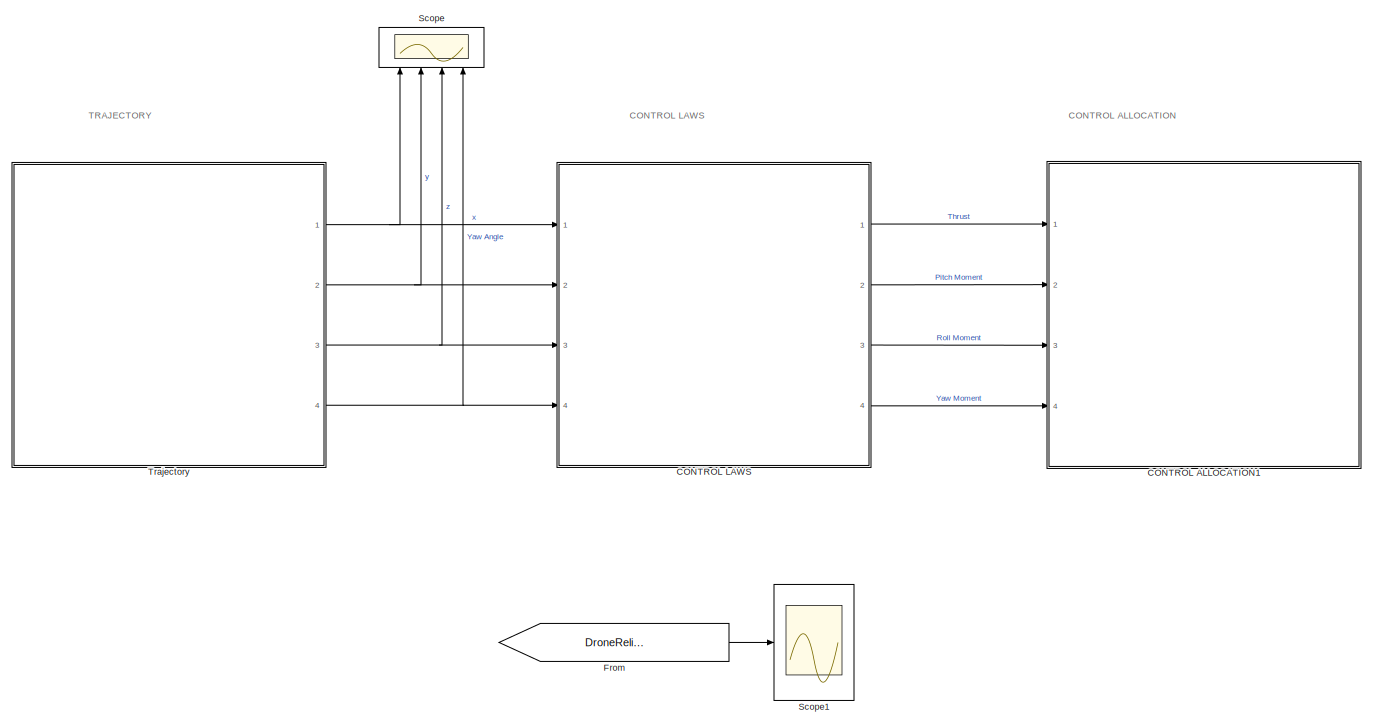
[diagram: root canvas - part 1/2, most of the canvas]
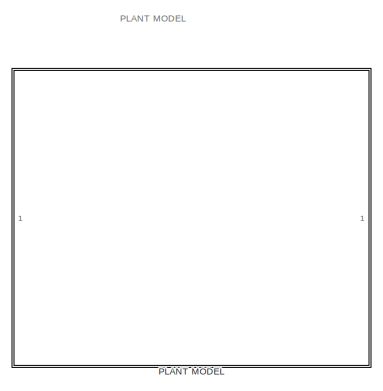
[diagram: root canvas - part 2/2, middle right region]
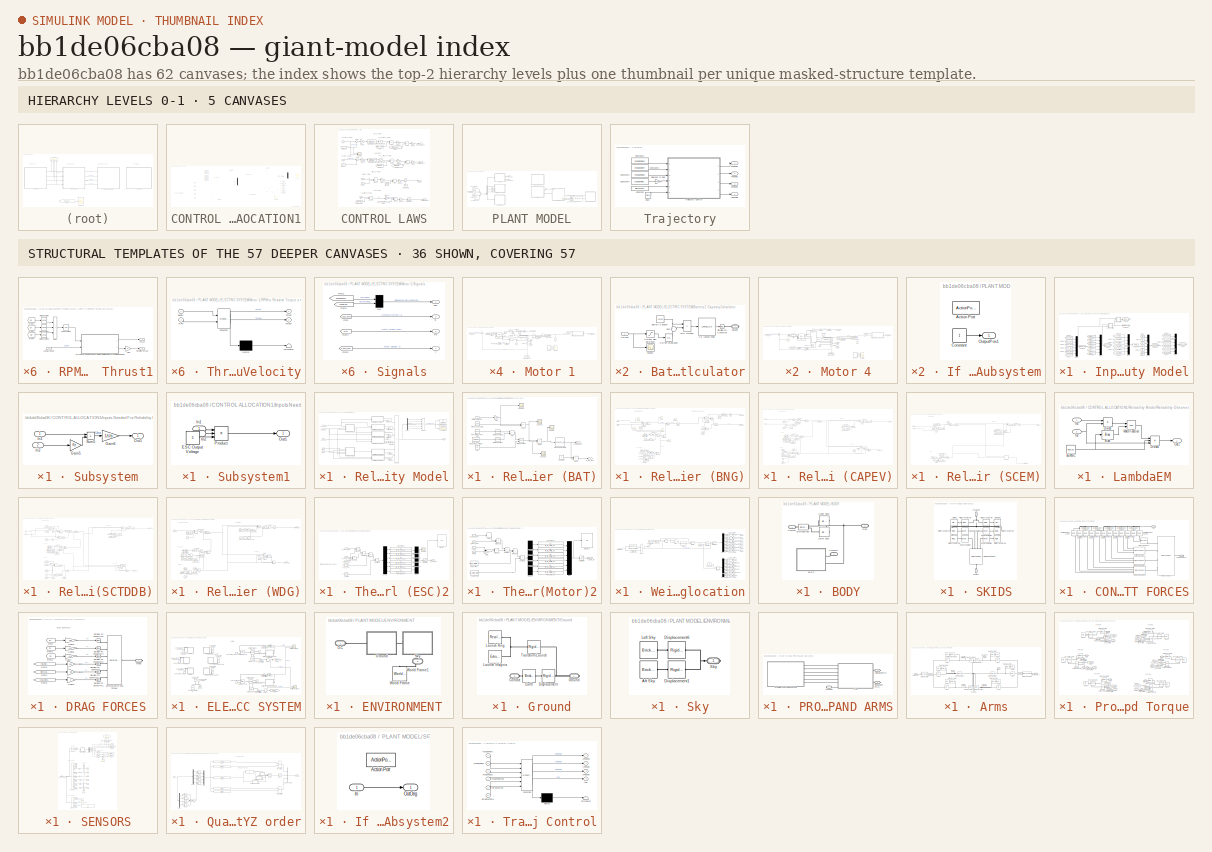
[diagram: thumbnail index - top-2 hierarchy levels (5 canvases) + 36 structural-template representatives of the remaining 57 canvases]
MODEL slx_bb1de06cba08
KIND model
CONFIG AbsTol = auto
CONFIG EnableMultiTasking = off
CONFIG FixedStep = 1e-3
CONFIG MaxStep = auto
CONFIG MinStep = auto
CONFIG RelTol = auto
CONFIG SampleTimeConstraint = Unconstrained
CONFIG Solver = ode1
CONFIG SolverName = ode1
CONFIG StartTime = 0.0
CONFIG StopTime = 30
BLOCK [SubSystem] CONTROL ALLOCATION1
  Ports = [4]
  RequestExecContextInheritance = off
BLOCK [Constant] CONTROL ALLOCATION1/Constant
  Value = [1;1;1;1;1;1]
BLOCK [Demux] CONTROL ALLOCATION1/Demux
  Outputs = 6
  Ports = [1, 6]
BLOCK [From] CONTROL ALLOCATION1/From
  GotoTag = V_BATTERY
  TagVisibility = global
BLOCK [From] CONTROL ALLOCATION1/From2
  GotoTag = TORQUE
  TagVisibility = global
BLOCK [From] CONTROL ALLOCATION1/From3
  GotoTag = I_ESC_OUT
  TagVisibility = global
BLOCK [From] CONTROL ALLOCATION1/From4
  GotoTag = RPM
  TagVisibility = global
BLOCK [From] CONTROL ALLOCATION1/From5
  GotoTag = V_ESC_OUT
  TagVisibility = global
BLOCK [Goto] CONTROL ALLOCATION1/Goto1
  GotoTag = ReqSpeedMotor5
  TagVisibility = global
BLOCK [Goto] CONTROL ALLOCATION1/Goto12
  GotoTag = ReqSpeedMotor4
  TagVisibility = global
BLOCK [Goto] CONTROL ALLOCATION1/Goto2
  GotoTag = ReqSpeedMotor6
  TagVisibility = global
BLOCK [Goto] CONTROL ALLOCATION1/Goto3
  GotoTag = ReqSpeedMotor1
  TagVisibility = global
BLOCK [Goto] CONTROL ALLOCATION1/Goto4
  GotoTag = ReqSpeedMotor2
  TagVisibility = global
BLOCK [Goto] CONTROL ALLOCATION1/Goto5
  GotoTag = ReqSpeedMotor3
  TagVisibility = global
BLOCK [SubSystem] CONTROL ALLOCATION1/Inputs Needed For Reliability Model
  Ports = []
  RequestExecContextInheritance = off
BLOCK [From] CONTROL ALLOCATION1/Inputs Needed For Reliability Model/From10
  GotoTag = Trq5
  TagVisibility = global
BLOCK [From] CONTROL ALLOCATION1/Inputs Needed For Reliability Model/From11
  GotoTag = Trq6
  TagVisibility = global
BLOCK [From] CONTROL ALLOCATION1/Inputs Needed For Reliability Model/From12
  GotoTag = AngularSpeed5
  TagVisibility = global
BLOCK [From] CONTROL ALLOCATION1/Inputs Needed For Reliability Model/From13
  GotoTag = AngularSpeed6
  TagVisibility = global
BLOCK [From] CONTROL ALLOCATION1/Inputs Needed For Reliability Model/From14
  GotoTag = AngularSpeed1
  TagVisibility = global
BLOCK [From] CONTROL ALLOCATION1/Inputs Needed For Reliability Model/From15
  GotoTag = AngularSpeed2
  TagVisibility = global
BLOCK [From] CONTROL ALLOCATION1/Inputs Needed For Reliability Model/From16
  GotoTag = AngularSpeed3
  TagVisibility = global
BLOCK [From] CONTROL ALLOCATION1/Inputs Needed For Reliability Model/From17
  GotoTag = AngularSpeed4
  TagVisibility = global
BLOCK [From] CONTROL ALLOCATION1/Inputs Needed For Reliability Model/From18
  GotoTag = BatteryVoltage1
  TagVisibility = global
BLOCK [From] CONTROL ALLOCATION1/Inputs Needed For Reliability Model/From19
  GotoTag = BatteryVoltage2
  TagVisibility = global
BLOCK [From] CONTROL ALLOCATION1/Inputs Needed For Reliability Model/From20
  GotoTag = BatteryVoltage1
  TagVisibility = global
BLOCK [From] CONTROL ALLOCATION1/Inputs Needed For Reliability Model/From21
  GotoTag = BatteryVoltage2
  TagVisibility = global
BLOCK [From] CONTROL ALLOCATION1/Inputs Needed For Reliability Model/From22
  GotoTag = BatteryVoltage1
  TagVisibility = global
BLOCK [From] CONTROL ALLOCATION1/Inputs Needed For Reliability Model/From23
  GotoTag = BatteryVoltage2
  TagVisibility = global
BLOCK [From] CONTROL ALLOCATION1/Inputs Needed For Reliability Model/From26
  GotoTag = I_ESC_OUT5
  TagVisibility = global
BLOCK [From] CONTROL ALLOCATION1/Inputs Needed For Reliability Model/From27
  GotoTag = I_ESC_OUT6
  TagVisibility = global
BLOCK [From] CONTROL ALLOCATION1/Inputs Needed For Reliability Model/From28
  GotoTag = I_ESC_OUT1
  TagVisibility = global
BLOCK [From] CONTROL ALLOCATION1/Inputs Needed For Reliability Model/From29
  GotoTag = I_ESC_OUT2
  TagVisibility = global
BLOCK [From] CONTROL ALLOCATION1/Inputs Needed For Reliability Model/From30
  GotoTag = I_ESC_OUT3
  TagVisibility = global
BLOCK [From] CONTROL ALLOCATION1/Inputs Needed For Reliability Model/From31
  GotoTag = I_ESC_OUT4
  TagVisibility = global
BLOCK [From] CONTROL ALLOCATION1/Inputs Needed For Reliability Model/From36
  GotoTag = V_ESC_OUT1
  TagVisibility = global
BLOCK [From] CONTROL ALLOCATION1/Inputs Needed For Reliability Model/From37
  GotoTag = V_ESC_OUT2
  TagVisibility = global
BLOCK [From] CONTROL ALLOCATION1/Inputs Needed For Reliability Model/From38
  GotoTag = V_ESC_OUT3
  TagVisibility = global
BLOCK [From] CONTROL ALLOCATION1/Inputs Needed For Reliability Model/From39
  GotoTag = V_ESC_OUT4
  TagVisibility = global
BLOCK [From] CONTROL ALLOCATION1/Inputs Needed For Reliability Model/From40
  GotoTag = V_ESC_OUT5
  TagVisibility = global
BLOCK [From] CONTROL ALLOCATION1/Inputs Needed For Reliability Model/From41
  GotoTag = V_ESC_OUT6
  TagVisibility = global
BLOCK [From] CONTROL ALLOCATION1/Inputs Needed For Reliability Model/From6
  GotoTag = Trq1
  TagVisibility = global
BLOCK [From] CONTROL ALLOCATION1/Inputs Needed For Reliability Model/From7
  GotoTag = Trq2
  TagVisibility = global
BLOCK [From] CONTROL ALLOCATION1/Inputs Needed For Reliability Model/From8
  GotoTag = Trq3
  TagVisibility = global
BLOCK [From] CONTROL ALLOCATION1/Inputs Needed For Reliability Model/From9
  GotoTag = Trq4
  TagVisibility = global
BLOCK [Goto] CONTROL ALLOCATION1/Inputs Needed For Reliability Model/Goto1
  GotoTag = V_ESC_OUT
  TagVisibility = global
BLOCK [Goto] CONTROL ALLOCATION1/Inputs Needed For Reliability Model/Goto13
  GotoTag = TORQUE
  TagVisibility = global
BLOCK [Goto] CONTROL ALLOCATION1/Inputs Needed For Reliability Model/Goto14
  GotoTag = RPM
  TagVisibility = global
BLOCK [Goto] CONTROL ALLOCATION1/Inputs Needed For Reliability Model/Goto15
  GotoTag = V_BATTERY
  TagVisibility = global
BLOCK [Goto] CONTROL ALLOCATION1/Inputs Needed For Reliability Model/Goto17
  GotoTag = I_ESC_OUT
  TagVisibility = global
BLOCK [Goto] CONTROL ALLOCATION1/Inputs Needed For Reliability Model/Goto18
  GotoTag = THROTTLE
  TagVisibility = global
BLOCK [Goto] CONTROL ALLOCATION1/Inputs Needed For Reliability Model/Goto19
  GotoTag = P_ESC_OUT
  TagVisibility = global
BLOCK [Mux] CONTROL ALLOCATION1/Inputs Needed For Reliability Model/Mux1
  DisplayOption = bar
  Inputs = 6
  Ports = [6, 1]
BLOCK [Mux] CONTROL ALLOCATION1/Inputs Needed For Reliability Model/Mux2
  DisplayOption = bar
  Inputs = 6
  Ports = [6, 1]
BLOCK [Mux] CONTROL ALLOCATION1/Inputs Needed For Reliability Model/Mux3
  DisplayOption = bar
  Inputs = 6
  Ports = [6, 1]
BLOCK [Mux] CONTROL ALLOCATION1/Inputs Needed For Reliability Model/Mux4
  DisplayOption = bar
  Inputs = 6
  Ports = [6, 1]
BLOCK [Mux] CONTROL ALLOCATION1/Inputs Needed For Reliability Model/Mux6
  DisplayOption = bar
  Inputs = 6
  Ports = [6, 1]
BLOCK [SubSystem] CONTROL ALLOCATION1/Inputs Needed For Reliability Model/Subsystem
  Ports = [2, 1]
  RequestExecContextInheritance = off
BLOCK [Gain] CONTROL ALLOCATION1/Inputs Needed For Reliability Model/Subsystem/Gain5
  Gain = Re
BLOCK [Gain] CONTROL ALLOCATION1/Inputs Needed For Reliability Model/Subsystem/Gain6
  Gain = 1/Ub
BLOCK [Inport] CONTROL ALLOCATION1/Inputs Needed For Reliability Model/Subsystem/In1
BLOCK [Inport] CONTROL ALLOCATION1/Inputs Needed For Reliability Model/Subsystem/In2
  Port = 2
BLOCK [Outport] CONTROL ALLOCATION1/Inputs Needed For Reliability Model/Subsystem/Out1
BLOCK [Sum] CONTROL ALLOCATION1/Inputs Needed For Reliability Model/Subsystem/Sum5
  IconShape = rectangular
  Ports = [2, 1]
BLOCK [SubSystem] CONTROL ALLOCATION1/Inputs Needed For Reliability Model/Subsystem1
  Ports = [2, 1]
  RequestExecContextInheritance = off
BLOCK [Constant] CONTROL ALLOCATION1/Inputs Needed For Reliability Model/Subsystem1/ESC Output Voltage
  Value = 5
BLOCK [Inport] CONTROL ALLOCATION1/Inputs Needed For Reliability Model/Subsystem1/In1
BLOCK [Inport] CONTROL ALLOCATION1/Inputs Needed For Reliability Model/Subsystem1/In2
  Port = 2
BLOCK [Outport] CONTROL ALLOCATION1/Inputs Needed For Reliability Model/Subsystem1/Out1
BLOCK [Product] CONTROL ALLOCATION1/Inputs Needed For Reliability Model/Subsystem1/Product
  Inputs = 3
  Ports = [3, 1]
BLOCK [Product] CONTROL ALLOCATION1/Matrix Multiply
  Multiplication = Matrix(*)
  Ports = [2, 1]
BLOCK [Inport] CONTROL ALLOCATION1/Mp
  Port = 2
BLOCK [Inport] CONTROL ALLOCATION1/Mq
  Port = 3
BLOCK [Inport] CONTROL ALLOCATION1/Mr
  Port = 4
BLOCK [Mux] CONTROL ALLOCATION1/Mux2
  DisplayOption = signals
  Ports = [4, 1]
BLOCK [Scope] CONTROL ALLOCATION1/PROP SPEED
  Floating = off
  NumInputPorts = 6
  Ports = [6]
  ScopeSpecificationString = Simulink.scopes.TimeScopeBlockCfg('CurrentConfiguration', extmgr.ConfigurationSet(extmgr.Configuration('Core','General UI',true),extmgr.Configuration('Core','Source UI',true),extmgr.Configuration('Sources','WiredSimulink',true,'DataLoggingVariableName','ScopeData1'),extmgr.Configuration('Visuals','Time Domain',true,'SerializedDisplays',{struct('MinYLimReal','4437.10579','MaxYLimReal','10618.10107'...<+1644ch>
BLOCK [Display] CONTROL ALLOCATION1/Raw Reliabilities 
  Decimation = 1
  NameLocation = top
  Ports = [1]
BLOCK [SubSystem] CONTROL ALLOCATION1/Reliability Model
  Ports = [5, 1]
  RequestExecContextInheritance = off
BLOCK [Constant] CONTROL ALLOCATION1/Reliability Model/Constant
  Value = [1,1,1,1,1,1]
BLOCK [Demux] CONTROL ALLOCATION1/Reliability Model/Demux
  Outputs = 6
  Ports = [1, 6]
BLOCK [Display] CONTROL ALLOCATION1/Reliability Model/Display
  Decimation = 1
  Ports = [1]
BLOCK [Goto] CONTROL ALLOCATION1/Reliability Model/Goto
  GotoTag = DroneReliability
  TagVisibility = global
BLOCK [Inport] CONTROL ALLOCATION1/Reliability Model/I_ESC_OUT
  Port = 3
BLOCK [Inport] CONTROL ALLOCATION1/Reliability Model/M (Nm)
  Port = 4
BLOCK [Inport] CONTROL ALLOCATION1/Reliability Model/N (RPM)
  Port = 5
BLOCK [Product] CONTROL ALLOCATION1/Reliability Model/Product1
  Inputs = 6
  Ports = [6, 1]
BLOCK [Product] CONTROL ALLOCATION1/Reliability Model/Product2
  Inputs = 6
  Ports = [6, 1]
BLOCK [SubSystem] CONTROL ALLOCATION1/Reliability Model/Reliability Observer (BAT)
  Ports = [1, 2]
  RequestExecContextInheritance = off
BLOCK [Lookup_n-D] CONTROL ALLOCATION1/Reliability Model/Reliability Observer (BAT)/1-D Lookup Table
  BreakpointsForDimension1 = [-4.99;-4.98;-4.97;-4.96;-4.95;-4.94;-4.93;-4.92;-4.91;-4.9;-4.89;-4.88;-4.87;-4.86;-4.85;-4.84;-4.83;-4.82;-4.81;-4.8;-4.79;-4.78;-4.77;-4.76;-4.75;-4.74;-4.73;-4.72;-4.71;-4.7;-4.69;-4.68;-4.67;-4.66;-4.65;-4.64;-4.63;-4.62;-4.61;-4.6;-4.59;-4.58;-4.57;-4.56;-4.55;-4.54;-4.53;-4.52;-4.51;-4.5;-4.49;-4.48;-4.47;-4.46;-4.45;-4.44;-4.43;-4.42;-4.41;-4.4;-4.39;-4.38;-4.37;-4.36;-4.35;-4.34;-4.33;-4....<+2540ch>
  InternalRulePriority = Speed
  NumberOfTableDimensions = 1
  Ports = [1, 1]
  RndMeth = Simplest
  Table = [3.019e-07;3.1792e-07;3.3476e-07;3.5247e-07;3.7107e-07;3.9061e-07;4.1115e-07;4.3272e-07;4.5538e-07;4.7918e-07;5.0418e-07;5.3043e-07;5.5799e-07;5.8693e-07;6.1731e-07;6.492e-07;6.8267e-07;7.1779e-07;7.5465e-07;7.9333e-07;8.3391e-07;8.7648e-07;9.2113e-07;9.6796e-07;1.0171e-06;1.0686e-06;1.1226e-06;1.1792e-06;1.2386e-06;1.3008e-06;1.366e-06;1.4344e-06;1.506e-06;1.581e-06;1.6597e-06;1.742e-06;1.8283e-0...<+5037ch>
BLOCK [Sum] CONTROL ALLOCATION1/Reliability Model/Reliability Observer (BAT)/Add
  IconShape = rectangular
  Ports = [2, 1]
BLOCK [Sum] CONTROL ALLOCATION1/Reliability Model/Reliability Observer (BAT)/Add1
  IconShape = rectangular
  Inputs = +-
  Ports = [2, 1]
BLOCK [Sum] CONTROL ALLOCATION1/Reliability Model/Reliability Observer (BAT)/Add2
  IconShape = rectangular
  Inputs = +-
  Ports = [2, 1]
BLOCK [Inport] CONTROL ALLOCATION1/Reliability Model/Reliability Observer (BAT)/Battery Voltage (V)
BLOCK [Constant] CONTROL ALLOCATION1/Reliability Model/Reliability Observer (BAT)/Constant
BLOCK [Product] CONTROL ALLOCATION1/Reliability Model/Reliability Observer (BAT)/Divide
  Inputs = */
  Ports = [2, 1]
BLOCK [Gain] CONTROL ALLOCATION1/Reliability Model/Reliability Observer (BAT)/Gain
  Gain = 1/4
BLOCK [Outport] CONTROL ALLOCATION1/Reliability Model/Reliability Observer (BAT)/LambdaBAT
  Port = 2
BLOCK [Math] CONTROL ALLOCATION1/Reliability Model/Reliability Observer (BAT)/Math Function
  Operator = pow
  Ports = [2, 1]
BLOCK [Math] CONTROL ALLOCATION1/Reliability Model/Reliability Observer (BAT)/Math Function1
  Operator = square
  Ports = [1, 1]
BLOCK [Math] CONTROL ALLOCATION1/Reliability Model/Reliability Observer (BAT)/Math Function2
  Operator = square
  Ports = [1, 1]
BLOCK [Constant] CONTROL ALLOCATION1/Reliability Model/Reliability Observer (BAT)/Mean_20%_SOC
  Value = 3.3488
BLOCK [Outport] CONTROL ALLOCATION1/Reliability Model/Reliability Observer (BAT)/R_RT_BAT
BLOCK [Constant] CONTROL ALLOCATION1/Reliability Model/Reliability Observer (BAT)/STD_Dev_20%_SOC
  Value = 0.0279
BLOCK [Constant] CONTROL ALLOCATION1/Reliability Model/Reliability Observer (BAT)/STD_Dev_Measured_Voltage
  Value = 0.0333
BLOCK [Scope] CONTROL ALLOCATION1/Reliability Model/Reliability Observer (BAT)/Scope
  Floating = off
  NumInputPorts = 1
  Ports = [1]
  ScopeSpecificationString = Simulink.scopes.TimeScopeBlockCfg('CurrentConfiguration', extmgr.ConfigurationSet(extmgr.Configuration('Core','General UI',true),extmgr.Configuration('Core','Source UI',true),extmgr.Configuration('Sources','WiredSimulink',true,'DataLoggingVariableName','ScopeData16'),extmgr.Configuration('Visuals','Time Domain',true,'SerializedDisplays',{struct('MinYLimReal','-21.00701','MaxYLimReal','-6.87151','Y...<+1462ch>
BLOCK [Scope] CONTROL ALLOCATION1/Reliability Model/Reliability Observer (BAT)/Scope1
  Floating = off
  NumInputPorts = 1
  Ports = [1]
  ScopeSpecificationString = Simulink.scopes.TimeScopeBlockCfg('CurrentConfiguration', extmgr.ConfigurationSet(extmgr.Configuration('Core','General UI',true),extmgr.Configuration('Core','Source UI',true),extmgr.Configuration('Sources','WiredSimulink',true,'DataLoggingVariableName','ScopeData17'),extmgr.Configuration('Visuals','Time Domain',true,'SerializedDisplays',{struct('MinYLimReal','-0.91261','MaxYLimReal','-0.29852','YL...<+1469ch>
BLOCK [Scope] CONTROL ALLOCATION1/Reliability Model/Reliability Observer (BAT)/Scope2
  Floating = off
  NumInputPorts = 1
  Ports = [1]
  ScopeSpecificationString = Simulink.scopes.TimeScopeBlockCfg('CurrentConfiguration', extmgr.ConfigurationSet(extmgr.Configuration('Core','General UI',true),extmgr.Configuration('Core','Source UI',true),extmgr.Configuration('Sources','WiredSimulink',true,'DataLoggingVariableName','ScopeData18'),extmgr.Configuration('Visuals','Time Domain',true,'SerializedDisplays',{struct('MinYLimReal','0.03344','MaxYLimReal','0.05344','YLab...<+1464ch>
BLOCK [Scope] CONTROL ALLOCATION1/Reliability Model/Reliability Observer (BAT)/Scope3
  Floating = off
  NumInputPorts = 1
  Ports = [1]
  ScopeSpecificationString = Simulink.scopes.TimeScopeBlockCfg('CurrentConfiguration', extmgr.ConfigurationSet(extmgr.Configuration('Core','General UI',true),extmgr.Configuration('Core','Source UI',true),extmgr.Configuration('Sources','WiredSimulink',true,'DataLoggingVariableName','ScopeData19'),extmgr.Configuration('Visuals','Time Domain',true,'SerializedDisplays',{struct('MinYLimReal','3.64732','MaxYLimReal','4.26141','YLab...<+1434ch>
BLOCK [Constant] CONTROL ALLOCATION1/Reliability Model/Reliability Observer (BAT)/sqrt
  Value = 0.5
BLOCK [SubSystem] CONTROL ALLOCATION1/Reliability Model/Reliability Observer (BNG)
  Ports = [2, 2]
  RequestExecContextInheritance = off
BLOCK [Math] CONTROL ALLOCATION1/Reliability Model/Reliability Observer (BNG)/ 
  Operator = log
  Ports = [1, 1]
BLOCK [Constant] CONTROL ALLOCATION1/Reliability Model/Reliability Observer (BNG)/Constant1
  Value = bBNG
BLOCK [Constant] CONTROL ALLOCATION1/Reliability Model/Reliability Observer (BNG)/Constant10
  Value = bBNG-1
BLOCK [Constant] CONTROL ALLOCATION1/Reliability Model/Reliability Observer (BNG)/Constant11
  Value = bBNG
BLOCK [Constant] CONTROL ALLOCATION1/Reliability Model/Reliability Observer (BNG)/Constant2
  Value = pconst
BLOCK [Constant] CONTROL ALLOCATION1/Reliability Model/Reliability Observer (BNG)/Constant4
  Value = 0.2426
BLOCK [Constant] CONTROL ALLOCATION1/Reliability Model/Reliability Observer (BNG)/Constant5
  Value = 1.243
BLOCK [Constant] CONTROL ALLOCATION1/Reliability Model/Reliability Observer (BNG)/Constant6
  Value = RrefBNG
BLOCK [Constant] CONTROL ALLOCATION1/Reliability Model/Reliability Observer (BNG)/Constant7
  Value = bBNG
BLOCK [Constant] CONTROL ALLOCATION1/Reliability Model/Reliability Observer (BNG)/Constant8
  Value = bBNG
BLOCK [Constant] CONTROL ALLOCATION1/Reliability Model/Reliability Observer (BNG)/Constant9
  Value = pconst
BLOCK [Math] CONTROL ALLOCATION1/Reliability Model/Reliability Observer (BNG)/Exp
  Ports = [1, 1]
BLOCK [Gain] CONTROL ALLOCATION1/Reliability Model/Reliability Observer (BNG)/Gain
  Gain = pi/180
BLOCK [Gain] CONTROL ALLOCATION1/Reliability Model/Reliability Observer (BNG)/Gain1
  Gain = -1
BLOCK [Gain] CONTROL ALLOCATION1/Reliability Model/Reliability Observer (BNG)/Gain2
  Gain = -1
BLOCK [Product] CONTROL ALLOCATION1/Reliability Model/Reliability Observer (BNG)/Initial Aging
  Ports = [2, 1]
BLOCK [Integrator] CONTROL ALLOCATION1/Reliability Model/Reliability Observer (BNG)/Integrator
  InitialCondition = [0;0;0;0;0;0]
  InitialConditionSource = external
  Ports = [2, 1]
BLOCK [Outport] CONTROL ALLOCATION1/Reliability Model/Reliability Observer (BNG)/LambdaBNG
  Port = 2
BLOCK [Inport] CONTROL ALLOCATION1/Reliability Model/Reliability Observer (BNG)/M (Nm)
BLOCK [Math] CONTROL ALLOCATION1/Reliability Model/Reliability Observer (BNG)/Math Function12
  Operator = reciprocal
  Ports = [1, 1]
BLOCK [Constant] CONTROL ALLOCATION1/Reliability Model/Reliability Observer (BNG)/Motors Reliability Initial Condition
  Value = [BNG_Motor1,BNG_Motor2,BNG_Motor3,BNG_Motor4,BNG_Motor5,BNG_Motor6]
BLOCK [Inport] CONTROL ALLOCATION1/Reliability Model/Reliability Observer (BNG)/N (RPM)
  Port = 2
BLOCK [Math] CONTROL ALLOCATION1/Reliability Model/Reliability Observer (BNG)/Power
  Operator = pow
  Ports = [2, 1]
BLOCK [Math] CONTROL ALLOCATION1/Reliability Model/Reliability Observer (BNG)/Power1
  Operator = pow
  Ports = [2, 1]
BLOCK [Math] CONTROL ALLOCATION1/Reliability Model/Reliability Observer (BNG)/Power2
  Operator = pow
  Ports = [2, 1]
BLOCK [Math] CONTROL ALLOCATION1/Reliability Model/Reliability Observer (BNG)/Power3
  Operator = pow
  Ports = [2, 1]
BLOCK [Math] CONTROL ALLOCATION1/Reliability Model/Reliability Observer (BNG)/Power4
  Operator = pow
  Ports = [2, 1]
BLOCK [Product] CONTROL ALLOCATION1/Reliability Model/Reliability Observer (BNG)/Product1
  Ports = [2, 1]
BLOCK [Product] CONTROL ALLOCATION1/Reliability Model/Reliability Observer (BNG)/Product10
  Ports = [2, 1]
BLOCK [Product] CONTROL ALLOCATION1/Reliability Model/Reliability Observer (BNG)/Product2
  Inputs = /*
  Ports = [2, 1]
BLOCK [Product] CONTROL ALLOCATION1/Reliability Model/Reliability Observer (BNG)/Product3
  Inputs = /*
  Ports = [2, 1]
BLOCK [Product] CONTROL ALLOCATION1/Reliability Model/Reliability Observer (BNG)/Product4
  Inputs = */
  Ports = [2, 1]
BLOCK [Product] CONTROL ALLOCATION1/Reliability Model/Reliability Observer (BNG)/Product5
  Ports = [2, 1]
BLOCK [Math] CONTROL ALLOCATION1/Reliability Model/Reliability Observer (BNG)/R(V)2
  Operator = pow
  Ports = [2, 1]
BLOCK [Outport] CONTROL ALLOCATION1/Reliability Model/Reliability Observer (BNG)/R_RT_BNG
BLOCK [Product] CONTROL ALLOCATION1/Reliability Model/Reliability Observer (BNG)/Reciprocal
  Inputs = /
  Ports = [1, 1]
BLOCK [Saturate] CONTROL ALLOCATION1/Reliability Model/Reliability Observer (BNG)/Saturation8
  LowerLimit = 0
  UpperLimit = inf
BLOCK [Scope] CONTROL ALLOCATION1/Reliability Model/Reliability Observer (BNG)/Scope
  Floating = off
  NumInputPorts = 1
  Ports = [1]
  ScopeSpecificationString = Simulink.scopes.TimeScopeBlockCfg('CurrentConfiguration', extmgr.ConfigurationSet(extmgr.Configuration('Core','General UI',true),extmgr.Configuration('Core','Source UI',true),extmgr.Configuration('Sources','WiredSimulink',true,'DataLoggingVariableName','ScopeData10'),extmgr.Configuration('Visuals','Time Domain',true,'SerializedDisplays',{struct('MinYLimReal','-1.1665','MaxYLimReal','10.49847','YLa...<+1492ch>
BLOCK [Scope] CONTROL ALLOCATION1/Reliability Model/Reliability Observer (BNG)/Scope1
  Floating = off
  NumInputPorts = 1
  Ports = [1]
  ScopeSpecificationString = Simulink.scopes.TimeScopeBlockCfg('CurrentConfiguration', extmgr.ConfigurationSet(extmgr.Configuration('Core','General UI',true),extmgr.Configuration('Core','Source UI',true),extmgr.Configuration('Sources','WiredSimulink',true,'DataLoggingVariableName','ScopeData11'),extmgr.Configuration('Visuals','Time Domain',true),extmgr.Configuration('Tools','Plot Navigation',true),extmgr.Configuration('Tools'...<+41ch>
BLOCK [Scope] CONTROL ALLOCATION1/Reliability Model/Reliability Observer (BNG)/Scope2
  Floating = off
  NumInputPorts = 1
  Ports = [1]
  ScopeSpecificationString = Simulink.scopes.TimeScopeBlockCfg('CurrentConfiguration', extmgr.ConfigurationSet(extmgr.Configuration('Core','General UI',true),extmgr.Configuration('Core','Source UI',true),extmgr.Configuration('Sources','WiredSimulink',true,'DataLoggingVariableName','ScopeData12'),extmgr.Configuration('Visuals','Time Domain',true,'SerializedDisplays',{struct('MinYLimReal','-0.03581','MaxYLimReal','0.32233','YLa...<+1657ch>
BLOCK [Scope] CONTROL ALLOCATION1/Reliability Model/Reliability Observer (BNG)/Scope3
  Floating = off
  NumInputPorts = 1
  Ports = [1]
  ScopeSpecificationString = Simulink.scopes.TimeScopeBlockCfg('CurrentConfiguration', extmgr.ConfigurationSet(extmgr.Configuration('Core','General UI',true),extmgr.Configuration('Core','Source UI',true),extmgr.Configuration('Sources','WiredSimulink',true,'DataLoggingVariableName','ScopeData13'),extmgr.Configuration('Visuals','Time Domain',true,'SerializedDisplays',{struct('MinYLimReal','-2.11585','MaxYLimReal','19.04261','YL...<+1482ch>
BLOCK [Scope] CONTROL ALLOCATION1/Reliability Model/Reliability Observer (BNG)/Scope4
  Floating = off
  NumInputPorts = 1
  Ports = [1]
  ScopeSpecificationString = Simulink.scopes.TimeScopeBlockCfg('CurrentConfiguration', extmgr.ConfigurationSet(extmgr.Configuration('Core','General UI',true),extmgr.Configuration('Core','Source UI',true),extmgr.Configuration('Sources','WiredSimulink',true,'DataLoggingVariableName','ScopeData14'),extmgr.Configuration('Visuals','Time Domain',true,'SerializedDisplays',{struct('MinYLimReal','-1268.82621','MaxYLimReal','11419.4295...<+1509ch>
BLOCK [Scope] CONTROL ALLOCATION1/Reliability Model/Reliability Observer (BNG)/Scope5
  Floating = off
  NumInputPorts = 1
  Ports = [1]
  ScopeSpecificationString = Simulink.scopes.TimeScopeBlockCfg('CurrentConfiguration', extmgr.ConfigurationSet(extmgr.Configuration('Core','General UI',true),extmgr.Configuration('Core','Source UI',true),extmgr.Configuration('Sources','WiredSimulink',true,'DataLoggingVariableName','ScopeData15'),extmgr.Configuration('Visuals','Time Domain',true,'SerializedDisplays',{struct('MinYLimReal','-0.25826','MaxYLimReal','0.0287','YLab...<+1446ch>
BLOCK [UnaryMinus] CONTROL ALLOCATION1/Reliability Model/Reliability Observer (BNG)/Unary Minus4
BLOCK [Math] CONTROL ALLOCATION1/Reliability Model/Reliability Observer (BNG)/ln
  Operator = log
  Ports = [1, 1]
BLOCK [Constant] CONTROL ALLOCATION1/Reliability Model/Reliability Observer (BNG)/theta_Q
  Value = 25
BLOCK [SubSystem] CONTROL ALLOCATION1/Reliability Model/Reliability Observer (CAPEV)
  Ports = [2, 2]
  RequestExecContextInheritance = off
BLOCK [Math] CONTROL ALLOCATION1/Reliability Model/Reliability Observer (CAPEV)/ 
  Operator = log
  Ports = [1, 1]
BLOCK [Abs] CONTROL ALLOCATION1/Reliability Model/Reliability Observer (CAPEV)/Abs
  SaturateOnIntegerOverflow = off
BLOCK [Abs] CONTROL ALLOCATION1/Reliability Model/Reliability Observer (CAPEV)/Abs1
  SaturateOnIntegerOverflow = off
BLOCK [Product] CONTROL ALLOCATION1/Reliability Model/Reliability Observer (CAPEV)/Aging Velocity
  Ports = [2, 1]
BLOCK [Bias] CONTROL ALLOCATION1/Reliability Model/Reliability Observer (CAPEV)/Bias
  Bias = -1
  SaturateOnIntegerOverflow = off
BLOCK [Integrator] CONTROL ALLOCATION1/Reliability Model/Reliability Observer (CAPEV)/Cumulative Aging
  InitialConditionSource = external
  Ports = [2, 1]
BLOCK [Product] CONTROL ALLOCATION1/Reliability Model/Reliability Observer (CAPEV)/Divide
  Inputs = */
  Ports = [2, 1]
BLOCK [Product] CONTROL ALLOCATION1/Reliability Model/Reliability Observer (CAPEV)/Divide1
  Inputs = **/
  Ports = [3, 1]
BLOCK [Product] CONTROL ALLOCATION1/Reliability Model/Reliability Observer (CAPEV)/Divide2
  Inputs = /*/
  Ports = [3, 1]
BLOCK [Product] CONTROL ALLOCATION1/Reliability Model/Reliability Observer (CAPEV)/Divide3
  Inputs = */
  Ports = [2, 1]
BLOCK [Product] CONTROL ALLOCATION1/Reliability Model/Reliability Observer (CAPEV)/Divide4
  Inputs = */
  Ports = [2, 1]
BLOCK [Product] CONTROL ALLOCATION1/Reliability Model/Reliability Observer (CAPEV)/Divide5
  Inputs = *//
  Ports = [3, 1]
BLOCK [Product] CONTROL ALLOCATION1/Reliability Model/Reliability Observer (CAPEV)/Divide6
  Inputs = *//
  Ports = [3, 1]
BLOCK [Constant] CONTROL ALLOCATION1/Reliability Model/Reliability Observer (CAPEV)/EaEVCAP
  Value = EaEVCAP
BLOCK [Constant] CONTROL ALLOCATION1/Reliability Model/Reliability Observer (CAPEV)/EaEVCAP1
  Value = EaEVCAP
BLOCK [Product] CONTROL ALLOCATION1/Reliability Model/Reliability Observer (CAPEV)/Initial Aging
  Inputs = 3
  Ports = [3, 1]
BLOCK [Constant] CONTROL ALLOCATION1/Reliability Model/Reliability Observer (CAPEV)/K
  Value = k_b
BLOCK [Constant] CONTROL ALLOCATION1/Reliability Model/Reliability Observer (CAPEV)/K1
  Value = k_b
BLOCK [Outport] CONTROL ALLOCATION1/Reliability Model/Reliability Observer (CAPEV)/LambdaCAPEV
  Port = 2
BLOCK [Constant] CONTROL ALLOCATION1/Reliability Model/Reliability Observer (CAPEV)/LnomEVCAP
  Value = LnomEVCAP
BLOCK [Math] CONTROL ALLOCATION1/Reliability Model/Reliability Observer (CAPEV)/Math Function
  Operator = pow
  Ports = [2, 1]
BLOCK [Math] CONTROL ALLOCATION1/Reliability Model/Reliability Observer (CAPEV)/Math Function1
  Ports = [1, 1]
BLOCK [Math] CONTROL ALLOCATION1/Reliability Model/Reliability Observer (CAPEV)/Math Function10
  Operator = reciprocal
  Ports = [1, 1]
BLOCK [Math] CONTROL ALLOCATION1/Reliability Model/Reliability Observer (CAPEV)/Math Function11
  Operator = pow
  Ports = [2, 1]
BLOCK [Math] CONTROL ALLOCATION1/Reliability Model/Reliability Observer (CAPEV)/Math Function12
  Operator = reciprocal
  Ports = [1, 1]
BLOCK [Math] CONTROL ALLOCATION1/Reliability Model/Reliability Observer (CAPEV)/Math Function2
  Operator = pow
  Ports = [2, 1]
BLOCK [Math] CONTROL ALLOCATION1/Reliability Model/Reliability Observer (CAPEV)/Math Function3
  Ports = [1, 1]
BLOCK [Math] CONTROL ALLOCATION1/Reliability Model/Reliability Observer (CAPEV)/Math Function4
  Operator = log
  Ports = [1, 1]
BLOCK [Math] CONTROL ALLOCATION1/Reliability Model/Reliability Observer (CAPEV)/Math Function5
  Operator = reciprocal
  Ports = [1, 1]
BLOCK [Math] CONTROL ALLOCATION1/Reliability Model/Reliability Observer (CAPEV)/Math Function6
  Operator = pow
  Ports = [2, 1]
BLOCK [Math] CONTROL ALLOCATION1/Reliability Model/Reliability Observer (CAPEV)/Math Function7
  Operator = pow
  Ports = [2, 1]
BLOCK [Math] CONTROL ALLOCATION1/Reliability Model/Reliability Observer (CAPEV)/Math Function8
  Operator = pow
  Ports = [2, 1]
BLOCK [Math] CONTROL ALLOCATION1/Reliability Model/Reliability Observer (CAPEV)/Math Function9
  Operator = log
  Ports = [1, 1]
BLOCK [Constant] CONTROL ALLOCATION1/Reliability Model/Reliability Observer (CAPEV)/Motors Reliability Initial Condition
  Value = [CAPEV_Motor1,CAPEV_Motor2,CAPEV_Motor3,CAPEV_Motor4,CAPEV_Motor5,CAPEV_Motor6]
BLOCK [Math] CONTROL ALLOCATION1/Reliability Model/Reliability Observer (CAPEV)/R(V)
  Ports = [1, 1]
BLOCK [Math] CONTROL ALLOCATION1/Reliability Model/Reliability Observer (CAPEV)/R(V)2
  Operator = pow
  Ports = [2, 1]
BLOCK [Outport] CONTROL ALLOCATION1/Reliability Model/Reliability Observer (CAPEV)/R_RT_CAPEV
BLOCK [Constant] CONTROL ALLOCATION1/Reliability Model/Reliability Observer (CAPEV)/RrefEVCAP
  Value = RrefEVCAP
BLOCK [Constant] CONTROL ALLOCATION1/Reliability Model/Reliability Observer (CAPEV)/RrefEVCAP1
  Value = RrefEVCAP
BLOCK [Inport] CONTROL ALLOCATION1/Reliability Model/Reliability Observer (CAPEV)/T_IN
  Port = 2
BLOCK [Constant] CONTROL ALLOCATION1/Reliability Model/Reliability Observer (CAPEV)/TrefEVCAP
  Value = TrefEVCAP
BLOCK [UnaryMinus] CONTROL ALLOCATION1/Reliability Model/Reliability Observer (CAPEV)/Unary Minus
BLOCK [UnaryMinus] CONTROL ALLOCATION1/Reliability Model/Reliability Observer (CAPEV)/Unary Minus1
BLOCK [UnaryMinus] CONTROL ALLOCATION1/Reliability Model/Reliability Observer (CAPEV)/Unary Minus2
BLOCK [UnaryMinus] CONTROL ALLOCATION1/Reliability Model/Reliability Observer (CAPEV)/Unary Minus3
BLOCK [UnaryMinus] CONTROL ALLOCATION1/Reliability Model/Reliability Observer (CAPEV)/Unary Minus4
BLOCK [UnaryMinus] CONTROL ALLOCATION1/Reliability Model/Reliability Observer (CAPEV)/Unary Minus5
BLOCK [Inport] CONTROL ALLOCATION1/Reliability Model/Reliability Observer (CAPEV)/V_ESC_IN
BLOCK [Constant] CONTROL ALLOCATION1/Reliability Model/Reliability Observer (CAPEV)/VmaxEVCAP
  Value = VmaxEVCAP
BLOCK [Constant] CONTROL ALLOCATION1/Reliability Model/Reliability Observer (CAPEV)/VmaxEVCAP1
  Value = VmaxEVCAP
BLOCK [Constant] CONTROL ALLOCATION1/Reliability Model/Reliability Observer (CAPEV)/VnomEVCAP
  Value = VnomEVCAP
BLOCK [Product] CONTROL ALLOCATION1/Reliability Model/Reliability Observer (CAPEV)/Vref
  Inputs = 3
  Ports = [3, 1]
BLOCK [Constant] CONTROL ALLOCATION1/Reliability Model/Reliability Observer (CAPEV)/bEVCAP
  Value = bEVCAP
BLOCK [Constant] CONTROL ALLOCATION1/Reliability Model/Reliability Observer (CAPEV)/bEVCAP1
  Value = bEVCAP
BLOCK [Constant] CONTROL ALLOCATION1/Reliability Model/Reliability Observer (CAPEV)/bEVCAP2
  Value = bEVCAP
BLOCK [Constant] CONTROL ALLOCATION1/Reliability Model/Reliability Observer (CAPEV)/bEVCAP3
  Value = bEVCAP
BLOCK [Constant] CONTROL ALLOCATION1/Reliability Model/Reliability Observer (CAPEV)/nEVCAP
  Value = nEVCAP
BLOCK [Constant] CONTROL ALLOCATION1/Reliability Model/Reliability Observer (CAPEV)/nEVCAP1
  Value = nEVCAP
BLOCK [SubSystem] CONTROL ALLOCATION1/Reliability Model/Reliability Observer (SCEM)
  Commented = on
  Ports = [2, 2]
  RequestExecContextInheritance = off
BLOCK [Abs] CONTROL ALLOCATION1/Reliability Model/Reliability Observer (SCEM)/Abs
  SaturateOnIntegerOverflow = off
BLOCK [Constant] CONTROL ALLOCATION1/Reliability Model/Reliability Observer (SCEM)/AeEMSC
  Value = AeEMSC
BLOCK [Product] CONTROL ALLOCATION1/Reliability Model/Reliability Observer (SCEM)/Aging Velocity1
  Inputs = 3
  Ports = [3, 1]
BLOCK [Integrator] CONTROL ALLOCATION1/Reliability Model/Reliability Observer (SCEM)/Cumulative Aging
  Ports = [1, 1]
BLOCK [Product] CONTROL ALLOCATION1/Reliability Model/Reliability Observer (SCEM)/Divide2
  Inputs = *//
  Ports = [3, 1]
BLOCK [Product] CONTROL ALLOCATION1/Reliability Model/Reliability Observer (SCEM)/Divide3
  Inputs = /*/
  Ports = [3, 1]
BLOCK [Product] CONTROL ALLOCATION1/Reliability Model/Reliability Observer (SCEM)/Divide4
  Inputs = *//
  Ports = [3, 1]
BLOCK [Constant] CONTROL ALLOCATION1/Reliability Model/Reliability Observer (SCEM)/EaEMSC
  Value = EaEMSC
BLOCK [Constant] CONTROL ALLOCATION1/Reliability Model/Reliability Observer (SCEM)/EaEMSC1
  Value = EaEMSC
BLOCK [Inport] CONTROL ALLOCATION1/Reliability Model/Reliability Observer (SCEM)/I_ESC_OUT
BLOCK [Constant] CONTROL ALLOCATION1/Reliability Model/Reliability Observer (SCEM)/JrefEMSC
  Value = JrefEMSC
BLOCK [Constant] CONTROL ALLOCATION1/Reliability Model/Reliability Observer (SCEM)/K
  Value = k_b
BLOCK [Constant] CONTROL ALLOCATION1/Reliability Model/Reliability Observer (SCEM)/K1
  Value = k_b
BLOCK [SubSystem] CONTROL ALLOCATION1/Reliability Model/Reliability Observer (SCEM)/LambdaEM
  Ports = [2, 1]
  RequestExecContextInheritance = off
BLOCK [Bias] CONTROL ALLOCATION1/Reliability Model/Reliability Observer (SCEM)/LambdaEM/Bias
  Bias = -1
  SaturateOnIntegerOverflow = off
BLOCK [Product] CONTROL ALLOCATION1/Reliability Model/Reliability Observer (SCEM)/LambdaEM/Divide
  Inputs = */
  Ports = [2, 1]
BLOCK [Product] CONTROL ALLOCATION1/Reliability Model/Reliability Observer (SCEM)/LambdaEM/Divide1
  Inputs = **/
  Ports = [3, 1]
BLOCK [Inport] CONTROL ALLOCATION1/Reliability Model/Reliability Observer (SCEM)/LambdaEM/In1
BLOCK [Inport] CONTROL ALLOCATION1/Reliability Model/Reliability Observer (SCEM)/LambdaEM/In2
  Port = 2
BLOCK [Math] CONTROL ALLOCATION1/Reliability Model/Reliability Observer (SCEM)/LambdaEM/Math Function
  Operator = pow
  Ports = [2, 1]
BLOCK [Outport] CONTROL ALLOCATION1/Reliability Model/Reliability Observer (SCEM)/LambdaEM/Out1
BLOCK [Constant] CONTROL ALLOCATION1/Reliability Model/Reliability Observer (SCEM)/LambdaEM/bEMSC
  Value = bEMSC
BLOCK [Outport] CONTROL ALLOCATION1/Reliability Model/Reliability Observer (SCEM)/LambdaSCEM
  Port = 2
BLOCK [Constant] CONTROL ALLOCATION1/Reliability Model/Reliability Observer (SCEM)/LnomEMSC
  Value = LnomEMSC
BLOCK [Math] CONTROL ALLOCATION1/Reliability Model/Reliability Observer (SCEM)/Math Function1
  Operator = reciprocal
  Ports = [1, 1]
BLOCK [Math] CONTROL ALLOCATION1/Reliability Model/Reliability Observer (SCEM)/Math Function2
  Operator = pow
  Ports = [2, 1]
BLOCK [Math] CONTROL ALLOCATION1/Reliability Model/Reliability Observer (SCEM)/Math Function3
  Operator = pow
  Ports = [2, 1]
BLOCK [Math] CONTROL ALLOCATION1/Reliability Model/Reliability Observer (SCEM)/Math Function4
  Operator = log
  Ports = [1, 1]
BLOCK [Math] CONTROL ALLOCATION1/Reliability Model/Reliability Observer (SCEM)/Math Function5
  Operator = pow
  Ports = [2, 1]
BLOCK [Math] CONTROL ALLOCATION1/Reliability Model/Reliability Observer (SCEM)/Math Function6
  Ports = [1, 1]
BLOCK [Math] CONTROL ALLOCATION1/Reliability Model/Reliability Observer (SCEM)/Math Function7
  Operator = pow
  Ports = [2, 1]
BLOCK [Math] CONTROL ALLOCATION1/Reliability Model/Reliability Observer (SCEM)/Math Function8
  Ports = [1, 1]
BLOCK [Constant] CONTROL ALLOCATION1/Reliability Model/Reliability Observer (SCEM)/NEMSC
  Value = NEMSC
BLOCK [Constant] CONTROL ALLOCATION1/Reliability Model/Reliability Observer (SCEM)/NEMSC1
  Value = NEMSC
BLOCK [Math] CONTROL ALLOCATION1/Reliability Model/Reliability Observer (SCEM)/R(V)
  Ports = [1, 1]
BLOCK [Outport] CONTROL ALLOCATION1/Reliability Model/Reliability Observer (SCEM)/R_RT_SCEM
BLOCK [Constant] CONTROL ALLOCATION1/Reliability Model/Reliability Observer (SCEM)/RrefEMSC
  Value = RrefEMSC
BLOCK [Inport] CONTROL ALLOCATION1/Reliability Model/Reliability Observer (SCEM)/T_IN
  Port = 2
BLOCK [Constant] CONTROL ALLOCATION1/Reliability Model/Reliability Observer (SCEM)/TrefEMSC
  Value = TrefEMSC
BLOCK [UnaryMinus] CONTROL ALLOCATION1/Reliability Model/Reliability Observer (SCEM)/Unary Minus
BLOCK [UnaryMinus] CONTROL ALLOCATION1/Reliability Model/Reliability Observer (SCEM)/Unary Minus1
BLOCK [UnaryMinus] CONTROL ALLOCATION1/Reliability Model/Reliability Observer (SCEM)/Unary Minus2
BLOCK [UnaryMinus] CONTROL ALLOCATION1/Reliability Model/Reliability Observer (SCEM)/Unary Minus3
BLOCK [Product] CONTROL ALLOCATION1/Reliability Model/Reliability Observer (SCEM)/Veref
  Inputs = 3
  Ports = [3, 1]
BLOCK [Constant] CONTROL ALLOCATION1/Reliability Model/Reliability Observer (SCEM)/bEMSC1
  Value = bEMSC
BLOCK [SubSystem] CONTROL ALLOCATION1/Reliability Model/Reliability Observer (SCTDDB)
  Ports = [2, 2]
  RequestExecContextInheritance = off
BLOCK [Math] CONTROL ALLOCATION1/Reliability Model/Reliability Observer (SCTDDB)/ 
  Operator = log
  Ports = [1, 1]
BLOCK [Abs] CONTROL ALLOCATION1/Reliability Model/Reliability Observer (SCTDDB)/Abs
  SaturateOnIntegerOverflow = off
BLOCK [Abs] CONTROL ALLOCATION1/Reliability Model/Reliability Observer (SCTDDB)/Abs1
  SaturateOnIntegerOverflow = off
BLOCK [Product] CONTROL ALLOCATION1/Reliability Model/Reliability Observer (SCTDDB)/Aging Velocity1
  Ports = [2, 1]
BLOCK [Bias] CONTROL ALLOCATION1/Reliability Model/Reliability Observer (SCTDDB)/Bias
  Bias = -1
  SaturateOnIntegerOverflow = off
BLOCK [Integrator] CONTROL ALLOCATION1/Reliability Model/Reliability Observer (SCTDDB)/Cumulative Aging1
  InitialConditionSource = external
  Ports = [2, 1]
BLOCK [Product] CONTROL ALLOCATION1/Reliability Model/Reliability Observer (SCTDDB)/Divide
  Inputs = */
  Ports = [2, 1]
BLOCK [Product] CONTROL ALLOCATION1/Reliability Model/Reliability Observer (SCTDDB)/Divide1
  Inputs = */
  Ports = [2, 1]
BLOCK [Product] CONTROL ALLOCATION1/Reliability Model/Reliability Observer (SCTDDB)/Divide2
  Inputs = /*/
  Ports = [3, 1]
BLOCK [Product] CONTROL ALLOCATION1/Reliability Model/Reliability Observer (SCTDDB)/Divide3
  Inputs = **//
  Ports = [4, 1]
BLOCK [Product] CONTROL ALLOCATION1/Reliability Model/Reliability Observer (SCTDDB)/Divide4
  Inputs = /*/
  Ports = [3, 1]
BLOCK [Product] CONTROL ALLOCATION1/Reliability Model/Reliability Observer (SCTDDB)/Divide5
  Inputs = **//
  Ports = [4, 1]
BLOCK [Product] CONTROL ALLOCATION1/Reliability Model/Reliability Observer (SCTDDB)/Divide6
  Inputs = *//
  Ports = [3, 1]
BLOCK [Product] CONTROL ALLOCATION1/Reliability Model/Reliability Observer (SCTDDB)/Divide7
  Inputs = **/
  Ports = [3, 1]
BLOCK [Constant] CONTROL ALLOCATION1/Reliability Model/Reliability Observer (SCTDDB)/EaTDDBSC
  Value = EaTDDBSC
BLOCK [Constant] CONTROL ALLOCATION1/Reliability Model/Reliability Observer (SCTDDB)/EaTDDBSC1
  Value = EaTDDBSC
BLOCK [Constant] CONTROL ALLOCATION1/Reliability Model/Reliability Observer (SCTDDB)/EalphaTDDBSC
  Value = EalphaTDDBSC
BLOCK [Gain] CONTROL ALLOCATION1/Reliability Model/Reliability Observer (SCTDDB)/Gain
  Gain = -1
BLOCK [Gain] CONTROL ALLOCATION1/Reliability Model/Reliability Observer (SCTDDB)/Gain1
  Gain = -1
BLOCK [Product] CONTROL ALLOCATION1/Reliability Model/Reliability Observer (SCTDDB)/Initial Aging
  Inputs = 3
  Ports = [3, 1]
BLOCK [Constant] CONTROL ALLOCATION1/Reliability Model/Reliability Observer (SCTDDB)/K
  Value = k_b
  VectorParams1D = off
BLOCK [Constant] CONTROL ALLOCATION1/Reliability Model/Reliability Observer (SCTDDB)/K1
  Value = k_b
  VectorParams1D = off
BLOCK [Outport] CONTROL ALLOCATION1/Reliability Model/Reliability Observer (SCTDDB)/LambdaSCTDDB
  Port = 2
BLOCK [Constant] CONTROL ALLOCATION1/Reliability Model/Reliability Observer (SCTDDB)/LnomTDDBSC
  Value = LnomTDDBSC
BLOCK [Math] CONTROL ALLOCATION1/Reliability Model/Reliability Observer (SCTDDB)/Math Function
  Operator = pow
  Ports = [2, 1]
BLOCK [Math] CONTROL ALLOCATION1/Reliability Model/Reliability Observer (SCTDDB)/Math Function1
  Ports = [1, 1]
BLOCK [Math] CONTROL ALLOCATION1/Reliability Model/Reliability Observer (SCTDDB)/Math Function10
  Operator = reciprocal
  Ports = [1, 1]
BLOCK [Math] CONTROL ALLOCATION1/Reliability Model/Reliability Observer (SCTDDB)/Math Function11
  Operator = pow
  Ports = [2, 1]
BLOCK [Math] CONTROL ALLOCATION1/Reliability Model/Reliability Observer (SCTDDB)/Math Function12
  Operator = reciprocal
  Ports = [1, 1]
BLOCK [Math] CONTROL ALLOCATION1/Reliability Model/Reliability Observer (SCTDDB)/Math Function2
  Ports = [1, 1]
BLOCK [Math] CONTROL ALLOCATION1/Reliability Model/Reliability Observer (SCTDDB)/Math Function3
  Ports = [1, 1]
BLOCK [Math] CONTROL ALLOCATION1/Reliability Model/Reliability Observer (SCTDDB)/Math Function4
  Ports = [1, 1]
BLOCK [Math] CONTROL ALLOCATION1/Reliability Model/Reliability Observer (SCTDDB)/Math Function5
  Operator = reciprocal
  Ports = [1, 1]
BLOCK [Math] CONTROL ALLOCATION1/Reliability Model/Reliability Observer (SCTDDB)/Math Function6
  Operator = pow
  Ports = [2, 1]
BLOCK [Math] CONTROL ALLOCATION1/Reliability Model/Reliability Observer (SCTDDB)/Math Function7
  Operator = pow
  Ports = [2, 1]
BLOCK [Math] CONTROL ALLOCATION1/Reliability Model/Reliability Observer (SCTDDB)/Math Function8
  Operator = log
  Ports = [1, 1]
BLOCK [Math] CONTROL ALLOCATION1/Reliability Model/Reliability Observer (SCTDDB)/Math Function9
  Operator = log
  Ports = [1, 1]
BLOCK [Constant] CONTROL ALLOCATION1/Reliability Model/Reliability Observer (SCTDDB)/Motors Reliability Initial Condition
  Value = [SCTDDB_Motor1,SCTDDB_Motor2,SCTDDB_Motor3,SCTDDB_Motor4,SCTDDB_Motor5,SCTDDB_Motor6]
BLOCK [Math] CONTROL ALLOCATION1/Reliability Model/Reliability Observer (SCTDDB)/R(V)
  Ports = [1, 1]
BLOCK [Math] CONTROL ALLOCATION1/Reliability Model/Reliability Observer (SCTDDB)/R(V)2
  Operator = pow
  Ports = [2, 1]
BLOCK [Outport] CONTROL ALLOCATION1/Reliability Model/Reliability Observer (SCTDDB)/R_RT_SCTDDB
BLOCK [Constant] CONTROL ALLOCATION1/Reliability Model/Reliability Observer (SCTDDB)/RrefTDDBSC
  Value = RrefTDDBSC
BLOCK [Constant] CONTROL ALLOCATION1/Reliability Model/Reliability Observer (SCTDDB)/RrefTDDBSC1
  Value = RrefTDDBSC
BLOCK [Inport] CONTROL ALLOCATION1/Reliability Model/Reliability Observer (SCTDDB)/T_IN
BLOCK [Constant] CONTROL ALLOCATION1/Reliability Model/Reliability Observer (SCTDDB)/TrefTDDBSC1
  Value = TrefTDDBSC
BLOCK [UnaryMinus] CONTROL ALLOCATION1/Reliability Model/Reliability Observer (SCTDDB)/Unary Minus
BLOCK [UnaryMinus] CONTROL ALLOCATION1/Reliability Model/Reliability Observer (SCTDDB)/Unary Minus1
BLOCK [UnaryMinus] CONTROL ALLOCATION1/Reliability Model/Reliability Observer (SCTDDB)/Unary Minus2
BLOCK [UnaryMinus] CONTROL ALLOCATION1/Reliability Model/Reliability Observer (SCTDDB)/Unary Minus3
BLOCK [UnaryMinus] CONTROL ALLOCATION1/Reliability Model/Reliability Observer (SCTDDB)/Unary Minus4
BLOCK [UnaryMinus] CONTROL ALLOCATION1/Reliability Model/Reliability Observer (SCTDDB)/Unary Minus5
BLOCK [Inport] CONTROL ALLOCATION1/Reliability Model/Reliability Observer (SCTDDB)/V_ESC_OUT
  Port = 2
BLOCK [Product] CONTROL ALLOCATION1/Reliability Model/Reliability Observer (SCTDDB)/Vref
  Inputs = 3
  Ports = [3, 1]
BLOCK [Constant] CONTROL ALLOCATION1/Reliability Model/Reliability Observer (SCTDDB)/alpha1TDDBSC
  Value = alpha1TDDBSC
BLOCK [Constant] CONTROL ALLOCATION1/Reliability Model/Reliability Observer (SCTDDB)/alpha1TDDBSC1
  Value = alpha1TDDBSC
BLOCK [Constant] CONTROL ALLOCATION1/Reliability Model/Reliability Observer (SCTDDB)/bTDDBSC
  Value = bTDDBSC
BLOCK [Constant] CONTROL ALLOCATION1/Reliability Model/Reliability Observer (SCTDDB)/bTDDBSC1
  Value = bTDDBSC
BLOCK [Constant] CONTROL ALLOCATION1/Reliability Model/Reliability Observer (SCTDDB)/bTDDBSC2
  Value = bTDDBSC
BLOCK [Constant] CONTROL ALLOCATION1/Reliability Model/Reliability Observer (SCTDDB)/t_D_SCTDDB
  Value = t_D_SCTDDB
BLOCK [SubSystem] CONTROL ALLOCATION1/Reliability Model/Reliability Observer (WDG)
  Ports = [1, 2]
  RequestExecContextInheritance = off
BLOCK [Math] CONTROL ALLOCATION1/Reliability Model/Reliability Observer (WDG)/ 
  Operator = log
  Ports = [1, 1]
BLOCK [Abs] CONTROL ALLOCATION1/Reliability Model/Reliability Observer (WDG)/Abs
  SaturateOnIntegerOverflow = off
BLOCK [Abs] CONTROL ALLOCATION1/Reliability Model/Reliability Observer (WDG)/Abs1
  SaturateOnIntegerOverflow = off
BLOCK [Bias] CONTROL ALLOCATION1/Reliability Model/Reliability Observer (WDG)/Bias
  Bias = -1
  SaturateOnIntegerOverflow = off
BLOCK [Integrator] CONTROL ALLOCATION1/Reliability Model/Reliability Observer (WDG)/Cumulative Aging
  InitialConditionSource = external
  Ports = [2, 1]
BLOCK [Product] CONTROL ALLOCATION1/Reliability Model/Reliability Observer (WDG)/Divide
  Inputs = */
  Ports = [2, 1]
BLOCK [Product] CONTROL ALLOCATION1/Reliability Model/Reliability Observer (WDG)/Divide1
  Inputs = **/
  Ports = [3, 1]
BLOCK [Product] CONTROL ALLOCATION1/Reliability Model/Reliability Observer (WDG)/Divide2
  Inputs = /*/
  Ports = [3, 1]
BLOCK [Product] CONTROL ALLOCATION1/Reliability Model/Reliability Observer (WDG)/Divide3
  Inputs = *//
  Ports = [3, 1]
BLOCK [Product] CONTROL ALLOCATION1/Reliability Model/Reliability Observer (WDG)/Divide4
  Inputs = /*/
  Ports = [3, 1]
BLOCK [Constant] CONTROL ALLOCATION1/Reliability Model/Reliability Observer (WDG)/EaWDG
  Value = EaWDG
BLOCK [Constant] CONTROL ALLOCATION1/Reliability Model/Reliability Observer (WDG)/EaWDG1
  Value = EaWDG
BLOCK [Product] CONTROL ALLOCATION1/Reliability Model/Reliability Observer (WDG)/Initial Aging
  Inputs = 3
  Ports = [3, 1]
BLOCK [Constant] CONTROL ALLOCATION1/Reliability Model/Reliability Observer (WDG)/K
  Value = k_b
BLOCK [Constant] CONTROL ALLOCATION1/Reliability Model/Reliability Observer (WDG)/K1
  Value = k_b
BLOCK [Outport] CONTROL ALLOCATION1/Reliability Model/Reliability Observer (WDG)/LambdaWDG
  Port = 2
BLOCK [Constant] CONTROL ALLOCATION1/Reliability Model/Reliability Observer (WDG)/LnomWDG
  Value = LnomWDG
BLOCK [Math] CONTROL ALLOCATION1/Reliability Model/Reliability Observer (WDG)/Math Function
  Operator = pow
  Ports = [2, 1]
BLOCK [Math] CONTROL ALLOCATION1/Reliability Model/Reliability Observer (WDG)/Math Function1
  Ports = [1, 1]
BLOCK [Math] CONTROL ALLOCATION1/Reliability Model/Reliability Observer (WDG)/Math Function10
  Operator = reciprocal
  Ports = [1, 1]
BLOCK [Math] CONTROL ALLOCATION1/Reliability Model/Reliability Observer (WDG)/Math Function11
  Operator = pow
  Ports = [2, 1]
BLOCK [Math] CONTROL ALLOCATION1/Reliability Model/Reliability Observer (WDG)/Math Function12
  Operator = reciprocal
  Ports = [1, 1]
BLOCK [Math] CONTROL ALLOCATION1/Reliability Model/Reliability Observer (WDG)/Math Function2
  Operator = pow
  Ports = [2, 1]
BLOCK [Math] CONTROL ALLOCATION1/Reliability Model/Reliability Observer (WDG)/Math Function3
  Operator = pow
  Ports = [2, 1]
BLOCK [Math] CONTROL ALLOCATION1/Reliability Model/Reliability Observer (WDG)/Math Function4
  Operator = log
  Ports = [1, 1]
BLOCK [Math] CONTROL ALLOCATION1/Reliability Model/Reliability Observer (WDG)/Math Function5
  Operator = reciprocal
  Ports = [1, 1]
BLOCK [Math] CONTROL ALLOCATION1/Reliability Model/Reliability Observer (WDG)/Math Function6
  Ports = [1, 1]
BLOCK [Math] CONTROL ALLOCATION1/Reliability Model/Reliability Observer (WDG)/Math Function9
  Operator = log
  Ports = [1, 1]
BLOCK [Constant] CONTROL ALLOCATION1/Reliability Model/Reliability Observer (WDG)/Motors Reliability Initial Condition
  Value = [WDG_Motor1,WDG_Motor2,WDG_Motor3,WDG_Motor4,WDG_Motor5,WDG_Motor6]
BLOCK [Math] CONTROL ALLOCATION1/Reliability Model/Reliability Observer (WDG)/R(V)
  Ports = [1, 1]
BLOCK [Math] CONTROL ALLOCATION1/Reliability Model/Reliability Observer (WDG)/R(V)2
  Operator = pow
  Ports = [2, 1]
BLOCK [Outport] CONTROL ALLOCATION1/Reliability Model/Reliability Observer (WDG)/R_RT_WDG
BLOCK [Constant] CONTROL ALLOCATION1/Reliability Model/Reliability Observer (WDG)/RrefWDG
  Value = RrefWDG
BLOCK [Constant] CONTROL ALLOCATION1/Reliability Model/Reliability Observer (WDG)/RrefWDG1
  Value = RrefWDG
BLOCK [Inport] CONTROL ALLOCATION1/Reliability Model/Reliability Observer (WDG)/T_MOT_IN
BLOCK [Constant] CONTROL ALLOCATION1/Reliability Model/Reliability Observer (WDG)/TrefWDG
  Value = TrefWDG
BLOCK [UnaryMinus] CONTROL ALLOCATION1/Reliability Model/Reliability Observer (WDG)/Unary Minus
BLOCK [UnaryMinus] CONTROL ALLOCATION1/Reliability Model/Reliability Observer (WDG)/Unary Minus1
BLOCK [UnaryMinus] CONTROL ALLOCATION1/Reliability Model/Reliability Observer (WDG)/Unary Minus2
BLOCK [UnaryMinus] CONTROL ALLOCATION1/Reliability Model/Reliability Observer (WDG)/Unary Minus3
BLOCK [UnaryMinus] CONTROL ALLOCATION1/Reliability Model/Reliability Observer (WDG)/Unary Minus4
BLOCK [UnaryMinus] CONTROL ALLOCATION1/Reliability Model/Reliability Observer (WDG)/Unary Minus5
BLOCK [Product] CONTROL ALLOCATION1/Reliability Model/Reliability Observer (WDG)/Vref
  Ports = [2, 1]
BLOCK [Constant] CONTROL ALLOCATION1/Reliability Model/Reliability Observer (WDG)/bWDG
  Value = bWDG
BLOCK [Constant] CONTROL ALLOCATION1/Reliability Model/Reliability Observer (WDG)/bWDG1
  Value = bWDG
BLOCK [Constant] CONTROL ALLOCATION1/Reliability Model/Reliability Observer (WDG)/bWDG2
  Value = bWDG
BLOCK [Outport] CONTROL ALLOCATION1/Reliability Model/Ri
BLOCK [Scope] CONTROL ALLOCATION1/Reliability Model/Scope
  Floating = off
  NumInputPorts = 1
  Ports = [1]
  ScopeSpecificationString = Simulink.scopes.TimeScopeBlockCfg('CurrentConfiguration', extmgr.ConfigurationSet(extmgr.Configuration('Core','General UI',true),extmgr.Configuration('Core','Source UI',true),extmgr.Configuration('Sources','WiredSimulink',true,'DataLoggingVariableName','ScopeData1'),extmgr.Configuration('Visuals','Time Domain',true,'SerializedDisplays',{struct('MinYLimReal','-0.12493','MaxYLimReal','1.12515','YLab...<+1429ch>
BLOCK [Terminator] CONTROL ALLOCATION1/Reliability Model/Terminator1
BLOCK [Terminator] CONTROL ALLOCATION1/Reliability Model/Terminator12
BLOCK [Terminator] CONTROL ALLOCATION1/Reliability Model/Terminator13
BLOCK [Terminator] CONTROL ALLOCATION1/Reliability Model/Terminator14
BLOCK [Terminator] CONTROL ALLOCATION1/Reliability Model/Terminator15
BLOCK [Terminator] CONTROL ALLOCATION1/Reliability Model/Terminator17
BLOCK [Terminator] CONTROL ALLOCATION1/Reliability Model/Terminator2
BLOCK [SubSystem] CONTROL ALLOCATION1/Reliability Model/Thermal Model (ESC)2
  Ports = [3, 1]
  RequestExecContextInheritance = off
BLOCK [Demux] CONTROL ALLOCATION1/Reliability Model/Thermal Model (ESC)2/Demux
  Outputs = 6
  Ports = [1, 6]
BLOCK [Display] CONTROL ALLOCATION1/Reliability Model/Thermal Model (ESC)2/Display
  Decimation = 1
  Ports = [1]
BLOCK [Inport] CONTROL ALLOCATION1/Reliability Model/Thermal Model (ESC)2/I_ESC_OUT
  Port = 3
BLOCK [Mux] CONTROL ALLOCATION1/Reliability Model/Thermal Model (ESC)2/Mux
  DisplayOption = signals
  Inputs = 6
  Ports = [6, 1]
BLOCK [Product] CONTROL ALLOCATION1/Reliability Model/Thermal Model (ESC)2/Product
  Ports = [2, 1]
BLOCK [Product] CONTROL ALLOCATION1/Reliability Model/Thermal Model (ESC)2/Product1
  Ports = [2, 1]
BLOCK [Product] CONTROL ALLOCATION1/Reliability Model/Thermal Model (ESC)2/Product2
  Ports = [2, 1]
BLOCK [Constant] CONTROL ALLOCATION1/Reliability Model/Thermal Model (ESC)2/R_th_esc
  Value = [R_th_esc;R_th_esc;R_th_esc;R_th_esc;R_th_esc;R_th_esc]
BLOCK [Saturate] CONTROL ALLOCATION1/Reliability Model/Thermal Model (ESC)2/Saturation
  LowerLimit = T_amb
  UpperLimit = 400
BLOCK [Scope] CONTROL ALLOCATION1/Reliability Model/Thermal Model (ESC)2/Scope
  Floating = off
  NumInputPorts = 1
  Ports = [1]
  ScopeSpecificationString = Simulink.scopes.TimeScopeBlockCfg('CurrentConfiguration', extmgr.ConfigurationSet(extmgr.Configuration('Core','General UI',true),extmgr.Configuration('Core','Source UI',true),extmgr.Configuration('Sources','WiredSimulink',true,'DataLoggingVariableName','ScopeData3'),extmgr.Configuration('Visuals','Time Domain',true,'SerializedDisplays',{struct('MinYLimReal','-36.66402','MaxYLimReal','329.97621','Y...<+1486ch>
BLOCK [Sum] CONTROL ALLOCATION1/Reliability Model/Thermal Model (ESC)2/Subtract
  IconShape = rectangular
  Inputs = +-
  Ports = [2, 1]
BLOCK [Sum] CONTROL ALLOCATION1/Reliability Model/Thermal Model (ESC)2/Subtract1
  IconShape = rectangular
  Ports = [2, 1]
BLOCK [Outport] CONTROL ALLOCATION1/Reliability Model/Thermal Model (ESC)2/T_ESC_IN
BLOCK [Constant] CONTROL ALLOCATION1/Reliability Model/Thermal Model (ESC)2/T_amb
  Value = [T_amb;T_amb;T_amb;T_amb;T_amb;T_amb]
BLOCK [TransferFcn] CONTROL ALLOCATION1/Reliability Model/Thermal Model (ESC)2/Transfer Fcn
  Denominator = [R_th_esc*C_th_esc 1]
BLOCK [TransferFcn] CONTROL ALLOCATION1/Reliability Model/Thermal Model (ESC)2/Transfer Fcn1
  Denominator = [R_th_esc*C_th_esc 1]
BLOCK [TransferFcn] CONTROL ALLOCATION1/Reliability Model/Thermal Model (ESC)2/Transfer Fcn2
  Denominator = [R_th_esc*C_th_esc 1]
BLOCK [TransferFcn] CONTROL ALLOCATION1/Reliability Model/Thermal Model (ESC)2/Transfer Fcn3
  Denominator = [R_th_esc*C_th_esc 1]
BLOCK [TransferFcn] CONTROL ALLOCATION1/Reliability Model/Thermal Model (ESC)2/Transfer Fcn4
  Denominator = [R_th_esc*C_th_esc 1]
BLOCK [TransferFcn] CONTROL ALLOCATION1/Reliability Model/Thermal Model (ESC)2/Transfer Fcn5
  Denominator = [R_th_esc*C_th_esc 1]
BLOCK [Inport] CONTROL ALLOCATION1/Reliability Model/Thermal Model (ESC)2/V_ESC_OUT
  Port = 2
BLOCK [Inport] CONTROL ALLOCATION1/Reliability Model/Thermal Model (ESC)2/V_ESC_in (V)
  PortDimensions = 6
BLOCK [SubSystem] CONTROL ALLOCATION1/Reliability Model/Thermal Model (Motor)2
  Ports = [4, 1]
  RequestExecContextInheritance = off
BLOCK [Delay] CONTROL ALLOCATION1/Reliability Model/Thermal Model (Motor)2/Delay
  InputPortMap = u0
  Ports = [1, 1]
BLOCK [Demux] CONTROL ALLOCATION1/Reliability Model/Thermal Model (Motor)2/Demux
  Outputs = 6
  Ports = [1, 6]
BLOCK [Display] CONTROL ALLOCATION1/Reliability Model/Thermal Model (Motor)2/Display2
  Decimation = 1
  Ports = [1]
BLOCK [Gain] CONTROL ALLOCATION1/Reliability Model/Thermal Model (Motor)2/Gain
  Gain = pi/180
BLOCK [Inport] CONTROL ALLOCATION1/Reliability Model/Thermal Model (Motor)2/I_ESC_OUT
  Port = 4
  PortDimensions = 6
BLOCK [Mux] CONTROL ALLOCATION1/Reliability Model/Thermal Model (Motor)2/Mux
  DisplayOption = bar
  Inputs = 6
  Ports = [6, 1]
BLOCK [Product] CONTROL ALLOCATION1/Reliability Model/Thermal Model (Motor)2/Product
  Ports = [2, 1]
BLOCK [Product] CONTROL ALLOCATION1/Reliability Model/Thermal Model (Motor)2/Product1
  Ports = [2, 1]
BLOCK [Product] CONTROL ALLOCATION1/Reliability Model/Thermal Model (Motor)2/Product2
  Ports = [2, 1]
BLOCK [Inport] CONTROL ALLOCATION1/Reliability Model/Thermal Model (Motor)2/RPM
  Port = 2
  PortDimensions = 6
BLOCK [Constant] CONTROL ALLOCATION1/Reliability Model/Thermal Model (Motor)2/R_th_mot
  Value = [R_th_mot;R_th_mot;R_th_mot;R_th_mot;R_th_mot;R_th_mot]
BLOCK [Saturate] CONTROL ALLOCATION1/Reliability Model/Thermal Model (Motor)2/Saturation
  LowerLimit = T_amb_mot
  UpperLimit = 400
BLOCK [Sum] CONTROL ALLOCATION1/Reliability Model/Thermal Model (Motor)2/Subtract
  IconShape = rectangular
  Inputs = +-
  Ports = [2, 1]
BLOCK [Sum] CONTROL ALLOCATION1/Reliability Model/Thermal Model (Motor)2/Subtract1
  IconShape = rectangular
  Ports = [2, 1]
BLOCK [Outport] CONTROL ALLOCATION1/Reliability Model/Thermal Model (Motor)2/T_MOT_IN
  PortDimensions = 6
BLOCK [Constant] CONTROL ALLOCATION1/Reliability Model/Thermal Model (Motor)2/T_amb_mot
  Value = [T_amb_mot;T_amb_mot;T_amb_mot;T_amb_mot;T_amb_mot;T_amb_mot]
BLOCK [Inport] CONTROL ALLOCATION1/Reliability Model/Thermal Model (Motor)2/Torque
  PortDimensions = 6
BLOCK [TransferFcn] CONTROL ALLOCATION1/Reliability Model/Thermal Model (Motor)2/Transfer Fcn
  Denominator = [R_th_mot*C_mot 1]
BLOCK [TransferFcn] CONTROL ALLOCATION1/Reliability Model/Thermal Model (Motor)2/Transfer Fcn1
  Denominator = [R_th_mot*C_mot 1]
BLOCK [TransferFcn] CONTROL ALLOCATION1/Reliability Model/Thermal Model (Motor)2/Transfer Fcn2
  Denominator = [R_th_mot*C_mot 1]
BLOCK [TransferFcn] CONTROL ALLOCATION1/Reliability Model/Thermal Model (Motor)2/Transfer Fcn3
  Denominator = [R_th_mot*C_mot 1]
BLOCK [TransferFcn] CONTROL ALLOCATION1/Reliability Model/Thermal Model (Motor)2/Transfer Fcn4
  Denominator = [R_th_mot*C_mot 1]
BLOCK [TransferFcn] CONTROL ALLOCATION1/Reliability Model/Thermal Model (Motor)2/Transfer Fcn5
  Denominator = [R_th_mot*C_mot 1]
BLOCK [Inport] CONTROL ALLOCATION1/Reliability Model/Thermal Model (Motor)2/V_ESC_OUT
  Port = 3
  PortDimensions = 6
BLOCK [Inport] CONTROL ALLOCATION1/Reliability Model/V_BATTERY
BLOCK [Inport] CONTROL ALLOCATION1/Reliability Model/V_ESC_OUT
  Port = 2
BLOCK [Scope] CONTROL ALLOCATION1/Scope
  Floating = off
  NumInputPorts = 6
  Ports = [6]
  ScopeSpecificationString = Simulink.scopes.TimeScopeBlockCfg('CurrentConfiguration', extmgr.ConfigurationSet(extmgr.Configuration('Core','General UI',true),extmgr.Configuration('Core','Source UI',true),extmgr.Configuration('Sources','WiredSimulink',true,'DataLoggingVariableName','ScopeData2'),extmgr.Configuration('Visuals','Time Domain',true,'SerializedDisplays',{struct('MinYLimReal','0.89668','MaxYLimReal','1.01148','YLabe...<+1593ch>
BLOCK [Inport] CONTROL ALLOCATION1/T
BLOCK [ToWorkspace] CONTROL ALLOCATION1/To Workspace
  FixptAsFi = on
  MaxDataPoints = inf
  Ports = [1]
  SampleTime = -1
  SaveFormat = Timeseries
  VariableName = V_BATTERY
BLOCK [ToWorkspace] CONTROL ALLOCATION1/To Workspace1
  FixptAsFi = on
  MaxDataPoints = inf
  Ports = [1]
  SampleTime = -1
  SaveFormat = Timeseries
  VariableName = V_ESC_OUT
BLOCK [ToWorkspace] CONTROL ALLOCATION1/To Workspace2
  FixptAsFi = on
  MaxDataPoints = inf
  Ports = [1]
  SampleTime = -1
  SaveFormat = Timeseries
  VariableName = I_ESC_OUT
BLOCK [ToWorkspace] CONTROL ALLOCATION1/To Workspace3
  FixptAsFi = on
  MaxDataPoints = inf
  Ports = [1]
  SampleTime = -1
  SaveFormat = Timeseries
  VariableName = TORQUE
BLOCK [ToWorkspace] CONTROL ALLOCATION1/To Workspace4
  FixptAsFi = on
  MaxDataPoints = inf
  Ports = [1]
  SampleTime = -1
  SaveFormat = Timeseries
  VariableName = RPM
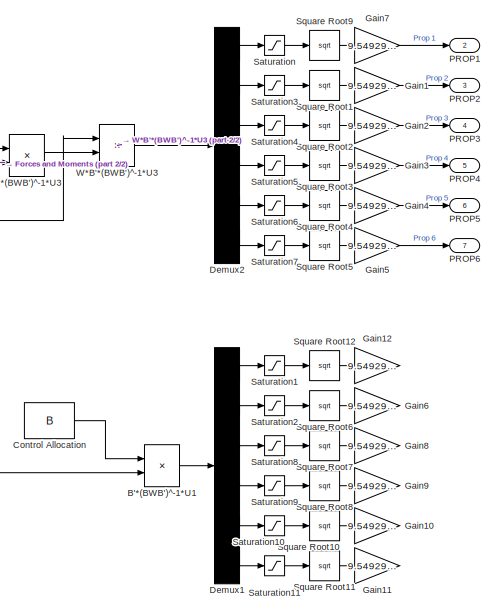
[diagram: CONTROL ALLOCATION1/Weighted Control Allocation - part 1/2, right side, full height]
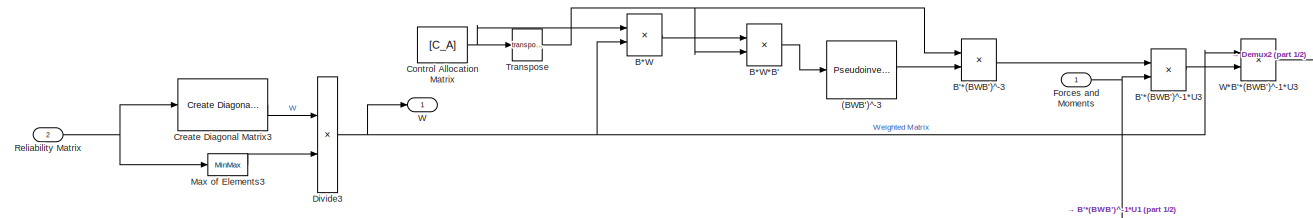
[diagram: CONTROL ALLOCATION1/Weighted Control Allocation - part 2/2, full width, middle band]
BLOCK [SubSystem] CONTROL ALLOCATION1/Weighted Control Allocation
  Ports = [2, 7]
  RequestExecContextInheritance = off
BLOCK [Reference] CONTROL ALLOCATION1/Weighted Control Allocation/(BWB')^-3  REF=dspinverses/Pseudoinverse
  Ports = [1, 1]
  SourceBlock = dspinverses/Pseudoinverse
  SourceProductBaseCode = DS
  SourceType = Pseudoinverse
BLOCK [Product] CONTROL ALLOCATION1/Weighted Control Allocation/B'*(BWB')^-1*U1
  Multiplication = Matrix(*)
  Ports = [2, 1]
BLOCK [Product] CONTROL ALLOCATION1/Weighted Control Allocation/B'*(BWB')^-1*U3
  Multiplication = Matrix(*)
  Ports = [2, 1]
BLOCK [Product] CONTROL ALLOCATION1/Weighted Control Allocation/B'*(BWB')^-3
  Multiplication = Matrix(*)
  Ports = [2, 1]
BLOCK [Product] CONTROL ALLOCATION1/Weighted Control Allocation/B*W
  Multiplication = Matrix(*)
  Ports = [2, 1]
BLOCK [Product] CONTROL ALLOCATION1/Weighted Control Allocation/B*W*B'
  Multiplication = Matrix(*)
  Ports = [2, 1]
BLOCK [Constant] CONTROL ALLOCATION1/Weighted Control Allocation/Control Allocation
  Value = B
BLOCK [Constant] CONTROL ALLOCATION1/Weighted Control Allocation/Control Allocation Matrix
  Value = [C_A]
BLOCK [Reference] CONTROL ALLOCATION1/Weighted Control Allocation/Create Diagonal Matrix3  REF=dspmtrx3/Create Diagonal
Matrix
  Ports = [1, 1]
  SourceBlock = dspmtrx3/Create Diagonal\nMatrix
  SourceProductBaseCode = DS
  SourceType = Create Diagonal Matrix
BLOCK [Demux] CONTROL ALLOCATION1/Weighted Control Allocation/Demux1
  Outputs = 6
  Ports = [1, 6]
BLOCK [Demux] CONTROL ALLOCATION1/Weighted Control Allocation/Demux2
  Outputs = 6
  Ports = [1, 6]
BLOCK [Product] CONTROL ALLOCATION1/Weighted Control Allocation/Divide3
  Inputs = */
  Ports = [2, 1]
BLOCK [Inport] CONTROL ALLOCATION1/Weighted Control Allocation/Forces and Moments
BLOCK [Gain] CONTROL ALLOCATION1/Weighted Control Allocation/Gain1
  Gain = 9.5492968
BLOCK [Gain] CONTROL ALLOCATION1/Weighted Control Allocation/Gain10
  Gain = 9.5492968
BLOCK [Gain] CONTROL ALLOCATION1/Weighted Control Allocation/Gain11
  Gain = 9.5492968
BLOCK [Gain] CONTROL ALLOCATION1/Weighted Control Allocation/Gain12
  Gain = 9.5492968
BLOCK [Gain] CONTROL ALLOCATION1/Weighted Control Allocation/Gain2
  Gain = 9.5492968
BLOCK [Gain] CONTROL ALLOCATION1/Weighted Control Allocation/Gain3
  Gain = 9.5492968
BLOCK [Gain] CONTROL ALLOCATION1/Weighted Control Allocation/Gain4
  Gain = 9.5492968
BLOCK [Gain] CONTROL ALLOCATION1/Weighted Control Allocation/Gain5
  Gain = 9.5492968
BLOCK [Gain] CONTROL ALLOCATION1/Weighted Control Allocation/Gain6
  Gain = 9.5492968
BLOCK [Gain] CONTROL ALLOCATION1/Weighted Control Allocation/Gain7
  Gain = 9.5492968
BLOCK [Gain] CONTROL ALLOCATION1/Weighted Control Allocation/Gain8
  Gain = 9.5492968
BLOCK [Gain] CONTROL ALLOCATION1/Weighted Control Allocation/Gain9
  Gain = 9.5492968
BLOCK [MinMax] CONTROL ALLOCATION1/Weighted Control Allocation/Max of Elements3
  Function = max
  Ports = [1, 1]
BLOCK [Outport] CONTROL ALLOCATION1/Weighted Control Allocation/PROP1
  Port = 2
BLOCK [Outport] CONTROL ALLOCATION1/Weighted Control Allocation/PROP2
  Port = 3
BLOCK [Outport] CONTROL ALLOCATION1/Weighted Control Allocation/PROP3
  Port = 4
BLOCK [Outport] CONTROL ALLOCATION1/Weighted Control Allocation/PROP4
  Port = 5
BLOCK [Outport] CONTROL ALLOCATION1/Weighted Control Allocation/PROP5
  Port = 6
BLOCK [Outport] CONTROL ALLOCATION1/Weighted Control Allocation/PROP6
  Port = 7
BLOCK [Inport] CONTROL ALLOCATION1/Weighted Control Allocation/Reliability Matrix
  Port = 2
BLOCK [Saturate] CONTROL ALLOCATION1/Weighted Control Allocation/Saturation
  LowerLimit = 0
  UpperLimit = 1096623
BLOCK [Saturate] CONTROL ALLOCATION1/Weighted Control Allocation/Saturation1
  LowerLimit = 0
  UpperLimit = 1096623
BLOCK [Saturate] CONTROL ALLOCATION1/Weighted Control Allocation/Saturation10
  LowerLimit = 0
  UpperLimit = 1096623
BLOCK [Saturate] CONTROL ALLOCATION1/Weighted Control Allocation/Saturation11
  LowerLimit = 0
  UpperLimit = 1096623
BLOCK [Saturate] CONTROL ALLOCATION1/Weighted Control Allocation/Saturation2
  LowerLimit = 0
  UpperLimit = 1096623
BLOCK [Saturate] CONTROL ALLOCATION1/Weighted Control Allocation/Saturation3
  LowerLimit = 0
  UpperLimit = 1096623
BLOCK [Saturate] CONTROL ALLOCATION1/Weighted Control Allocation/Saturation4
  LowerLimit = 0
  UpperLimit = 1096623
BLOCK [Saturate] CONTROL ALLOCATION1/Weighted Control Allocation/Saturation5
  LowerLimit = 0
  UpperLimit = 1096623
BLOCK [Saturate] CONTROL ALLOCATION1/Weighted Control Allocation/Saturation6
  LowerLimit = 0
  UpperLimit = 1096623
BLOCK [Saturate] CONTROL ALLOCATION1/Weighted Control Allocation/Saturation7
  LowerLimit = 0
  UpperLimit = 1096623
BLOCK [Saturate] CONTROL ALLOCATION1/Weighted Control Allocation/Saturation8
  LowerLimit = 0
  UpperLimit = 1096623
BLOCK [Saturate] CONTROL ALLOCATION1/Weighted Control Allocation/Saturation9
  LowerLimit = 0
  UpperLimit = 1096623
BLOCK [Sqrt] CONTROL ALLOCATION1/Weighted Control Allocation/Square Root1
BLOCK [Sqrt] CONTROL ALLOCATION1/Weighted Control Allocation/Square Root10
BLOCK [Sqrt] CONTROL ALLOCATION1/Weighted Control Allocation/Square Root11
BLOCK [Sqrt] CONTROL ALLOCATION1/Weighted Control Allocation/Square Root12
BLOCK [Sqrt] CONTROL ALLOCATION1/Weighted Control Allocation/Square Root2
BLOCK [Sqrt] CONTROL ALLOCATION1/Weighted Control Allocation/Square Root3
BLOCK [Sqrt] CONTROL ALLOCATION1/Weighted Control Allocation/Square Root4
BLOCK [Sqrt] CONTROL ALLOCATION1/Weighted Control Allocation/Square Root5
BLOCK [Sqrt] CONTROL ALLOCATION1/Weighted Control Allocation/Square Root6
BLOCK [Sqrt] CONTROL ALLOCATION1/Weighted Control Allocation/Square Root7
BLOCK [Sqrt] CONTROL ALLOCATION1/Weighted Control Allocation/Square Root8
BLOCK [Sqrt] CONTROL ALLOCATION1/Weighted Control Allocation/Square Root9
BLOCK [Math] CONTROL ALLOCATION1/Weighted Control Allocation/Transpose
  Operator = transpose
  Ports = [1, 1]
BLOCK [Outport] CONTROL ALLOCATION1/Weighted Control Allocation/W
BLOCK [Product] CONTROL ALLOCATION1/Weighted Control Allocation/W*B'*(BWB')^-1*U3
  Multiplication = Matrix(*)
  Ports = [2, 1]
BLOCK [Display] CONTROL ALLOCATION1/Weighted Matrix
  Decimation = 1
  NameLocation = top
  Ports = [1]
BLOCK [SubSystem] CONTROL LAWS
  Ports = [4, 4]
  RequestExecContextInheritance = off
BLOCK [Sum] CONTROL LAWS/Add10
  IconShape = rectangular
  Inputs = +-
  Ports = [2, 1]
BLOCK [Sum] CONTROL LAWS/Add11
  IconShape = rectangular
  Inputs = +-
  Ports = [2, 1]
BLOCK [Sum] CONTROL LAWS/Add12
  IconShape = rectangular
  Inputs = +-
  Ports = [2, 1]
BLOCK [Sum] CONTROL LAWS/Add2
  IconShape = rectangular
  Inputs = +-
  Ports = [2, 1]
BLOCK [Sum] CONTROL LAWS/Add3
  IconShape = rectangular
  Inputs = +-
  Ports = [2, 1]
BLOCK [Sum] CONTROL LAWS/Add4
  IconShape = rectangular
  Inputs = +-
  Ports = [2, 1]
BLOCK [Sum] CONTROL LAWS/Add8
  IconShape = rectangular
  Inputs = +-
  Ports = [2, 1]
BLOCK [Sum] CONTROL LAWS/Add9
  IconShape = rectangular
  Inputs = +-
  Ports = [2, 1]
BLOCK [Constant] CONTROL LAWS/Constant1
  NameLocation = right
  Value = m*g
BLOCK [From] CONTROL LAWS/From1
  GotoTag = yawAngleSpeed
  TagVisibility = global
BLOCK [From] CONTROL LAWS/From10
  GotoTag = Y
  TagVisibility = global
BLOCK [From] CONTROL LAWS/From11
  GotoTag = X
  TagVisibility = global
BLOCK [From] CONTROL LAWS/From12
  GotoTag = DZ
  TagVisibility = global
BLOCK [From] CONTROL LAWS/From2
  GotoTag = rollAngleSpeed
  TagVisibility = global
BLOCK [From] CONTROL LAWS/From4
  GotoTag = pitchAngleSpeed
  TagVisibility = global
BLOCK [From] CONTROL LAWS/From5
  GotoTag = Z
  TagVisibility = global
BLOCK [From] CONTROL LAWS/From6
  GotoTag = rollAngle
  TagVisibility = global
BLOCK [From] CONTROL LAWS/From8
  GotoTag = pitchAngle
  TagVisibility = global
BLOCK [Gain] CONTROL LAWS/Gain10
  Gain = Ky
BLOCK [Gain] CONTROL LAWS/Gain11
  Gain = Kz
BLOCK [Gain] CONTROL LAWS/Gain12
  Gain = Kz2
BLOCK [Gain] CONTROL LAWS/Gain13
  Gain = Kr
BLOCK [Gain] CONTROL LAWS/Gain14
  Gain = Kr2/5.5
BLOCK [Gain] CONTROL LAWS/Gain5
  Gain = Kp
BLOCK [Gain] CONTROL LAWS/Gain6
  Gain = Kp2
BLOCK [Gain] CONTROL LAWS/Gain7
  Gain = Kx
BLOCK [Gain] CONTROL LAWS/Gain8
  Gain = Kq
BLOCK [Gain] CONTROL LAWS/Gain9
  Gain = Kq2
BLOCK [Outport] CONTROL LAWS/Pitch Moment
  Port = 2
BLOCK [Saturate] CONTROL LAWS/Pitch angle sat2
  LowerLimit = -pitch_angle_limit
  UpperLimit = pitch_angle_limit
BLOCK [Outport] CONTROL LAWS/Roll Moment
  Port = 3
BLOCK [Saturate] CONTROL LAWS/Roll angle sat2
  LowerLimit = -roll_angle_limit
  UpperLimit = roll_angle_limit
BLOCK [Saturate] CONTROL LAWS/Saturation2
  LowerLimit = -max_yaw_moment
  UpperLimit = max_yaw_moment
BLOCK [Scope] CONTROL LAWS/Scope
  Floating = off
  NumInputPorts = 2
  Ports = [2]
  ScopeSpecificationString = Simulink.scopes.TimeScopeBlockCfg('CurrentConfiguration', extmgr.ConfigurationSet(extmgr.Configuration('Core','General UI',true),extmgr.Configuration('Core','Source UI',true),extmgr.Configuration('Sources','WiredSimulink',true,'DataLoggingVariableName','ScopeData1'),extmgr.Configuration('Visuals','Time Domain',true,'SerializedDisplays',{struct('MinYLimReal','-5.00000','MaxYLimReal','5.00000','YLab...<+1396ch>
BLOCK [Sum] CONTROL LAWS/Sum
  Inputs = |++
  Ports = [2, 1]
BLOCK [Sum] CONTROL LAWS/Sum3
  Inputs = |+-
  Ports = [2, 1]
BLOCK [Sum] CONTROL LAWS/Sum4
  Inputs = |+-
  Ports = [2, 1]
BLOCK [Outport] CONTROL LAWS/Thrust 
BLOCK [TransferFcn] CONTROL LAWS/Transfer Fcn3
  Denominator = [0.005 1]
  Numerator = [1 z_x]
BLOCK [TransferFcn] CONTROL LAWS/Transfer Fcn4
  Denominator = [0.005 1]
  Numerator = [1 z_y]
BLOCK [Inport] CONTROL LAWS/X
BLOCK [Inport] CONTROL LAWS/Y
  Port = 2
BLOCK [From] CONTROL LAWS/Yaw Angle  
  GotoTag = yawAngle
  TagVisibility = global
BLOCK [Outport] CONTROL LAWS/Yaw Moment
  Port = 4
BLOCK [Inport] CONTROL LAWS/Z
  Port = 3
BLOCK [Inport] CONTROL LAWS/ψd
  Port = 4
BLOCK [From] From
  GotoTag = DroneReliability
  TagVisibility = global
BLOCK [SubSystem] PLANT MODEL
  Ports = []
  RequestExecContextInheritance = off
BLOCK [SubSystem] PLANT MODEL/BODY
  Ports = [0, 0, 0, 0, 0, 2, 1]
  RequestExecContextInheritance = off
BLOCK [PMIOPort] PLANT MODEL/BODY/Contact
  Side = Left
BLOCK [PMIOPort] PLANT MODEL/BODY/Contact1
  NameLocation = top
  Port = 3
  Side = Left
BLOCK [Reference] PLANT MODEL/BODY/Lower Body  REF=sm_lib/Body Elements/File Solid
  Ports = [0, 0, 0, 0, 0, 1, 1]
  SourceBlock = sm_lib/Body Elements/File Solid
  SourceProductBaseCode = MS
  SourceType = File Solid
BLOCK [PMIOPort] PLANT MODEL/BODY/Plant
  Port = 2
  Side = Right
BLOCK [SubSystem] PLANT MODEL/BODY/SKIDS
  NameLocation = top
  Ports = [0, 0, 0, 0, 0, 2]
  RequestExecContextInheritance = off
BLOCK [PMIOPort] PLANT MODEL/BODY/SKIDS/Contact
  NameLocation = left
  Side = Left
BLOCK [PMIOPort] PLANT MODEL/BODY/SKIDS/Fuselage
  NameLocation = right
  Port = 2
  Side = Left
BLOCK [Reference] PLANT MODEL/BODY/SKIDS/Left Skid  REF=sm_lib/Body Elements/File Solid
  Ports = [0, 0, 0, 0, 0, 0, 1]
  SourceBlock = sm_lib/Body Elements/File Solid
  SourceProductBaseCode = MS
  SourceType = File Solid
BLOCK [SimscapeBus] PLANT MODEL/BODY/SKIDS/Right Contact Skids
  HierarchyStrings = LeftAftSkid;LeftFrontSkid;RightFrontSkid;RightAftSkid
  NameLocation = left
  Ports = [0, 0, 0, 0, 0, 4, 1]
BLOCK [Reference] PLANT MODEL/BODY/SKIDS/Right Skid  REF=sm_lib/Body Elements/File Solid
  Ports = [0, 0, 0, 0, 0, 0, 1]
  SourceBlock = sm_lib/Body Elements/File Solid
  SourceProductBaseCode = MS
  SourceType = File Solid
BLOCK [Reference] PLANT MODEL/BODY/SKIDS/Rigid Transform1  REF=sm_lib/Frames and
Transforms/Rigid
Transform
  Ports = [0, 0, 0, 0, 0, 1, 1]
  SourceBlock = sm_lib/Frames and\nTransforms/Rigid\nTransform
  SourceProductBaseCode = MS
  SourceType = Rigid\nTransform
BLOCK [Reference] PLANT MODEL/BODY/SKIDS/Rigid Transform2  REF=sm_lib/Frames and
Transforms/Rigid
Transform
  NameLocation = top
  Ports = [0, 0, 0, 0, 0, 1, 1]
  SourceBlock = sm_lib/Frames and\nTransforms/Rigid\nTransform
  SourceProductBaseCode = MS
  SourceType = Rigid\nTransform
BLOCK [Reference] PLANT MODEL/BODY/SKIDS/Rigid Transform3  REF=sm_lib/Frames and
Transforms/Rigid
Transform
  Ports = [0, 0, 0, 0, 0, 1, 1]
  SourceBlock = sm_lib/Frames and\nTransforms/Rigid\nTransform
  SourceProductBaseCode = MS
  SourceType = Rigid\nTransform
BLOCK [Reference] PLANT MODEL/BODY/SKIDS/Rigid Transform4  REF=sm_lib/Frames and
Transforms/Rigid
Transform
  NameLocation = top
  Ports = [0, 0, 0, 0, 0, 1, 1]
  SourceBlock = sm_lib/Frames and\nTransforms/Rigid\nTransform
  SourceProductBaseCode = MS
  SourceType = Rigid\nTransform
BLOCK [Reference] PLANT MODEL/BODY/SKIDS/Rigid Transform5  REF=sm_lib/Frames and
Transforms/Rigid
Transform
  NameLocation = top
  Ports = [0, 0, 0, 0, 0, 1, 1]
  SourceBlock = sm_lib/Frames and\nTransforms/Rigid\nTransform
  SourceProductBaseCode = MS
  SourceType = Rigid\nTransform
BLOCK [Reference] PLANT MODEL/BODY/SKIDS/Rigid Transform6  REF=sm_lib/Frames and
Transforms/Rigid
Transform
  Ports = [0, 0, 0, 0, 0, 1, 1]
  SourceBlock = sm_lib/Frames and\nTransforms/Rigid\nTransform
  SourceProductBaseCode = MS
  SourceType = Rigid\nTransform
BLOCK [Reference] PLANT MODEL/BODY/SKIDS/Spherical Solid  REF=sm_lib/Body Elements/Spherical Solid
  NameLocation = top
  Ports = [0, 0, 0, 0, 0, 1, 1]
  SourceBlock = sm_lib/Body Elements/Spherical Solid
  SourceProductBaseCode = MS
  SourceType = Spherical Solid
BLOCK [Reference] PLANT MODEL/BODY/SKIDS/Spherical Solid1  REF=sm_lib/Body Elements/Spherical Solid
  Ports = [0, 0, 0, 0, 0, 1, 1]
  SourceBlock = sm_lib/Body Elements/Spherical Solid
  SourceProductBaseCode = MS
  SourceType = Spherical Solid
BLOCK [Reference] PLANT MODEL/BODY/SKIDS/Spherical Solid2  REF=sm_lib/Body Elements/Spherical Solid
  NameLocation = top
  Ports = [0, 0, 0, 0, 0, 1, 1]
  SourceBlock = sm_lib/Body Elements/Spherical Solid
  SourceProductBaseCode = MS
  SourceType = Spherical Solid
BLOCK [Reference] PLANT MODEL/BODY/SKIDS/Spherical Solid3  REF=sm_lib/Body Elements/Spherical Solid
  Ports = [0, 0, 0, 0, 0, 1, 1]
  SourceBlock = sm_lib/Body Elements/Spherical Solid
  SourceProductBaseCode = MS
  SourceType = Spherical Solid
BLOCK [SimscapeBus] PLANT MODEL/BODY/Simscape Bus
  HierarchyStrings = Upper;Lower
  NameLocation = top
  Ports = [0, 0, 0, 0, 0, 2, 1]
BLOCK [Reference] PLANT MODEL/BODY/Upper Body  REF=sm_lib/Body Elements/File Solid
  NameLocation = top
  Ports = [0, 0, 0, 0, 0, 1, 1]
  SourceBlock = sm_lib/Body Elements/File Solid
  SourceProductBaseCode = MS
  SourceType = File Solid
BLOCK [SubSystem] PLANT MODEL/CONTACT FORCES
  Ports = [0, 0, 0, 0, 0, 0, 2]
  RequestExecContextInheritance = off
BLOCK [PMIOPort] PLANT MODEL/CONTACT FORCES/Contact Forces
  NameLocation = top
  Port = 2
  Side = Right
BLOCK [PMIOPort] PLANT MODEL/CONTACT FORCES/GC
  NameLocation = top
  Side = Right
BLOCK [SimscapeBus] PLANT MODEL/CONTACT FORCES/Left Contact Arms
  HierarchyStrings = LeftFrontArm;LeftArm;LeftAftArm
  Ports = [0, 0, 0, 0, 0, 3, 1]
BLOCK [SimscapeBus] PLANT MODEL/CONTACT FORCES/Right Contact Arms
  HierarchyStrings = RightFrontArm;RightArm;RightAftArm
  Ports = [0, 0, 0, 0, 0, 3, 1]
BLOCK [SimscapeBus] PLANT MODEL/CONTACT FORCES/Right Contact Skids
  HierarchyStrings = LeftAftSkid;LeftFrontSkid;RightFrontSkid;RightAftSkid
  Ports = [0, 0, 0, 0, 0, 4, 1]
BLOCK [SimscapeBus] PLANT MODEL/CONTACT FORCES/Simscape Bus
  HierarchyStrings = FuselageContactForces;LeftSideContactForces;RightSideContactForces;SkidsContactForces
  Ports = [0, 0, 0, 0, 0, 4, 1]
BLOCK [SimscapeBus] PLANT MODEL/CONTACT FORCES/Simscape Bus1
  HierarchyStrings = Upper;Lower
  Ports = [0, 0, 0, 0, 0, 2, 1]
BLOCK [Reference] PLANT MODEL/CONTACT FORCES/Spatial Contact Force  REF=sm_lib/Forces and
Torques/Spatial
Contact Force
  NameLocation = right
  Ports = [0, 0, 0, 0, 0, 1, 1]
  SourceBlock = sm_lib/Forces and\nTorques/Spatial\nContact Force
  SourceProductBaseCode = MS
  SourceType = Spatial\nContact Force
BLOCK [Reference] PLANT MODEL/CONTACT FORCES/Spatial Contact Force1  REF=sm_lib/Forces and
Torques/Spatial
Contact Force
  NameLocation = right
  Ports = [0, 0, 0, 0, 0, 1, 1]
  SourceBlock = sm_lib/Forces and\nTorques/Spatial\nContact Force
  SourceProductBaseCode = MS
  SourceType = Spatial\nContact Force
BLOCK [Reference] PLANT MODEL/CONTACT FORCES/Spatial Contact Force10  REF=sm_lib/Forces and
Torques/Spatial
Contact Force
  NameLocation = right
  Ports = [0, 0, 0, 0, 0, 1, 1]
  SourceBlock = sm_lib/Forces and\nTorques/Spatial\nContact Force
  SourceProductBaseCode = MS
  SourceType = Spatial\nContact Force
BLOCK [Reference] PLANT MODEL/CONTACT FORCES/Spatial Contact Force11  REF=sm_lib/Forces and
Torques/Spatial
Contact Force
  NameLocation = right
  Ports = [0, 0, 0, 0, 0, 1, 1]
  SourceBlock = sm_lib/Forces and\nTorques/Spatial\nContact Force
  SourceProductBaseCode = MS
  SourceType = Spatial\nContact Force
BLOCK [Reference] PLANT MODEL/CONTACT FORCES/Spatial Contact Force2  REF=sm_lib/Forces and
Torques/Spatial
Contact Force
  NameLocation = right
  Ports = [0, 0, 0, 0, 0, 1, 1]
  SourceBlock = sm_lib/Forces and\nTorques/Spatial\nContact Force
  SourceProductBaseCode = MS
  SourceType = Spatial\nContact Force
BLOCK [Reference] PLANT MODEL/CONTACT FORCES/Spatial Contact Force3  REF=sm_lib/Forces and
Torques/Spatial
Contact Force
  NameLocation = right
  Ports = [0, 0, 0, 0, 0, 1, 1]
  SourceBlock = sm_lib/Forces and\nTorques/Spatial\nContact Force
  SourceProductBaseCode = MS
  SourceType = Spatial\nContact Force
BLOCK [Reference] PLANT MODEL/CONTACT FORCES/Spatial Contact Force4  REF=sm_lib/Forces and
Torques/Spatial
Contact Force
  NameLocation = right
  Ports = [0, 0, 0, 0, 0, 1, 1]
  SourceBlock = sm_lib/Forces and\nTorques/Spatial\nContact Force
  SourceProductBaseCode = MS
  SourceType = Spatial\nContact Force
BLOCK [Reference] PLANT MODEL/CONTACT FORCES/Spatial Contact Force5  REF=sm_lib/Forces and
Torques/Spatial
Contact Force
  NameLocation = right
  Ports = [0, 0, 0, 0, 0, 1, 1]
  SourceBlock = sm_lib/Forces and\nTorques/Spatial\nContact Force
  SourceProductBaseCode = MS
  SourceType = Spatial\nContact Force
BLOCK [Reference] PLANT MODEL/CONTACT FORCES/Spatial Contact Force6  REF=sm_lib/Forces and
Torques/Spatial
Contact Force
  NameLocation = right
  Ports = [0, 0, 0, 0, 0, 1, 1]
  SourceBlock = sm_lib/Forces and\nTorques/Spatial\nContact Force
  SourceProductBaseCode = MS
  SourceType = Spatial\nContact Force
BLOCK [Reference] PLANT MODEL/CONTACT FORCES/Spatial Contact Force7  REF=sm_lib/Forces and
Torques/Spatial
Contact Force
  NameLocation = right
  Ports = [0, 0, 0, 0, 0, 1, 1]
  SourceBlock = sm_lib/Forces and\nTorques/Spatial\nContact Force
  SourceProductBaseCode = MS
  SourceType = Spatial\nContact Force
BLOCK [Reference] PLANT MODEL/CONTACT FORCES/Spatial Contact Force8  REF=sm_lib/Forces and
Torques/Spatial
Contact Force
  NameLocation = right
  Ports = [0, 0, 0, 0, 0, 1, 1]
  SourceBlock = sm_lib/Forces and\nTorques/Spatial\nContact Force
  SourceProductBaseCode = MS
  SourceType = Spatial\nContact Force
BLOCK [Reference] PLANT MODEL/CONTACT FORCES/Spatial Contact Force9  REF=sm_lib/Forces and
Torques/Spatial
Contact Force
  NameLocation = right
  Ports = [0, 0, 0, 0, 0, 1, 1]
  SourceBlock = sm_lib/Forces and\nTorques/Spatial\nContact Force
  SourceProductBaseCode = MS
  SourceType = Spatial\nContact Force
BLOCK [ConnectionLabel] PLANT MODEL/Connection Label
  Label = LC
  NameLocation = top
  Ports = [0, 0, 0, 0, 0, 1]
BLOCK [ConnectionLabel] PLANT MODEL/Connection Label1
  Label = RC
  NameLocation = top
  Ports = [0, 0, 0, 0, 0, 1]
BLOCK [ConnectionLabel] PLANT MODEL/Connection Label2
  Label = SC
  Ports = [0, 0, 0, 0, 0, 1]
BLOCK [ConnectionLabel] PLANT MODEL/Connection Label3
  Label = PlantModel
  Ports = [0, 0, 0, 0, 0, 1]
BLOCK [ConnectionLabel] PLANT MODEL/Connection Label4
  Label = PlantModel
  NameLocation = top
  Ports = [0, 0, 0, 0, 0, 1]
BLOCK [ConnectionLabel] PLANT MODEL/Connection Label5
  Label = LC
  NameLocation = top
  Ports = [0, 0, 0, 0, 0, 1]
BLOCK [ConnectionLabel] PLANT MODEL/Connection Label6
  Label = RC
  NameLocation = top
  Ports = [0, 0, 0, 0, 0, 1]
BLOCK [ConnectionLabel] PLANT MODEL/Connection Label7
  Label = SC
  NameLocation = top
  Ports = [0, 0, 0, 0, 0, 1]
BLOCK [SubSystem] PLANT MODEL/DRAG FORCES
  Ports = [0, 0, 0, 0, 0, 0, 1]
  RequestExecContextInheritance = off
BLOCK [Reference] PLANT MODEL/DRAG FORCES/External Force and Torque  REF=sm_lib/Forces and
Torques/External Force
and Torque
  NameLocation = top
  Ports = [0, 0, 0, 0, 0, 6, 1]
  SourceBlock = sm_lib/Forces and\nTorques/External Force\nand Torque
  SourceProductBaseCode = MS
  SourceType = External Force\nand Torque
BLOCK [From] PLANT MODEL/DRAG FORCES/From
  GotoTag = DX
  TagVisibility = global
BLOCK [From] PLANT MODEL/DRAG FORCES/From1
  GotoTag = DY
  TagVisibility = global
BLOCK [From] PLANT MODEL/DRAG FORCES/From2
  GotoTag = DZ
  TagVisibility = global
BLOCK [From] PLANT MODEL/DRAG FORCES/From3
  GotoTag = rollAngleSpeed
  TagVisibility = global
BLOCK [From] PLANT MODEL/DRAG FORCES/From4
  GotoTag = pitchAngleSpeed
  TagVisibility = global
BLOCK [From] PLANT MODEL/DRAG FORCES/From5
  GotoTag = yawAngleSpeed
  TagVisibility = global
BLOCK [Gain] PLANT MODEL/DRAG FORCES/Gain15
  Gain = -cdx
BLOCK [Gain] PLANT MODEL/DRAG FORCES/Gain16
  Gain = -cdy
BLOCK [Gain] PLANT MODEL/DRAG FORCES/Gain17
  Gain = -cdz
BLOCK [Gain] PLANT MODEL/DRAG FORCES/Gain18
  Gain = -bq
BLOCK [Gain] PLANT MODEL/DRAG FORCES/Gain19
  Gain = 0
BLOCK [Gain] PLANT MODEL/DRAG FORCES/Gain20
  Gain = bp
BLOCK [PMIOPort] PLANT MODEL/DRAG FORCES/Model
  NameLocation = right
  Side = Right
BLOCK [Reference] PLANT MODEL/DRAG FORCES/Simulink-PS Converter  REF=nesl_utility/Simulink-PS
Converter
  Ports = [1, 0, 0, 0, 0, 0, 1]
  SourceBlock = nesl_utility/Simulink-PS\nConverter
  SourceProductBaseCode = SS
  SourceType = Simulink-PS\nConverter
BLOCK [Reference] PLANT MODEL/DRAG FORCES/Simulink-PS Converter1  REF=nesl_utility/Simulink-PS
Converter
  Ports = [1, 0, 0, 0, 0, 0, 1]
  SourceBlock = nesl_utility/Simulink-PS\nConverter
  SourceProductBaseCode = SS
  SourceType = Simulink-PS\nConverter
BLOCK [Reference] PLANT MODEL/DRAG FORCES/Simulink-PS Converter2  REF=nesl_utility/Simulink-PS
Converter
  Ports = [1, 0, 0, 0, 0, 0, 1]
  SourceBlock = nesl_utility/Simulink-PS\nConverter
  SourceProductBaseCode = SS
  SourceType = Simulink-PS\nConverter
BLOCK [Reference] PLANT MODEL/DRAG FORCES/Simulink-PS Converter3  REF=nesl_utility/Simulink-PS
Converter
  Ports = [1, 0, 0, 0, 0, 0, 1]
  SourceBlock = nesl_utility/Simulink-PS\nConverter
  SourceProductBaseCode = SS
  SourceType = Simulink-PS\nConverter
BLOCK [Reference] PLANT MODEL/DRAG FORCES/Simulink-PS Converter4  REF=nesl_utility/Simulink-PS
Converter
  Ports = [1, 0, 0, 0, 0, 0, 1]
  SourceBlock = nesl_utility/Simulink-PS\nConverter
  SourceProductBaseCode = SS
  SourceType = Simulink-PS\nConverter
BLOCK [Reference] PLANT MODEL/DRAG FORCES/Simulink-PS Converter5  REF=nesl_utility/Simulink-PS
Converter
  Ports = [1, 0, 0, 0, 0, 0, 1]
  SourceBlock = nesl_utility/Simulink-PS\nConverter
  SourceProductBaseCode = SS
  SourceType = Simulink-PS\nConverter
BLOCK [SubSystem] PLANT MODEL/ELECTRIC SYSTEM
  Ports = []
  RequestExecContextInheritance = off
BLOCK [Scope] PLANT MODEL/ELECTRIC SYSTEM/Batteries Currents
  Floating = off
  NumInputPorts = 2
  Ports = [2]
  ScopeSpecificationString = Simulink.scopes.TimeScopeBlockCfg('CurrentConfiguration', extmgr.ConfigurationSet(extmgr.Configuration('Core','General UI',true),extmgr.Configuration('Core','Source UI',true),extmgr.Configuration('Sources','WiredSimulink',true,'DataLoggingVariableName','ScopeData2'),extmgr.Configuration('Visuals','Time Domain',true,'SerializedDisplays',{struct('MinYLimReal','-12.4057','MaxYLimReal','111.65132','YL...<+1413ch>
BLOCK [Scope] PLANT MODEL/ELECTRIC SYSTEM/Batteries Voltages
  Floating = off
  NumInputPorts = 2
  Ports = [2]
  ScopeSpecificationString = Simulink.scopes.TimeScopeBlockCfg('CurrentConfiguration', extmgr.ConfigurationSet(extmgr.Configuration('Core','General UI',true),extmgr.Configuration('Core','Source UI',true),extmgr.Configuration('Sources','WiredSimulink',true,'DataLoggingVariableName','ScopeData1'),extmgr.Configuration('Visuals','Time Domain',true,'SerializedDisplays',{struct('MinYLimReal','13.65','MaxYLimReal','17.15','YLabelRea...<+1387ch>
BLOCK [Reference] PLANT MODEL/ELECTRIC SYSTEM/Battery 1 (Model based)  REF=fl_lib/Electrical/Electrical Sources/Controlled Voltage
Source
  NameLocation = top
  Ports = [0, 0, 0, 0, 0, 1, 2]
  SourceBlock = fl_lib/Electrical/Electrical Sources/Controlled Voltage\nSource
  SourceProductBaseCode = SS
  SourceType = Controlled Voltage\nSource
BLOCK [SubSystem] PLANT MODEL/ELECTRIC SYSTEM/Battery 1 Voltage//Capacity Calculator
  Ports = [1, 0, 0, 0, 0, 0, 1]
  RequestExecContextInheritance = off
BLOCK [Lookup_n-D] PLANT MODEL/ELECTRIC SYSTEM/Battery 1 Voltage//Capacity Calculator/1-D Lookup Table
  BreakpointsForDimension1 = [0,0.05,0.1,0.15,0.2,0.25,0.3,0.35,0.4,0.45,0.5,0.55,0.6,0.65,0.7,0.75,0.8,0.85,0.9,0.95,1]
  InternalRulePriority = Speed
  NumberOfTableDimensions = 1
  Ports = [1, 1]
  RndMeth = Simplest
  Table = [0,12,13,13.4,13.62,13.75,13.85,13.91,13.95,14,14,14,14,14,14,14,14,14,14,14.8,16.8]
BLOCK [Constant] PLANT MODEL/ELECTRIC SYSTEM/Battery 1 Voltage//Capacity Calculator/Battery Capacity
  Value = 18720
BLOCK [Inport] PLANT MODEL/ELECTRIC SYSTEM/Battery 1 Voltage//Capacity Calculator/Current
BLOCK [Saturate] PLANT MODEL/ELECTRIC SYSTEM/Battery 1 Voltage//Capacity Calculator/Current Sign Saturation
  LowerLimit = 0
  UpperLimit = 350
BLOCK [Integrator] PLANT MODEL/ELECTRIC SYSTEM/Battery 1 Voltage//Capacity Calculator/Current integration
  Ports = [1, 1]
BLOCK [Product] PLANT MODEL/ELECTRIC SYSTEM/Battery 1 Voltage//Capacity Calculator/SOC Fraction
  Inputs = /*
  Ports = [2, 1]
BLOCK [Scope] PLANT MODEL/ELECTRIC SYSTEM/Battery 1 Voltage//Capacity Calculator/Scope1
  Floating = off
  NumInputPorts = 1
  Ports = [1]
  ScopeSpecificationString = Simulink.scopes.TimeScopeBlockCfg('CurrentConfiguration', extmgr.ConfigurationSet(extmgr.Configuration('Core','General UI',true),extmgr.Configuration('Core','Source UI',true),extmgr.Configuration('Sources','WiredSimulink',true,'DataLoggingVariableName','ScopeData2'),extmgr.Configuration('Visuals','Time Domain',true,'SerializedDisplays',{struct('MinYLimReal','-20617712437445282267248267111778415047...<+1910ch>
BLOCK [Reference] PLANT MODEL/ELECTRIC SYSTEM/Battery 1 Voltage//Capacity Calculator/Simulink-PS Converter  REF=nesl_utility/Simulink-PS
Converter
  Ports = [1, 0, 0, 0, 0, 0, 1]
  SourceBlock = nesl_utility/Simulink-PS\nConverter
  SourceProductBaseCode = SS
  SourceType = Simulink-PS\nConverter
BLOCK [Sum] PLANT MODEL/ELECTRIC SYSTEM/Battery 1 Voltage//Capacity Calculator/Sum
  Inputs = +|-
  Ports = [2, 1]
BLOCK [PMIOPort] PLANT MODEL/ELECTRIC SYSTEM/Battery 1 Voltage//Capacity Calculator/Voltage
  Side = Right
BLOCK [Reference] PLANT MODEL/ELECTRIC SYSTEM/Battery 2 (Model based)  REF=fl_lib/Electrical/Electrical Sources/Controlled Voltage
Source
  NameLocation = top
  Ports = [0, 0, 0, 0, 0, 1, 2]
  SourceBlock = fl_lib/Electrical/Electrical Sources/Controlled Voltage\nSource
  SourceProductBaseCode = SS
  SourceType = Controlled Voltage\nSource
BLOCK [SubSystem] PLANT MODEL/ELECTRIC SYSTEM/Battery 2 Capacity Calculator
  Ports = [1, 0, 0, 0, 0, 0, 1]
  RequestExecContextInheritance = off
BLOCK [Lookup_n-D] PLANT MODEL/ELECTRIC SYSTEM/Battery 2 Capacity Calculator/1-D Lookup Table
  BreakpointsForDimension1 = [0,0.05,0.1,0.15,0.2,0.25,0.3,0.35,0.4,0.45,0.5,0.55,0.6,0.65,0.7,0.75,0.8,0.85,0.9,0.95,1]
  InternalRulePriority = Speed
  NumberOfTableDimensions = 1
  Ports = [1, 1]
  RndMeth = Simplest
  Table = [0,12,13,13.4,13.62,13.75,13.85,13.91,13.95,14,14,14,14,14,14,14,14,14,14,14.8,16.8]
BLOCK [Constant] PLANT MODEL/ELECTRIC SYSTEM/Battery 2 Capacity Calculator/Battery Capacity
  Value = 18720
BLOCK [Inport] PLANT MODEL/ELECTRIC SYSTEM/Battery 2 Capacity Calculator/Current
BLOCK [Saturate] PLANT MODEL/ELECTRIC SYSTEM/Battery 2 Capacity Calculator/Current Sign Saturation
  LowerLimit = 0
  UpperLimit = 350
BLOCK [Integrator] PLANT MODEL/ELECTRIC SYSTEM/Battery 2 Capacity Calculator/Current integration
  Ports = [1, 1]
BLOCK [Product] PLANT MODEL/ELECTRIC SYSTEM/Battery 2 Capacity Calculator/SOC Fraction
  Inputs = /*
  Ports = [2, 1]
BLOCK [Scope] PLANT MODEL/ELECTRIC SYSTEM/Battery 2 Capacity Calculator/Scope1
  Floating = off
  NumInputPorts = 1
  Ports = [1]
  ScopeSpecificationString = Simulink.scopes.TimeScopeBlockCfg('CurrentConfiguration', extmgr.ConfigurationSet(extmgr.Configuration('Core','General UI',true),extmgr.Configuration('Core','Source UI',true),extmgr.Configuration('Sources','WiredSimulink',true,'DataLoggingVariableName','ScopeData2'),extmgr.Configuration('Visuals','Time Domain',true,'SerializedDisplays',{struct('MinYLimReal','-148.60398','MaxYLimReal','389.84494','...<+1394ch>
BLOCK [Reference] PLANT MODEL/ELECTRIC SYSTEM/Battery 2 Capacity Calculator/Simulink-PS Converter  REF=nesl_utility/Simulink-PS
Converter
  Ports = [1, 0, 0, 0, 0, 0, 1]
  SourceBlock = nesl_utility/Simulink-PS\nConverter
  SourceProductBaseCode = SS
  SourceType = Simulink-PS\nConverter
BLOCK [Sum] PLANT MODEL/ELECTRIC SYSTEM/Battery 2 Capacity Calculator/Sum
  Inputs = +|-
  Ports = [2, 1]
BLOCK [PMIOPort] PLANT MODEL/ELECTRIC SYSTEM/Battery 2 Capacity Calculator/Voltage
  Side = Right
BLOCK [ConnectionLabel] PLANT MODEL/ELECTRIC SYSTEM/Connection Label1
  Label = Minus1
  Ports = [0, 0, 0, 0, 0, 1]
BLOCK [ConnectionLabel] PLANT MODEL/ELECTRIC SYSTEM/Connection Label10
  Label = Minus2
  NameLocation = top
  Ports = [0, 0, 0, 0, 0, 1]
BLOCK [ConnectionLabel] PLANT MODEL/ELECTRIC SYSTEM/Connection Label11
  Label = Plus1
  Ports = [0, 0, 0, 0, 0, 1]
BLOCK [ConnectionLabel] PLANT MODEL/ELECTRIC SYSTEM/Connection Label12
  Label = Plus1
  Ports = [0, 0, 0, 0, 0, 1]
BLOCK [ConnectionLabel] PLANT MODEL/ELECTRIC SYSTEM/Connection Label13
  Label = Plus1
  NameLocation = top
  Ports = [0, 0, 0, 0, 0, 1]
BLOCK [ConnectionLabel] PLANT MODEL/ELECTRIC SYSTEM/Connection Label14
  Label = Plus2
  NameLocation = top
  Ports = [0, 0, 0, 0, 0, 1]
BLOCK [ConnectionLabel] PLANT MODEL/ELECTRIC SYSTEM/Connection Label15
  Label = Plus2
  Ports = [0, 0, 0, 0, 0, 1]
BLOCK [ConnectionLabel] PLANT MODEL/ELECTRIC SYSTEM/Connection Label16
  Label = Plus2
  NameLocation = top
  Ports = [0, 0, 0, 0, 0, 1]
BLOCK [ConnectionLabel] PLANT MODEL/ELECTRIC SYSTEM/Connection Label17
  Label = Minus1
  NameLocation = right
  Ports = [0, 0, 0, 0, 0, 1]
BLOCK [ConnectionLabel] PLANT MODEL/ELECTRIC SYSTEM/Connection Label18
  Label = Minus2
  NameLocation = right
  Ports = [0, 0, 0, 0, 0, 1]
BLOCK [ConnectionLabel] PLANT MODEL/ELECTRIC SYSTEM/Connection Label2
  Label = Minus1
  Ports = [0, 0, 0, 0, 0, 1]
BLOCK [ConnectionLabel] PLANT MODEL/ELECTRIC SYSTEM/Connection Label3
  Label = Minus1
  Ports = [0, 0, 0, 0, 0, 1]
BLOCK [ConnectionLabel] PLANT MODEL/ELECTRIC SYSTEM/Connection Label4
  Label = Plus1
  NameLocation = top
  Ports = [0, 0, 0, 0, 0, 1]
BLOCK [ConnectionLabel] PLANT MODEL/ELECTRIC SYSTEM/Connection Label5
  Label = Minus1
  NameLocation = top
  Ports = [0, 0, 0, 0, 0, 1]
BLOCK [ConnectionLabel] PLANT MODEL/ELECTRIC SYSTEM/Connection Label6
  Label = Plus2
  NameLocation = top
  Ports = [0, 0, 0, 0, 0, 1]
BLOCK [ConnectionLabel] PLANT MODEL/ELECTRIC SYSTEM/Connection Label7
  Label = Minus2
  Ports = [0, 0, 0, 0, 0, 1]
BLOCK [ConnectionLabel] PLANT MODEL/ELECTRIC SYSTEM/Connection Label8
  Label = Minus2
  NameLocation = top
  Ports = [0, 0, 0, 0, 0, 1]
BLOCK [ConnectionLabel] PLANT MODEL/ELECTRIC SYSTEM/Connection Label9
  Label = Minus2
  Ports = [0, 0, 0, 0, 0, 1]
BLOCK [Reference] PLANT MODEL/ELECTRIC SYSTEM/Current Sensor 1  REF=fl_lib/Electrical/Electrical Sensors/Current Sensor
  NameLocation = top
  Ports = [0, 0, 0, 0, 0, 1, 2]
  SourceBlock = fl_lib/Electrical/Electrical Sensors/Current Sensor
  SourceProductBaseCode = SS
  SourceType = Current Sensor
BLOCK [Reference] PLANT MODEL/ELECTRIC SYSTEM/Current Sensor 2  REF=fl_lib/Electrical/Electrical Sensors/Current Sensor
  Ports = [0, 0, 0, 0, 0, 1, 2]
  SourceBlock = fl_lib/Electrical/Electrical Sensors/Current Sensor
  SourceProductBaseCode = SS
  SourceType = Current Sensor
BLOCK [Delay] PLANT MODEL/ELECTRIC SYSTEM/Delay
  InitialCondition = 16.8
  InputPortMap = u0
  Ports = [1, 1]
BLOCK [Delay] PLANT MODEL/ELECTRIC SYSTEM/Delay1
  InitialCondition = 16.8
  InputPortMap = u0
  Ports = [1, 1]
BLOCK [Goto] PLANT MODEL/ELECTRIC SYSTEM/Goto2
  GotoTag = BatteryVoltage1
  TagVisibility = global
BLOCK [Goto] PLANT MODEL/ELECTRIC SYSTEM/Goto3
  GotoTag = BatteryVoltage2
  TagVisibility = global
BLOCK [Reference] PLANT MODEL/ELECTRIC SYSTEM/Ground  REF=fl_lib/Electrical/Electrical Elements/Electrical Reference
  NameLocation = right
  Ports = [0, 0, 0, 0, 0, 1]
  SourceBlock = fl_lib/Electrical/Electrical Elements/Electrical Reference
  SourceProductBaseCode = SS
  SourceType = Electrical Reference
BLOCK [SubSystem] PLANT MODEL/ELECTRIC SYSTEM/Motor 1
  PortSchema = {"entries":[{"content":{"sides":[{"content":{"connectorIds":[]},"type":"ConnectorPlacement.EquallySpacedRectSide","uuid":"08d870a7-e796-404b-a5f6-b37f0e33392d"},{"content":{"connectorIds":[],"side":"RIGHT"},"type":"ConnectorPlacement.EquallySpacedRectSide","uuid":"df51a617-9ca1-4f8a-b830-66ef9da37eb2"},{"content":{"connectorIds":[],"side":"TOP"},"type":"ConnectorPlacement.EquallySpacedRectSide","u...<+392ch>
  Ports = [0, 0, 0, 0, 0, 0, 2]
  RequestExecContextInheritance = off
  ShowPortLabels = SignalName
BLOCK [PMIOPort] PLANT MODEL/ELECTRIC SYSTEM/Motor 1/+
  NameLocation = top
  Side = Right
BLOCK [PMIOPort] PLANT MODEL/ELECTRIC SYSTEM/Motor 1/-
  NameLocation = top
  Port = 2
  Side = Right
BLOCK [Reference] PLANT MODEL/ELECTRIC SYSTEM/Motor 1/Aerodynamic Drag1  REF=fl_lib/Mechanical/Mechanical Sources/Ideal Torque Source
  Ports = [0, 0, 0, 0, 0, 1, 2]
  SourceBlock = fl_lib/Mechanical/Mechanical Sources/Ideal Torque Source
  SourceProductBaseCode = SS
  SourceType = Ideal Torque Source
BLOCK [Reference] PLANT MODEL/ELECTRIC SYSTEM/Motor 1/Controlled PWM Voltage1  REF=ee_lib/Integrated Circuits/Controlled PWM
Voltage
  Ports = [0, 0, 0, 0, 0, 1, 2]
  SourceBlock = ee_lib/Integrated Circuits/Controlled PWM\nVoltage
  SourceProductBaseCode = PS
  SourceType = Controlled PWM\nVoltage
BLOCK [Reference] PLANT MODEL/ELECTRIC SYSTEM/Motor 1/Current Sensor1  REF=fl_lib/Electrical/Electrical Sensors/Current Sensor
  NameLocation = top
  Ports = [0, 0, 0, 0, 0, 1, 2]
  SourceBlock = fl_lib/Electrical/Electrical Sensors/Current Sensor
  SourceProductBaseCode = SS
  SourceType = Current Sensor
BLOCK [Reference] PLANT MODEL/ELECTRIC SYSTEM/Motor 1/DC Motor1  REF=ee_lib/Electromechanical/Brushed Motors/DC Motor
  Ports = [0, 0, 0, 0, 0, 2, 2]
  SourceBlock = ee_lib/Electromechanical/Brushed Motors/DC Motor
  SourceProductBaseCode = PS
  SourceType = DC Motor
BLOCK [From] PLANT MODEL/ELECTRIC SYSTEM/Motor 1/From1
  GotoTag = AngularSpeed1
  NameLocation = top
  TagVisibility = global
BLOCK [From] PLANT MODEL/ELECTRIC SYSTEM/Motor 1/From3
  GotoTag = ReqSpeedMotor1
  TagVisibility = global
BLOCK [Goto] PLANT MODEL/ELECTRIC SYSTEM/Motor 1/Goto
  GotoTag = AngleMotor1
  NameLocation = left
  TagVisibility = global
BLOCK [Goto] PLANT MODEL/ELECTRIC SYSTEM/Motor 1/Goto2
  GotoTag = Trq1
  NameLocation = left
  TagVisibility = global
BLOCK [Goto] PLANT MODEL/ELECTRIC SYSTEM/Motor 1/Goto3
  GotoTag = I_ESC_OUT1
  TagVisibility = global
BLOCK [Goto] PLANT MODEL/ELECTRIC SYSTEM/Motor 1/Goto5
  GotoTag = V_ESC_OUT1
  NameLocation = top
  TagVisibility = global
BLOCK [Reference] PLANT MODEL/ELECTRIC SYSTEM/Motor 1/H-Bridge1  REF=ee_lib/Semiconductors &
Converters/Converters/H-Bridge
  Ports = [0, 0, 0, 0, 0, 4, 4]
  SourceBlock = ee_lib/Semiconductors &\nConverters/Converters/H-Bridge
  SourceProductBaseCode = PS
  SourceType = H-Bridge
BLOCK [Reference] PLANT MODEL/ELECTRIC SYSTEM/Motor 1/Ideal Rotational Motion Sensor1  REF=fl_lib/Mechanical/Mechanical Sensors/Ideal Rotational
Motion Sensor
  NameLocation = right
  Ports = [0, 0, 0, 0, 0, 1, 3]
  SourceBlock = fl_lib/Mechanical/Mechanical Sensors/Ideal Rotational\nMotion Sensor
  SourceProductBaseCode = SS
  SourceType = Ideal Rotational\nMotion Sensor
BLOCK [Reference] PLANT MODEL/ELECTRIC SYSTEM/Motor 1/Ideal Torque Sensor1  REF=fl_lib/Mechanical/Mechanical Sensors/Ideal Torque Sensor
  Ports = [0, 0, 0, 0, 0, 1, 2]
  SourceBlock = fl_lib/Mechanical/Mechanical Sensors/Ideal Torque Sensor
  SourceProductBaseCode = SS
  SourceType = Ideal Torque Sensor
BLOCK [Reference] PLANT MODEL/ELECTRIC SYSTEM/Motor 1/MRRef1  REF=fl_lib/Mechanical/Rotational Elements/Mechanical
Rotational Reference
  NameLocation = right
  Ports = [0, 0, 0, 0, 0, 1]
  SourceBlock = fl_lib/Mechanical/Rotational Elements/Mechanical\nRotational Reference
  SourceProductBaseCode = SS
  SourceType = Mechanical\nRotational Reference
BLOCK [Reference] PLANT MODEL/ELECTRIC SYSTEM/Motor 1/Mechanical Rotational Reference1  REF=fl_lib/Mechanical/Rotational Elements/Mechanical
Rotational Reference
  NameLocation = top
  Ports = [0, 0, 0, 0, 0, 1]
  SourceBlock = fl_lib/Mechanical/Rotational Elements/Mechanical\nRotational Reference
  SourceProductBaseCode = SS
  SourceType = Mechanical\nRotational Reference
BLOCK [Goto] PLANT MODEL/ELECTRIC SYSTEM/Motor 1/Motor Angular Speed1
  GotoTag = AngularSpeed1
  NameLocation = left
  TagVisibility = global
BLOCK [Reference] PLANT MODEL/ELECTRIC SYSTEM/Motor 1/PS-Simulink Converter  REF=nesl_utility/PS-Simulink
Converter
  NameLocation = left
  Ports = [0, 1, 0, 0, 0, 1]
  SourceBlock = nesl_utility/PS-Simulink\nConverter
  SourceProductBaseCode = SS
  SourceType = PS-Simulink\nConverter
BLOCK [Reference] PLANT MODEL/ELECTRIC SYSTEM/Motor 1/PS-Simulink Converter2  REF=nesl_utility/PS-Simulink
Converter
  Ports = [0, 1, 0, 0, 0, 1]
  SourceBlock = nesl_utility/PS-Simulink\nConverter
  SourceProductBaseCode = SS
  SourceType = PS-Simulink\nConverter
BLOCK [Reference] PLANT MODEL/ELECTRIC SYSTEM/Motor 1/PS-Simulink Converter3  REF=nesl_utility/PS-Simulink
Converter
  NameLocation = top
  Ports = [0, 1, 0, 0, 0, 1]
  SourceBlock = nesl_utility/PS-Simulink\nConverter
  SourceProductBaseCode = SS
  SourceType = PS-Simulink\nConverter
BLOCK [Reference] PLANT MODEL/ELECTRIC SYSTEM/Motor 1/PS-Simulink2  REF=nesl_utility/PS-Simulink
Converter
  NameLocation = left
  Ports = [0, 1, 0, 0, 0, 1]
  SourceBlock = nesl_utility/PS-Simulink\nConverter
  SourceProductBaseCode = SS
  SourceType = PS-Simulink\nConverter
BLOCK [Reference] PLANT MODEL/ELECTRIC SYSTEM/Motor 1/PS-Simulink3  REF=nesl_utility/PS-Simulink
Converter
  Ports = [0, 1, 0, 0, 0, 1]
  SourceBlock = nesl_utility/PS-Simulink\nConverter
  SourceProductBaseCode = SS
  SourceType = PS-Simulink\nConverter
BLOCK [Reference] PLANT MODEL/ELECTRIC SYSTEM/Motor 1/Propeller Inertia1  REF=fl_lib/Mechanical/Rotational Elements/Inertia
  NameLocation = right
  Ports = [0, 0, 0, 0, 0, 1]
  SourceBlock = fl_lib/Mechanical/Rotational Elements/Inertia
  SourceProductBaseCode = SS
  SourceType = Inertia
BLOCK [SubSystem] PLANT MODEL/ELECTRIC SYSTEM/Motor 1/RPM to Resistive Torque and Thrust1
  NameLocation = top
  Ports = [1, 2]
  RequestExecContextInheritance = off
BLOCK [Inport] PLANT MODEL/ELECTRIC SYSTEM/Motor 1/RPM to Resistive Torque and Thrust1/Angular Speed
BLOCK [From] PLANT MODEL/ELECTRIC SYSTEM/Motor 1/RPM to Resistive Torque and Thrust1/From1
  GotoTag = DX
  TagVisibility = global
BLOCK [From] PLANT MODEL/ELECTRIC SYSTEM/Motor 1/RPM to Resistive Torque and Thrust1/From2
  GotoTag = DY
  TagVisibility = global
BLOCK [From] PLANT MODEL/ELECTRIC SYSTEM/Motor 1/RPM to Resistive Torque and Thrust1/From4
  GotoTag = DZ
  TagVisibility = global
BLOCK [Gain] PLANT MODEL/ELECTRIC SYSTEM/Motor 1/RPM to Resistive Torque and Thrust1/Gain
  Gain = -1
BLOCK [Math] PLANT MODEL/ELECTRIC SYSTEM/Motor 1/RPM to Resistive Torque and Thrust1/Math Function
  Operator = square
  Ports = [1, 1]
BLOCK [Math] PLANT MODEL/ELECTRIC SYSTEM/Motor 1/RPM to Resistive Torque and Thrust1/Math Function1
  Operator = square
  Ports = [1, 1]
BLOCK [Math] PLANT MODEL/ELECTRIC SYSTEM/Motor 1/RPM to Resistive Torque and Thrust1/Math Function2
  Operator = square
  Ports = [1, 1]
BLOCK [Outport] PLANT MODEL/ELECTRIC SYSTEM/Motor 1/RPM to Resistive Torque and Thrust1/Resistive Torque
  Port = 2
BLOCK [Sqrt] PLANT MODEL/ELECTRIC SYSTEM/Motor 1/RPM to Resistive Torque and Thrust1/Square Root
BLOCK [Sum] PLANT MODEL/ELECTRIC SYSTEM/Motor 1/RPM to Resistive Torque and Thrust1/Sum
  IconShape = rectangular
  Inputs = +++
  Ports = [3, 1]
BLOCK [Outport] PLANT MODEL/ELECTRIC SYSTEM/Motor 1/RPM to Resistive Torque and Thrust1/Thrust
BLOCK [SubSystem] PLANT MODEL/ELECTRIC SYSTEM/Motor 1/RPM to Resistive Torque and Thrust1/Thrust & Torque Based on Propeller Rotational and Translational Velocity
  ErrorFcn = Stateflow.Translate.translate
  PermitHierarchicalResolution = ExplicitOnly
  Ports = [2, 2]
  RequestExecContextInheritance = off
  SFBlockType = MATLAB Function
  TreatAsAtomicUnit = on
BLOCK [Demux] PLANT MODEL/ELECTRIC SYSTEM/Motor 1/RPM to Resistive Torque and Thrust1/Thrust & Torque Based on Propeller Rotational and Translational Velocity/ Demux 
  Outputs = 1
  Ports = [1, 1]
BLOCK [S-Function] PLANT MODEL/ELECTRIC SYSTEM/Motor 1/RPM to Resistive Torque and Thrust1/Thrust & Torque Based on Propeller Rotational and Translational Velocity/ SFunction 
  EnableBusSupport = on
  FunctionName = sf_sfun
  PortCounts = [2 3]
  Ports = [2, 3]
  SFcnIsStateOwnerBlock = off
  SFunctionDeploymentMode = off
  Tag = Stateflow S-Function 9
BLOCK [Terminator] PLANT MODEL/ELECTRIC SYSTEM/Motor 1/RPM to Resistive Torque and Thrust1/Thrust & Torque Based on Propeller Rotational and Translational Velocity/ Terminator 
BLOCK [Inport] PLANT MODEL/ELECTRIC SYSTEM/Motor 1/RPM to Resistive Torque and Thrust1/Thrust & Torque Based on Propeller Rotational and Translational Velocity/RPM
  Port = 2
BLOCK [Outport] PLANT MODEL/ELECTRIC SYSTEM/Motor 1/RPM to Resistive Torque and Thrust1/Thrust & Torque Based on Propeller Rotational and Translational Velocity/Thrust
BLOCK [Outport] PLANT MODEL/ELECTRIC SYSTEM/Motor 1/RPM to Resistive Torque and Thrust1/Thrust & Torque Based on Propeller Rotational and Translational Velocity/Torque
  Port = 2
BLOCK [Inport] PLANT MODEL/ELECTRIC SYSTEM/Motor 1/RPM to Resistive Torque and Thrust1/Thrust & Torque Based on Propeller Rotational and Translational Velocity/Velocity
BLOCK [SubSystem] PLANT MODEL/ELECTRIC SYSTEM/Motor 1/Signals
  Ports = [0, 4]
  RequestExecContextInheritance = off
BLOCK [From] PLANT MODEL/ELECTRIC SYSTEM/Motor 1/Signals/From
  GotoTag = I_ESC_OUT1
  TagVisibility = global
BLOCK [From] PLANT MODEL/ELECTRIC SYSTEM/Motor 1/Signals/From1
  GotoTag = AngularSpeed1
  TagVisibility = global
BLOCK [From] PLANT MODEL/ELECTRIC SYSTEM/Motor 1/Signals/From2
  GotoTag = ReqSpeedMotor1
  TagVisibility = global
BLOCK [From] PLANT MODEL/ELECTRIC SYSTEM/Motor 1/Signals/From3
  GotoTag = V_ESC_OUT1
  TagVisibility = global
BLOCK [From] PLANT MODEL/ELECTRIC SYSTEM/Motor 1/Signals/From4
  GotoTag = Trq1
  TagVisibility = global
BLOCK [Mux] PLANT MODEL/ELECTRIC SYSTEM/Motor 1/Signals/Mux
  DisplayOption = signals
  Inputs = 2
  Ports = [2, 1]
BLOCK [Outport] PLANT MODEL/ELECTRIC SYSTEM/Motor 1/Signals/Spd
  VectorParamsAs1DForOutWhenUnconnected = off
BLOCK [Outport] PLANT MODEL/ELECTRIC SYSTEM/Motor 1/Signals/Trq
  Port = 3
  VectorParamsAs1DForOutWhenUnconnected = off
BLOCK [Outport] PLANT MODEL/ELECTRIC SYSTEM/Motor 1/Signals/V
  Port = 4
  VectorParamsAs1DForOutWhenUnconnected = off
BLOCK [Outport] PLANT MODEL/ELECTRIC SYSTEM/Motor 1/Signals/ia
  Port = 2
  VectorParamsAs1DForOutWhenUnconnected = off
BLOCK [Reference] PLANT MODEL/ELECTRIC SYSTEM/Motor 1/Simulink-PS Converter  REF=nesl_utility/Simulink-PS
Converter
  Ports = [1, 0, 0, 0, 0, 0, 1]
  SourceBlock = nesl_utility/Simulink-PS\nConverter
  SourceProductBaseCode = SS
  SourceType = Simulink-PS\nConverter
BLOCK [Reference] PLANT MODEL/ELECTRIC SYSTEM/Motor 1/Simulink-PS Converter3  REF=nesl_utility/Simulink-PS
Converter
  NameLocation = top
  Ports = [1, 0, 0, 0, 0, 0, 1]
  SourceBlock = nesl_utility/Simulink-PS\nConverter
  SourceProductBaseCode = SS
  SourceType = Simulink-PS\nConverter
BLOCK [Sum] PLANT MODEL/ELECTRIC SYSTEM/Motor 1/Sum1
  Inputs = |+-
  Ports = [2, 1]
BLOCK [Terminator] PLANT MODEL/ELECTRIC SYSTEM/Motor 1/Terminator1
BLOCK [Goto] PLANT MODEL/ELECTRIC SYSTEM/Motor 1/Thrust1
  GotoTag = Thrust1
  NameLocation = top
  TagVisibility = global
BLOCK [TransferFcn] PLANT MODEL/ELECTRIC SYSTEM/Motor 1/Transfer Fcn2
  Denominator = [1 1*2*pi]
  Numerator = [1*2*pi]
BLOCK [TransferFcn] PLANT MODEL/ELECTRIC SYSTEM/Motor 1/Transfer Fcn3
  Denominator = [1 1*2*pi]
  NameLocation = top
  Numerator = [1*2*pi]
BLOCK [Scope] PLANT MODEL/ELECTRIC SYSTEM/Motor 1/Visualization
  Floating = off
  NumInputPorts = 4
  Ports = [4]
  ScopeSpecificationString = Simulink.scopes.TimeScopeBlockCfg('CurrentConfiguration', extmgr.ConfigurationSet(extmgr.Configuration('Core','General UI',true),extmgr.Configuration('Core','Source UI',true),extmgr.Configuration('Sources','WiredSimulink',true,'DataLoggingVariableName','ScopeData1'),extmgr.Configuration('Visuals','Time Domain',true,'SerializedDisplays',{struct('MinYLimReal','-1257.54158','MaxYLimReal','11317.86779...<+3641ch>
BLOCK [Reference] PLANT MODEL/ELECTRIC SYSTEM/Motor 1/Voltage Sensor1  REF=fl_lib/Electrical/Electrical Sensors/Voltage Sensor
  NameLocation = right
  Ports = [0, 0, 0, 0, 0, 1, 2]
  SourceBlock = fl_lib/Electrical/Electrical Sensors/Voltage Sensor
  SourceProductBaseCode = SS
  SourceType = Voltage Sensor
BLOCK [SubSystem] PLANT MODEL/ELECTRIC SYSTEM/Motor 2
  PortSchema = {"entries":[{"content":{"sides":[{"content":{"connectorIds":[]},"type":"ConnectorPlacement.EquallySpacedRectSide","uuid":"be0e671a-e613-444c-b8e2-6f7a2adfd701"},{"content":{"connectorIds":[],"side":"RIGHT"},"type":"ConnectorPlacement.EquallySpacedRectSide","uuid":"98a92d25-e065-434b-83fd-1db07c9786c9"},{"content":{"connectorIds":[],"side":"TOP"},"type":"ConnectorPlacement.EquallySpacedRectSide","u...<+392ch>
  Ports = [0, 0, 0, 0, 0, 0, 2]
  RequestExecContextInheritance = off
  ShowPortLabels = SignalName
BLOCK [PMIOPort] PLANT MODEL/ELECTRIC SYSTEM/Motor 2/+
  NameLocation = top
  Side = Right
BLOCK [PMIOPort] PLANT MODEL/ELECTRIC SYSTEM/Motor 2/-
  NameLocation = top
  Port = 2
  Side = Right
BLOCK [Reference] PLANT MODEL/ELECTRIC SYSTEM/Motor 2/Aerodynamic Drag  REF=fl_lib/Mechanical/Mechanical Sources/Ideal Torque Source
  Ports = [0, 0, 0, 0, 0, 1, 2]
  SourceBlock = fl_lib/Mechanical/Mechanical Sources/Ideal Torque Source
  SourceProductBaseCode = SS
  SourceType = Ideal Torque Source
BLOCK [Reference] PLANT MODEL/ELECTRIC SYSTEM/Motor 2/Controlled PWM Voltage  REF=ee_lib/Integrated Circuits/Controlled PWM
Voltage
  Ports = [0, 0, 0, 0, 0, 1, 2]
  SourceBlock = ee_lib/Integrated Circuits/Controlled PWM\nVoltage
  SourceProductBaseCode = PS
  SourceType = Controlled PWM\nVoltage
BLOCK [Reference] PLANT MODEL/ELECTRIC SYSTEM/Motor 2/Current Sensor  REF=fl_lib/Electrical/Electrical Sensors/Current Sensor
  Ports = [0, 0, 0, 0, 0, 1, 2]
  SourceBlock = fl_lib/Electrical/Electrical Sensors/Current Sensor
  SourceProductBaseCode = SS
  SourceType = Current Sensor
BLOCK [Reference] PLANT MODEL/ELECTRIC SYSTEM/Motor 2/DC Motor  REF=ee_lib/Electromechanical/Brushed Motors/DC Motor
  NameLocation = left
  Ports = [0, 0, 0, 0, 0, 2, 2]
  SourceBlock = ee_lib/Electromechanical/Brushed Motors/DC Motor
  SourceProductBaseCode = PS
  SourceType = DC Motor
BLOCK [From] PLANT MODEL/ELECTRIC SYSTEM/Motor 2/From
  GotoTag = AngularSpeed2
  NameLocation = top
  TagVisibility = global
BLOCK [From] PLANT MODEL/ELECTRIC SYSTEM/Motor 2/From1
  GotoTag = ReqSpeedMotor2
  TagVisibility = global
BLOCK [Goto] PLANT MODEL/ELECTRIC SYSTEM/Motor 2/Goto
  GotoTag = AngleMotor2
  NameLocation = left
  TagVisibility = global
BLOCK [Goto] PLANT MODEL/ELECTRIC SYSTEM/Motor 2/Goto3
  GotoTag = I_ESC_OUT2
  TagVisibility = global
BLOCK [Goto] PLANT MODEL/ELECTRIC SYSTEM/Motor 2/Goto4
  GotoTag = Trq2
  NameLocation = left
  TagVisibility = global
BLOCK [Goto] PLANT MODEL/ELECTRIC SYSTEM/Motor 2/Goto5
  GotoTag = V_ESC_OUT2
  NameLocation = top
  TagVisibility = global
BLOCK [Reference] PLANT MODEL/ELECTRIC SYSTEM/Motor 2/H-Bridge  REF=ee_lib/Semiconductors &
Converters/Converters/H-Bridge
  Ports = [0, 0, 0, 0, 0, 4, 4]
  SourceBlock = ee_lib/Semiconductors &\nConverters/Converters/H-Bridge
  SourceProductBaseCode = PS
  SourceType = H-Bridge
BLOCK [Reference] PLANT MODEL/ELECTRIC SYSTEM/Motor 2/Ideal Rotational Motion Sensor  REF=fl_lib/Mechanical/Mechanical Sensors/Ideal Rotational
Motion Sensor
  NameLocation = right
  Ports = [0, 0, 0, 0, 0, 1, 3]
  SourceBlock = fl_lib/Mechanical/Mechanical Sensors/Ideal Rotational\nMotion Sensor
  SourceProductBaseCode = SS
  SourceType = Ideal Rotational\nMotion Sensor
BLOCK [Reference] PLANT MODEL/ELECTRIC SYSTEM/Motor 2/Ideal Torque Sensor  REF=fl_lib/Mechanical/Mechanical Sensors/Ideal Torque Sensor
  Ports = [0, 0, 0, 0, 0, 1, 2]
  SourceBlock = fl_lib/Mechanical/Mechanical Sensors/Ideal Torque Sensor
  SourceProductBaseCode = SS
  SourceType = Ideal Torque Sensor
BLOCK [Reference] PLANT MODEL/ELECTRIC SYSTEM/Motor 2/MRRef  REF=fl_lib/Mechanical/Rotational Elements/Mechanical
Rotational Reference
  NameLocation = right
  Ports = [0, 0, 0, 0, 0, 1]
  SourceBlock = fl_lib/Mechanical/Rotational Elements/Mechanical\nRotational Reference
  SourceProductBaseCode = SS
  SourceType = Mechanical\nRotational Reference
BLOCK [Reference] PLANT MODEL/ELECTRIC SYSTEM/Motor 2/Mechanical Rotational Reference2  REF=fl_lib/Mechanical/Rotational Elements/Mechanical
Rotational Reference
  NameLocation = top
  Ports = [0, 0, 0, 0, 0, 1]
  SourceBlock = fl_lib/Mechanical/Rotational Elements/Mechanical\nRotational Reference
  SourceProductBaseCode = SS
  SourceType = Mechanical\nRotational Reference
BLOCK [Goto] PLANT MODEL/ELECTRIC SYSTEM/Motor 2/Motor Angular Speed
  GotoTag = AngularSpeed2
  NameLocation = left
  TagVisibility = global
BLOCK [Reference] PLANT MODEL/ELECTRIC SYSTEM/Motor 2/PS-Simulink  REF=nesl_utility/PS-Simulink
Converter
  NameLocation = left
  Ports = [0, 1, 0, 0, 0, 1]
  SourceBlock = nesl_utility/PS-Simulink\nConverter
  SourceProductBaseCode = SS
  SourceType = PS-Simulink\nConverter
BLOCK [Reference] PLANT MODEL/ELECTRIC SYSTEM/Motor 2/PS-Simulink Converter  REF=nesl_utility/PS-Simulink
Converter
  NameLocation = left
  Ports = [0, 1, 0, 0, 0, 1]
  SourceBlock = nesl_utility/PS-Simulink\nConverter
  SourceProductBaseCode = SS
  SourceType = PS-Simulink\nConverter
BLOCK [Reference] PLANT MODEL/ELECTRIC SYSTEM/Motor 2/PS-Simulink Converter1  REF=nesl_utility/PS-Simulink
Converter
  Ports = [0, 1, 0, 0, 0, 1]
  SourceBlock = nesl_utility/PS-Simulink\nConverter
  SourceProductBaseCode = SS
  SourceType = PS-Simulink\nConverter
BLOCK [Reference] PLANT MODEL/ELECTRIC SYSTEM/Motor 2/PS-Simulink Converter3  REF=nesl_utility/PS-Simulink
Converter
  NameLocation = top
  Ports = [0, 1, 0, 0, 0, 1]
  SourceBlock = nesl_utility/PS-Simulink\nConverter
  SourceProductBaseCode = SS
  SourceType = PS-Simulink\nConverter
BLOCK [Reference] PLANT MODEL/ELECTRIC SYSTEM/Motor 2/PS-Simulink3  REF=nesl_utility/PS-Simulink
Converter
  Ports = [0, 1, 0, 0, 0, 1]
  SourceBlock = nesl_utility/PS-Simulink\nConverter
  SourceProductBaseCode = SS
  SourceType = PS-Simulink\nConverter
BLOCK [Reference] PLANT MODEL/ELECTRIC SYSTEM/Motor 2/Propeller Inertia  REF=fl_lib/Mechanical/Rotational Elements/Inertia
  NameLocation = right
  Ports = [0, 0, 0, 0, 0, 1]
  SourceBlock = fl_lib/Mechanical/Rotational Elements/Inertia
  SourceProductBaseCode = SS
  SourceType = Inertia
BLOCK [SubSystem] PLANT MODEL/ELECTRIC SYSTEM/Motor 2/RPM to Resistive Torque and Thrust
  NameLocation = top
  Ports = [1, 2]
  RequestExecContextInheritance = off
BLOCK [Inport] PLANT MODEL/ELECTRIC SYSTEM/Motor 2/RPM to Resistive Torque and Thrust/Angular Speed
BLOCK [From] PLANT MODEL/ELECTRIC SYSTEM/Motor 2/RPM to Resistive Torque and Thrust/From1
  GotoTag = DX
  TagVisibility = global
BLOCK [From] PLANT MODEL/ELECTRIC SYSTEM/Motor 2/RPM to Resistive Torque and Thrust/From2
  GotoTag = DY
  TagVisibility = global
BLOCK [From] PLANT MODEL/ELECTRIC SYSTEM/Motor 2/RPM to Resistive Torque and Thrust/From4
  GotoTag = DZ
  TagVisibility = global
BLOCK [Gain] PLANT MODEL/ELECTRIC SYSTEM/Motor 2/RPM to Resistive Torque and Thrust/Gain
  Gain = -1
BLOCK [Math] PLANT MODEL/ELECTRIC SYSTEM/Motor 2/RPM to Resistive Torque and Thrust/Math Function
  Operator = square
  Ports = [1, 1]
BLOCK [Math] PLANT MODEL/ELECTRIC SYSTEM/Motor 2/RPM to Resistive Torque and Thrust/Math Function1
  Operator = square
  Ports = [1, 1]
BLOCK [Math] PLANT MODEL/ELECTRIC SYSTEM/Motor 2/RPM to Resistive Torque and Thrust/Math Function2
  Operator = square
  Ports = [1, 1]
BLOCK [Outport] PLANT MODEL/ELECTRIC SYSTEM/Motor 2/RPM to Resistive Torque and Thrust/Resistive Torque
  Port = 2
BLOCK [Sqrt] PLANT MODEL/ELECTRIC SYSTEM/Motor 2/RPM to Resistive Torque and Thrust/Square Root
BLOCK [Sum] PLANT MODEL/ELECTRIC SYSTEM/Motor 2/RPM to Resistive Torque and Thrust/Sum
  IconShape = rectangular
  Inputs = +++
  Ports = [3, 1]
BLOCK [Outport] PLANT MODEL/ELECTRIC SYSTEM/Motor 2/RPM to Resistive Torque and Thrust/Thrust
BLOCK [SubSystem] PLANT MODEL/ELECTRIC SYSTEM/Motor 2/RPM to Resistive Torque and Thrust/Thrust & Torque Based on Propeller Rotational and Translational Velocity
  ErrorFcn = Stateflow.Translate.translate
  PermitHierarchicalResolution = ExplicitOnly
  Ports = [2, 2]
  RequestExecContextInheritance = off
  SFBlockType = MATLAB Function
  TreatAsAtomicUnit = on
BLOCK [Demux] PLANT MODEL/ELECTRIC SYSTEM/Motor 2/RPM to Resistive Torque and Thrust/Thrust & Torque Based on Propeller Rotational and Translational Velocity/ Demux 
  Outputs = 1
  Ports = [1, 1]
BLOCK [S-Function] PLANT MODEL/ELECTRIC SYSTEM/Motor 2/RPM to Resistive Torque and Thrust/Thrust & Torque Based on Propeller Rotational and Translational Velocity/ SFunction 
  EnableBusSupport = on
  FunctionName = sf_sfun
  PortCounts = [2 3]
  Ports = [2, 3]
  SFcnIsStateOwnerBlock = off
  SFunctionDeploymentMode = off
  Tag = Stateflow S-Function 4
BLOCK [Terminator] PLANT MODEL/ELECTRIC SYSTEM/Motor 2/RPM to Resistive Torque and Thrust/Thrust & Torque Based on Propeller Rotational and Translational Velocity/ Terminator 
BLOCK [Inport] PLANT MODEL/ELECTRIC SYSTEM/Motor 2/RPM to Resistive Torque and Thrust/Thrust & Torque Based on Propeller Rotational and Translational Velocity/RPM
  Port = 2
BLOCK [Outport] PLANT MODEL/ELECTRIC SYSTEM/Motor 2/RPM to Resistive Torque and Thrust/Thrust & Torque Based on Propeller Rotational and Translational Velocity/Thrust
BLOCK [Outport] PLANT MODEL/ELECTRIC SYSTEM/Motor 2/RPM to Resistive Torque and Thrust/Thrust & Torque Based on Propeller Rotational and Translational Velocity/Torque
  Port = 2
BLOCK [Inport] PLANT MODEL/ELECTRIC SYSTEM/Motor 2/RPM to Resistive Torque and Thrust/Thrust & Torque Based on Propeller Rotational and Translational Velocity/Velocity
BLOCK [SubSystem] PLANT MODEL/ELECTRIC SYSTEM/Motor 2/Signals
  Ports = [0, 4]
  RequestExecContextInheritance = off
BLOCK [From] PLANT MODEL/ELECTRIC SYSTEM/Motor 2/Signals/From
  GotoTag = I_ESC_OUT2
  TagVisibility = global
BLOCK [From] PLANT MODEL/ELECTRIC SYSTEM/Motor 2/Signals/From1
  GotoTag = AngularSpeed2
  TagVisibility = global
BLOCK [From] PLANT MODEL/ELECTRIC SYSTEM/Motor 2/Signals/From2
  GotoTag = ReqSpeedMotor2
  TagVisibility = global
BLOCK [From] PLANT MODEL/ELECTRIC SYSTEM/Motor 2/Signals/From3
  GotoTag = V_ESC_OUT2
  TagVisibility = global
BLOCK [From] PLANT MODEL/ELECTRIC SYSTEM/Motor 2/Signals/From4
  GotoTag = Trq2
  TagVisibility = global
BLOCK [Mux] PLANT MODEL/ELECTRIC SYSTEM/Motor 2/Signals/Mux
  DisplayOption = signals
  Inputs = 2
  Ports = [2, 1]
BLOCK [Outport] PLANT MODEL/ELECTRIC SYSTEM/Motor 2/Signals/Spd
  VectorParamsAs1DForOutWhenUnconnected = off
BLOCK [Outport] PLANT MODEL/ELECTRIC SYSTEM/Motor 2/Signals/Trq
  Port = 3
  VectorParamsAs1DForOutWhenUnconnected = off
BLOCK [Outport] PLANT MODEL/ELECTRIC SYSTEM/Motor 2/Signals/V
  Port = 4
  VectorParamsAs1DForOutWhenUnconnected = off
BLOCK [Outport] PLANT MODEL/ELECTRIC SYSTEM/Motor 2/Signals/ia
  Port = 2
  VectorParamsAs1DForOutWhenUnconnected = off
BLOCK [Reference] PLANT MODEL/ELECTRIC SYSTEM/Motor 2/Simulink-PS Converter  REF=nesl_utility/Simulink-PS
Converter
  Ports = [1, 0, 0, 0, 0, 0, 1]
  SourceBlock = nesl_utility/Simulink-PS\nConverter
  SourceProductBaseCode = SS
  SourceType = Simulink-PS\nConverter
BLOCK [Reference] PLANT MODEL/ELECTRIC SYSTEM/Motor 2/Simulink-PS Converter1  REF=nesl_utility/Simulink-PS
Converter
  NameLocation = top
  Ports = [1, 0, 0, 0, 0, 0, 1]
  SourceBlock = nesl_utility/Simulink-PS\nConverter
  SourceProductBaseCode = SS
  SourceType = Simulink-PS\nConverter
BLOCK [Sum] PLANT MODEL/ELECTRIC SYSTEM/Motor 2/Sum
  Inputs = |+-
  Ports = [2, 1]
BLOCK [Terminator] PLANT MODEL/ELECTRIC SYSTEM/Motor 2/Terminator
BLOCK [Goto] PLANT MODEL/ELECTRIC SYSTEM/Motor 2/Thrust
  GotoTag = Thrust2
  NameLocation = top
  TagVisibility = global
BLOCK [TransferFcn] PLANT MODEL/ELECTRIC SYSTEM/Motor 2/Transfer Fcn2
  Denominator = [1 1*2*pi]
  Numerator = [1*2*pi]
BLOCK [TransferFcn] PLANT MODEL/ELECTRIC SYSTEM/Motor 2/Transfer Fcn3
  Denominator = [1 1*2*pi]
  NameLocation = top
  Numerator = [1*2*pi]
BLOCK [Scope] PLANT MODEL/ELECTRIC SYSTEM/Motor 2/Visualization
  Floating = off
  NumInputPorts = 4
  Ports = [4]
  ScopeSpecificationString = Simulink.scopes.TimeScopeBlockCfg('CurrentConfiguration', extmgr.ConfigurationSet(extmgr.Configuration('Core','General UI',true),extmgr.Configuration('Core','Source UI',true),extmgr.Configuration('Sources','WiredSimulink',true,'DataLoggingVariableName','ScopeData3'),extmgr.Configuration('Visuals','Time Domain',true,'SerializedDisplays',{struct('MinYLimReal','-1250.83634','MaxYLimReal','11257.52067...<+3651ch>
BLOCK [Reference] PLANT MODEL/ELECTRIC SYSTEM/Motor 2/Voltage Sensor1  REF=fl_lib/Electrical/Electrical Sensors/Voltage Sensor
  NameLocation = right
  Ports = [0, 0, 0, 0, 0, 1, 2]
  SourceBlock = fl_lib/Electrical/Electrical Sensors/Voltage Sensor
  SourceProductBaseCode = SS
  SourceType = Voltage Sensor
BLOCK [SubSystem] PLANT MODEL/ELECTRIC SYSTEM/Motor 3
  PortSchema = {"entries":[{"content":{"sides":[{"content":{"connectorIds":[]},"type":"ConnectorPlacement.EquallySpacedRectSide","uuid":"be0e671a-e613-444c-b8e2-6f7a2adfd701"},{"content":{"connectorIds":[],"side":"RIGHT"},"type":"ConnectorPlacement.EquallySpacedRectSide","uuid":"98a92d25-e065-434b-83fd-1db07c9786c9"},{"content":{"connectorIds":[],"side":"TOP"},"type":"ConnectorPlacement.EquallySpacedRectSide","u...<+392ch>
  Ports = [0, 0, 0, 0, 0, 0, 2]
  RequestExecContextInheritance = off
  ShowPortLabels = SignalName
BLOCK [PMIOPort] PLANT MODEL/ELECTRIC SYSTEM/Motor 3/+
  NameLocation = top
  Side = Right
BLOCK [PMIOPort] PLANT MODEL/ELECTRIC SYSTEM/Motor 3/-
  NameLocation = top
  Port = 2
  Side = Right
BLOCK [Reference] PLANT MODEL/ELECTRIC SYSTEM/Motor 3/Aerodynamic Drag  REF=fl_lib/Mechanical/Mechanical Sources/Ideal Torque Source
  Ports = [0, 0, 0, 0, 0, 1, 2]
  SourceBlock = fl_lib/Mechanical/Mechanical Sources/Ideal Torque Source
  SourceProductBaseCode = SS
  SourceType = Ideal Torque Source
BLOCK [Reference] PLANT MODEL/ELECTRIC SYSTEM/Motor 3/Controlled PWM Voltage  REF=ee_lib/Integrated Circuits/Controlled PWM
Voltage
  Ports = [0, 0, 0, 0, 0, 1, 2]
  SourceBlock = ee_lib/Integrated Circuits/Controlled PWM\nVoltage
  SourceProductBaseCode = PS
  SourceType = Controlled PWM\nVoltage
BLOCK [Reference] PLANT MODEL/ELECTRIC SYSTEM/Motor 3/Current Sensor  REF=fl_lib/Electrical/Electrical Sensors/Current Sensor
  Ports = [0, 0, 0, 0, 0, 1, 2]
  SourceBlock = fl_lib/Electrical/Electrical Sensors/Current Sensor
  SourceProductBaseCode = SS
  SourceType = Current Sensor
BLOCK [Reference] PLANT MODEL/ELECTRIC SYSTEM/Motor 3/DC Motor  REF=ee_lib/Electromechanical/Brushed Motors/DC Motor
  NameLocation = left
  Ports = [0, 0, 0, 0, 0, 2, 2]
  SourceBlock = ee_lib/Electromechanical/Brushed Motors/DC Motor
  SourceProductBaseCode = PS
  SourceType = DC Motor
BLOCK [From] PLANT MODEL/ELECTRIC SYSTEM/Motor 3/Desired Motor Speed
  GotoTag = ReqSpeedMotor3
  TagVisibility = global
BLOCK [From] PLANT MODEL/ELECTRIC SYSTEM/Motor 3/From
  GotoTag = AngularSpeed3
  NameLocation = top
  TagVisibility = global
BLOCK [Goto] PLANT MODEL/ELECTRIC SYSTEM/Motor 3/Goto
  GotoTag = AngleMotor3
  NameLocation = left
  TagVisibility = global
BLOCK [Goto] PLANT MODEL/ELECTRIC SYSTEM/Motor 3/Goto3
  GotoTag = I_ESC_OUT3
  TagVisibility = global
BLOCK [Goto] PLANT MODEL/ELECTRIC SYSTEM/Motor 3/Goto5
  GotoTag = V_ESC_OUT3
  NameLocation = top
  TagVisibility = global
BLOCK [Reference] PLANT MODEL/ELECTRIC SYSTEM/Motor 3/H-Bridge  REF=ee_lib/Semiconductors &
Converters/Converters/H-Bridge
  Ports = [0, 0, 0, 0, 0, 4, 4]
  SourceBlock = ee_lib/Semiconductors &\nConverters/Converters/H-Bridge
  SourceProductBaseCode = PS
  SourceType = H-Bridge
BLOCK [Reference] PLANT MODEL/ELECTRIC SYSTEM/Motor 3/Ideal Rotational Motion Sensor  REF=fl_lib/Mechanical/Mechanical Sensors/Ideal Rotational
Motion Sensor
  NameLocation = right
  Ports = [0, 0, 0, 0, 0, 1, 3]
  SourceBlock = fl_lib/Mechanical/Mechanical Sensors/Ideal Rotational\nMotion Sensor
  SourceProductBaseCode = SS
  SourceType = Ideal Rotational\nMotion Sensor
BLOCK [Reference] PLANT MODEL/ELECTRIC SYSTEM/Motor 3/Ideal Torque Sensor  REF=fl_lib/Mechanical/Mechanical Sensors/Ideal Torque Sensor
  Ports = [0, 0, 0, 0, 0, 1, 2]
  SourceBlock = fl_lib/Mechanical/Mechanical Sensors/Ideal Torque Sensor
  SourceProductBaseCode = SS
  SourceType = Ideal Torque Sensor
BLOCK [Reference] PLANT MODEL/ELECTRIC SYSTEM/Motor 3/MRRef  REF=fl_lib/Mechanical/Rotational Elements/Mechanical
Rotational Reference
  NameLocation = right
  Ports = [0, 0, 0, 0, 0, 1]
  SourceBlock = fl_lib/Mechanical/Rotational Elements/Mechanical\nRotational Reference
  SourceProductBaseCode = SS
  SourceType = Mechanical\nRotational Reference
BLOCK [Reference] PLANT MODEL/ELECTRIC SYSTEM/Motor 3/Mechanical Rotational Reference2  REF=fl_lib/Mechanical/Rotational Elements/Mechanical
Rotational Reference
  NameLocation = top
  Ports = [0, 0, 0, 0, 0, 1]
  SourceBlock = fl_lib/Mechanical/Rotational Elements/Mechanical\nRotational Reference
  SourceProductBaseCode = SS
  SourceType = Mechanical\nRotational Reference
BLOCK [Goto] PLANT MODEL/ELECTRIC SYSTEM/Motor 3/Motor Angular Speed
  GotoTag = AngularSpeed3
  TagVisibility = global
BLOCK [Reference] PLANT MODEL/ELECTRIC SYSTEM/Motor 3/PS-Simulink  REF=nesl_utility/PS-Simulink
Converter
  NameLocation = left
  Ports = [0, 1, 0, 0, 0, 1]
  SourceBlock = nesl_utility/PS-Simulink\nConverter
  SourceProductBaseCode = SS
  SourceType = PS-Simulink\nConverter
BLOCK [Reference] PLANT MODEL/ELECTRIC SYSTEM/Motor 3/PS-Simulink Converter  REF=nesl_utility/PS-Simulink
Converter
  NameLocation = left
  Ports = [0, 1, 0, 0, 0, 1]
  SourceBlock = nesl_utility/PS-Simulink\nConverter
  SourceProductBaseCode = SS
  SourceType = PS-Simulink\nConverter
BLOCK [Reference] PLANT MODEL/ELECTRIC SYSTEM/Motor 3/PS-Simulink Converter1  REF=nesl_utility/PS-Simulink
Converter
  Ports = [0, 1, 0, 0, 0, 1]
  SourceBlock = nesl_utility/PS-Simulink\nConverter
  SourceProductBaseCode = SS
  SourceType = PS-Simulink\nConverter
BLOCK [Reference] PLANT MODEL/ELECTRIC SYSTEM/Motor 3/PS-Simulink Converter3  REF=nesl_utility/PS-Simulink
Converter
  NameLocation = top
  Ports = [0, 1, 0, 0, 0, 1]
  SourceBlock = nesl_utility/PS-Simulink\nConverter
  SourceProductBaseCode = SS
  SourceType = PS-Simulink\nConverter
BLOCK [Reference] PLANT MODEL/ELECTRIC SYSTEM/Motor 3/PS-Simulink3  REF=nesl_utility/PS-Simulink
Converter
  Ports = [0, 1, 0, 0, 0, 1]
  SourceBlock = nesl_utility/PS-Simulink\nConverter
  SourceProductBaseCode = SS
  SourceType = PS-Simulink\nConverter
BLOCK [Reference] PLANT MODEL/ELECTRIC SYSTEM/Motor 3/Propeller Inertia  REF=fl_lib/Mechanical/Rotational Elements/Inertia
  NameLocation = top
  Ports = [0, 0, 0, 0, 0, 1]
  SourceBlock = fl_lib/Mechanical/Rotational Elements/Inertia
  SourceProductBaseCode = SS
  SourceType = Inertia
BLOCK [SubSystem] PLANT MODEL/ELECTRIC SYSTEM/Motor 3/RPM to Resistive Torque and Thrust
  NameLocation = top
  Ports = [1, 2]
  RequestExecContextInheritance = off
BLOCK [Inport] PLANT MODEL/ELECTRIC SYSTEM/Motor 3/RPM to Resistive Torque and Thrust/Angular Speed
BLOCK [From] PLANT MODEL/ELECTRIC SYSTEM/Motor 3/RPM to Resistive Torque and Thrust/From1
  GotoTag = DX
  TagVisibility = global
BLOCK [From] PLANT MODEL/ELECTRIC SYSTEM/Motor 3/RPM to Resistive Torque and Thrust/From2
  GotoTag = DY
  TagVisibility = global
BLOCK [From] PLANT MODEL/ELECTRIC SYSTEM/Motor 3/RPM to Resistive Torque and Thrust/From4
  GotoTag = DZ
  TagVisibility = global
BLOCK [Gain] PLANT MODEL/ELECTRIC SYSTEM/Motor 3/RPM to Resistive Torque and Thrust/Gain
  Gain = -1
BLOCK [Math] PLANT MODEL/ELECTRIC SYSTEM/Motor 3/RPM to Resistive Torque and Thrust/Math Function
  Operator = square
  Ports = [1, 1]
BLOCK [Math] PLANT MODEL/ELECTRIC SYSTEM/Motor 3/RPM to Resistive Torque and Thrust/Math Function1
  Operator = square
  Ports = [1, 1]
BLOCK [Math] PLANT MODEL/ELECTRIC SYSTEM/Motor 3/RPM to Resistive Torque and Thrust/Math Function2
  Operator = square
  Ports = [1, 1]
BLOCK [Outport] PLANT MODEL/ELECTRIC SYSTEM/Motor 3/RPM to Resistive Torque and Thrust/Resistive Torque
  Port = 2
BLOCK [Sqrt] PLANT MODEL/ELECTRIC SYSTEM/Motor 3/RPM to Resistive Torque and Thrust/Square Root
BLOCK [Sum] PLANT MODEL/ELECTRIC SYSTEM/Motor 3/RPM to Resistive Torque and Thrust/Sum
  IconShape = rectangular
  Inputs = +++
  Ports = [3, 1]
BLOCK [Outport] PLANT MODEL/ELECTRIC SYSTEM/Motor 3/RPM to Resistive Torque and Thrust/Thrust
BLOCK [SubSystem] PLANT MODEL/ELECTRIC SYSTEM/Motor 3/RPM to Resistive Torque and Thrust/Thrust & Torque Based on Propeller Rotational and Translational Velocity
  ErrorFcn = Stateflow.Translate.translate
  PermitHierarchicalResolution = ExplicitOnly
  Ports = [2, 2]
  RequestExecContextInheritance = off
  SFBlockType = MATLAB Function
  TreatAsAtomicUnit = on
BLOCK [Demux] PLANT MODEL/ELECTRIC SYSTEM/Motor 3/RPM to Resistive Torque and Thrust/Thrust & Torque Based on Propeller Rotational and Translational Velocity/ Demux 
  Outputs = 1
  Ports = [1, 1]
BLOCK [S-Function] PLANT MODEL/ELECTRIC SYSTEM/Motor 3/RPM to Resistive Torque and Thrust/Thrust & Torque Based on Propeller Rotational and Translational Velocity/ SFunction 
  EnableBusSupport = on
  FunctionName = sf_sfun
  PortCounts = [2 3]
  Ports = [2, 3]
  SFcnIsStateOwnerBlock = off
  SFunctionDeploymentMode = off
  Tag = Stateflow S-Function 6
BLOCK [Terminator] PLANT MODEL/ELECTRIC SYSTEM/Motor 3/RPM to Resistive Torque and Thrust/Thrust & Torque Based on Propeller Rotational and Translational Velocity/ Terminator 
BLOCK [Inport] PLANT MODEL/ELECTRIC SYSTEM/Motor 3/RPM to Resistive Torque and Thrust/Thrust & Torque Based on Propeller Rotational and Translational Velocity/RPM
  Port = 2
BLOCK [Outport] PLANT MODEL/ELECTRIC SYSTEM/Motor 3/RPM to Resistive Torque and Thrust/Thrust & Torque Based on Propeller Rotational and Translational Velocity/Thrust
BLOCK [Outport] PLANT MODEL/ELECTRIC SYSTEM/Motor 3/RPM to Resistive Torque and Thrust/Thrust & Torque Based on Propeller Rotational and Translational Velocity/Torque
  Port = 2
BLOCK [Inport] PLANT MODEL/ELECTRIC SYSTEM/Motor 3/RPM to Resistive Torque and Thrust/Thrust & Torque Based on Propeller Rotational and Translational Velocity/Velocity
BLOCK [SubSystem] PLANT MODEL/ELECTRIC SYSTEM/Motor 3/Signals
  Ports = [0, 4]
  RequestExecContextInheritance = off
BLOCK [From] PLANT MODEL/ELECTRIC SYSTEM/Motor 3/Signals/From
  GotoTag = I_ESC_OUT3
  TagVisibility = global
BLOCK [From] PLANT MODEL/ELECTRIC SYSTEM/Motor 3/Signals/From1
  GotoTag = AngularSpeed3
  TagVisibility = global
BLOCK [From] PLANT MODEL/ELECTRIC SYSTEM/Motor 3/Signals/From2
  GotoTag = ReqSpeedMotor3
  TagVisibility = global
BLOCK [From] PLANT MODEL/ELECTRIC SYSTEM/Motor 3/Signals/From3
  GotoTag = V_ESC_OUT3
  TagVisibility = global
BLOCK [From] PLANT MODEL/ELECTRIC SYSTEM/Motor 3/Signals/From4
  GotoTag = Trq3
  TagVisibility = global
BLOCK [Mux] PLANT MODEL/ELECTRIC SYSTEM/Motor 3/Signals/Mux
  DisplayOption = signals
  Inputs = 2
  Ports = [2, 1]
BLOCK [Outport] PLANT MODEL/ELECTRIC SYSTEM/Motor 3/Signals/Spd
  VectorParamsAs1DForOutWhenUnconnected = off
BLOCK [Outport] PLANT MODEL/ELECTRIC SYSTEM/Motor 3/Signals/Trq
  Port = 3
  VectorParamsAs1DForOutWhenUnconnected = off
BLOCK [Outport] PLANT MODEL/ELECTRIC SYSTEM/Motor 3/Signals/V
  Port = 4
  VectorParamsAs1DForOutWhenUnconnected = off
BLOCK [Outport] PLANT MODEL/ELECTRIC SYSTEM/Motor 3/Signals/ia
  Port = 2
  VectorParamsAs1DForOutWhenUnconnected = off
BLOCK [Reference] PLANT MODEL/ELECTRIC SYSTEM/Motor 3/Simulink-PS Converter  REF=nesl_utility/Simulink-PS
Converter
  Ports = [1, 0, 0, 0, 0, 0, 1]
  SourceBlock = nesl_utility/Simulink-PS\nConverter
  SourceProductBaseCode = SS
  SourceType = Simulink-PS\nConverter
BLOCK [Reference] PLANT MODEL/ELECTRIC SYSTEM/Motor 3/Simulink-PS Converter1  REF=nesl_utility/Simulink-PS
Converter
  NameLocation = top
  Ports = [1, 0, 0, 0, 0, 0, 1]
  SourceBlock = nesl_utility/Simulink-PS\nConverter
  SourceProductBaseCode = SS
  SourceType = Simulink-PS\nConverter
BLOCK [Sum] PLANT MODEL/ELECTRIC SYSTEM/Motor 3/Sum
  Inputs = |+-
  Ports = [2, 1]
BLOCK [Terminator] PLANT MODEL/ELECTRIC SYSTEM/Motor 3/Terminator
BLOCK [Goto] PLANT MODEL/ELECTRIC SYSTEM/Motor 3/Thrust
  GotoTag = Thrust3
  NameLocation = top
  TagVisibility = global
BLOCK [Goto] PLANT MODEL/ELECTRIC SYSTEM/Motor 3/Torque
  GotoTag = Trq3
  NameLocation = left
  TagVisibility = global
BLOCK [TransferFcn] PLANT MODEL/ELECTRIC SYSTEM/Motor 3/Transfer Fcn2
  Denominator = [1 1*2*pi]
  Numerator = [1*2*pi]
BLOCK [TransferFcn] PLANT MODEL/ELECTRIC SYSTEM/Motor 3/Transfer Fcn3
  Denominator = [1 1*2*pi]
  NameLocation = top
  Numerator = [1*2*pi]
BLOCK [Scope] PLANT MODEL/ELECTRIC SYSTEM/Motor 3/Visualization
  Floating = off
  NumInputPorts = 4
  Ports = [4]
  ScopeSpecificationString = Simulink.scopes.TimeScopeBlockCfg('CurrentConfiguration', extmgr.ConfigurationSet(extmgr.Configuration('Core','General UI',true),extmgr.Configuration('Core','Source UI',true),extmgr.Configuration('Sources','WiredSimulink',true,'DataLoggingVariableName','ScopeData4'),extmgr.Configuration('Visuals','Time Domain',true,'SerializedDisplays',{struct('MinYLimReal','-1268.78464','MaxYLimReal','11419.05536...<+3643ch>
BLOCK [Reference] PLANT MODEL/ELECTRIC SYSTEM/Motor 3/Voltage Sensor1  REF=fl_lib/Electrical/Electrical Sensors/Voltage Sensor
  NameLocation = right
  Ports = [0, 0, 0, 0, 0, 1, 2]
  SourceBlock = fl_lib/Electrical/Electrical Sensors/Voltage Sensor
  SourceProductBaseCode = SS
  SourceType = Voltage Sensor
BLOCK [SubSystem] PLANT MODEL/ELECTRIC SYSTEM/Motor 4
  PortSchema = {"entries":[{"content":{"sides":[{"content":{"connectorIds":[]},"type":"ConnectorPlacement.EquallySpacedRectSide","uuid":"be0e671a-e613-444c-b8e2-6f7a2adfd701"},{"content":{"connectorIds":[],"side":"RIGHT"},"type":"ConnectorPlacement.EquallySpacedRectSide","uuid":"98a92d25-e065-434b-83fd-1db07c9786c9"},{"content":{"connectorIds":["LConn1","LConn2"],"side":"TOP"},"type":"ConnectorPlacement.EquallyS...<+392ch>  <repeated x3 — deduplicated; at blocks: Motor 4, Motor 5, Motor 6>
  Ports = [0, 0, 0, 0, 0, 2]
  RequestExecContextInheritance = off
  ShowPortLabels = SignalName
BLOCK [PMIOPort] PLANT MODEL/ELECTRIC SYSTEM/Motor 4/+
  NameLocation = top
  Side = Left
BLOCK [PMIOPort] PLANT MODEL/ELECTRIC SYSTEM/Motor 4/-
  NameLocation = top
  Port = 2
  Side = Left
BLOCK [Reference] PLANT MODEL/ELECTRIC SYSTEM/Motor 4/Aerodynamic Drag  REF=fl_lib/Mechanical/Mechanical Sources/Ideal Torque Source
  Ports = [0, 0, 0, 0, 0, 1, 2]
  SourceBlock = fl_lib/Mechanical/Mechanical Sources/Ideal Torque Source
  SourceProductBaseCode = SS
  SourceType = Ideal Torque Source
BLOCK [Reference] PLANT MODEL/ELECTRIC SYSTEM/Motor 4/Controlled PWM Voltage  REF=ee_lib/Integrated Circuits/Controlled PWM
Voltage
  Ports = [0, 0, 0, 0, 0, 1, 2]
  SourceBlock = ee_lib/Integrated Circuits/Controlled PWM\nVoltage
  SourceProductBaseCode = PS
  SourceType = Controlled PWM\nVoltage
BLOCK [Reference] PLANT MODEL/ELECTRIC SYSTEM/Motor 4/Current Sensor  REF=fl_lib/Electrical/Electrical Sensors/Current Sensor
  Ports = [0, 0, 0, 0, 0, 1, 2]
  SourceBlock = fl_lib/Electrical/Electrical Sensors/Current Sensor
  SourceProductBaseCode = SS
  SourceType = Current Sensor
BLOCK [Reference] PLANT MODEL/ELECTRIC SYSTEM/Motor 4/DC Motor  REF=ee_lib/Electromechanical/Brushed Motors/DC Motor
  NameLocation = left
  Ports = [0, 0, 0, 0, 0, 2, 2]
  SourceBlock = ee_lib/Electromechanical/Brushed Motors/DC Motor
  SourceProductBaseCode = PS
  SourceType = DC Motor
BLOCK [From] PLANT MODEL/ELECTRIC SYSTEM/Motor 4/From
  GotoTag = AngularSpeed4
  NameLocation = top
  TagVisibility = global
BLOCK [From] PLANT MODEL/ELECTRIC SYSTEM/Motor 4/From1
  GotoTag = ReqSpeedMotor4
  TagVisibility = global
BLOCK [Goto] PLANT MODEL/ELECTRIC SYSTEM/Motor 4/Goto
  GotoTag = AngleMotor4
  NameLocation = left
  TagVisibility = global
BLOCK [Goto] PLANT MODEL/ELECTRIC SYSTEM/Motor 4/Goto3
  GotoTag = I_ESC_OUT4
  TagVisibility = global
BLOCK [Goto] PLANT MODEL/ELECTRIC SYSTEM/Motor 4/Goto4
  GotoTag = Trq4
  NameLocation = left
  TagVisibility = global
BLOCK [Goto] PLANT MODEL/ELECTRIC SYSTEM/Motor 4/Goto5
  GotoTag = V_ESC_OUT4
  NameLocation = top
  TagVisibility = global
BLOCK [Reference] PLANT MODEL/ELECTRIC SYSTEM/Motor 4/H-Bridge  REF=ee_lib/Semiconductors &
Converters/Converters/H-Bridge
  Ports = [0, 0, 0, 0, 0, 4, 4]
  SourceBlock = ee_lib/Semiconductors &\nConverters/Converters/H-Bridge
  SourceProductBaseCode = PS
  SourceType = H-Bridge
BLOCK [Reference] PLANT MODEL/ELECTRIC SYSTEM/Motor 4/Ideal Rotational Motion Sensor  REF=fl_lib/Mechanical/Mechanical Sensors/Ideal Rotational
Motion Sensor
  NameLocation = right
  Ports = [0, 0, 0, 0, 0, 1, 3]
  SourceBlock = fl_lib/Mechanical/Mechanical Sensors/Ideal Rotational\nMotion Sensor
  SourceProductBaseCode = SS
  SourceType = Ideal Rotational\nMotion Sensor
BLOCK [Reference] PLANT MODEL/ELECTRIC SYSTEM/Motor 4/Ideal Torque Sensor  REF=fl_lib/Mechanical/Mechanical Sensors/Ideal Torque Sensor
  Ports = [0, 0, 0, 0, 0, 1, 2]
  SourceBlock = fl_lib/Mechanical/Mechanical Sensors/Ideal Torque Sensor
  SourceProductBaseCode = SS
  SourceType = Ideal Torque Sensor
BLOCK [Reference] PLANT MODEL/ELECTRIC SYSTEM/Motor 4/MRRef  REF=fl_lib/Mechanical/Rotational Elements/Mechanical
Rotational Reference
  NameLocation = right
  Ports = [0, 0, 0, 0, 0, 1]
  SourceBlock = fl_lib/Mechanical/Rotational Elements/Mechanical\nRotational Reference
  SourceProductBaseCode = SS
  SourceType = Mechanical\nRotational Reference
BLOCK [Reference] PLANT MODEL/ELECTRIC SYSTEM/Motor 4/Mechanical Rotational Reference2  REF=fl_lib/Mechanical/Rotational Elements/Mechanical
Rotational Reference
  NameLocation = top
  Ports = [0, 0, 0, 0, 0, 1]
  SourceBlock = fl_lib/Mechanical/Rotational Elements/Mechanical\nRotational Reference
  SourceProductBaseCode = SS
  SourceType = Mechanical\nRotational Reference
BLOCK [Goto] PLANT MODEL/ELECTRIC SYSTEM/Motor 4/Motor Angular Speed
  GotoTag = AngularSpeed4
  NameLocation = left
  TagVisibility = global
BLOCK [Reference] PLANT MODEL/ELECTRIC SYSTEM/Motor 4/PS-Simulink  REF=nesl_utility/PS-Simulink
Converter
  NameLocation = left
  Ports = [0, 1, 0, 0, 0, 1]
  SourceBlock = nesl_utility/PS-Simulink\nConverter
  SourceProductBaseCode = SS
  SourceType = PS-Simulink\nConverter
BLOCK [Reference] PLANT MODEL/ELECTRIC SYSTEM/Motor 4/PS-Simulink Converter  REF=nesl_utility/PS-Simulink
Converter
  NameLocation = left
  Ports = [0, 1, 0, 0, 0, 1]
  SourceBlock = nesl_utility/PS-Simulink\nConverter
  SourceProductBaseCode = SS
  SourceType = PS-Simulink\nConverter
BLOCK [Reference] PLANT MODEL/ELECTRIC SYSTEM/Motor 4/PS-Simulink Converter1  REF=nesl_utility/PS-Simulink
Converter
  Ports = [0, 1, 0, 0, 0, 1]
  SourceBlock = nesl_utility/PS-Simulink\nConverter
  SourceProductBaseCode = SS
  SourceType = PS-Simulink\nConverter
BLOCK [Reference] PLANT MODEL/ELECTRIC SYSTEM/Motor 4/PS-Simulink Converter3  REF=nesl_utility/PS-Simulink
Converter
  NameLocation = top
  Ports = [0, 1, 0, 0, 0, 1]
  SourceBlock = nesl_utility/PS-Simulink\nConverter
  SourceProductBaseCode = SS
  SourceType = PS-Simulink\nConverter
BLOCK [Reference] PLANT MODEL/ELECTRIC SYSTEM/Motor 4/PS-Simulink3  REF=nesl_utility/PS-Simulink
Converter
  Ports = [0, 1, 0, 0, 0, 1]
  SourceBlock = nesl_utility/PS-Simulink\nConverter
  SourceProductBaseCode = SS
  SourceType = PS-Simulink\nConverter
BLOCK [Reference] PLANT MODEL/ELECTRIC SYSTEM/Motor 4/Propeller Inertia  REF=fl_lib/Mechanical/Rotational Elements/Inertia
  NameLocation = right
  Ports = [0, 0, 0, 0, 0, 1]
  SourceBlock = fl_lib/Mechanical/Rotational Elements/Inertia
  SourceProductBaseCode = SS
  SourceType = Inertia
BLOCK [SubSystem] PLANT MODEL/ELECTRIC SYSTEM/Motor 4/RPM to Resistive Torque and Thrust
  NameLocation = top
  Ports = [1, 2]
  RequestExecContextInheritance = off
BLOCK [Inport] PLANT MODEL/ELECTRIC SYSTEM/Motor 4/RPM to Resistive Torque and Thrust/Angular Speed
BLOCK [From] PLANT MODEL/ELECTRIC SYSTEM/Motor 4/RPM to Resistive Torque and Thrust/From1
  GotoTag = DX
  TagVisibility = global
BLOCK [From] PLANT MODEL/ELECTRIC SYSTEM/Motor 4/RPM to Resistive Torque and Thrust/From2
  GotoTag = DY
  TagVisibility = global
BLOCK [From] PLANT MODEL/ELECTRIC SYSTEM/Motor 4/RPM to Resistive Torque and Thrust/From4
  GotoTag = DZ
  TagVisibility = global
BLOCK [Gain] PLANT MODEL/ELECTRIC SYSTEM/Motor 4/RPM to Resistive Torque and Thrust/Gain
  Gain = -1
BLOCK [Math] PLANT MODEL/ELECTRIC SYSTEM/Motor 4/RPM to Resistive Torque and Thrust/Math Function
  Operator = square
  Ports = [1, 1]
BLOCK [Math] PLANT MODEL/ELECTRIC SYSTEM/Motor 4/RPM to Resistive Torque and Thrust/Math Function1
  Operator = square
  Ports = [1, 1]
BLOCK [Math] PLANT MODEL/ELECTRIC SYSTEM/Motor 4/RPM to Resistive Torque and Thrust/Math Function2
  Operator = square
  Ports = [1, 1]
BLOCK [Outport] PLANT MODEL/ELECTRIC SYSTEM/Motor 4/RPM to Resistive Torque and Thrust/Resistive Torque
  Port = 2
BLOCK [Sqrt] PLANT MODEL/ELECTRIC SYSTEM/Motor 4/RPM to Resistive Torque and Thrust/Square Root
BLOCK [Sum] PLANT MODEL/ELECTRIC SYSTEM/Motor 4/RPM to Resistive Torque and Thrust/Sum
  IconShape = rectangular
  Inputs = +++
  Ports = [3, 1]
BLOCK [Outport] PLANT MODEL/ELECTRIC SYSTEM/Motor 4/RPM to Resistive Torque and Thrust/Thrust
BLOCK [SubSystem] PLANT MODEL/ELECTRIC SYSTEM/Motor 4/RPM to Resistive Torque and Thrust/Thrust & Torque Based on Propeller Rotational and Translational Velocity
  ErrorFcn = Stateflow.Translate.translate
  PermitHierarchicalResolution = ExplicitOnly
  Ports = [2, 2]
  RequestExecContextInheritance = off
  SFBlockType = MATLAB Function
  TreatAsAtomicUnit = on
BLOCK [Demux] PLANT MODEL/ELECTRIC SYSTEM/Motor 4/RPM to Resistive Torque and Thrust/Thrust & Torque Based on Propeller Rotational and Translational Velocity/ Demux 
  Outputs = 1
  Ports = [1, 1]
BLOCK [S-Function] PLANT MODEL/ELECTRIC SYSTEM/Motor 4/RPM to Resistive Torque and Thrust/Thrust & Torque Based on Propeller Rotational and Translational Velocity/ SFunction 
  EnableBusSupport = on
  FunctionName = sf_sfun
  PortCounts = [2 3]
  Ports = [2, 3]
  SFcnIsStateOwnerBlock = off
  SFunctionDeploymentMode = off
  Tag = Stateflow S-Function 1
BLOCK [Terminator] PLANT MODEL/ELECTRIC SYSTEM/Motor 4/RPM to Resistive Torque and Thrust/Thrust & Torque Based on Propeller Rotational and Translational Velocity/ Terminator 
BLOCK [Inport] PLANT MODEL/ELECTRIC SYSTEM/Motor 4/RPM to Resistive Torque and Thrust/Thrust & Torque Based on Propeller Rotational and Translational Velocity/RPM
  Port = 2
BLOCK [Outport] PLANT MODEL/ELECTRIC SYSTEM/Motor 4/RPM to Resistive Torque and Thrust/Thrust & Torque Based on Propeller Rotational and Translational Velocity/Thrust
BLOCK [Outport] PLANT MODEL/ELECTRIC SYSTEM/Motor 4/RPM to Resistive Torque and Thrust/Thrust & Torque Based on Propeller Rotational and Translational Velocity/Torque
  Port = 2
BLOCK [Inport] PLANT MODEL/ELECTRIC SYSTEM/Motor 4/RPM to Resistive Torque and Thrust/Thrust & Torque Based on Propeller Rotational and Translational Velocity/Velocity
BLOCK [Scope] PLANT MODEL/ELECTRIC SYSTEM/Motor 4/Scope2
  Floating = off
  NumInputPorts = 1
  Ports = [1]
  ScopeSpecificationString = Simulink.scopes.TimeScopeBlockCfg('CurrentConfiguration', extmgr.ConfigurationSet(extmgr.Configuration('Core','General UI',true),extmgr.Configuration('Core','Source UI',true),extmgr.Configuration('Sources','WiredSimulink',true,'DataLoggingVariableName','ScopeData18'),extmgr.Configuration('Visuals','Time Domain',true),extmgr.Configuration('Tools','Plot Navigation',true),extmgr.Configuration('Tools'...<+41ch>
BLOCK [SubSystem] PLANT MODEL/ELECTRIC SYSTEM/Motor 4/Signals
  Ports = [0, 4]
  RequestExecContextInheritance = off
BLOCK [From] PLANT MODEL/ELECTRIC SYSTEM/Motor 4/Signals/From
  GotoTag = I_ESC_OUT4
  TagVisibility = global
BLOCK [From] PLANT MODEL/ELECTRIC SYSTEM/Motor 4/Signals/From1
  GotoTag = AngularSpeed4
  TagVisibility = global
BLOCK [From] PLANT MODEL/ELECTRIC SYSTEM/Motor 4/Signals/From2
  GotoTag = ReqSpeedMotor4
  TagVisibility = global
BLOCK [From] PLANT MODEL/ELECTRIC SYSTEM/Motor 4/Signals/From3
  GotoTag = V_ESC_OUT4
  TagVisibility = global
BLOCK [From] PLANT MODEL/ELECTRIC SYSTEM/Motor 4/Signals/From4
  GotoTag = Trq4
  TagVisibility = global
BLOCK [Mux] PLANT MODEL/ELECTRIC SYSTEM/Motor 4/Signals/Mux
  DisplayOption = signals
  Inputs = 2
  Ports = [2, 1]
BLOCK [Outport] PLANT MODEL/ELECTRIC SYSTEM/Motor 4/Signals/Spd
  VectorParamsAs1DForOutWhenUnconnected = off
BLOCK [Outport] PLANT MODEL/ELECTRIC SYSTEM/Motor 4/Signals/Trq
  Port = 3
  VectorParamsAs1DForOutWhenUnconnected = off
BLOCK [Outport] PLANT MODEL/ELECTRIC SYSTEM/Motor 4/Signals/V
  Port = 4
  VectorParamsAs1DForOutWhenUnconnected = off
BLOCK [Outport] PLANT MODEL/ELECTRIC SYSTEM/Motor 4/Signals/ia
  Port = 2
  VectorParamsAs1DForOutWhenUnconnected = off
BLOCK [Reference] PLANT MODEL/ELECTRIC SYSTEM/Motor 4/Simulink-PS Converter  REF=nesl_utility/Simulink-PS
Converter
  Ports = [1, 0, 0, 0, 0, 0, 1]
  SourceBlock = nesl_utility/Simulink-PS\nConverter
  SourceProductBaseCode = SS
  SourceType = Simulink-PS\nConverter
BLOCK [Reference] PLANT MODEL/ELECTRIC SYSTEM/Motor 4/Simulink-PS Converter1  REF=nesl_utility/Simulink-PS
Converter
  NameLocation = top
  Ports = [1, 0, 0, 0, 0, 0, 1]
  SourceBlock = nesl_utility/Simulink-PS\nConverter
  SourceProductBaseCode = SS
  SourceType = Simulink-PS\nConverter
BLOCK [Sum] PLANT MODEL/ELECTRIC SYSTEM/Motor 4/Sum
  Inputs = |+-
  Ports = [2, 1]
BLOCK [Terminator] PLANT MODEL/ELECTRIC SYSTEM/Motor 4/Terminator
BLOCK [Goto] PLANT MODEL/ELECTRIC SYSTEM/Motor 4/Thrust
  GotoTag = Thrust4
  NameLocation = top
  TagVisibility = global
BLOCK [TransferFcn] PLANT MODEL/ELECTRIC SYSTEM/Motor 4/Transfer Fcn2
  Denominator = [1 1*2*pi]
  Numerator = [1*2*pi]
BLOCK [TransferFcn] PLANT MODEL/ELECTRIC SYSTEM/Motor 4/Transfer Fcn3
  Denominator = [1 1*2*pi]
  NameLocation = top
  Numerator = [1*2*pi]
BLOCK [Scope] PLANT MODEL/ELECTRIC SYSTEM/Motor 4/Visualization
  Floating = off
  NumInputPorts = 4
  Ports = [4]
  ScopeSpecificationString = Simulink.scopes.TimeScopeBlockCfg('CurrentConfiguration', extmgr.ConfigurationSet(extmgr.Configuration('Core','General UI',true),extmgr.Configuration('Core','Source UI',true),extmgr.Configuration('Sources','WiredSimulink',true,'DataLoggingVariableName','ScopeData5'),extmgr.Configuration('Visuals','Time Domain',true,'SerializedDisplays',{struct('MinYLimReal','-1250.83634','MaxYLimReal','11257.52067...<+3642ch>
BLOCK [Reference] PLANT MODEL/ELECTRIC SYSTEM/Motor 4/Voltage Sensor1  REF=fl_lib/Electrical/Electrical Sensors/Voltage Sensor
  NameLocation = right
  Ports = [0, 0, 0, 0, 0, 1, 2]
  SourceBlock = fl_lib/Electrical/Electrical Sensors/Voltage Sensor
  SourceProductBaseCode = SS
  SourceType = Voltage Sensor
BLOCK [SubSystem] PLANT MODEL/ELECTRIC SYSTEM/Motor 5
  Ports = [0, 0, 0, 0, 0, 2]
  RequestExecContextInheritance = off
  ShowPortLabels = SignalName
BLOCK [PMIOPort] PLANT MODEL/ELECTRIC SYSTEM/Motor 5/+
  NameLocation = top
  Side = Left
BLOCK [PMIOPort] PLANT MODEL/ELECTRIC SYSTEM/Motor 5/-
  NameLocation = top
  Port = 2
  Side = Left
BLOCK [Reference] PLANT MODEL/ELECTRIC SYSTEM/Motor 5/Aerodynamic Drag  REF=fl_lib/Mechanical/Mechanical Sources/Ideal Torque Source
  Ports = [0, 0, 0, 0, 0, 1, 2]
  SourceBlock = fl_lib/Mechanical/Mechanical Sources/Ideal Torque Source
  SourceProductBaseCode = SS
  SourceType = Ideal Torque Source
BLOCK [Reference] PLANT MODEL/ELECTRIC SYSTEM/Motor 5/Controlled PWM Voltage  REF=ee_lib/Integrated Circuits/Controlled PWM
Voltage
  Ports = [0, 0, 0, 0, 0, 1, 2]
  SourceBlock = ee_lib/Integrated Circuits/Controlled PWM\nVoltage
  SourceProductBaseCode = PS
  SourceType = Controlled PWM\nVoltage
BLOCK [Reference] PLANT MODEL/ELECTRIC SYSTEM/Motor 5/Current Sensor  REF=fl_lib/Electrical/Electrical Sensors/Current Sensor
  Ports = [0, 0, 0, 0, 0, 1, 2]
  SourceBlock = fl_lib/Electrical/Electrical Sensors/Current Sensor
  SourceProductBaseCode = SS
  SourceType = Current Sensor
BLOCK [Reference] PLANT MODEL/ELECTRIC SYSTEM/Motor 5/DC Motor  REF=ee_lib/Electromechanical/Brushed Motors/DC Motor
  NameLocation = left
  Ports = [0, 0, 0, 0, 0, 2, 2]
  SourceBlock = ee_lib/Electromechanical/Brushed Motors/DC Motor
  SourceProductBaseCode = PS
  SourceType = DC Motor
BLOCK [From] PLANT MODEL/ELECTRIC SYSTEM/Motor 5/From
  GotoTag = AngularSpeed5
  NameLocation = top
  TagVisibility = global
BLOCK [From] PLANT MODEL/ELECTRIC SYSTEM/Motor 5/From1
  GotoTag = ReqSpeedMotor5
  TagVisibility = global
BLOCK [Goto] PLANT MODEL/ELECTRIC SYSTEM/Motor 5/Goto
  GotoTag = AngleMotor5
  NameLocation = left
  TagVisibility = global
BLOCK [Goto] PLANT MODEL/ELECTRIC SYSTEM/Motor 5/Goto3
  GotoTag = I_ESC_OUT5
  TagVisibility = global
BLOCK [Goto] PLANT MODEL/ELECTRIC SYSTEM/Motor 5/Goto4
  GotoTag = Trq5
  NameLocation = left
  TagVisibility = global
BLOCK [Goto] PLANT MODEL/ELECTRIC SYSTEM/Motor 5/Goto5
  GotoTag = V_ESC_OUT5
  NameLocation = top
  TagVisibility = global
BLOCK [Reference] PLANT MODEL/ELECTRIC SYSTEM/Motor 5/H-Bridge  REF=ee_lib/Semiconductors &
Converters/Converters/H-Bridge
  Ports = [0, 0, 0, 0, 0, 4, 4]
  SourceBlock = ee_lib/Semiconductors &\nConverters/Converters/H-Bridge
  SourceProductBaseCode = PS
  SourceType = H-Bridge
BLOCK [Reference] PLANT MODEL/ELECTRIC SYSTEM/Motor 5/Ideal Rotational Motion Sensor  REF=fl_lib/Mechanical/Mechanical Sensors/Ideal Rotational
Motion Sensor
  NameLocation = right
  Ports = [0, 0, 0, 0, 0, 1, 3]
  SourceBlock = fl_lib/Mechanical/Mechanical Sensors/Ideal Rotational\nMotion Sensor
  SourceProductBaseCode = SS
  SourceType = Ideal Rotational\nMotion Sensor
BLOCK [Reference] PLANT MODEL/ELECTRIC SYSTEM/Motor 5/Ideal Torque Sensor  REF=fl_lib/Mechanical/Mechanical Sensors/Ideal Torque Sensor
  Ports = [0, 0, 0, 0, 0, 1, 2]
  SourceBlock = fl_lib/Mechanical/Mechanical Sensors/Ideal Torque Sensor
  SourceProductBaseCode = SS
  SourceType = Ideal Torque Sensor
BLOCK [Reference] PLANT MODEL/ELECTRIC SYSTEM/Motor 5/MRRef  REF=fl_lib/Mechanical/Rotational Elements/Mechanical
Rotational Reference
  NameLocation = right
  Ports = [0, 0, 0, 0, 0, 1]
  SourceBlock = fl_lib/Mechanical/Rotational Elements/Mechanical\nRotational Reference
  SourceProductBaseCode = SS
  SourceType = Mechanical\nRotational Reference
BLOCK [Reference] PLANT MODEL/ELECTRIC SYSTEM/Motor 5/Mechanical Rotational Reference2  REF=fl_lib/Mechanical/Rotational Elements/Mechanical
Rotational Reference
  NameLocation = top
  Ports = [0, 0, 0, 0, 0, 1]
  SourceBlock = fl_lib/Mechanical/Rotational Elements/Mechanical\nRotational Reference
  SourceProductBaseCode = SS
  SourceType = Mechanical\nRotational Reference
BLOCK [Goto] PLANT MODEL/ELECTRIC SYSTEM/Motor 5/Motor Angular Speed
  GotoTag = AngularSpeed5
  NameLocation = left
  TagVisibility = global
BLOCK [Reference] PLANT MODEL/ELECTRIC SYSTEM/Motor 5/PS-Simulink  REF=nesl_utility/PS-Simulink
Converter
  NameLocation = left
  Ports = [0, 1, 0, 0, 0, 1]
  SourceBlock = nesl_utility/PS-Simulink\nConverter
  SourceProductBaseCode = SS
  SourceType = PS-Simulink\nConverter
BLOCK [Reference] PLANT MODEL/ELECTRIC SYSTEM/Motor 5/PS-Simulink Converter  REF=nesl_utility/PS-Simulink
Converter
  NameLocation = left
  Ports = [0, 1, 0, 0, 0, 1]
  SourceBlock = nesl_utility/PS-Simulink\nConverter
  SourceProductBaseCode = SS
  SourceType = PS-Simulink\nConverter
BLOCK [Reference] PLANT MODEL/ELECTRIC SYSTEM/Motor 5/PS-Simulink Converter1  REF=nesl_utility/PS-Simulink
Converter
  Ports = [0, 1, 0, 0, 0, 1]
  SourceBlock = nesl_utility/PS-Simulink\nConverter
  SourceProductBaseCode = SS
  SourceType = PS-Simulink\nConverter
BLOCK [Reference] PLANT MODEL/ELECTRIC SYSTEM/Motor 5/PS-Simulink Converter3  REF=nesl_utility/PS-Simulink
Converter
  NameLocation = top
  Ports = [0, 1, 0, 0, 0, 1]
  SourceBlock = nesl_utility/PS-Simulink\nConverter
  SourceProductBaseCode = SS
  SourceType = PS-Simulink\nConverter
BLOCK [Reference] PLANT MODEL/ELECTRIC SYSTEM/Motor 5/PS-Simulink3  REF=nesl_utility/PS-Simulink
Converter
  Ports = [0, 1, 0, 0, 0, 1]
  SourceBlock = nesl_utility/PS-Simulink\nConverter
  SourceProductBaseCode = SS
  SourceType = PS-Simulink\nConverter
BLOCK [Reference] PLANT MODEL/ELECTRIC SYSTEM/Motor 5/Propeller Inertia  REF=fl_lib/Mechanical/Rotational Elements/Inertia
  NameLocation = right
  Ports = [0, 0, 0, 0, 0, 1]
  SourceBlock = fl_lib/Mechanical/Rotational Elements/Inertia
  SourceProductBaseCode = SS
  SourceType = Inertia
BLOCK [SubSystem] PLANT MODEL/ELECTRIC SYSTEM/Motor 5/RPM to Resistive Torque and Thrust
  NameLocation = top
  Ports = [1, 2]
  RequestExecContextInheritance = off
BLOCK [Inport] PLANT MODEL/ELECTRIC SYSTEM/Motor 5/RPM to Resistive Torque and Thrust/Angular Speed
BLOCK [From] PLANT MODEL/ELECTRIC SYSTEM/Motor 5/RPM to Resistive Torque and Thrust/From1
  GotoTag = DX
  TagVisibility = global
BLOCK [From] PLANT MODEL/ELECTRIC SYSTEM/Motor 5/RPM to Resistive Torque and Thrust/From2
  GotoTag = DY
  TagVisibility = global
BLOCK [From] PLANT MODEL/ELECTRIC SYSTEM/Motor 5/RPM to Resistive Torque and Thrust/From4
  GotoTag = DZ
  TagVisibility = global
BLOCK [Gain] PLANT MODEL/ELECTRIC SYSTEM/Motor 5/RPM to Resistive Torque and Thrust/Gain
  Gain = -1
BLOCK [Math] PLANT MODEL/ELECTRIC SYSTEM/Motor 5/RPM to Resistive Torque and Thrust/Math Function
  Operator = square
  Ports = [1, 1]
BLOCK [Math] PLANT MODEL/ELECTRIC SYSTEM/Motor 5/RPM to Resistive Torque and Thrust/Math Function1
  Operator = square
  Ports = [1, 1]
BLOCK [Math] PLANT MODEL/ELECTRIC SYSTEM/Motor 5/RPM to Resistive Torque and Thrust/Math Function2
  Operator = square
  Ports = [1, 1]
BLOCK [Outport] PLANT MODEL/ELECTRIC SYSTEM/Motor 5/RPM to Resistive Torque and Thrust/Resistive Torque
  Port = 2
BLOCK [Sqrt] PLANT MODEL/ELECTRIC SYSTEM/Motor 5/RPM to Resistive Torque and Thrust/Square Root
BLOCK [Sum] PLANT MODEL/ELECTRIC SYSTEM/Motor 5/RPM to Resistive Torque and Thrust/Sum
  IconShape = rectangular
  Inputs = +++
  Ports = [3, 1]
BLOCK [Outport] PLANT MODEL/ELECTRIC SYSTEM/Motor 5/RPM to Resistive Torque and Thrust/Thrust
BLOCK [SubSystem] PLANT MODEL/ELECTRIC SYSTEM/Motor 5/RPM to Resistive Torque and Thrust/Thrust & Torque Based on Propeller Rotational and Translational Velocity
  ErrorFcn = Stateflow.Translate.translate
  PermitHierarchicalResolution = ExplicitOnly
  Ports = [2, 2]
  RequestExecContextInheritance = off
  SFBlockType = MATLAB Function
  TreatAsAtomicUnit = on
BLOCK [Demux] PLANT MODEL/ELECTRIC SYSTEM/Motor 5/RPM to Resistive Torque and Thrust/Thrust & Torque Based on Propeller Rotational and Translational Velocity/ Demux 
  Outputs = 1
  Ports = [1, 1]
BLOCK [S-Function] PLANT MODEL/ELECTRIC SYSTEM/Motor 5/RPM to Resistive Torque and Thrust/Thrust & Torque Based on Propeller Rotational and Translational Velocity/ SFunction 
  EnableBusSupport = on
  FunctionName = sf_sfun
  PortCounts = [2 3]
  Ports = [2, 3]
  SFcnIsStateOwnerBlock = off
  SFunctionDeploymentMode = off
  Tag = Stateflow S-Function 3
BLOCK [Terminator] PLANT MODEL/ELECTRIC SYSTEM/Motor 5/RPM to Resistive Torque and Thrust/Thrust & Torque Based on Propeller Rotational and Translational Velocity/ Terminator 
BLOCK [Inport] PLANT MODEL/ELECTRIC SYSTEM/Motor 5/RPM to Resistive Torque and Thrust/Thrust & Torque Based on Propeller Rotational and Translational Velocity/RPM
  Port = 2
BLOCK [Outport] PLANT MODEL/ELECTRIC SYSTEM/Motor 5/RPM to Resistive Torque and Thrust/Thrust & Torque Based on Propeller Rotational and Translational Velocity/Thrust
BLOCK [Outport] PLANT MODEL/ELECTRIC SYSTEM/Motor 5/RPM to Resistive Torque and Thrust/Thrust & Torque Based on Propeller Rotational and Translational Velocity/Torque
  Port = 2
BLOCK [Inport] PLANT MODEL/ELECTRIC SYSTEM/Motor 5/RPM to Resistive Torque and Thrust/Thrust & Torque Based on Propeller Rotational and Translational Velocity/Velocity
BLOCK [Scope] PLANT MODEL/ELECTRIC SYSTEM/Motor 5/Scope3
  Floating = off
  NumInputPorts = 1
  Ports = [1]
  ScopeSpecificationString = Simulink.scopes.TimeScopeBlockCfg('CurrentConfiguration', extmgr.ConfigurationSet(extmgr.Configuration('Core','General UI',true),extmgr.Configuration('Core','Source UI',true),extmgr.Configuration('Sources','WiredSimulink',true,'DataLoggingVariableName','ScopeData17'),extmgr.Configuration('Visuals','Time Domain',true,'SerializedDisplays',{struct('MinYLimReal','-1217.41602','MaxYLimReal','10956.7442...<+1399ch>
BLOCK [SubSystem] PLANT MODEL/ELECTRIC SYSTEM/Motor 5/Signals
  Ports = [0, 4]
  RequestExecContextInheritance = off
BLOCK [From] PLANT MODEL/ELECTRIC SYSTEM/Motor 5/Signals/From
  GotoTag = I_ESC_OUT5
  TagVisibility = global
BLOCK [From] PLANT MODEL/ELECTRIC SYSTEM/Motor 5/Signals/From1
  GotoTag = AngularSpeed5
  TagVisibility = global
BLOCK [From] PLANT MODEL/ELECTRIC SYSTEM/Motor 5/Signals/From2
  GotoTag = ReqSpeedMotor5
  TagVisibility = global
BLOCK [From] PLANT MODEL/ELECTRIC SYSTEM/Motor 5/Signals/From3
  GotoTag = V_ESC_OUT5
  TagVisibility = global
BLOCK [From] PLANT MODEL/ELECTRIC SYSTEM/Motor 5/Signals/From4
  GotoTag = Trq5
  TagVisibility = global
BLOCK [Mux] PLANT MODEL/ELECTRIC SYSTEM/Motor 5/Signals/Mux
  DisplayOption = signals
  Inputs = 2
  Ports = [2, 1]
BLOCK [Outport] PLANT MODEL/ELECTRIC SYSTEM/Motor 5/Signals/Spd
  VectorParamsAs1DForOutWhenUnconnected = off
BLOCK [Outport] PLANT MODEL/ELECTRIC SYSTEM/Motor 5/Signals/Trq
  Port = 3
  VectorParamsAs1DForOutWhenUnconnected = off
BLOCK [Outport] PLANT MODEL/ELECTRIC SYSTEM/Motor 5/Signals/V
  Port = 4
  VectorParamsAs1DForOutWhenUnconnected = off
BLOCK [Outport] PLANT MODEL/ELECTRIC SYSTEM/Motor 5/Signals/ia
  Port = 2
  VectorParamsAs1DForOutWhenUnconnected = off
BLOCK [Reference] PLANT MODEL/ELECTRIC SYSTEM/Motor 5/Simulink-PS Converter  REF=nesl_utility/Simulink-PS
Converter
  Ports = [1, 0, 0, 0, 0, 0, 1]
  SourceBlock = nesl_utility/Simulink-PS\nConverter
  SourceProductBaseCode = SS
  SourceType = Simulink-PS\nConverter
BLOCK [Reference] PLANT MODEL/ELECTRIC SYSTEM/Motor 5/Simulink-PS Converter1  REF=nesl_utility/Simulink-PS
Converter
  NameLocation = top
  Ports = [1, 0, 0, 0, 0, 0, 1]
  SourceBlock = nesl_utility/Simulink-PS\nConverter
  SourceProductBaseCode = SS
  SourceType = Simulink-PS\nConverter
BLOCK [Sum] PLANT MODEL/ELECTRIC SYSTEM/Motor 5/Sum
  Inputs = |+-
  Ports = [2, 1]
BLOCK [Terminator] PLANT MODEL/ELECTRIC SYSTEM/Motor 5/Terminator
BLOCK [Goto] PLANT MODEL/ELECTRIC SYSTEM/Motor 5/Thrust
  GotoTag = Thrust5
  NameLocation = top
  TagVisibility = global
BLOCK [TransferFcn] PLANT MODEL/ELECTRIC SYSTEM/Motor 5/Transfer Fcn2
  Denominator = [1 1*2*pi]
  Numerator = [1*2*pi]
BLOCK [TransferFcn] PLANT MODEL/ELECTRIC SYSTEM/Motor 5/Transfer Fcn3
  Denominator = [1 1*2*pi]
  NameLocation = top
  Numerator = [1*2*pi]
BLOCK [Scope] PLANT MODEL/ELECTRIC SYSTEM/Motor 5/Visualization
  Floating = off
  NumInputPorts = 4
  Ports = [4]
  ScopeSpecificationString = Simulink.scopes.TimeScopeBlockCfg('CurrentConfiguration', extmgr.ConfigurationSet(extmgr.Configuration('Core','General UI',true),extmgr.Configuration('Core','Source UI',true),extmgr.Configuration('Sources','WiredSimulink',true,'DataLoggingVariableName','ScopeData6'),extmgr.Configuration('Visuals','Time Domain',true,'SerializedDisplays',{struct('MinYLimReal','-1268.78464','MaxYLimReal','11419.05536...<+3643ch>
BLOCK [Reference] PLANT MODEL/ELECTRIC SYSTEM/Motor 5/Voltage Sensor1  REF=fl_lib/Electrical/Electrical Sensors/Voltage Sensor
  NameLocation = right
  Ports = [0, 0, 0, 0, 0, 1, 2]
  SourceBlock = fl_lib/Electrical/Electrical Sensors/Voltage Sensor
  SourceProductBaseCode = SS
  SourceType = Voltage Sensor
BLOCK [SubSystem] PLANT MODEL/ELECTRIC SYSTEM/Motor 6
  Ports = [0, 0, 0, 0, 0, 2]
  RequestExecContextInheritance = off
  ShowPortLabels = SignalName
BLOCK [PMIOPort] PLANT MODEL/ELECTRIC SYSTEM/Motor 6/+
  NameLocation = top
  Side = Left
BLOCK [PMIOPort] PLANT MODEL/ELECTRIC SYSTEM/Motor 6/-
  NameLocation = top
  Port = 2
  Side = Left
BLOCK [Reference] PLANT MODEL/ELECTRIC SYSTEM/Motor 6/Aerodynamic Drag  REF=fl_lib/Mechanical/Mechanical Sources/Ideal Torque Source
  Ports = [0, 0, 0, 0, 0, 1, 2]
  SourceBlock = fl_lib/Mechanical/Mechanical Sources/Ideal Torque Source
  SourceProductBaseCode = SS
  SourceType = Ideal Torque Source
BLOCK [Reference] PLANT MODEL/ELECTRIC SYSTEM/Motor 6/Controlled PWM Voltage  REF=ee_lib/Integrated Circuits/Controlled PWM
Voltage
  Ports = [0, 0, 0, 0, 0, 1, 2]
  SourceBlock = ee_lib/Integrated Circuits/Controlled PWM\nVoltage
  SourceProductBaseCode = PS
  SourceType = Controlled PWM\nVoltage
BLOCK [Reference] PLANT MODEL/ELECTRIC SYSTEM/Motor 6/Current Sensor  REF=fl_lib/Electrical/Electrical Sensors/Current Sensor
  Ports = [0, 0, 0, 0, 0, 1, 2]
  SourceBlock = fl_lib/Electrical/Electrical Sensors/Current Sensor
  SourceProductBaseCode = SS
  SourceType = Current Sensor
BLOCK [Reference] PLANT MODEL/ELECTRIC SYSTEM/Motor 6/DC Motor  REF=ee_lib/Electromechanical/Brushed Motors/DC Motor
  NameLocation = left
  Ports = [0, 0, 0, 0, 0, 2, 2]
  SourceBlock = ee_lib/Electromechanical/Brushed Motors/DC Motor
  SourceProductBaseCode = PS
  SourceType = DC Motor
BLOCK [From] PLANT MODEL/ELECTRIC SYSTEM/Motor 6/From
  GotoTag = AngularSpeed6
  NameLocation = top
  TagVisibility = global
BLOCK [From] PLANT MODEL/ELECTRIC SYSTEM/Motor 6/From1
  GotoTag = ReqSpeedMotor6
  TagVisibility = global
BLOCK [Goto] PLANT MODEL/ELECTRIC SYSTEM/Motor 6/Goto
  GotoTag = AngleMotor6
  NameLocation = left
  TagVisibility = global
BLOCK [Goto] PLANT MODEL/ELECTRIC SYSTEM/Motor 6/Goto3
  GotoTag = I_ESC_OUT6
  TagVisibility = global
BLOCK [Goto] PLANT MODEL/ELECTRIC SYSTEM/Motor 6/Goto4
  GotoTag = Trq6
  NameLocation = left
  TagVisibility = global
BLOCK [Goto] PLANT MODEL/ELECTRIC SYSTEM/Motor 6/Goto5
  GotoTag = V_ESC_OUT6
  NameLocation = top
  TagVisibility = global
BLOCK [Reference] PLANT MODEL/ELECTRIC SYSTEM/Motor 6/H-Bridge  REF=ee_lib/Semiconductors &
Converters/Converters/H-Bridge
  Ports = [0, 0, 0, 0, 0, 4, 4]
  SourceBlock = ee_lib/Semiconductors &\nConverters/Converters/H-Bridge
  SourceProductBaseCode = PS
  SourceType = H-Bridge
BLOCK [Reference] PLANT MODEL/ELECTRIC SYSTEM/Motor 6/Ideal Rotational Motion Sensor  REF=fl_lib/Mechanical/Mechanical Sensors/Ideal Rotational
Motion Sensor
  NameLocation = right
  Ports = [0, 0, 0, 0, 0, 1, 3]
  SourceBlock = fl_lib/Mechanical/Mechanical Sensors/Ideal Rotational\nMotion Sensor
  SourceProductBaseCode = SS
  SourceType = Ideal Rotational\nMotion Sensor
BLOCK [Reference] PLANT MODEL/ELECTRIC SYSTEM/Motor 6/Ideal Torque Sensor  REF=fl_lib/Mechanical/Mechanical Sensors/Ideal Torque Sensor
  Ports = [0, 0, 0, 0, 0, 1, 2]
  SourceBlock = fl_lib/Mechanical/Mechanical Sensors/Ideal Torque Sensor
  SourceProductBaseCode = SS
  SourceType = Ideal Torque Sensor
BLOCK [Reference] PLANT MODEL/ELECTRIC SYSTEM/Motor 6/MRRef  REF=fl_lib/Mechanical/Rotational Elements/Mechanical
Rotational Reference
  NameLocation = right
  Ports = [0, 0, 0, 0, 0, 1]
  SourceBlock = fl_lib/Mechanical/Rotational Elements/Mechanical\nRotational Reference
  SourceProductBaseCode = SS
  SourceType = Mechanical\nRotational Reference
BLOCK [Reference] PLANT MODEL/ELECTRIC SYSTEM/Motor 6/Mechanical Rotational Reference2  REF=fl_lib/Mechanical/Rotational Elements/Mechanical
Rotational Reference
  NameLocation = top
  Ports = [0, 0, 0, 0, 0, 1]
  SourceBlock = fl_lib/Mechanical/Rotational Elements/Mechanical\nRotational Reference
  SourceProductBaseCode = SS
  SourceType = Mechanical\nRotational Reference
BLOCK [Goto] PLANT MODEL/ELECTRIC SYSTEM/Motor 6/Motor Angular Speed
  GotoTag = AngularSpeed6
  NameLocation = left
  TagVisibility = global
BLOCK [Reference] PLANT MODEL/ELECTRIC SYSTEM/Motor 6/PS-Simulink  REF=nesl_utility/PS-Simulink
Converter
  NameLocation = left
  Ports = [0, 1, 0, 0, 0, 1]
  SourceBlock = nesl_utility/PS-Simulink\nConverter
  SourceProductBaseCode = SS
  SourceType = PS-Simulink\nConverter
BLOCK [Reference] PLANT MODEL/ELECTRIC SYSTEM/Motor 6/PS-Simulink Converter  REF=nesl_utility/PS-Simulink
Converter
  NameLocation = left
  Ports = [0, 1, 0, 0, 0, 1]
  SourceBlock = nesl_utility/PS-Simulink\nConverter
  SourceProductBaseCode = SS
  SourceType = PS-Simulink\nConverter
BLOCK [Reference] PLANT MODEL/ELECTRIC SYSTEM/Motor 6/PS-Simulink Converter1  REF=nesl_utility/PS-Simulink
Converter
  Ports = [0, 1, 0, 0, 0, 1]
  SourceBlock = nesl_utility/PS-Simulink\nConverter
  SourceProductBaseCode = SS
  SourceType = PS-Simulink\nConverter
BLOCK [Reference] PLANT MODEL/ELECTRIC SYSTEM/Motor 6/PS-Simulink Converter3  REF=nesl_utility/PS-Simulink
Converter
  NameLocation = top
  Ports = [0, 1, 0, 0, 0, 1]
  SourceBlock = nesl_utility/PS-Simulink\nConverter
  SourceProductBaseCode = SS
  SourceType = PS-Simulink\nConverter
BLOCK [Reference] PLANT MODEL/ELECTRIC SYSTEM/Motor 6/PS-Simulink3  REF=nesl_utility/PS-Simulink
Converter
  Ports = [0, 1, 0, 0, 0, 1]
  SourceBlock = nesl_utility/PS-Simulink\nConverter
  SourceProductBaseCode = SS
  SourceType = PS-Simulink\nConverter
BLOCK [Reference] PLANT MODEL/ELECTRIC SYSTEM/Motor 6/Propeller Inertia  REF=fl_lib/Mechanical/Rotational Elements/Inertia
  NameLocation = right
  Ports = [0, 0, 0, 0, 0, 1]
  SourceBlock = fl_lib/Mechanical/Rotational Elements/Inertia
  SourceProductBaseCode = SS
  SourceType = Inertia
BLOCK [SubSystem] PLANT MODEL/ELECTRIC SYSTEM/Motor 6/RPM to Resistive Torque and Thrust
  NameLocation = top
  Ports = [1, 2]
  RequestExecContextInheritance = off
BLOCK [Inport] PLANT MODEL/ELECTRIC SYSTEM/Motor 6/RPM to Resistive Torque and Thrust/Angular Speed
BLOCK [From] PLANT MODEL/ELECTRIC SYSTEM/Motor 6/RPM to Resistive Torque and Thrust/From1
  GotoTag = DX
  TagVisibility = global
BLOCK [From] PLANT MODEL/ELECTRIC SYSTEM/Motor 6/RPM to Resistive Torque and Thrust/From2
  GotoTag = DY
  TagVisibility = global
BLOCK [From] PLANT MODEL/ELECTRIC SYSTEM/Motor 6/RPM to Resistive Torque and Thrust/From4
  GotoTag = DZ
  TagVisibility = global
BLOCK [Gain] PLANT MODEL/ELECTRIC SYSTEM/Motor 6/RPM to Resistive Torque and Thrust/Gain
  Gain = -1
BLOCK [Math] PLANT MODEL/ELECTRIC SYSTEM/Motor 6/RPM to Resistive Torque and Thrust/Math Function
  Operator = square
  Ports = [1, 1]
BLOCK [Math] PLANT MODEL/ELECTRIC SYSTEM/Motor 6/RPM to Resistive Torque and Thrust/Math Function1
  Operator = square
  Ports = [1, 1]
BLOCK [Math] PLANT MODEL/ELECTRIC SYSTEM/Motor 6/RPM to Resistive Torque and Thrust/Math Function2
  Operator = square
  Ports = [1, 1]
BLOCK [Outport] PLANT MODEL/ELECTRIC SYSTEM/Motor 6/RPM to Resistive Torque and Thrust/Resistive Torque
  Port = 2
BLOCK [Sqrt] PLANT MODEL/ELECTRIC SYSTEM/Motor 6/RPM to Resistive Torque and Thrust/Square Root
BLOCK [Sum] PLANT MODEL/ELECTRIC SYSTEM/Motor 6/RPM to Resistive Torque and Thrust/Sum
  IconShape = rectangular
  Inputs = +++
  Ports = [3, 1]
BLOCK [Outport] PLANT MODEL/ELECTRIC SYSTEM/Motor 6/RPM to Resistive Torque and Thrust/Thrust
BLOCK [SubSystem] PLANT MODEL/ELECTRIC SYSTEM/Motor 6/RPM to Resistive Torque and Thrust/Thrust & Torque Based on Propeller Rotational and Translational Velocity
  ErrorFcn = Stateflow.Translate.translate
  PermitHierarchicalResolution = ExplicitOnly
  Ports = [2, 2]
  RequestExecContextInheritance = off
  SFBlockType = MATLAB Function
  TreatAsAtomicUnit = on
BLOCK [Demux] PLANT MODEL/ELECTRIC SYSTEM/Motor 6/RPM to Resistive Torque and Thrust/Thrust & Torque Based on Propeller Rotational and Translational Velocity/ Demux 
  Outputs = 1
  Ports = [1, 1]
BLOCK [S-Function] PLANT MODEL/ELECTRIC SYSTEM/Motor 6/RPM to Resistive Torque and Thrust/Thrust & Torque Based on Propeller Rotational and Translational Velocity/ SFunction 
  EnableBusSupport = on
  FunctionName = sf_sfun
  PortCounts = [2 3]
  Ports = [2, 3]
  SFcnIsStateOwnerBlock = off
  SFunctionDeploymentMode = off
  Tag = Stateflow S-Function 5
BLOCK [Terminator] PLANT MODEL/ELECTRIC SYSTEM/Motor 6/RPM to Resistive Torque and Thrust/Thrust & Torque Based on Propeller Rotational and Translational Velocity/ Terminator 
BLOCK [Inport] PLANT MODEL/ELECTRIC SYSTEM/Motor 6/RPM to Resistive Torque and Thrust/Thrust & Torque Based on Propeller Rotational and Translational Velocity/RPM
  Port = 2
BLOCK [Outport] PLANT MODEL/ELECTRIC SYSTEM/Motor 6/RPM to Resistive Torque and Thrust/Thrust & Torque Based on Propeller Rotational and Translational Velocity/Thrust
BLOCK [Outport] PLANT MODEL/ELECTRIC SYSTEM/Motor 6/RPM to Resistive Torque and Thrust/Thrust & Torque Based on Propeller Rotational and Translational Velocity/Torque
  Port = 2
BLOCK [Inport] PLANT MODEL/ELECTRIC SYSTEM/Motor 6/RPM to Resistive Torque and Thrust/Thrust & Torque Based on Propeller Rotational and Translational Velocity/Velocity
BLOCK [SubSystem] PLANT MODEL/ELECTRIC SYSTEM/Motor 6/Signals
  Ports = [0, 4]
  RequestExecContextInheritance = off
BLOCK [From] PLANT MODEL/ELECTRIC SYSTEM/Motor 6/Signals/From
  GotoTag = I_ESC_OUT6
  TagVisibility = global
BLOCK [From] PLANT MODEL/ELECTRIC SYSTEM/Motor 6/Signals/From1
  GotoTag = AngularSpeed6
  TagVisibility = global
BLOCK [From] PLANT MODEL/ELECTRIC SYSTEM/Motor 6/Signals/From2
  GotoTag = ReqSpeedMotor6
  TagVisibility = global
BLOCK [From] PLANT MODEL/ELECTRIC SYSTEM/Motor 6/Signals/From3
  GotoTag = V_ESC_OUT6
  TagVisibility = global
BLOCK [From] PLANT MODEL/ELECTRIC SYSTEM/Motor 6/Signals/From4
  GotoTag = Trq6
  TagVisibility = global
BLOCK [Mux] PLANT MODEL/ELECTRIC SYSTEM/Motor 6/Signals/Mux
  DisplayOption = signals
  Inputs = 2
  Ports = [2, 1]
BLOCK [Outport] PLANT MODEL/ELECTRIC SYSTEM/Motor 6/Signals/Spd
  VectorParamsAs1DForOutWhenUnconnected = off
BLOCK [Outport] PLANT MODEL/ELECTRIC SYSTEM/Motor 6/Signals/Trq
  Port = 3
  VectorParamsAs1DForOutWhenUnconnected = off
BLOCK [Outport] PLANT MODEL/ELECTRIC SYSTEM/Motor 6/Signals/V
  Port = 4
  VectorParamsAs1DForOutWhenUnconnected = off
BLOCK [Outport] PLANT MODEL/ELECTRIC SYSTEM/Motor 6/Signals/ia
  Port = 2
  VectorParamsAs1DForOutWhenUnconnected = off
BLOCK [Reference] PLANT MODEL/ELECTRIC SYSTEM/Motor 6/Simulink-PS Converter  REF=nesl_utility/Simulink-PS
Converter
  Ports = [1, 0, 0, 0, 0, 0, 1]
  SourceBlock = nesl_utility/Simulink-PS\nConverter
  SourceProductBaseCode = SS
  SourceType = Simulink-PS\nConverter
BLOCK [Reference] PLANT MODEL/ELECTRIC SYSTEM/Motor 6/Simulink-PS Converter1  REF=nesl_utility/Simulink-PS
Converter
  NameLocation = top
  Ports = [1, 0, 0, 0, 0, 0, 1]
  SourceBlock = nesl_utility/Simulink-PS\nConverter
  SourceProductBaseCode = SS
  SourceType = Simulink-PS\nConverter
BLOCK [Sum] PLANT MODEL/ELECTRIC SYSTEM/Motor 6/Sum
  Inputs = |+-
  Ports = [2, 1]
BLOCK [Terminator] PLANT MODEL/ELECTRIC SYSTEM/Motor 6/Terminator
BLOCK [Goto] PLANT MODEL/ELECTRIC SYSTEM/Motor 6/Thrust
  GotoTag = Thrust6
  NameLocation = top
  TagVisibility = global
BLOCK [TransferFcn] PLANT MODEL/ELECTRIC SYSTEM/Motor 6/Transfer Fcn2
  Denominator = [1 1*2*pi]
  Numerator = [1*2*pi]
BLOCK [TransferFcn] PLANT MODEL/ELECTRIC SYSTEM/Motor 6/Transfer Fcn3
  Denominator = [1 1*2*pi]
  NameLocation = top
  Numerator = [1*2*pi]
BLOCK [Scope] PLANT MODEL/ELECTRIC SYSTEM/Motor 6/Visualization
  Floating = off
  NumInputPorts = 4
  Ports = [4]
  ScopeSpecificationString = Simulink.scopes.TimeScopeBlockCfg('CurrentConfiguration', extmgr.ConfigurationSet(extmgr.Configuration('Core','General UI',true),extmgr.Configuration('Core','Source UI',true),extmgr.Configuration('Sources','WiredSimulink',true,'DataLoggingVariableName','ScopeData7'),extmgr.Configuration('Visuals','Time Domain',true,'SerializedDisplays',{struct('MinYLimReal','-1268.82642','MaxYLimReal','11419.43133...<+3642ch>
BLOCK [Reference] PLANT MODEL/ELECTRIC SYSTEM/Motor 6/Voltage Sensor1  REF=fl_lib/Electrical/Electrical Sensors/Voltage Sensor
  NameLocation = right
  Ports = [0, 0, 0, 0, 0, 1, 2]
  SourceBlock = fl_lib/Electrical/Electrical Sensors/Voltage Sensor
  SourceProductBaseCode = SS
  SourceType = Voltage Sensor
BLOCK [Reference] PLANT MODEL/ELECTRIC SYSTEM/PS-Simulink Converter  REF=nesl_utility/PS-Simulink
Converter
  Ports = [0, 1, 0, 0, 0, 1]
  SourceBlock = nesl_utility/PS-Simulink\nConverter
  SourceProductBaseCode = SS
  SourceType = PS-Simulink\nConverter
BLOCK [Reference] PLANT MODEL/ELECTRIC SYSTEM/PS-Simulink Converter1  REF=nesl_utility/PS-Simulink
Converter
  Ports = [0, 1, 0, 0, 0, 1]
  SourceBlock = nesl_utility/PS-Simulink\nConverter
  SourceProductBaseCode = SS
  SourceType = PS-Simulink\nConverter
BLOCK [Reference] PLANT MODEL/ELECTRIC SYSTEM/PS-Simulink Converter2  REF=nesl_utility/PS-Simulink
Converter
  Ports = [0, 1, 0, 0, 0, 1]
  SourceBlock = nesl_utility/PS-Simulink\nConverter
  SourceProductBaseCode = SS
  SourceType = PS-Simulink\nConverter
BLOCK [Reference] PLANT MODEL/ELECTRIC SYSTEM/PS-Simulink Converter3  REF=nesl_utility/PS-Simulink
Converter
  Ports = [0, 1, 0, 0, 0, 1]
  SourceBlock = nesl_utility/PS-Simulink\nConverter
  SourceProductBaseCode = SS
  SourceType = PS-Simulink\nConverter
BLOCK [Reference] PLANT MODEL/ELECTRIC SYSTEM/Solver Configuration1  REF=nesl_utility/Solver
Configuration
  NameLocation = right
  Ports = [0, 0, 0, 0, 0, 0, 1]
  SourceBlock = nesl_utility/Solver\nConfiguration
  SourceProductBaseCode = SS
  SourceType = Solver\nConfiguration
BLOCK [TransferFcn] PLANT MODEL/ELECTRIC SYSTEM/Transfer Fcn1
  Denominator = [1 1*2*pi]
  Numerator = [1*2*pi]
BLOCK [TransferFcn] PLANT MODEL/ELECTRIC SYSTEM/Transfer Fcn2
  Denominator = [1 1*2*pi]
  Numerator = [1*2*pi]
BLOCK [Reference] PLANT MODEL/ELECTRIC SYSTEM/Voltage Sensor  REF=fl_lib/Electrical/Electrical Sensors/Voltage Sensor
  NameLocation = top
  Ports = [0, 0, 0, 0, 0, 1, 2]
  SourceBlock = fl_lib/Electrical/Electrical Sensors/Voltage Sensor
  SourceProductBaseCode = SS
  SourceType = Voltage Sensor
BLOCK [Reference] PLANT MODEL/ELECTRIC SYSTEM/Voltage Sensor1  REF=fl_lib/Electrical/Electrical Sensors/Voltage Sensor
  NameLocation = top
  Ports = [0, 0, 0, 0, 0, 1, 2]
  SourceBlock = fl_lib/Electrical/Electrical Sensors/Voltage Sensor
  SourceProductBaseCode = SS
  SourceType = Voltage Sensor
BLOCK [SubSystem] PLANT MODEL/ENVIRONMENT
  Ports = [0, 0, 0, 0, 0, 1, 1]
  RequestExecContextInheritance = off
BLOCK [PMIOPort] PLANT MODEL/ENVIRONMENT/GC
  Side = Left
BLOCK [SubSystem] PLANT MODEL/ENVIRONMENT/Ground
  NameLocation = top
  Ports = [0, 0, 0, 0, 0, 1, 1]
  RequestExecContextInheritance = off
BLOCK [PMIOPort] PLANT MODEL/ENVIRONMENT/Ground/Contact
  Port = 2
  Side = Left
BLOCK [Reference] PLANT MODEL/ENVIRONMENT/Ground/Displacement  REF=sm_lib/Frames and
Transforms/Rigid
Transform
  Ports = [0, 0, 0, 0, 0, 1, 1]
  SourceBlock = sm_lib/Frames and\nTransforms/Rigid\nTransform
  SourceProductBaseCode = MS
  SourceType = Rigid\nTransform
BLOCK [Reference] PLANT MODEL/ENVIRONMENT/Ground/Earth  REF=sm_lib/Body Elements/Brick Solid
  Ports = [0, 0, 0, 0, 0, 1, 1]
  SourceBlock = sm_lib/Body Elements/Brick Solid
  SourceProductBaseCode = MS
  SourceType = Brick Solid
BLOCK [PMIOPort] PLANT MODEL/ENVIRONMENT/Ground/Ground
  Side = Right
BLOCK [Reference] PLANT MODEL/ENVIRONMENT/Ground/Launch Insignia  REF=sm_lib/Body Elements/Extruded Solid
  Ports = [0, 0, 0, 0, 0, 0, 1]
  SourceBlock = sm_lib/Body Elements/Extruded Solid
  SourceProductBaseCode = MS
  SourceType = Extruded Solid
BLOCK [Reference] PLANT MODEL/ENVIRONMENT/Ground/Launch Ring  REF=sm_lib/Body Elements/Revolved Solid
  Ports = [0, 0, 0, 0, 0, 0, 1]
  SourceBlock = sm_lib/Body Elements/Revolved Solid
  SourceProductBaseCode = MS
  SourceType = Revolved Solid
BLOCK [Reference] PLANT MODEL/ENVIRONMENT/Ground/Transform Launch  REF=sm_lib/Frames and
Transforms/Rigid
Transform
  Ports = [0, 0, 0, 0, 0, 1, 1]
  SourceBlock = sm_lib/Frames and\nTransforms/Rigid\nTransform
  SourceProductBaseCode = MS
  SourceType = Rigid\nTransform
BLOCK [SubSystem] PLANT MODEL/ENVIRONMENT/Sky
  NameLocation = top
  Ports = [0, 0, 0, 0, 0, 0, 1]
  RequestExecContextInheritance = off
BLOCK [Reference] PLANT MODEL/ENVIRONMENT/Sky/Aft Sky  REF=sm_lib/Body Elements/Brick Solid
  NameLocation = left
  Ports = [0, 0, 0, 0, 0, 0, 1]
  SourceBlock = sm_lib/Body Elements/Brick Solid
  SourceProductBaseCode = MS
  SourceType = Brick Solid
BLOCK [Reference] PLANT MODEL/ENVIRONMENT/Sky/Displacement1  REF=sm_lib/Frames and
Transforms/Rigid
Transform
  Ports = [0, 0, 0, 0, 0, 1, 1]
  SourceBlock = sm_lib/Frames and\nTransforms/Rigid\nTransform
  SourceProductBaseCode = MS
  SourceType = Rigid\nTransform
BLOCK [Reference] PLANT MODEL/ENVIRONMENT/Sky/Displacement6  REF=sm_lib/Frames and
Transforms/Rigid
Transform
  Ports = [0, 0, 0, 0, 0, 1, 1]
  SourceBlock = sm_lib/Frames and\nTransforms/Rigid\nTransform
  SourceProductBaseCode = MS
  SourceType = Rigid\nTransform
BLOCK [Reference] PLANT MODEL/ENVIRONMENT/Sky/Left Sky  REF=sm_lib/Body Elements/Brick Solid
  NameLocation = left
  Ports = [0, 0, 0, 0, 0, 0, 1]
  SourceBlock = sm_lib/Body Elements/Brick Solid
  SourceProductBaseCode = MS
  SourceType = Brick Solid
BLOCK [PMIOPort] PLANT MODEL/ENVIRONMENT/Sky/Sky
  Side = Right
BLOCK [Reference] PLANT MODEL/ENVIRONMENT/World Frame  REF=sm_lib/Frames and
Transforms/World Frame
  NameLocation = right
  Ports = [0, 0, 0, 0, 0, 0, 1]
  SourceBlock = sm_lib/Frames and\nTransforms/World Frame
  SourceProductBaseCode = MS
  SourceType = World Frame
BLOCK [PMIOPort] PLANT MODEL/ENVIRONMENT/World Frame1
  NameLocation = right
  Port = 2
  Side = Right
BLOCK [ConnectionLabel] PLANT MODEL/Fuselage Contact
  Label = FC
  Ports = [0, 0, 0, 0, 0, 1]
BLOCK [ConnectionLabel] PLANT MODEL/Fuselage Contact1
  Label = FC
  NameLocation = top
  Ports = [0, 0, 0, 0, 0, 1]
BLOCK [Reference] PLANT MODEL/Mechanism Configuration  REF=sm_lib/Utilities/Mechanism
Configuration
  Ports = [0, 0, 0, 0, 0, 0, 1]
  SourceBlock = sm_lib/Utilities/Mechanism\nConfiguration
  SourceProductBaseCode = MS
  SourceType = Mechanism\nConfiguration
BLOCK [SubSystem] PLANT MODEL/PROPELLER AND ARMS
  Ports = [0, 0, 0, 0, 0, 0, 3]
  RequestExecContextInheritance = off
BLOCK [SubSystem] PLANT MODEL/PROPELLER AND ARMS/Arms
  NameLocation = top
  Ports = [0, 0, 0, 0, 0, 7, 2]
  RequestExecContextInheritance = off
BLOCK [Reference] PLANT MODEL/PROPELLER AND ARMS/Arms/Arm 1  REF=sm_lib/Body Elements/File Solid
  Ports = [0, 0, 0, 0, 0, 1, 1]
  SourceBlock = sm_lib/Body Elements/File Solid
  SourceProductBaseCode = MS
  SourceType = File Solid
BLOCK [Reference] PLANT MODEL/PROPELLER AND ARMS/Arms/Arm 2  REF=sm_lib/Body Elements/File Solid
  Ports = [0, 0, 0, 0, 0, 1, 1]
  SourceBlock = sm_lib/Body Elements/File Solid
  SourceProductBaseCode = MS
  SourceType = File Solid
BLOCK [Reference] PLANT MODEL/PROPELLER AND ARMS/Arms/Arm 3  REF=sm_lib/Body Elements/File Solid
  Ports = [0, 0, 0, 0, 0, 1, 1]
  SourceBlock = sm_lib/Body Elements/File Solid
  SourceProductBaseCode = MS
  SourceType = File Solid
BLOCK [Reference] PLANT MODEL/PROPELLER AND ARMS/Arms/Arm 4  REF=sm_lib/Body Elements/File Solid
  Ports = [0, 0, 0, 0, 0, 1, 1]
  SourceBlock = sm_lib/Body Elements/File Solid
  SourceProductBaseCode = MS
  SourceType = File Solid
BLOCK [Reference] PLANT MODEL/PROPELLER AND ARMS/Arms/Arm 5  REF=sm_lib/Body Elements/File Solid
  Ports = [0, 0, 0, 0, 0, 1, 1]
  SourceBlock = sm_lib/Body Elements/File Solid
  SourceProductBaseCode = MS
  SourceType = File Solid
BLOCK [Reference] PLANT MODEL/PROPELLER AND ARMS/Arms/Arm 6  REF=sm_lib/Body Elements/File Solid
  Ports = [0, 0, 0, 0, 0, 1, 1]
  SourceBlock = sm_lib/Body Elements/File Solid
  SourceProductBaseCode = MS
  SourceType = File Solid
BLOCK [PMIOPort] PLANT MODEL/PROPELLER AND ARMS/Arms/Fuselage
  NameLocation = right
  Port = 7
  Side = Left
BLOCK [PMIOPort] PLANT MODEL/PROPELLER AND ARMS/Arms/Left
  NameLocation = top
  Port = 3
  Side = Left
BLOCK [PMIOPort] PLANT MODEL/PROPELLER AND ARMS/Arms/Left Contact
  Port = 8
  Side = Right
BLOCK [SimscapeBus] PLANT MODEL/PROPELLER AND ARMS/Arms/Left Contact Arms
  HierarchyStrings = LeftFrontArm;LeftArm;LeftAftArm
  Ports = [0, 0, 0, 0, 0, 3, 1]
BLOCK [PMIOPort] PLANT MODEL/PROPELLER AND ARMS/Arms/Left-Aft
  NameLocation = top
  Port = 5
  Side = Left
BLOCK [PMIOPort] PLANT MODEL/PROPELLER AND ARMS/Arms/Left-Front
  NameLocation = top
  Side = Left
BLOCK [Reference] PLANT MODEL/PROPELLER AND ARMS/Arms/Motor 1  REF=sm_lib/Body Elements/File Solid
  Ports = [0, 0, 0, 0, 0, 0, 1]
  SourceBlock = sm_lib/Body Elements/File Solid
  SourceProductBaseCode = MS
  SourceType = File Solid
BLOCK [Reference] PLANT MODEL/PROPELLER AND ARMS/Arms/Motor 2  REF=sm_lib/Body Elements/File Solid
  Ports = [0, 0, 0, 0, 0, 0, 1]
  SourceBlock = sm_lib/Body Elements/File Solid
  SourceProductBaseCode = MS
  SourceType = File Solid
BLOCK [Reference] PLANT MODEL/PROPELLER AND ARMS/Arms/Motor 3  REF=sm_lib/Body Elements/File Solid
  Ports = [0, 0, 0, 0, 0, 0, 1]
  SourceBlock = sm_lib/Body Elements/File Solid
  SourceProductBaseCode = MS
  SourceType = File Solid
BLOCK [Reference] PLANT MODEL/PROPELLER AND ARMS/Arms/Motor 4  REF=sm_lib/Body Elements/File Solid
  Ports = [0, 0, 0, 0, 0, 0, 1]
  SourceBlock = sm_lib/Body Elements/File Solid
  SourceProductBaseCode = MS
  SourceType = File Solid
BLOCK [Reference] PLANT MODEL/PROPELLER AND ARMS/Arms/Motor 5  REF=sm_lib/Body Elements/File Solid
  Ports = [0, 0, 0, 0, 0, 0, 1]
  SourceBlock = sm_lib/Body Elements/File Solid
  SourceProductBaseCode = MS
  SourceType = File Solid
BLOCK [Reference] PLANT MODEL/PROPELLER AND ARMS/Arms/Motor 6  REF=sm_lib/Body Elements/File Solid
  Ports = [0, 0, 0, 0, 0, 0, 1]
  SourceBlock = sm_lib/Body Elements/File Solid
  SourceProductBaseCode = MS
  SourceType = File Solid
BLOCK [PMIOPort] PLANT MODEL/PROPELLER AND ARMS/Arms/Right
  NameLocation = top
  Port = 4
  Side = Left
BLOCK [PMIOPort] PLANT MODEL/PROPELLER AND ARMS/Arms/Right Contact
  Port = 9
  Side = Right
BLOCK [SimscapeBus] PLANT MODEL/PROPELLER AND ARMS/Arms/Right Contact Arms
  HierarchyStrings = RightFrontArm;RightArm;RightAftArm
  Ports = [0, 0, 0, 0, 0, 3, 1]
BLOCK [PMIOPort] PLANT MODEL/PROPELLER AND ARMS/Arms/Right-Aft
  NameLocation = top
  Port = 6
  Side = Left
BLOCK [PMIOPort] PLANT MODEL/PROPELLER AND ARMS/Arms/Right-Front
  NameLocation = top
  Port = 2
  Side = Left
BLOCK [Reference] PLANT MODEL/PROPELLER AND ARMS/Arms/Rigid Transform  REF=sm_lib/Frames and
Transforms/Rigid
Transform
  Ports = [0, 0, 0, 0, 0, 1, 1]
  SourceBlock = sm_lib/Frames and\nTransforms/Rigid\nTransform
  SourceProductBaseCode = MS
  SourceType = Rigid\nTransform
BLOCK [Reference] PLANT MODEL/PROPELLER AND ARMS/Arms/Rigid Transform1  REF=sm_lib/Frames and
Transforms/Rigid
Transform
  NameLocation = top
  Ports = [0, 0, 0, 0, 0, 1, 1]
  SourceBlock = sm_lib/Frames and\nTransforms/Rigid\nTransform
  SourceProductBaseCode = MS
  SourceType = Rigid\nTransform
BLOCK [Reference] PLANT MODEL/PROPELLER AND ARMS/Arms/Rigid Transform10  REF=sm_lib/Frames and
Transforms/Rigid
Transform
  NameLocation = top
  Ports = [0, 0, 0, 0, 0, 1, 1]
  SourceBlock = sm_lib/Frames and\nTransforms/Rigid\nTransform
  SourceProductBaseCode = MS
  SourceType = Rigid\nTransform
BLOCK [Reference] PLANT MODEL/PROPELLER AND ARMS/Arms/Rigid Transform2  REF=sm_lib/Frames and
Transforms/Rigid
Transform
  NameLocation = top
  Ports = [0, 0, 0, 0, 0, 1, 1]
  SourceBlock = sm_lib/Frames and\nTransforms/Rigid\nTransform
  SourceProductBaseCode = MS
  SourceType = Rigid\nTransform
BLOCK [Reference] PLANT MODEL/PROPELLER AND ARMS/Arms/Rigid Transform3  REF=sm_lib/Frames and
Transforms/Rigid
Transform
  Ports = [0, 0, 0, 0, 0, 1, 1]
  SourceBlock = sm_lib/Frames and\nTransforms/Rigid\nTransform
  SourceProductBaseCode = MS
  SourceType = Rigid\nTransform
BLOCK [Reference] PLANT MODEL/PROPELLER AND ARMS/Arms/Rigid Transform4  REF=sm_lib/Frames and
Transforms/Rigid
Transform
  Ports = [0, 0, 0, 0, 0, 1, 1]
  SourceBlock = sm_lib/Frames and\nTransforms/Rigid\nTransform
  SourceProductBaseCode = MS
  SourceType = Rigid\nTransform
BLOCK [Reference] PLANT MODEL/PROPELLER AND ARMS/Arms/Rigid Transform5  REF=sm_lib/Frames and
Transforms/Rigid
Transform
  Ports = [0, 0, 0, 0, 0, 1, 1]
  SourceBlock = sm_lib/Frames and\nTransforms/Rigid\nTransform
  SourceProductBaseCode = MS
  SourceType = Rigid\nTransform
BLOCK [Reference] PLANT MODEL/PROPELLER AND ARMS/Arms/Rigid Transform6  REF=sm_lib/Frames and
Transforms/Rigid
Transform
  Ports = [0, 0, 0, 0, 0, 1, 1]
  SourceBlock = sm_lib/Frames and\nTransforms/Rigid\nTransform
  SourceProductBaseCode = MS
  SourceType = Rigid\nTransform
BLOCK [Reference] PLANT MODEL/PROPELLER AND ARMS/Arms/Rigid Transform62  REF=sm_lib/Frames and
Transforms/Rigid
Transform
  NameLocation = top
  Ports = [0, 0, 0, 0, 0, 1, 1]
  SourceBlock = sm_lib/Frames and\nTransforms/Rigid\nTransform
  SourceProductBaseCode = MS
  SourceType = Rigid\nTransform
BLOCK [Reference] PLANT MODEL/PROPELLER AND ARMS/Arms/Rigid Transform7  REF=sm_lib/Frames and
Transforms/Rigid
Transform
  Ports = [0, 0, 0, 0, 0, 1, 1]
  SourceBlock = sm_lib/Frames and\nTransforms/Rigid\nTransform
  SourceProductBaseCode = MS
  SourceType = Rigid\nTransform
BLOCK [Reference] PLANT MODEL/PROPELLER AND ARMS/Arms/Rigid Transform8  REF=sm_lib/Frames and
Transforms/Rigid
Transform
  NameLocation = top
  Ports = [0, 0, 0, 0, 0, 1, 1]
  SourceBlock = sm_lib/Frames and\nTransforms/Rigid\nTransform
  SourceProductBaseCode = MS
  SourceType = Rigid\nTransform
BLOCK [Reference] PLANT MODEL/PROPELLER AND ARMS/Arms/Rigid Transform9  REF=sm_lib/Frames and
Transforms/Rigid
Transform
  NameLocation = top
  Ports = [0, 0, 0, 0, 0, 1, 1]
  SourceBlock = sm_lib/Frames and\nTransforms/Rigid\nTransform
  SourceProductBaseCode = MS
  SourceType = Rigid\nTransform
BLOCK [PMIOPort] PLANT MODEL/PROPELLER AND ARMS/Fuselage
  NameLocation = left
  Side = Right
BLOCK [PMIOPort] PLANT MODEL/PROPELLER AND ARMS/Left Contact Force
  NameLocation = right
  Port = 2
  Side = Right
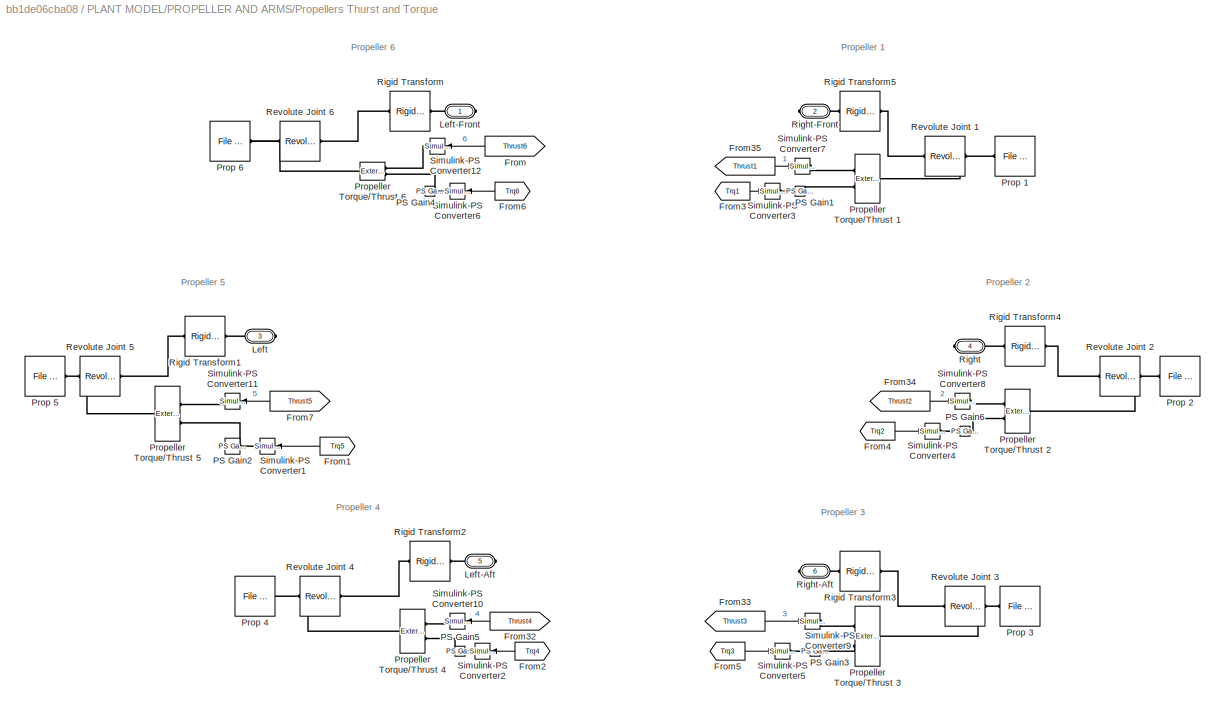
BLOCK [SubSystem] PLANT MODEL/PROPELLER AND ARMS/Propellers Thurst and Torque
  NameLocation = top
  Ports = [0, 0, 0, 0, 0, 0, 6]
  RequestExecContextInheritance = off
BLOCK [From] PLANT MODEL/PROPELLER AND ARMS/Propellers Thurst and Torque/From
  GotoTag = Thrust6
  NameLocation = top
  TagVisibility = global
BLOCK [From] PLANT MODEL/PROPELLER AND ARMS/Propellers Thurst and Torque/From1
  GotoTag = Trq5
  NameLocation = top
  TagVisibility = global
BLOCK [From] PLANT MODEL/PROPELLER AND ARMS/Propellers Thurst and Torque/From2
  GotoTag = Trq4
  NameLocation = top
  TagVisibility = global
BLOCK [From] PLANT MODEL/PROPELLER AND ARMS/Propellers Thurst and Torque/From3
  GotoTag = Trq1
  TagVisibility = global
BLOCK [From] PLANT MODEL/PROPELLER AND ARMS/Propellers Thurst and Torque/From32
  GotoTag = Thrust4
  NameLocation = top
  TagVisibility = global
BLOCK [From] PLANT MODEL/PROPELLER AND ARMS/Propellers Thurst and Torque/From33
  GotoTag = Thrust3
  TagVisibility = global
BLOCK [From] PLANT MODEL/PROPELLER AND ARMS/Propellers Thurst and Torque/From34
  GotoTag = Thrust2
  TagVisibility = global
BLOCK [From] PLANT MODEL/PROPELLER AND ARMS/Propellers Thurst and Torque/From35
  GotoTag = Thrust1
  TagVisibility = global
BLOCK [From] PLANT MODEL/PROPELLER AND ARMS/Propellers Thurst and Torque/From4
  GotoTag = Trq2
  TagVisibility = global
BLOCK [From] PLANT MODEL/PROPELLER AND ARMS/Propellers Thurst and Torque/From5
  GotoTag = Trq3
  TagVisibility = global
BLOCK [From] PLANT MODEL/PROPELLER AND ARMS/Propellers Thurst and Torque/From6
  GotoTag = Trq6
  NameLocation = top
  TagVisibility = global
BLOCK [From] PLANT MODEL/PROPELLER AND ARMS/Propellers Thurst and Torque/From7
  GotoTag = Thrust5
  NameLocation = top
  TagVisibility = global
BLOCK [PMIOPort] PLANT MODEL/PROPELLER AND ARMS/Propellers Thurst and Torque/Left
  Port = 3
  Side = Right
BLOCK [PMIOPort] PLANT MODEL/PROPELLER AND ARMS/Propellers Thurst and Torque/Left-Aft
  Port = 5
  Side = Right
BLOCK [PMIOPort] PLANT MODEL/PROPELLER AND ARMS/Propellers Thurst and Torque/Left-Front
  Side = Right
BLOCK [Reference] PLANT MODEL/PROPELLER AND ARMS/Propellers Thurst and Torque/PS Gain1  REF=fl_lib/Physical Signals/Functions/PS Gain
  Ports = [0, 0, 0, 0, 0, 1, 1]
  SourceBlock = fl_lib/Physical Signals/Functions/PS Gain
  SourceProductBaseCode = SS
  SourceType = PS Gain
BLOCK [Reference] PLANT MODEL/PROPELLER AND ARMS/Propellers Thurst and Torque/PS Gain2  REF=fl_lib/Physical Signals/Functions/PS Gain
  NameLocation = top
  Ports = [0, 0, 0, 0, 0, 1, 1]
  SourceBlock = fl_lib/Physical Signals/Functions/PS Gain
  SourceProductBaseCode = SS
  SourceType = PS Gain
BLOCK [Reference] PLANT MODEL/PROPELLER AND ARMS/Propellers Thurst and Torque/PS Gain3  REF=fl_lib/Physical Signals/Functions/PS Gain
  Ports = [0, 0, 0, 0, 0, 1, 1]
  SourceBlock = fl_lib/Physical Signals/Functions/PS Gain
  SourceProductBaseCode = SS
  SourceType = PS Gain
BLOCK [Reference] PLANT MODEL/PROPELLER AND ARMS/Propellers Thurst and Torque/PS Gain4  REF=fl_lib/Physical Signals/Functions/PS Gain
  NameLocation = right
  Ports = [0, 0, 0, 0, 0, 1, 1]
  SourceBlock = fl_lib/Physical Signals/Functions/PS Gain
  SourceProductBaseCode = SS
  SourceType = PS Gain
BLOCK [Reference] PLANT MODEL/PROPELLER AND ARMS/Propellers Thurst and Torque/PS Gain5  REF=fl_lib/Physical Signals/Functions/PS Gain
  NameLocation = top
  Ports = [0, 0, 0, 0, 0, 1, 1]
  SourceBlock = fl_lib/Physical Signals/Functions/PS Gain
  SourceProductBaseCode = SS
  SourceType = PS Gain
BLOCK [Reference] PLANT MODEL/PROPELLER AND ARMS/Propellers Thurst and Torque/PS Gain6  REF=fl_lib/Physical Signals/Functions/PS Gain
  Ports = [0, 0, 0, 0, 0, 1, 1]
  SourceBlock = fl_lib/Physical Signals/Functions/PS Gain
  SourceProductBaseCode = SS
  SourceType = PS Gain
BLOCK [Reference] PLANT MODEL/PROPELLER AND ARMS/Propellers Thurst and Torque/Prop 1  REF=sm_lib/Body Elements/File Solid
  NameLocation = top
  Ports = [0, 0, 0, 0, 0, 0, 1]
  SourceBlock = sm_lib/Body Elements/File Solid
  SourceProductBaseCode = MS
  SourceType = File Solid
BLOCK [Reference] PLANT MODEL/PROPELLER AND ARMS/Propellers Thurst and Torque/Prop 2  REF=sm_lib/Body Elements/File Solid
  NameLocation = top
  Ports = [0, 0, 0, 0, 0, 0, 1]
  SourceBlock = sm_lib/Body Elements/File Solid
  SourceProductBaseCode = MS
  SourceType = File Solid
BLOCK [Reference] PLANT MODEL/PROPELLER AND ARMS/Propellers Thurst and Torque/Prop 3  REF=sm_lib/Body Elements/File Solid
  NameLocation = top
  Ports = [0, 0, 0, 0, 0, 0, 1]
  SourceBlock = sm_lib/Body Elements/File Solid
  SourceProductBaseCode = MS
  SourceType = File Solid
BLOCK [Reference] PLANT MODEL/PROPELLER AND ARMS/Propellers Thurst and Torque/Prop 4  REF=sm_lib/Body Elements/File Solid
  Ports = [0, 0, 0, 0, 0, 0, 1]
  SourceBlock = sm_lib/Body Elements/File Solid
  SourceProductBaseCode = MS
  SourceType = File Solid
BLOCK [Reference] PLANT MODEL/PROPELLER AND ARMS/Propellers Thurst and Torque/Prop 5  REF=sm_lib/Body Elements/File Solid
  Ports = [0, 0, 0, 0, 0, 0, 1]
  SourceBlock = sm_lib/Body Elements/File Solid
  SourceProductBaseCode = MS
  SourceType = File Solid
BLOCK [Reference] PLANT MODEL/PROPELLER AND ARMS/Propellers Thurst and Torque/Prop 6  REF=sm_lib/Body Elements/File Solid
  Ports = [0, 0, 0, 0, 0, 0, 1]
  SourceBlock = sm_lib/Body Elements/File Solid
  SourceProductBaseCode = MS
  SourceType = File Solid
BLOCK [Reference] PLANT MODEL/PROPELLER AND ARMS/Propellers Thurst and Torque/Propeller Torque//Thrust 1  REF=sm_lib/Forces and
Torques/External Force
and Torque
  Ports = [0, 0, 0, 0, 0, 2, 1]
  SourceBlock = sm_lib/Forces and\nTorques/External Force\nand Torque
  SourceProductBaseCode = MS
  SourceType = External Force\nand Torque
BLOCK [Reference] PLANT MODEL/PROPELLER AND ARMS/Propellers Thurst and Torque/Propeller Torque//Thrust 2  REF=sm_lib/Forces and
Torques/External Force
and Torque
  Ports = [0, 0, 0, 0, 0, 2, 1]
  SourceBlock = sm_lib/Forces and\nTorques/External Force\nand Torque
  SourceProductBaseCode = MS
  SourceType = External Force\nand Torque
BLOCK [Reference] PLANT MODEL/PROPELLER AND ARMS/Propellers Thurst and Torque/Propeller Torque//Thrust 3  REF=sm_lib/Forces and
Torques/External Force
and Torque
  Ports = [0, 0, 0, 0, 0, 2, 1]
  SourceBlock = sm_lib/Forces and\nTorques/External Force\nand Torque
  SourceProductBaseCode = MS
  SourceType = External Force\nand Torque
BLOCK [Reference] PLANT MODEL/PROPELLER AND ARMS/Propellers Thurst and Torque/Propeller Torque//Thrust 4  REF=sm_lib/Forces and
Torques/External Force
and Torque
  Ports = [0, 0, 0, 0, 0, 2, 1]
  SourceBlock = sm_lib/Forces and\nTorques/External Force\nand Torque
  SourceProductBaseCode = MS
  SourceType = External Force\nand Torque
BLOCK [Reference] PLANT MODEL/PROPELLER AND ARMS/Propellers Thurst and Torque/Propeller Torque//Thrust 5  REF=sm_lib/Forces and
Torques/External Force
and Torque
  Ports = [0, 0, 0, 0, 0, 2, 1]
  SourceBlock = sm_lib/Forces and\nTorques/External Force\nand Torque
  SourceProductBaseCode = MS
  SourceType = External Force\nand Torque
BLOCK [Reference] PLANT MODEL/PROPELLER AND ARMS/Propellers Thurst and Torque/Propeller Torque//Thrust 6  REF=sm_lib/Forces and
Torques/External Force
and Torque
  Ports = [0, 0, 0, 0, 0, 2, 1]
  SourceBlock = sm_lib/Forces and\nTorques/External Force\nand Torque
  SourceProductBaseCode = MS
  SourceType = External Force\nand Torque
BLOCK [Reference] PLANT MODEL/PROPELLER AND ARMS/Propellers Thurst and Torque/Revolute Joint 1  REF=sm_lib/Joints/Revolute Joint
  Ports = [0, 0, 0, 0, 0, 1, 1]
  SourceBlock = sm_lib/Joints/Revolute Joint
  SourceProductBaseCode = MS
  SourceType = Revolute Joint
BLOCK [Reference] PLANT MODEL/PROPELLER AND ARMS/Propellers Thurst and Torque/Revolute Joint 2  REF=sm_lib/Joints/Revolute Joint
  Ports = [0, 0, 0, 0, 0, 1, 1]
  SourceBlock = sm_lib/Joints/Revolute Joint
  SourceProductBaseCode = MS
  SourceType = Revolute Joint
BLOCK [Reference] PLANT MODEL/PROPELLER AND ARMS/Propellers Thurst and Torque/Revolute Joint 3  REF=sm_lib/Joints/Revolute Joint
  Ports = [0, 0, 0, 0, 0, 1, 1]
  SourceBlock = sm_lib/Joints/Revolute Joint
  SourceProductBaseCode = MS
  SourceType = Revolute Joint
BLOCK [Reference] PLANT MODEL/PROPELLER AND ARMS/Propellers Thurst and Torque/Revolute Joint 4  REF=sm_lib/Joints/Revolute Joint
  NameLocation = top
  Ports = [0, 0, 0, 0, 0, 1, 1]
  SourceBlock = sm_lib/Joints/Revolute Joint
  SourceProductBaseCode = MS
  SourceType = Revolute Joint
BLOCK [Reference] PLANT MODEL/PROPELLER AND ARMS/Propellers Thurst and Torque/Revolute Joint 5  REF=sm_lib/Joints/Revolute Joint
  NameLocation = top
  Ports = [0, 0, 0, 0, 0, 1, 1]
  SourceBlock = sm_lib/Joints/Revolute Joint
  SourceProductBaseCode = MS
  SourceType = Revolute Joint
BLOCK [Reference] PLANT MODEL/PROPELLER AND ARMS/Propellers Thurst and Torque/Revolute Joint 6  REF=sm_lib/Joints/Revolute Joint
  NameLocation = top
  Ports = [0, 0, 0, 0, 0, 1, 1]
  SourceBlock = sm_lib/Joints/Revolute Joint
  SourceProductBaseCode = MS
  SourceType = Revolute Joint
BLOCK [PMIOPort] PLANT MODEL/PROPELLER AND ARMS/Propellers Thurst and Torque/Right
  Port = 4
  Side = Right
BLOCK [PMIOPort] PLANT MODEL/PROPELLER AND ARMS/Propellers Thurst and Torque/Right-Aft
  Port = 6
  Side = Right
BLOCK [PMIOPort] PLANT MODEL/PROPELLER AND ARMS/Propellers Thurst and Torque/Right-Front
  Port = 2
  Side = Right
BLOCK [Reference] PLANT MODEL/PROPELLER AND ARMS/Propellers Thurst and Torque/Rigid Transform  REF=sm_lib/Frames and
Transforms/Rigid
Transform
  Ports = [0, 0, 0, 0, 0, 1, 1]
  SourceBlock = sm_lib/Frames and\nTransforms/Rigid\nTransform
  SourceProductBaseCode = MS
  SourceType = Rigid\nTransform
BLOCK [Reference] PLANT MODEL/PROPELLER AND ARMS/Propellers Thurst and Torque/Rigid Transform1  REF=sm_lib/Frames and
Transforms/Rigid
Transform
  Ports = [0, 0, 0, 0, 0, 1, 1]
  SourceBlock = sm_lib/Frames and\nTransforms/Rigid\nTransform
  SourceProductBaseCode = MS
  SourceType = Rigid\nTransform
BLOCK [Reference] PLANT MODEL/PROPELLER AND ARMS/Propellers Thurst and Torque/Rigid Transform2  REF=sm_lib/Frames and
Transforms/Rigid
Transform
  Ports = [0, 0, 0, 0, 0, 1, 1]
  SourceBlock = sm_lib/Frames and\nTransforms/Rigid\nTransform
  SourceProductBaseCode = MS
  SourceType = Rigid\nTransform
BLOCK [Reference] PLANT MODEL/PROPELLER AND ARMS/Propellers Thurst and Torque/Rigid Transform3  REF=sm_lib/Frames and
Transforms/Rigid
Transform
  NameLocation = top
  Ports = [0, 0, 0, 0, 0, 1, 1]
  SourceBlock = sm_lib/Frames and\nTransforms/Rigid\nTransform
  SourceProductBaseCode = MS
  SourceType = Rigid\nTransform
BLOCK [Reference] PLANT MODEL/PROPELLER AND ARMS/Propellers Thurst and Torque/Rigid Transform4  REF=sm_lib/Frames and
Transforms/Rigid
Transform
  NameLocation = top
  Ports = [0, 0, 0, 0, 0, 1, 1]
  SourceBlock = sm_lib/Frames and\nTransforms/Rigid\nTransform
  SourceProductBaseCode = MS
  SourceType = Rigid\nTransform
BLOCK [Reference] PLANT MODEL/PROPELLER AND ARMS/Propellers Thurst and Torque/Rigid Transform5  REF=sm_lib/Frames and
Transforms/Rigid
Transform
  NameLocation = top
  Ports = [0, 0, 0, 0, 0, 1, 1]
  SourceBlock = sm_lib/Frames and\nTransforms/Rigid\nTransform
  SourceProductBaseCode = MS
  SourceType = Rigid\nTransform
BLOCK [Reference] PLANT MODEL/PROPELLER AND ARMS/Propellers Thurst and Torque/Simulink-PS Converter1  REF=nesl_utility/Simulink-PS
Converter
  NameLocation = top
  Ports = [1, 0, 0, 0, 0, 0, 1]
  SourceBlock = nesl_utility/Simulink-PS\nConverter
  SourceProductBaseCode = SS
  SourceType = Simulink-PS\nConverter
BLOCK [Reference] PLANT MODEL/PROPELLER AND ARMS/Propellers Thurst and Torque/Simulink-PS Converter10  REF=nesl_utility/Simulink-PS
Converter
  NameLocation = top
  Ports = [1, 0, 0, 0, 0, 0, 1]
  SourceBlock = nesl_utility/Simulink-PS\nConverter
  SourceProductBaseCode = SS
  SourceType = Simulink-PS\nConverter
BLOCK [Reference] PLANT MODEL/PROPELLER AND ARMS/Propellers Thurst and Torque/Simulink-PS Converter11  REF=nesl_utility/Simulink-PS
Converter
  NameLocation = top
  Ports = [1, 0, 0, 0, 0, 0, 1]
  SourceBlock = nesl_utility/Simulink-PS\nConverter
  SourceProductBaseCode = SS
  SourceType = Simulink-PS\nConverter
BLOCK [Reference] PLANT MODEL/PROPELLER AND ARMS/Propellers Thurst and Torque/Simulink-PS Converter12  REF=nesl_utility/Simulink-PS
Converter
  NameLocation = top
  Ports = [1, 0, 0, 0, 0, 0, 1]
  SourceBlock = nesl_utility/Simulink-PS\nConverter
  SourceProductBaseCode = SS
  SourceType = Simulink-PS\nConverter
BLOCK [Reference] PLANT MODEL/PROPELLER AND ARMS/Propellers Thurst and Torque/Simulink-PS Converter2  REF=nesl_utility/Simulink-PS
Converter
  NameLocation = top
  Ports = [1, 0, 0, 0, 0, 0, 1]
  SourceBlock = nesl_utility/Simulink-PS\nConverter
  SourceProductBaseCode = SS
  SourceType = Simulink-PS\nConverter
BLOCK [Reference] PLANT MODEL/PROPELLER AND ARMS/Propellers Thurst and Torque/Simulink-PS Converter3  REF=nesl_utility/Simulink-PS
Converter
  Ports = [1, 0, 0, 0, 0, 0, 1]
  SourceBlock = nesl_utility/Simulink-PS\nConverter
  SourceProductBaseCode = SS
  SourceType = Simulink-PS\nConverter
BLOCK [Reference] PLANT MODEL/PROPELLER AND ARMS/Propellers Thurst and Torque/Simulink-PS Converter4  REF=nesl_utility/Simulink-PS
Converter
  Ports = [1, 0, 0, 0, 0, 0, 1]
  SourceBlock = nesl_utility/Simulink-PS\nConverter
  SourceProductBaseCode = SS
  SourceType = Simulink-PS\nConverter
BLOCK [Reference] PLANT MODEL/PROPELLER AND ARMS/Propellers Thurst and Torque/Simulink-PS Converter5  REF=nesl_utility/Simulink-PS
Converter
  Ports = [1, 0, 0, 0, 0, 0, 1]
  SourceBlock = nesl_utility/Simulink-PS\nConverter
  SourceProductBaseCode = SS
  SourceType = Simulink-PS\nConverter
BLOCK [Reference] PLANT MODEL/PROPELLER AND ARMS/Propellers Thurst and Torque/Simulink-PS Converter6  REF=nesl_utility/Simulink-PS
Converter
  NameLocation = top
  Ports = [1, 0, 0, 0, 0, 0, 1]
  SourceBlock = nesl_utility/Simulink-PS\nConverter
  SourceProductBaseCode = SS
  SourceType = Simulink-PS\nConverter
BLOCK [Reference] PLANT MODEL/PROPELLER AND ARMS/Propellers Thurst and Torque/Simulink-PS Converter7  REF=nesl_utility/Simulink-PS
Converter
  Ports = [1, 0, 0, 0, 0, 0, 1]
  SourceBlock = nesl_utility/Simulink-PS\nConverter
  SourceProductBaseCode = SS
  SourceType = Simulink-PS\nConverter
BLOCK [Reference] PLANT MODEL/PROPELLER AND ARMS/Propellers Thurst and Torque/Simulink-PS Converter8  REF=nesl_utility/Simulink-PS
Converter
  Ports = [1, 0, 0, 0, 0, 0, 1]
  SourceBlock = nesl_utility/Simulink-PS\nConverter
  SourceProductBaseCode = SS
  SourceType = Simulink-PS\nConverter
BLOCK [Reference] PLANT MODEL/PROPELLER AND ARMS/Propellers Thurst and Torque/Simulink-PS Converter9  REF=nesl_utility/Simulink-PS
Converter
  Ports = [1, 0, 0, 0, 0, 0, 1]
  SourceBlock = nesl_utility/Simulink-PS\nConverter
  SourceProductBaseCode = SS
  SourceType = Simulink-PS\nConverter
BLOCK [PMIOPort] PLANT MODEL/PROPELLER AND ARMS/Right Contact Force
  NameLocation = right
  Port = 3
  Side = Right
BLOCK [Reference] PLANT MODEL/Reference Frame  REF=sm_lib/Frames and
Transforms/Reference
Frame
  Ports = [0, 0, 0, 0, 0, 0, 1]
  SourceBlock = sm_lib/Frames and\nTransforms/Reference\nFrame
  SourceProductBaseCode = MS
  SourceType = Reference\nFrame
BLOCK [SubSystem] PLANT MODEL/SENSORS
  Ports = [0, 0, 0, 0, 0, 0, 2]
  RequestExecContextInheritance = off
BLOCK [Demux] PLANT MODEL/SENSORS/Demux1
  Outputs = 3
  Ports = [1, 3]
BLOCK [Derivative] PLANT MODEL/SENSORS/Derivative1
  CoefficientInTFapproximation = 1e-9
BLOCK [Derivative] PLANT MODEL/SENSORS/Derivative3
  CoefficientInTFapproximation = 1e-9
BLOCK [Derivative] PLANT MODEL/SENSORS/Derivative4
  CoefficientInTFapproximation = 1e-9
BLOCK [Display] PLANT MODEL/SENSORS/Display
  Decimation = 1
  Ports = [1]
BLOCK [Gain] PLANT MODEL/SENSORS/Gain1
  Gain = -1
BLOCK [Gain] PLANT MODEL/SENSORS/Gain10
  Gain = R2D
  NameLocation = right
BLOCK [Gain] PLANT MODEL/SENSORS/Gain11
  Gain = -1
BLOCK [Gain] PLANT MODEL/SENSORS/Gain12
  Gain = -1
BLOCK [Gain] PLANT MODEL/SENSORS/Gain2
  Gain = -1
BLOCK [Gain] PLANT MODEL/SENSORS/Gain3
  Gain = -1
BLOCK [Gain] PLANT MODEL/SENSORS/Gain4
  Gain = -1
BLOCK [Gain] PLANT MODEL/SENSORS/Gain5
  Gain = -1
BLOCK [Gain] PLANT MODEL/SENSORS/Gain7
  Gain = -1
BLOCK [Gain] PLANT MODEL/SENSORS/Gain8
  Gain = R2D
  NameLocation = right
BLOCK [Gain] PLANT MODEL/SENSORS/Gain9
  Gain = R2D
  NameLocation = right
BLOCK [Goto] PLANT MODEL/SENSORS/Goto1
  GotoTag = rollAngleSpeed
  TagVisibility = global
BLOCK [Goto] PLANT MODEL/SENSORS/Goto10
  GotoTag = X
  TagVisibility = global
BLOCK [Goto] PLANT MODEL/SENSORS/Goto16
  GotoTag = rollAngle
  TagVisibility = global
BLOCK [Goto] PLANT MODEL/SENSORS/Goto17
  GotoTag = pitchAngle
  TagVisibility = global
BLOCK [Goto] PLANT MODEL/SENSORS/Goto18
  GotoTag = yawAngle
  NameLocation = right
  TagVisibility = global
BLOCK [Goto] PLANT MODEL/SENSORS/Goto2
  GotoTag = yawAngleSpeed
  NameLocation = right
  TagVisibility = global
BLOCK [Goto] PLANT MODEL/SENSORS/Goto3
  GotoTag = pitchAngleSpeed
  TagVisibility = global
BLOCK [Goto] PLANT MODEL/SENSORS/Goto4
  GotoTag = DY
  TagVisibility = global
BLOCK [Goto] PLANT MODEL/SENSORS/Goto5
  GotoTag = DX
  TagVisibility = global
BLOCK [Goto] PLANT MODEL/SENSORS/Goto7
  GotoTag = DZ
  TagVisibility = global
BLOCK [Goto] PLANT MODEL/SENSORS/Goto8
  GotoTag = Z
  TagVisibility = global
BLOCK [Goto] PLANT MODEL/SENSORS/Goto9
  GotoTag = Y
  TagVisibility = global
BLOCK [Reference] PLANT MODEL/SENSORS/Inertia Sensor  REF=sm_lib/Body Elements/Inertia Sensor
  Ports = [0, 0, 0, 0, 0, 1, 3]
  SourceBlock = sm_lib/Body Elements/Inertia Sensor
  SourceProductBaseCode = MS
  SourceType = Inertia Sensor
BLOCK [Reference] PLANT MODEL/SENSORS/PS-Simulink Converter1  REF=nesl_utility/PS-Simulink
Converter
  Ports = [0, 1, 0, 0, 0, 1]
  SourceBlock = nesl_utility/PS-Simulink\nConverter
  SourceProductBaseCode = SS
  SourceType = PS-Simulink\nConverter
BLOCK [Reference] PLANT MODEL/SENSORS/PS-Simulink Converter10  REF=nesl_utility/PS-Simulink
Converter
  Ports = [0, 1, 0, 0, 0, 1]
  SourceBlock = nesl_utility/PS-Simulink\nConverter
  SourceProductBaseCode = SS
  SourceType = PS-Simulink\nConverter
BLOCK [Reference] PLANT MODEL/SENSORS/PS-Simulink Converter2  REF=nesl_utility/PS-Simulink
Converter
  Ports = [0, 1, 0, 0, 0, 1]
  SourceBlock = nesl_utility/PS-Simulink\nConverter
  SourceProductBaseCode = SS
  SourceType = PS-Simulink\nConverter
BLOCK [Reference] PLANT MODEL/SENSORS/PS-Simulink Converter3  REF=nesl_utility/PS-Simulink
Converter
  Ports = [0, 1, 0, 0, 0, 1]
  SourceBlock = nesl_utility/PS-Simulink\nConverter
  SourceProductBaseCode = SS
  SourceType = PS-Simulink\nConverter
BLOCK [Reference] PLANT MODEL/SENSORS/PS-Simulink Converter4  REF=nesl_utility/PS-Simulink
Converter
  Ports = [0, 1, 0, 0, 0, 1]
  SourceBlock = nesl_utility/PS-Simulink\nConverter
  SourceProductBaseCode = SS
  SourceType = PS-Simulink\nConverter
BLOCK [Reference] PLANT MODEL/SENSORS/PS-Simulink Converter42  REF=nesl_utility/PS-Simulink
Converter
  Ports = [0, 1, 0, 0, 0, 1]
  SourceBlock = nesl_utility/PS-Simulink\nConverter
  SourceProductBaseCode = SS
  SourceType = PS-Simulink\nConverter
BLOCK [Reference] PLANT MODEL/SENSORS/PS-Simulink Converter5  REF=nesl_utility/PS-Simulink
Converter
  Ports = [0, 1, 0, 0, 0, 1]
  SourceBlock = nesl_utility/PS-Simulink\nConverter
  SourceProductBaseCode = SS
  SourceType = PS-Simulink\nConverter
BLOCK [Reference] PLANT MODEL/SENSORS/PS-Simulink Converter6  REF=nesl_utility/PS-Simulink
Converter
  Ports = [0, 1, 0, 0, 0, 1]
  SourceBlock = nesl_utility/PS-Simulink\nConverter
  SourceProductBaseCode = SS
  SourceType = PS-Simulink\nConverter
BLOCK [Reference] PLANT MODEL/SENSORS/PS-Simulink Converter8  REF=nesl_utility/PS-Simulink
Converter
  Ports = [0, 1, 0, 0, 0, 1]
  SourceBlock = nesl_utility/PS-Simulink\nConverter
  SourceProductBaseCode = SS
  SourceType = PS-Simulink\nConverter
BLOCK [Reference] PLANT MODEL/SENSORS/PS-Simulink Converter9  REF=nesl_utility/PS-Simulink
Converter
  Ports = [0, 1, 0, 0, 0, 1]
  SourceBlock = nesl_utility/PS-Simulink\nConverter
  SourceProductBaseCode = SS
  SourceType = PS-Simulink\nConverter
BLOCK [PMIOPort] PLANT MODEL/SENSORS/Plant Model Physical Connection
  NameLocation = top
  Side = Right
BLOCK [SubSystem] PLANT MODEL/SENSORS/Quaternion to Rotation Angles, XYZ order
  Ports = [1, 1]
  RequestExecContextInheritance = off
BLOCK [Demux] PLANT MODEL/SENSORS/Quaternion to Rotation Angles, XYZ order/Demux
  Ports = [1, 4]
BLOCK [Demux] PLANT MODEL/SENSORS/Quaternion to Rotation Angles, XYZ order/Demux1
  Ports = [1, 4]
BLOCK [If] PLANT MODEL/SENSORS/Quaternion to Rotation Angles, XYZ order/If
  ElseIfExpressions = u1 < -1
  IfExpression = u1 > 1
  Ports = [1, 3]
BLOCK [SubSystem] PLANT MODEL/SENSORS/Quaternion to Rotation Angles, XYZ order/If Action Subsystem
  Ports = [0, 1, 0, 0, 0, 0, 0, 1]
  RequestExecContextInheritance = off
  TreatAsAtomicUnit = on
BLOCK [ActionPort] PLANT MODEL/SENSORS/Quaternion to Rotation Angles, XYZ order/If Action Subsystem/Action Port
  ActionPortLabel = if(u1 > 1)
BLOCK [Constant] PLANT MODEL/SENSORS/Quaternion to Rotation Angles, XYZ order/If Action Subsystem/Constant
  SampleTime = -1
BLOCK [Outport] PLANT MODEL/SENSORS/Quaternion to Rotation Angles, XYZ order/If Action Subsystem/OutputPos1
  InitialOutput = 0
  VectorParamsAs1DForOutWhenUnconnected = off
BLOCK [SubSystem] PLANT MODEL/SENSORS/Quaternion to Rotation Angles, XYZ order/If Action Subsystem1
  Ports = [0, 1, 0, 0, 0, 0, 0, 1]
  RequestExecContextInheritance = off
  TreatAsAtomicUnit = on
BLOCK [ActionPort] PLANT MODEL/SENSORS/Quaternion to Rotation Angles, XYZ order/If Action Subsystem1/Action Port
  ActionPortLabel = elseif(u1 < -1)
BLOCK [Constant] PLANT MODEL/SENSORS/Quaternion to Rotation Angles, XYZ order/If Action Subsystem1/Constant
  SampleTime = -1
BLOCK [Outport] PLANT MODEL/SENSORS/Quaternion to Rotation Angles, XYZ order/If Action Subsystem1/OutputNeg1
  InitialOutput = 0
  VectorParamsAs1DForOutWhenUnconnected = off
BLOCK [SubSystem] PLANT MODEL/SENSORS/Quaternion to Rotation Angles, XYZ order/If Action Subsystem2
  Ports = [1, 1, 0, 0, 0, 0, 0, 1]
  RequestExecContextInheritance = off
  TreatAsAtomicUnit = on
BLOCK [ActionPort] PLANT MODEL/SENSORS/Quaternion to Rotation Angles, XYZ order/If Action Subsystem2/Action Port
  ActionPortLabel = else
BLOCK [Inport] PLANT MODEL/SENSORS/Quaternion to Rotation Angles, XYZ order/If Action Subsystem2/In
BLOCK [Outport] PLANT MODEL/SENSORS/Quaternion to Rotation Angles, XYZ order/If Action Subsystem2/OutOrig
  InitialOutput = 0
  VectorParamsAs1DForOutWhenUnconnected = off
BLOCK [Merge] PLANT MODEL/SENSORS/Quaternion to Rotation Angles, XYZ order/Merge
  Inputs = 3
  Ports = [3, 1]
BLOCK [Mux] PLANT MODEL/SENSORS/Quaternion to Rotation Angles, XYZ order/Mux
  DisplayOption = bar
  Ports = [4, 1]
BLOCK [Product] PLANT MODEL/SENSORS/Quaternion to Rotation Angles, XYZ order/Product
  Inputs = */
  Ports = [2, 1]
BLOCK [Product] PLANT MODEL/SENSORS/Quaternion to Rotation Angles, XYZ order/Product1
  Inputs = */
  Ports = [2, 1]
BLOCK [Product] PLANT MODEL/SENSORS/Quaternion to Rotation Angles, XYZ order/Product2
  Inputs = */
  Ports = [2, 1]
BLOCK [Product] PLANT MODEL/SENSORS/Quaternion to Rotation Angles, XYZ order/Product3
  Inputs = */
  Ports = [2, 1]
BLOCK [Product] PLANT MODEL/SENSORS/Quaternion to Rotation Angles, XYZ order/Product4
  Ports = [2, 1]
BLOCK [Product] PLANT MODEL/SENSORS/Quaternion to Rotation Angles, XYZ order/Product5
  Ports = [2, 1]
BLOCK [Product] PLANT MODEL/SENSORS/Quaternion to Rotation Angles, XYZ order/Product6
  Ports = [2, 1]
BLOCK [Product] PLANT MODEL/SENSORS/Quaternion to Rotation Angles, XYZ order/Product7
  Ports = [2, 1]
BLOCK [Outport] PLANT MODEL/SENSORS/Quaternion to Rotation Angles, XYZ order/R1,R2,R3
  Unit = rad
  VectorParamsAs1DForOutWhenUnconnected = off
BLOCK [Sum] PLANT MODEL/SENSORS/Quaternion to Rotation Angles, XYZ order/Sum
  Inputs = 4
  Ports = [4, 1]
BLOCK [Trigonometry] PLANT MODEL/SENSORS/Quaternion to Rotation Angles, XYZ order/Trigonometric Function1
  Operator = atan2
  Ports = [2, 1]
BLOCK [Trigonometry] PLANT MODEL/SENSORS/Quaternion to Rotation Angles, XYZ order/Trigonometric Function3
  Operator = atan2
  Ports = [2, 1]
BLOCK [Concatenate] PLANT MODEL/SENSORS/Quaternion to Rotation Angles, XYZ order/Vector Concatenate
  NumInputs = 3
  Ports = [3, 1]
BLOCK [Fcn] PLANT MODEL/SENSORS/Quaternion to Rotation Angles, XYZ order/fcn1
  Expr = 2*(u[2]*u[3] + u[1]*u[4])
BLOCK [Fcn] PLANT MODEL/SENSORS/Quaternion to Rotation Angles, XYZ order/fcn2
  Expr = u[1]*u[1] + u[2]*u[2] - u[3]*u[3] - u[4]*u[4]
BLOCK [Fcn] PLANT MODEL/SENSORS/Quaternion to Rotation Angles, XYZ order/fcn3
  Expr = -2*(u[2]*u[4] - u[1]*u[3])
BLOCK [Fcn] PLANT MODEL/SENSORS/Quaternion to Rotation Angles, XYZ order/fcn4
  Expr = 2*(u[3]*u[4] + u[1]*u[2])
BLOCK [Fcn] PLANT MODEL/SENSORS/Quaternion to Rotation Angles, XYZ order/fcn5
  Expr = u[1]*u[1] - u[2]*u[2] - u[3]*u[3] + u[4]*u[4]
BLOCK [Inport] PLANT MODEL/SENSORS/Quaternion to Rotation Angles, XYZ order/q
  Unit = 1
BLOCK [Sqrt] PLANT MODEL/SENSORS/Quaternion to Rotation Angles, XYZ order/sqrt
  AlgorithmType = Newton-Raphson
BLOCK [Trigonometry] PLANT MODEL/SENSORS/Quaternion to Rotation Angles, XYZ order/trigFcn
  Operator = asin
  Ports = [1, 1]
BLOCK [Scope] PLANT MODEL/SENSORS/Scope1
  Floating = off
  NumInputPorts = 1
  Ports = [1]
  ScopeSpecificationString = Simulink.scopes.TimeScopeBlockCfg('CurrentConfiguration', extmgr.ConfigurationSet(extmgr.Configuration('Core','General UI',true),extmgr.Configuration('Core','Source UI',true),extmgr.Configuration('Sources','WiredSimulink',true,'DataLoggingVariableName','ScopeData1'),extmgr.Configuration('Visuals','Time Domain',true,'SerializedDisplays',{struct('MinYLimReal','2.48115','MaxYLimReal','4.48115','YLabe...<+1445ch>
BLOCK [Scope] PLANT MODEL/SENSORS/Scope2
  Floating = off
  NameLocation = right
  NumInputPorts = 3
  Ports = [3]
  ScopeSpecificationString = Simulink.scopes.TimeScopeBlockCfg('CurrentConfiguration', extmgr.ConfigurationSet(extmgr.Configuration('Core','General UI',true),extmgr.Configuration('Core','Source UI',true),extmgr.Configuration('Sources','WiredSimulink',true,'DataLoggingVariableName','ScopeData2'),extmgr.Configuration('Visuals','Time Domain',true,'SerializedDisplays',{struct('MinYLimReal','-4.58891','MaxYLimReal','11.62119','YLa...<+1563ch>
BLOCK [Scope] PLANT MODEL/SENSORS/Scope4
  Floating = off
  NameLocation = left
  NumInputPorts = 3
  Ports = [3]
  ScopeSpecificationString = Simulink.scopes.TimeScopeBlockCfg('CurrentConfiguration', extmgr.ConfigurationSet(extmgr.Configuration('Core','General UI',true),extmgr.Configuration('Core','Source UI',true),extmgr.Configuration('Sources','WiredSimulink',true,'DataLoggingVariableName','ScopeData8'),extmgr.Configuration('Visuals','Time Domain',true,'SerializedDisplays',{struct('MinYLimReal','-0.49421','MaxYLimReal','3.55686','YLab...<+1541ch>
BLOCK [Scope] PLANT MODEL/SENSORS/Scope6
  Floating = off
  NameLocation = left
  NumInputPorts = 3
  Ports = [3]
  ScopeSpecificationString = Simulink.scopes.TimeScopeBlockCfg('CurrentConfiguration', extmgr.ConfigurationSet(extmgr.Configuration('Core','General UI',true),extmgr.Configuration('Core','Source UI',true),extmgr.Configuration('Sources','WiredSimulink',true,'DataLoggingVariableName','ScopeData6'),extmgr.Configuration('Visuals','Time Domain',true,'SerializedDisplays',{struct('MinYLimReal','-3.0006','MaxYLimReal','5.58754','YLabe...<+1451ch>
BLOCK [Scope] PLANT MODEL/SENSORS/Scope9
  Floating = off
  NumInputPorts = 1
  Ports = [1]
  ScopeSpecificationString = Simulink.scopes.TimeScopeBlockCfg('CurrentConfiguration', extmgr.ConfigurationSet(extmgr.Configuration('Core','General UI',true),extmgr.Configuration('Core','Source UI',true),extmgr.Configuration('Sources','WiredSimulink',true),extmgr.Configuration('Visuals','Time Domain',true,'SerializedDisplays',{struct('MinYLimReal','-0.00168','MaxYLimReal','0.00019','YLabelReal','','MinYLimMag','0.00000','MaxY...<+1465ch>
BLOCK [Reference] PLANT MODEL/SENSORS/Transform Sensor  REF=sm_lib/Frames and
Transforms/Transform
Sensor
  Ports = [0, 0, 0, 0, 0, 1, 7]
  SourceBlock = sm_lib/Frames and\nTransforms/Transform\nSensor
  SourceProductBaseCode = MS
  SourceType = Transform\nSensor
BLOCK [Reference] PLANT MODEL/SENSORS/Transform Sensor2  REF=sm_lib/Frames and
Transforms/Transform
Sensor
  Ports = [0, 0, 0, 0, 0, 1, 2]
  SourceBlock = sm_lib/Frames and\nTransforms/Transform\nSensor
  SourceProductBaseCode = MS
  SourceType = Transform\nSensor
BLOCK [PMIOPort] PLANT MODEL/SENSORS/World Frame
  NameLocation = right
  Port = 2
  Side = Right
BLOCK [Scope] PLANT MODEL/SENSORS/quat
  Floating = off
  NameLocation = right
  NumInputPorts = 3
  Ports = [3]
  ScopeSpecificationString = Simulink.scopes.TimeScopeBlockCfg('CurrentConfiguration', extmgr.ConfigurationSet(extmgr.Configuration('Core','General UI',true),extmgr.Configuration('Core','Source UI',true),extmgr.Configuration('Sources','WiredSimulink',true,'DataLoggingVariableName','ScopeData5'),extmgr.Configuration('Visuals','Time Domain',true,'SerializedDisplays',{struct('MinYLimReal','-0.21865','MaxYLimReal','1.96787','YLab...<+1550ch>
BLOCK [SimscapeBus] PLANT MODEL/Simscape Bus
  HierarchyStrings = FuselageContactForces;LeftSideContactForces;RightSideContactForces;SkidsContactForces
  Ports = [0, 0, 0, 0, 0, 4, 1]
BLOCK [Reference] PLANT MODEL/Solver Configuration  REF=nesl_utility/Solver
Configuration
  Ports = [0, 0, 0, 0, 0, 0, 1]
  SourceBlock = nesl_utility/Solver\nConfiguration
  SourceProductBaseCode = SS
  SourceType = Solver\nConfiguration
BLOCK [Scope] Scope
  Floating = off
  NameLocation = right
  NumInputPorts = 4
  Ports = [4]
  ScopeSpecificationString = Simulink.scopes.TimeScopeBlockCfg('CurrentConfiguration', extmgr.ConfigurationSet(extmgr.Configuration('Core','General UI',true),extmgr.Configuration('Core','Source UI',true),extmgr.Configuration('Sources','WiredSimulink',true,'DataLoggingVariableName','ScopeData3'),extmgr.Configuration('Visuals','Time Domain',true,'SerializedDisplays',{struct('MinYLimReal','-4.62387','MaxYLimReal','11.61487','YLa...<+1482ch>
BLOCK [Scope] Scope1
  Floating = off
  NameLocation = right
  NumInputPorts = 1
  Ports = [1]
  ScopeSpecificationString = Simulink.scopes.TimeScopeBlockCfg('CurrentConfiguration', extmgr.ConfigurationSet(extmgr.Configuration('Core','General UI',true),extmgr.Configuration('Core','Source UI',true),extmgr.Configuration('Sources','WiredSimulink',true,'DataLoggingVariableName','ScopeData1'),extmgr.Configuration('Visuals','Time Domain',true,'SerializedDisplays',{struct('MinYLimReal','-0.12494','MaxYLimReal','1.12515','YLab...<+1441ch>
BLOCK [SubSystem] Trajectory
  Ports = [0, 4]
  RequestExecContextInheritance = off
BLOCK [Clock] Trajectory/Clock
  DisplayTime = on
BLOCK [Constant] Trajectory/Constant
  Value = timeConstant
BLOCK [Constant] Trajectory/Constant1
  Value = missionPlanX
BLOCK [Constant] Trajectory/Constant2
  Value = missionPlanY
BLOCK [Constant] Trajectory/Constant3
  Value = missionPlanZ
BLOCK [Constant] Trajectory/Constant4
  Value = missionPlanYaw
BLOCK [Gain] Trajectory/Degrees to Rad
  Gain = 0.0174533
BLOCK [SubSystem] Trajectory/Trajectory Control
  ErrorFcn = Stateflow.Translate.translate
  PermitHierarchicalResolution = ExplicitOnly
  Ports = [6, 4]
  RequestExecContextInheritance = off
  SFBlockType = MATLAB Function
  TreatAsAtomicUnit = on
BLOCK [Demux] Trajectory/Trajectory Control/ Demux 
  Outputs = 1
  Ports = [1, 1]
BLOCK [S-Function] Trajectory/Trajectory Control/ SFunction 
  EnableBusSupport = on
  FunctionName = sf_sfun
  PortCounts = [6 5]
  Ports = [6, 5]
  SFcnIsStateOwnerBlock = off
  SFunctionDeploymentMode = off
  Tag = Stateflow S-Function 8
BLOCK [Terminator] Trajectory/Trajectory Control/ Terminator 
BLOCK [Inport] Trajectory/Trajectory Control/missionPlanX
BLOCK [Inport] Trajectory/Trajectory Control/missionPlanY
  Port = 2
BLOCK [Inport] Trajectory/Trajectory Control/missionPlanYaw
  Port = 4
BLOCK [Inport] Trajectory/Trajectory Control/missionPlanZ
  Port = 3
BLOCK [Inport] Trajectory/Trajectory Control/simulationTime
  Port = 6
BLOCK [Inport] Trajectory/Trajectory Control/timeConstant
  Port = 5
BLOCK [Outport] Trajectory/Trajectory Control/xPosition
BLOCK [Outport] Trajectory/Trajectory Control/yPosition
  Port = 2
BLOCK [Outport] Trajectory/Trajectory Control/yaw
  Port = 4
BLOCK [Outport] Trajectory/Trajectory Control/zPosition
  Port = 3
BLOCK [Outport] Trajectory/xPosition
BLOCK [Outport] Trajectory/yPosition
  Port = 2
BLOCK [Outport] Trajectory/yawAngle
  Port = 4
BLOCK [Outport] Trajectory/zPosition
  Port = 3
ANNOTATION (root): CONTROL ALLOCATION
ANNOTATION (root): CONTROL LAWS
ANNOTATION (root): PLANT MODEL
ANNOTATION (root): TRAJECTORY
ANNOTATION CONTROL ALLOCATION1: RELIABILITY MODEL
ANNOTATION CONTROL ALLOCATION1: Weighted Control Allocation
ANNOTATION CONTROL ALLOCATION1: HEXACOPTER CONFIGURATION
ANNOTATION CONTROL ALLOCATION1/Reliability Model/Reliability Observer (BNG): Failure Prediction Model
ANNOTATION CONTROL ALLOCATION1/Reliability Model/Reliability Observer (BNG): Realtime Reliability Observer (BNG)
ANNOTATION CONTROL ALLOCATION1/Reliability Model/Reliability Observer (BNG): Subsystem
ANNOTATION CONTROL ALLOCATION1/Reliability Model/Reliability Observer (CAPEV): Cumulative Aging EVCAP
ANNOTATION CONTROL ALLOCATION1/Reliability Model/Reliability Observer (CAPEV): LambdaEV
ANNOTATION CONTROL ALLOCATION1/Reliability Model/Reliability Observer (CAPEV): ReliabilityEVCAP
ANNOTATION CONTROL ALLOCATION1/Reliability Model/Reliability Observer (CAPEV): Subsystem
ANNOTATION CONTROL ALLOCATION1/Reliability Model/Reliability Observer (CAPEV): VrefEVCAP
ANNOTATION CONTROL ALLOCATION1/Reliability Model/Reliability Observer (SCEM): Cumulative Aging EM
ANNOTATION CONTROL ALLOCATION1/Reliability Model/Reliability Observer (SCEM): ReliabilityEM
ANNOTATION CONTROL ALLOCATION1/Reliability Model/Reliability Observer (SCEM): VrefEM
ANNOTATION CONTROL ALLOCATION1/Reliability Model/Reliability Observer (SCTDDB): Cumulative Aging VTDDB
ANNOTATION CONTROL ALLOCATION1/Reliability Model/Reliability Observer (SCTDDB): LambdaTDDB
ANNOTATION CONTROL ALLOCATION1/Reliability Model/Reliability Observer (SCTDDB): ReliabilityTDDB
ANNOTATION CONTROL ALLOCATION1/Reliability Model/Reliability Observer (SCTDDB): Subsystem
ANNOTATION CONTROL ALLOCATION1/Reliability Model/Reliability Observer (SCTDDB): VrefTDDB
ANNOTATION CONTROL ALLOCATION1/Reliability Model/Reliability Observer (WDG): Cumulative Aging WDG
ANNOTATION CONTROL ALLOCATION1/Reliability Model/Reliability Observer (WDG): Lambda
ANNOTATION CONTROL ALLOCATION1/Reliability Model/Reliability Observer (WDG): ReliabilityWDG
ANNOTATION CONTROL ALLOCATION1/Reliability Model/Reliability Observer (WDG): Subsystem
ANNOTATION CONTROL ALLOCATION1/Reliability Model/Reliability Observer (WDG): VrefWDG
ANNOTATION CONTROL ALLOCATION1/Reliability Model/Thermal Model (ESC)2: Will update, temporary values ->
ANNOTATION CONTROL LAWS: X- Position controller
ANNOTATION CONTROL LAWS: Y- Position controller
ANNOTATION CONTROL LAWS: Altitude Controller
ANNOTATION CONTROL LAWS: Pitch Controller
ANNOTATION CONTROL LAWS: Roll Controller
ANNOTATION CONTROL LAWS: Yaw Controller
ANNOTATION CONTROL LAWS: Altitude controller
ANNOTATION CONTROL LAWS: PITCH Attitude Controller
ANNOTATION CONTROL LAWS: ROLL Attitude Controller
ANNOTATION CONTROL LAWS: YAW Attitude Controller
ANNOTATION PLANT MODEL/DRAG FORCES: Drag Constants
ANNOTATION PLANT MODEL/ELECTRIC SYSTEM: Batteries
ANNOTATION PLANT MODEL/PROPELLER AND ARMS/Propellers Thurst and Torque: Propeller 1
ANNOTATION PLANT MODEL/PROPELLER AND ARMS/Propellers Thurst and Torque: Propeller 2
ANNOTATION PLANT MODEL/PROPELLER AND ARMS/Propellers Thurst and Torque: Propeller 3
ANNOTATION PLANT MODEL/PROPELLER AND ARMS/Propellers Thurst and Torque: Propeller 4
ANNOTATION PLANT MODEL/PROPELLER AND ARMS/Propellers Thurst and Torque: Propeller 5
ANNOTATION PLANT MODEL/PROPELLER AND ARMS/Propellers Thurst and Torque: Propeller 6
ANNOTATION PLANT MODEL/SENSORS: ANGLE SPEEDS
ANNOTATION PLANT MODEL/SENSORS: ANGLES
ANNOTATION PLANT MODEL/SENSORS: PHYSICAL PROPERTIES
ANNOTATION PLANT MODEL/SENSORS: POSITION AND SPEED
ANNOTATION PLANT MODEL/SENSORS/Quaternion to Rotation Angles, XYZ order: Angle Calculation
ANNOTATION PLANT MODEL/SENSORS/Quaternion to Rotation Angles, XYZ order: Protect asincos input
LINE CONTROL ALLOCATION1/Constant:1 -> CONTROL ALLOCATION1/Matrix Multiply:2
LINE CONTROL ALLOCATION1/Demux:1 -> CONTROL ALLOCATION1/Scope:1
LINE CONTROL ALLOCATION1/Demux:2 -> CONTROL ALLOCATION1/Scope:2
LINE CONTROL ALLOCATION1/Demux:3 -> CONTROL ALLOCATION1/Scope:3
LINE CONTROL ALLOCATION1/Demux:4 -> CONTROL ALLOCATION1/Scope:4
LINE CONTROL ALLOCATION1/Demux:5 -> CONTROL ALLOCATION1/Scope:5
LINE CONTROL ALLOCATION1/Demux:6 -> CONTROL ALLOCATION1/Scope:6
NET CONTROL ALLOCATION1/From2:1 -> CONTROL ALLOCATION1/Reliability Model:4, CONTROL ALLOCATION1/To Workspace3:1
NET CONTROL ALLOCATION1/From3:1 -> CONTROL ALLOCATION1/Reliability Model:3, CONTROL ALLOCATION1/To Workspace2:1
NET CONTROL ALLOCATION1/From4:1 -> CONTROL ALLOCATION1/Reliability Model:5, CONTROL ALLOCATION1/To Workspace4:1
NET CONTROL ALLOCATION1/From5:1 -> CONTROL ALLOCATION1/Reliability Model:2, CONTROL ALLOCATION1/To Workspace1:1
NET CONTROL ALLOCATION1/From:1 -> CONTROL ALLOCATION1/Reliability Model:1, CONTROL ALLOCATION1/To Workspace:1
LINE CONTROL ALLOCATION1/Inputs Needed For Reliability Model/From10:1 -> CONTROL ALLOCATION1/Inputs Needed For Reliability Model/Mux1:5
LINE CONTROL ALLOCATION1/Inputs Needed For Reliability Model/From11:1 -> CONTROL ALLOCATION1/Inputs Needed For Reliability Model/Mux1:6
LINE CONTROL ALLOCATION1/Inputs Needed For Reliability Model/From12:1 -> CONTROL ALLOCATION1/Inputs Needed For Reliability Model/Mux3:5
LINE CONTROL ALLOCATION1/Inputs Needed For Reliability Model/From13:1 -> CONTROL ALLOCATION1/Inputs Needed For Reliability Model/Mux3:6
LINE CONTROL ALLOCATION1/Inputs Needed For Reliability Model/From14:1 -> CONTROL ALLOCATION1/Inputs Needed For Reliability Model/Mux3:1
LINE CONTROL ALLOCATION1/Inputs Needed For Reliability Model/From15:1 -> CONTROL ALLOCATION1/Inputs Needed For Reliability Model/Mux3:2
LINE CONTROL ALLOCATION1/Inputs Needed For Reliability Model/From16:1 -> CONTROL ALLOCATION1/Inputs Needed For Reliability Model/Mux3:3
LINE CONTROL ALLOCATION1/Inputs Needed For Reliability Model/From17:1 -> CONTROL ALLOCATION1/Inputs Needed For Reliability Model/Mux3:4
LINE CONTROL ALLOCATION1/Inputs Needed For Reliability Model/From18:1 -> CONTROL ALLOCATION1/Inputs Needed For Reliability Model/Mux4:1
LINE CONTROL ALLOCATION1/Inputs Needed For Reliability Model/From19:1 -> CONTROL ALLOCATION1/Inputs Needed For Reliability Model/Mux4:4
LINE CONTROL ALLOCATION1/Inputs Needed For Reliability Model/From20:1 -> CONTROL ALLOCATION1/Inputs Needed For Reliability Model/Mux4:3
LINE CONTROL ALLOCATION1/Inputs Needed For Reliability Model/From21:1 -> CONTROL ALLOCATION1/Inputs Needed For Reliability Model/Mux4:2
LINE CONTROL ALLOCATION1/Inputs Needed For Reliability Model/From22:1 -> CONTROL ALLOCATION1/Inputs Needed For Reliability Model/Mux4:5
LINE CONTROL ALLOCATION1/Inputs Needed For Reliability Model/From23:1 -> CONTROL ALLOCATION1/Inputs Needed For Reliability Model/Mux4:6
LINE CONTROL ALLOCATION1/Inputs Needed For Reliability Model/From26:1 -> CONTROL ALLOCATION1/Inputs Needed For Reliability Model/Mux6:5
LINE CONTROL ALLOCATION1/Inputs Needed For Reliability Model/From27:1 -> CONTROL ALLOCATION1/Inputs Needed For Reliability Model/Mux6:6
LINE CONTROL ALLOCATION1/Inputs Needed For Reliability Model/From28:1 -> CONTROL ALLOCATION1/Inputs Needed For Reliability Model/Mux6:1
LINE CONTROL ALLOCATION1/Inputs Needed For Reliability Model/From29:1 -> CONTROL ALLOCATION1/Inputs Needed For Reliability Model/Mux6:2
LINE CONTROL ALLOCATION1/Inputs Needed For Reliability Model/From30:1 -> CONTROL ALLOCATION1/Inputs Needed For Reliability Model/Mux6:3
LINE CONTROL ALLOCATION1/Inputs Needed For Reliability Model/From31:1 -> CONTROL ALLOCATION1/Inputs Needed For Reliability Model/Mux6:4
LINE CONTROL ALLOCATION1/Inputs Needed For Reliability Model/From36:1 -> CONTROL ALLOCATION1/Inputs Needed For Reliability Model/Mux2:1
LINE CONTROL ALLOCATION1/Inputs Needed For Reliability Model/From37:1 -> CONTROL ALLOCATION1/Inputs Needed For Reliability Model/Mux2:2
LINE CONTROL ALLOCATION1/Inputs Needed For Reliability Model/From38:1 -> CONTROL ALLOCATION1/Inputs Needed For Reliability Model/Mux2:3
LINE CONTROL ALLOCATION1/Inputs Needed For Reliability Model/From39:1 -> CONTROL ALLOCATION1/Inputs Needed For Reliability Model/Mux2:4
LINE CONTROL ALLOCATION1/Inputs Needed For Reliability Model/From40:1 -> CONTROL ALLOCATION1/Inputs Needed For Reliability Model/Mux2:5
LINE CONTROL ALLOCATION1/Inputs Needed For Reliability Model/From41:1 -> CONTROL ALLOCATION1/Inputs Needed For Reliability Model/Mux2:6
LINE CONTROL ALLOCATION1/Inputs Needed For Reliability Model/From6:1 -> CONTROL ALLOCATION1/Inputs Needed For Reliability Model/Mux1:1
LINE CONTROL ALLOCATION1/Inputs Needed For Reliability Model/From7:1 -> CONTROL ALLOCATION1/Inputs Needed For Reliability Model/Mux1:2
LINE CONTROL ALLOCATION1/Inputs Needed For Reliability Model/From8:1 -> CONTROL ALLOCATION1/Inputs Needed For Reliability Model/Mux1:3
LINE CONTROL ALLOCATION1/Inputs Needed For Reliability Model/From9:1 -> CONTROL ALLOCATION1/Inputs Needed For Reliability Model/Mux1:4
LINE CONTROL ALLOCATION1/Inputs Needed For Reliability Model/Mux1:1 -> CONTROL ALLOCATION1/Inputs Needed For Reliability Model/Goto13:1
LINE CONTROL ALLOCATION1/Inputs Needed For Reliability Model/Mux2:1 -> CONTROL ALLOCATION1/Inputs Needed For Reliability Model/Goto1:1
LINE CONTROL ALLOCATION1/Inputs Needed For Reliability Model/Mux3:1 -> CONTROL ALLOCATION1/Inputs Needed For Reliability Model/Goto14:1
NET CONTROL ALLOCATION1/Inputs Needed For Reliability Model/Mux4:1 -> CONTROL ALLOCATION1/Inputs Needed For Reliability Model/Goto15:1, CONTROL ALLOCATION1/Inputs Needed For Reliability Model/Subsystem:1
NET CONTROL ALLOCATION1/Inputs Needed For Reliability Model/Mux6:1 -> CONTROL ALLOCATION1/Inputs Needed For Reliability Model/Goto17:1, CONTROL ALLOCATION1/Inputs Needed For Reliability Model/Subsystem1:1, CONTROL ALLOCATION1/Inputs Needed For Reliability Model/Subsystem:2
LINE CONTROL ALLOCATION1/Inputs Needed For Reliability Model/Subsystem/Gain5:1 -> CONTROL ALLOCATION1/Inputs Needed For Reliability Model/Subsystem/Sum5:2
LINE CONTROL ALLOCATION1/Inputs Needed For Reliability Model/Subsystem/Gain6:1 -> CONTROL ALLOCATION1/Inputs Needed For Reliability Model/Subsystem/Out1:1
LINE CONTROL ALLOCATION1/Inputs Needed For Reliability Model/Subsystem/In1:1 -> CONTROL ALLOCATION1/Inputs Needed For Reliability Model/Subsystem/Sum5:1
LINE CONTROL ALLOCATION1/Inputs Needed For Reliability Model/Subsystem/In2:1 -> CONTROL ALLOCATION1/Inputs Needed For Reliability Model/Subsystem/Gain5:1
LINE CONTROL ALLOCATION1/Inputs Needed For Reliability Model/Subsystem/Sum5:1 -> CONTROL ALLOCATION1/Inputs Needed For Reliability Model/Subsystem/Gain6:1
LINE CONTROL ALLOCATION1/Inputs Needed For Reliability Model/Subsystem1/ESC Output Voltage:1 -> CONTROL ALLOCATION1/Inputs Needed For Reliability Model/Subsystem1/Product:3
LINE CONTROL ALLOCATION1/Inputs Needed For Reliability Model/Subsystem1/In1:1 -> CONTROL ALLOCATION1/Inputs Needed For Reliability Model/Subsystem1/Product:1
LINE CONTROL ALLOCATION1/Inputs Needed For Reliability Model/Subsystem1/In2:1 -> CONTROL ALLOCATION1/Inputs Needed For Reliability Model/Subsystem1/Product:2
LINE CONTROL ALLOCATION1/Inputs Needed For Reliability Model/Subsystem1/Product:1 -> CONTROL ALLOCATION1/Inputs Needed For Reliability Model/Subsystem1/Out1:1
LINE CONTROL ALLOCATION1/Inputs Needed For Reliability Model/Subsystem1:1 -> CONTROL ALLOCATION1/Inputs Needed For Reliability Model/Goto19:1
NET CONTROL ALLOCATION1/Inputs Needed For Reliability Model/Subsystem:1 -> CONTROL ALLOCATION1/Inputs Needed For Reliability Model/Goto18:1, CONTROL ALLOCATION1/Inputs Needed For Reliability Model/Subsystem1:2
LINE CONTROL ALLOCATION1/Matrix Multiply:1 -> CONTROL ALLOCATION1/Demux:1
LINE CONTROL ALLOCATION1/Mp:1 -> CONTROL ALLOCATION1/Mux2:2
LINE CONTROL ALLOCATION1/Mq:1 -> CONTROL ALLOCATION1/Mux2:3
LINE CONTROL ALLOCATION1/Mr:1 -> CONTROL ALLOCATION1/Mux2:4
LINE CONTROL ALLOCATION1/Mux2:1 -> CONTROL ALLOCATION1/Weighted Control Allocation:1
LINE CONTROL ALLOCATION1/Reliability Model/Constant:1 -> CONTROL ALLOCATION1/Reliability Model/Product2:4
LINE CONTROL ALLOCATION1/Reliability Model/Demux:1 -> CONTROL ALLOCATION1/Reliability Model/Product1:1
LINE CONTROL ALLOCATION1/Reliability Model/Demux:2 -> CONTROL ALLOCATION1/Reliability Model/Product1:2
LINE CONTROL ALLOCATION1/Reliability Model/Demux:3 -> CONTROL ALLOCATION1/Reliability Model/Product1:3
LINE CONTROL ALLOCATION1/Reliability Model/Demux:4 -> CONTROL ALLOCATION1/Reliability Model/Product1:4
LINE CONTROL ALLOCATION1/Reliability Model/Demux:5 -> CONTROL ALLOCATION1/Reliability Model/Product1:5
LINE CONTROL ALLOCATION1/Reliability Model/Demux:6 -> CONTROL ALLOCATION1/Reliability Model/Product1:6
NET CONTROL ALLOCATION1/Reliability Model/I_ESC_OUT:1 -> CONTROL ALLOCATION1/Reliability Model/Reliability Observer (SCEM):1, CONTROL ALLOCATION1/Reliability Model/Thermal Model (ESC)2:3, CONTROL ALLOCATION1/Reliability Model/Thermal Model (Motor)2:4
NET CONTROL ALLOCATION1/Reliability Model/M (Nm):1 -> CONTROL ALLOCATION1/Reliability Model/Reliability Observer (BNG):1, CONTROL ALLOCATION1/Reliability Model/Thermal Model (Motor)2:1
NET CONTROL ALLOCATION1/Reliability Model/N (RPM):1 -> CONTROL ALLOCATION1/Reliability Model/Reliability Observer (BNG):2, CONTROL ALLOCATION1/Reliability Model/Thermal Model (Motor)2:2
NET CONTROL ALLOCATION1/Reliability Model/Product1:1 -> CONTROL ALLOCATION1/Reliability Model/Display:1, CONTROL ALLOCATION1/Reliability Model/Goto:1, CONTROL ALLOCATION1/Reliability Model/Scope:1
NET CONTROL ALLOCATION1/Reliability Model/Product2:1 -> CONTROL ALLOCATION1/Reliability Model/Demux:1, CONTROL ALLOCATION1/Reliability Model/Ri:1
NET CONTROL ALLOCATION1/Reliability Model/Reliability Observer (BAT)/1-D Lookup Table:1 -> CONTROL ALLOCATION1/Reliability Model/Reliability Observer (BAT)/Add2:2, CONTROL ALLOCATION1/Reliability Model/Reliability Observer (BAT)/LambdaBAT:1
NET CONTROL ALLOCATION1/Reliability Model/Reliability Observer (BAT)/Add1:1 -> CONTROL ALLOCATION1/Reliability Model/Reliability Observer (BAT)/Divide:1, CONTROL ALLOCATION1/Reliability Model/Reliability Observer (BAT)/Scope1:1
LINE CONTROL ALLOCATION1/Reliability Model/Reliability Observer (BAT)/Add2:1 -> CONTROL ALLOCATION1/Reliability Model/Reliability Observer (BAT)/R_RT_BAT:1
LINE CONTROL ALLOCATION1/Reliability Model/Reliability Observer (BAT)/Add:1 -> CONTROL ALLOCATION1/Reliability Model/Reliability Observer (BAT)/Math Function:1
LINE CONTROL ALLOCATION1/Reliability Model/Reliability Observer (BAT)/Battery Voltage (V):1 -> CONTROL ALLOCATION1/Reliability Model/Reliability Observer (BAT)/Gain:1
LINE CONTROL ALLOCATION1/Reliability Model/Reliability Observer (BAT)/Constant:1 -> CONTROL ALLOCATION1/Reliability Model/Reliability Observer (BAT)/Add2:1
NET CONTROL ALLOCATION1/Reliability Model/Reliability Observer (BAT)/Divide:1 -> CONTROL ALLOCATION1/Reliability Model/Reliability Observer (BAT)/1-D Lookup Table:1, CONTROL ALLOCATION1/Reliability Model/Reliability Observer (BAT)/Scope:1
NET CONTROL ALLOCATION1/Reliability Model/Reliability Observer (BAT)/Gain:1 -> CONTROL ALLOCATION1/Reliability Model/Reliability Observer (BAT)/Add1:2, CONTROL ALLOCATION1/Reliability Model/Reliability Observer (BAT)/Scope3:1
LINE CONTROL ALLOCATION1/Reliability Model/Reliability Observer (BAT)/Math Function1:1 -> CONTROL ALLOCATION1/Reliability Model/Reliability Observer (BAT)/Add:2
LINE CONTROL ALLOCATION1/Reliability Model/Reliability Observer (BAT)/Math Function2:1 -> CONTROL ALLOCATION1/Reliability Model/Reliability Observer (BAT)/Add:1
NET CONTROL ALLOCATION1/Reliability Model/Reliability Observer (BAT)/Math Function:1 -> CONTROL ALLOCATION1/Reliability Model/Reliability Observer (BAT)/Divide:2, CONTROL ALLOCATION1/Reliability Model/Reliability Observer (BAT)/Scope2:1
LINE CONTROL ALLOCATION1/Reliability Model/Reliability Observer (BAT)/Mean_20%_SOC:1 -> CONTROL ALLOCATION1/Reliability Model/Reliability Observer (BAT)/Add1:1
LINE CONTROL ALLOCATION1/Reliability Model/Reliability Observer (BAT)/STD_Dev_20%_SOC:1 -> CONTROL ALLOCATION1/Reliability Model/Reliability Observer (BAT)/Math Function2:1
LINE CONTROL ALLOCATION1/Reliability Model/Reliability Observer (BAT)/STD_Dev_Measured_Voltage:1 -> CONTROL ALLOCATION1/Reliability Model/Reliability Observer (BAT)/Math Function1:1
LINE CONTROL ALLOCATION1/Reliability Model/Reliability Observer (BAT)/sqrt:1 -> CONTROL ALLOCATION1/Reliability Model/Reliability Observer (BAT)/Math Function:2
LINE CONTROL ALLOCATION1/Reliability Model/Reliability Observer (BAT):1 -> CONTROL ALLOCATION1/Reliability Model/Product2:1
LINE CONTROL ALLOCATION1/Reliability Model/Reliability Observer (BAT):2 -> CONTROL ALLOCATION1/Reliability Model/Terminator1:1
LINE CONTROL ALLOCATION1/Reliability Model/Reliability Observer (BNG)/ :1 -> CONTROL ALLOCATION1/Reliability Model/Reliability Observer (BNG)/Unary Minus4:1
LINE CONTROL ALLOCATION1/Reliability Model/Reliability Observer (BNG)/Constant10:1 -> CONTROL ALLOCATION1/Reliability Model/Reliability Observer (BNG)/Power3:2
LINE CONTROL ALLOCATION1/Reliability Model/Reliability Observer (BNG)/Constant11:1 -> CONTROL ALLOCATION1/Reliability Model/Reliability Observer (BNG)/Power4:2
LINE CONTROL ALLOCATION1/Reliability Model/Reliability Observer (BNG)/Constant1:1 -> CONTROL ALLOCATION1/Reliability Model/Reliability Observer (BNG)/Math Function12:1
LINE CONTROL ALLOCATION1/Reliability Model/Reliability Observer (BNG)/Constant2:1 -> CONTROL ALLOCATION1/Reliability Model/Reliability Observer (BNG)/Power:2
LINE CONTROL ALLOCATION1/Reliability Model/Reliability Observer (BNG)/Constant4:1 -> CONTROL ALLOCATION1/Reliability Model/Reliability Observer (BNG)/Product1:1
LINE CONTROL ALLOCATION1/Reliability Model/Reliability Observer (BNG)/Constant5:1 -> CONTROL ALLOCATION1/Reliability Model/Reliability Observer (BNG)/Power2:1
LINE CONTROL ALLOCATION1/Reliability Model/Reliability Observer (BNG)/Constant6:1 -> CONTROL ALLOCATION1/Reliability Model/Reliability Observer (BNG)/ln:1
LINE CONTROL ALLOCATION1/Reliability Model/Reliability Observer (BNG)/Constant7:1 -> CONTROL ALLOCATION1/Reliability Model/Reliability Observer (BNG)/Reciprocal:1
LINE CONTROL ALLOCATION1/Reliability Model/Reliability Observer (BNG)/Constant8:1 -> CONTROL ALLOCATION1/Reliability Model/Reliability Observer (BNG)/Product3:2
LINE CONTROL ALLOCATION1/Reliability Model/Reliability Observer (BNG)/Constant9:1 -> CONTROL ALLOCATION1/Reliability Model/Reliability Observer (BNG)/Power2:2
LINE CONTROL ALLOCATION1/Reliability Model/Reliability Observer (BNG)/Exp:1 -> CONTROL ALLOCATION1/Reliability Model/Reliability Observer (BNG)/R_RT_BNG:1
LINE CONTROL ALLOCATION1/Reliability Model/Reliability Observer (BNG)/Gain1:1 -> CONTROL ALLOCATION1/Reliability Model/Reliability Observer (BNG)/Power1:1
LINE CONTROL ALLOCATION1/Reliability Model/Reliability Observer (BNG)/Gain2:1 -> CONTROL ALLOCATION1/Reliability Model/Reliability Observer (BNG)/Exp:1
LINE CONTROL ALLOCATION1/Reliability Model/Reliability Observer (BNG)/Gain:1 -> CONTROL ALLOCATION1/Reliability Model/Reliability Observer (BNG)/Product10:1
LINE CONTROL ALLOCATION1/Reliability Model/Reliability Observer (BNG)/Initial Aging:1 -> CONTROL ALLOCATION1/Reliability Model/Reliability Observer (BNG)/Integrator:2
NET CONTROL ALLOCATION1/Reliability Model/Reliability Observer (BNG)/Integrator:1 -> CONTROL ALLOCATION1/Reliability Model/Reliability Observer (BNG)/Saturation8:1, CONTROL ALLOCATION1/Reliability Model/Reliability Observer (BNG)/Scope3:1
NET CONTROL ALLOCATION1/Reliability Model/Reliability Observer (BNG)/M (Nm):1 -> CONTROL ALLOCATION1/Reliability Model/Reliability Observer (BNG)/Power:1, CONTROL ALLOCATION1/Reliability Model/Reliability Observer (BNG)/Scope5:1
LINE CONTROL ALLOCATION1/Reliability Model/Reliability Observer (BNG)/Math Function12:1 -> CONTROL ALLOCATION1/Reliability Model/Reliability Observer (BNG)/R(V)2:2
LINE CONTROL ALLOCATION1/Reliability Model/Reliability Observer (BNG)/Motors Reliability Initial Condition:1 -> CONTROL ALLOCATION1/Reliability Model/Reliability Observer (BNG)/ :1
NET CONTROL ALLOCATION1/Reliability Model/Reliability Observer (BNG)/N (RPM):1 -> CONTROL ALLOCATION1/Reliability Model/Reliability Observer (BNG)/Gain:1, CONTROL ALLOCATION1/Reliability Model/Reliability Observer (BNG)/Scope4:1
LINE CONTROL ALLOCATION1/Reliability Model/Reliability Observer (BNG)/Power1:1 -> CONTROL ALLOCATION1/Reliability Model/Reliability Observer (BNG)/Product2:1
LINE CONTROL ALLOCATION1/Reliability Model/Reliability Observer (BNG)/Power2:1 -> CONTROL ALLOCATION1/Reliability Model/Reliability Observer (BNG)/Product1:2
LINE CONTROL ALLOCATION1/Reliability Model/Reliability Observer (BNG)/Power3:1 -> CONTROL ALLOCATION1/Reliability Model/Reliability Observer (BNG)/Product5:1
LINE CONTROL ALLOCATION1/Reliability Model/Reliability Observer (BNG)/Power4:1 -> CONTROL ALLOCATION1/Reliability Model/Reliability Observer (BNG)/Gain2:1
LINE CONTROL ALLOCATION1/Reliability Model/Reliability Observer (BNG)/Power:1 -> CONTROL ALLOCATION1/Reliability Model/Reliability Observer (BNG)/Product10:2
NET CONTROL ALLOCATION1/Reliability Model/Reliability Observer (BNG)/Product10:1 -> CONTROL ALLOCATION1/Reliability Model/Reliability Observer (BNG)/Integrator:1, CONTROL ALLOCATION1/Reliability Model/Reliability Observer (BNG)/Scope:1
LINE CONTROL ALLOCATION1/Reliability Model/Reliability Observer (BNG)/Product1:1 -> CONTROL ALLOCATION1/Reliability Model/Reliability Observer (BNG)/Product2:2
NET CONTROL ALLOCATION1/Reliability Model/Reliability Observer (BNG)/Product2:1 -> CONTROL ALLOCATION1/Reliability Model/Reliability Observer (BNG)/Initial Aging:2, CONTROL ALLOCATION1/Reliability Model/Reliability Observer (BNG)/Scope1:1
LINE CONTROL ALLOCATION1/Reliability Model/Reliability Observer (BNG)/Product3:1 -> CONTROL ALLOCATION1/Reliability Model/Reliability Observer (BNG)/Product5:2
NET CONTROL ALLOCATION1/Reliability Model/Reliability Observer (BNG)/Product4:1 -> CONTROL ALLOCATION1/Reliability Model/Reliability Observer (BNG)/Power3:1, CONTROL ALLOCATION1/Reliability Model/Reliability Observer (BNG)/Power4:1
LINE CONTROL ALLOCATION1/Reliability Model/Reliability Observer (BNG)/Product5:1 -> CONTROL ALLOCATION1/Reliability Model/Reliability Observer (BNG)/LambdaBNG:1
NET CONTROL ALLOCATION1/Reliability Model/Reliability Observer (BNG)/R(V)2:1 -> CONTROL ALLOCATION1/Reliability Model/Reliability Observer (BNG)/Initial Aging:1, CONTROL ALLOCATION1/Reliability Model/Reliability Observer (BNG)/Scope2:1
LINE CONTROL ALLOCATION1/Reliability Model/Reliability Observer (BNG)/Reciprocal:1 -> CONTROL ALLOCATION1/Reliability Model/Reliability Observer (BNG)/Power1:2
LINE CONTROL ALLOCATION1/Reliability Model/Reliability Observer (BNG)/Saturation8:1 -> CONTROL ALLOCATION1/Reliability Model/Reliability Observer (BNG)/Product4:1
LINE CONTROL ALLOCATION1/Reliability Model/Reliability Observer (BNG)/Unary Minus4:1 -> CONTROL ALLOCATION1/Reliability Model/Reliability Observer (BNG)/R(V)2:1
LINE CONTROL ALLOCATION1/Reliability Model/Reliability Observer (BNG)/ln:1 -> CONTROL ALLOCATION1/Reliability Model/Reliability Observer (BNG)/Gain1:1
NET CONTROL ALLOCATION1/Reliability Model/Reliability Observer (BNG)/theta_Q:1 -> CONTROL ALLOCATION1/Reliability Model/Reliability Observer (BNG)/Product3:1, CONTROL ALLOCATION1/Reliability Model/Reliability Observer (BNG)/Product4:2
LINE CONTROL ALLOCATION1/Reliability Model/Reliability Observer (BNG):1 -> CONTROL ALLOCATION1/Reliability Model/Product2:6
LINE CONTROL ALLOCATION1/Reliability Model/Reliability Observer (BNG):2 -> CONTROL ALLOCATION1/Reliability Model/Terminator17:1
LINE CONTROL ALLOCATION1/Reliability Model/Reliability Observer (CAPEV)/ :1 -> CONTROL ALLOCATION1/Reliability Model/Reliability Observer (CAPEV)/Unary Minus4:1
LINE CONTROL ALLOCATION1/Reliability Model/Reliability Observer (CAPEV)/Abs1:1 -> CONTROL ALLOCATION1/Reliability Model/Reliability Observer (CAPEV)/Math Function11:1
LINE CONTROL ALLOCATION1/Reliability Model/Reliability Observer (CAPEV)/Abs:1 -> CONTROL ALLOCATION1/Reliability Model/Reliability Observer (CAPEV)/Math Function6:1
LINE CONTROL ALLOCATION1/Reliability Model/Reliability Observer (CAPEV)/Aging Velocity:1 -> CONTROL ALLOCATION1/Reliability Model/Reliability Observer (CAPEV)/Cumulative Aging:1
LINE CONTROL ALLOCATION1/Reliability Model/Reliability Observer (CAPEV)/Bias:1 -> CONTROL ALLOCATION1/Reliability Model/Reliability Observer (CAPEV)/Math Function:2
NET CONTROL ALLOCATION1/Reliability Model/Reliability Observer (CAPEV)/Cumulative Aging:1 -> CONTROL ALLOCATION1/Reliability Model/Reliability Observer (CAPEV)/Divide6:1, CONTROL ALLOCATION1/Reliability Model/Reliability Observer (CAPEV)/Divide:1
LINE CONTROL ALLOCATION1/Reliability Model/Reliability Observer (CAPEV)/Divide1:1 -> CONTROL ALLOCATION1/Reliability Model/Reliability Observer (CAPEV)/LambdaCAPEV:1
LINE CONTROL ALLOCATION1/Reliability Model/Reliability Observer (CAPEV)/Divide2:1 -> CONTROL ALLOCATION1/Reliability Model/Reliability Observer (CAPEV)/Math Function1:1
LINE CONTROL ALLOCATION1/Reliability Model/Reliability Observer (CAPEV)/Divide3:1 -> CONTROL ALLOCATION1/Reliability Model/Reliability Observer (CAPEV)/Math Function2:1
LINE CONTROL ALLOCATION1/Reliability Model/Reliability Observer (CAPEV)/Divide4:1 -> CONTROL ALLOCATION1/Reliability Model/Reliability Observer (CAPEV)/Math Function8:1
LINE CONTROL ALLOCATION1/Reliability Model/Reliability Observer (CAPEV)/Divide5:1 -> CONTROL ALLOCATION1/Reliability Model/Reliability Observer (CAPEV)/Math Function3:1
LINE CONTROL ALLOCATION1/Reliability Model/Reliability Observer (CAPEV)/Divide6:1 -> CONTROL ALLOCATION1/Reliability Model/Reliability Observer (CAPEV)/Math Function7:1
LINE CONTROL ALLOCATION1/Reliability Model/Reliability Observer (CAPEV)/Divide:1 -> CONTROL ALLOCATION1/Reliability Model/Reliability Observer (CAPEV)/Math Function:1
LINE CONTROL ALLOCATION1/Reliability Model/Reliability Observer (CAPEV)/EaEVCAP1:1 -> CONTROL ALLOCATION1/Reliability Model/Reliability Observer (CAPEV)/Unary Minus:1
LINE CONTROL ALLOCATION1/Reliability Model/Reliability Observer (CAPEV)/EaEVCAP:1 -> CONTROL ALLOCATION1/Reliability Model/Reliability Observer (CAPEV)/Unary Minus1:1
LINE CONTROL ALLOCATION1/Reliability Model/Reliability Observer (CAPEV)/Initial Aging:1 -> CONTROL ALLOCATION1/Reliability Model/Reliability Observer (CAPEV)/Cumulative Aging:2
LINE CONTROL ALLOCATION1/Reliability Model/Reliability Observer (CAPEV)/K1:1 -> CONTROL ALLOCATION1/Reliability Model/Reliability Observer (CAPEV)/Divide2:3
LINE CONTROL ALLOCATION1/Reliability Model/Reliability Observer (CAPEV)/K:1 -> CONTROL ALLOCATION1/Reliability Model/Reliability Observer (CAPEV)/Divide5:2
LINE CONTROL ALLOCATION1/Reliability Model/Reliability Observer (CAPEV)/LnomEVCAP:1 -> CONTROL ALLOCATION1/Reliability Model/Reliability Observer (CAPEV)/Vref:1
LINE CONTROL ALLOCATION1/Reliability Model/Reliability Observer (CAPEV)/Math Function10:1 -> CONTROL ALLOCATION1/Reliability Model/Reliability Observer (CAPEV)/Math Function11:2
LINE CONTROL ALLOCATION1/Reliability Model/Reliability Observer (CAPEV)/Math Function11:1 -> CONTROL ALLOCATION1/Reliability Model/Reliability Observer (CAPEV)/Initial Aging:2
LINE CONTROL ALLOCATION1/Reliability Model/Reliability Observer (CAPEV)/Math Function12:1 -> CONTROL ALLOCATION1/Reliability Model/Reliability Observer (CAPEV)/R(V)2:2
LINE CONTROL ALLOCATION1/Reliability Model/Reliability Observer (CAPEV)/Math Function1:1 -> CONTROL ALLOCATION1/Reliability Model/Reliability Observer (CAPEV)/Aging Velocity:2
LINE CONTROL ALLOCATION1/Reliability Model/Reliability Observer (CAPEV)/Math Function2:1 -> CONTROL ALLOCATION1/Reliability Model/Reliability Observer (CAPEV)/Vref:2
LINE CONTROL ALLOCATION1/Reliability Model/Reliability Observer (CAPEV)/Math Function3:1 -> CONTROL ALLOCATION1/Reliability Model/Reliability Observer (CAPEV)/Vref:3
LINE CONTROL ALLOCATION1/Reliability Model/Reliability Observer (CAPEV)/Math Function4:1 -> CONTROL ALLOCATION1/Reliability Model/Reliability Observer (CAPEV)/Abs:1
LINE CONTROL ALLOCATION1/Reliability Model/Reliability Observer (CAPEV)/Math Function5:1 -> CONTROL ALLOCATION1/Reliability Model/Reliability Observer (CAPEV)/Math Function6:2
LINE CONTROL ALLOCATION1/Reliability Model/Reliability Observer (CAPEV)/Math Function6:1 -> CONTROL ALLOCATION1/Reliability Model/Reliability Observer (CAPEV)/Divide6:3
LINE CONTROL ALLOCATION1/Reliability Model/Reliability Observer (CAPEV)/Math Function7:1 -> CONTROL ALLOCATION1/Reliability Model/Reliability Observer (CAPEV)/Unary Minus3:1
LINE CONTROL ALLOCATION1/Reliability Model/Reliability Observer (CAPEV)/Math Function8:1 -> CONTROL ALLOCATION1/Reliability Model/Reliability Observer (CAPEV)/Aging Velocity:1
LINE CONTROL ALLOCATION1/Reliability Model/Reliability Observer (CAPEV)/Math Function9:1 -> CONTROL ALLOCATION1/Reliability Model/Reliability Observer (CAPEV)/Abs1:1
LINE CONTROL ALLOCATION1/Reliability Model/Reliability Observer (CAPEV)/Math Function:1 -> CONTROL ALLOCATION1/Reliability Model/Reliability Observer (CAPEV)/Divide1:1
LINE CONTROL ALLOCATION1/Reliability Model/Reliability Observer (CAPEV)/Motors Reliability Initial Condition:1 -> CONTROL ALLOCATION1/Reliability Model/Reliability Observer (CAPEV)/ :1
LINE CONTROL ALLOCATION1/Reliability Model/Reliability Observer (CAPEV)/R(V)2:1 -> CONTROL ALLOCATION1/Reliability Model/Reliability Observer (CAPEV)/Initial Aging:1
LINE CONTROL ALLOCATION1/Reliability Model/Reliability Observer (CAPEV)/R(V):1 -> CONTROL ALLOCATION1/Reliability Model/Reliability Observer (CAPEV)/R_RT_CAPEV:1
LINE CONTROL ALLOCATION1/Reliability Model/Reliability Observer (CAPEV)/RrefEVCAP1:1 -> CONTROL ALLOCATION1/Reliability Model/Reliability Observer (CAPEV)/Math Function9:1
LINE CONTROL ALLOCATION1/Reliability Model/Reliability Observer (CAPEV)/RrefEVCAP:1 -> CONTROL ALLOCATION1/Reliability Model/Reliability Observer (CAPEV)/Math Function4:1
LINE CONTROL ALLOCATION1/Reliability Model/Reliability Observer (CAPEV)/T_IN:1 -> CONTROL ALLOCATION1/Reliability Model/Reliability Observer (CAPEV)/Divide2:1
LINE CONTROL ALLOCATION1/Reliability Model/Reliability Observer (CAPEV)/TrefEVCAP:1 -> CONTROL ALLOCATION1/Reliability Model/Reliability Observer (CAPEV)/Divide5:3
LINE CONTROL ALLOCATION1/Reliability Model/Reliability Observer (CAPEV)/Unary Minus1:1 -> CONTROL ALLOCATION1/Reliability Model/Reliability Observer (CAPEV)/Divide5:1
LINE CONTROL ALLOCATION1/Reliability Model/Reliability Observer (CAPEV)/Unary Minus2:1 -> CONTROL ALLOCATION1/Reliability Model/Reliability Observer (CAPEV)/Math Function5:1
LINE CONTROL ALLOCATION1/Reliability Model/Reliability Observer (CAPEV)/Unary Minus3:1 -> CONTROL ALLOCATION1/Reliability Model/Reliability Observer (CAPEV)/R(V):1
LINE CONTROL ALLOCATION1/Reliability Model/Reliability Observer (CAPEV)/Unary Minus4:1 -> CONTROL ALLOCATION1/Reliability Model/Reliability Observer (CAPEV)/R(V)2:1
LINE CONTROL ALLOCATION1/Reliability Model/Reliability Observer (CAPEV)/Unary Minus5:1 -> CONTROL ALLOCATION1/Reliability Model/Reliability Observer (CAPEV)/Math Function10:1
LINE CONTROL ALLOCATION1/Reliability Model/Reliability Observer (CAPEV)/Unary Minus:1 -> CONTROL ALLOCATION1/Reliability Model/Reliability Observer (CAPEV)/Divide2:2
LINE CONTROL ALLOCATION1/Reliability Model/Reliability Observer (CAPEV)/V_ESC_IN:1 -> CONTROL ALLOCATION1/Reliability Model/Reliability Observer (CAPEV)/Divide4:1
LINE CONTROL ALLOCATION1/Reliability Model/Reliability Observer (CAPEV)/VmaxEVCAP1:1 -> CONTROL ALLOCATION1/Reliability Model/Reliability Observer (CAPEV)/Divide3:2
LINE CONTROL ALLOCATION1/Reliability Model/Reliability Observer (CAPEV)/VmaxEVCAP:1 -> CONTROL ALLOCATION1/Reliability Model/Reliability Observer (CAPEV)/Divide4:2
LINE CONTROL ALLOCATION1/Reliability Model/Reliability Observer (CAPEV)/VnomEVCAP:1 -> CONTROL ALLOCATION1/Reliability Model/Reliability Observer (CAPEV)/Divide3:1
NET CONTROL ALLOCATION1/Reliability Model/Reliability Observer (CAPEV)/Vref:1 -> CONTROL ALLOCATION1/Reliability Model/Reliability Observer (CAPEV)/Divide1:3, CONTROL ALLOCATION1/Reliability Model/Reliability Observer (CAPEV)/Divide6:2, CONTROL ALLOCATION1/Reliability Model/Reliability Observer (CAPEV)/Divide:2, CONTROL ALLOCATION1/Reliability Model/Reliability Observer (CAPEV)/Initial Aging:3
LINE CONTROL ALLOCATION1/Reliability Model/Reliability Observer (CAPEV)/bEVCAP1:1 -> CONTROL ALLOCATION1/Reliability Model/Reliability Observer (CAPEV)/Unary Minus2:1
LINE CONTROL ALLOCATION1/Reliability Model/Reliability Observer (CAPEV)/bEVCAP2:1 -> CONTROL ALLOCATION1/Reliability Model/Reliability Observer (CAPEV)/Math Function7:2
NET CONTROL ALLOCATION1/Reliability Model/Reliability Observer (CAPEV)/bEVCAP3:1 -> CONTROL ALLOCATION1/Reliability Model/Reliability Observer (CAPEV)/Math Function12:1, CONTROL ALLOCATION1/Reliability Model/Reliability Observer (CAPEV)/Unary Minus5:1
NET CONTROL ALLOCATION1/Reliability Model/Reliability Observer (CAPEV)/bEVCAP:1 -> CONTROL ALLOCATION1/Reliability Model/Reliability Observer (CAPEV)/Bias:1, CONTROL ALLOCATION1/Reliability Model/Reliability Observer (CAPEV)/Divide1:2
LINE CONTROL ALLOCATION1/Reliability Model/Reliability Observer (CAPEV)/nEVCAP1:1 -> CONTROL ALLOCATION1/Reliability Model/Reliability Observer (CAPEV)/Math Function2:2
LINE CONTROL ALLOCATION1/Reliability Model/Reliability Observer (CAPEV)/nEVCAP:1 -> CONTROL ALLOCATION1/Reliability Model/Reliability Observer (CAPEV)/Math Function8:2
LINE CONTROL ALLOCATION1/Reliability Model/Reliability Observer (CAPEV):1 -> CONTROL ALLOCATION1/Reliability Model/Product2:2
LINE CONTROL ALLOCATION1/Reliability Model/Reliability Observer (CAPEV):2 -> CONTROL ALLOCATION1/Reliability Model/Terminator15:1
LINE CONTROL ALLOCATION1/Reliability Model/Reliability Observer (SCEM)/Abs:1 -> CONTROL ALLOCATION1/Reliability Model/Reliability Observer (SCEM)/Math Function2:1
LINE CONTROL ALLOCATION1/Reliability Model/Reliability Observer (SCEM)/AeEMSC:1 -> CONTROL ALLOCATION1/Reliability Model/Reliability Observer (SCEM)/Aging Velocity1:1
LINE CONTROL ALLOCATION1/Reliability Model/Reliability Observer (SCEM)/Aging Velocity1:1 -> CONTROL ALLOCATION1/Reliability Model/Reliability Observer (SCEM)/Cumulative Aging:1
NET CONTROL ALLOCATION1/Reliability Model/Reliability Observer (SCEM)/Cumulative Aging:1 -> CONTROL ALLOCATION1/Reliability Model/Reliability Observer (SCEM)/Divide2:1, CONTROL ALLOCATION1/Reliability Model/Reliability Observer (SCEM)/LambdaEM:1
LINE CONTROL ALLOCATION1/Reliability Model/Reliability Observer (SCEM)/Divide2:1 -> CONTROL ALLOCATION1/Reliability Model/Reliability Observer (SCEM)/Math Function3:1
LINE CONTROL ALLOCATION1/Reliability Model/Reliability Observer (SCEM)/Divide3:1 -> CONTROL ALLOCATION1/Reliability Model/Reliability Observer (SCEM)/Math Function6:1
LINE CONTROL ALLOCATION1/Reliability Model/Reliability Observer (SCEM)/Divide4:1 -> CONTROL ALLOCATION1/Reliability Model/Reliability Observer (SCEM)/Math Function8:1
LINE CONTROL ALLOCATION1/Reliability Model/Reliability Observer (SCEM)/EaEMSC1:1 -> CONTROL ALLOCATION1/Reliability Model/Reliability Observer (SCEM)/Unary Minus3:1
LINE CONTROL ALLOCATION1/Reliability Model/Reliability Observer (SCEM)/EaEMSC:1 -> CONTROL ALLOCATION1/Reliability Model/Reliability Observer (SCEM)/Unary Minus2:1
LINE CONTROL ALLOCATION1/Reliability Model/Reliability Observer (SCEM)/I_ESC_OUT:1 -> CONTROL ALLOCATION1/Reliability Model/Reliability Observer (SCEM)/Math Function5:1
LINE CONTROL ALLOCATION1/Reliability Model/Reliability Observer (SCEM)/JrefEMSC:1 -> CONTROL ALLOCATION1/Reliability Model/Reliability Observer (SCEM)/Math Function7:1
LINE CONTROL ALLOCATION1/Reliability Model/Reliability Observer (SCEM)/K1:1 -> CONTROL ALLOCATION1/Reliability Model/Reliability Observer (SCEM)/Divide4:2
LINE CONTROL ALLOCATION1/Reliability Model/Reliability Observer (SCEM)/K:1 -> CONTROL ALLOCATION1/Reliability Model/Reliability Observer (SCEM)/Divide3:3
LINE CONTROL ALLOCATION1/Reliability Model/Reliability Observer (SCEM)/LambdaEM/Bias:1 -> CONTROL ALLOCATION1/Reliability Model/Reliability Observer (SCEM)/LambdaEM/Math Function:2
LINE CONTROL ALLOCATION1/Reliability Model/Reliability Observer (SCEM)/LambdaEM/Divide1:1 -> CONTROL ALLOCATION1/Reliability Model/Reliability Observer (SCEM)/LambdaEM/Out1:1
LINE CONTROL ALLOCATION1/Reliability Model/Reliability Observer (SCEM)/LambdaEM/Divide:1 -> CONTROL ALLOCATION1/Reliability Model/Reliability Observer (SCEM)/LambdaEM/Math Function:1
LINE CONTROL ALLOCATION1/Reliability Model/Reliability Observer (SCEM)/LambdaEM/In1:1 -> CONTROL ALLOCATION1/Reliability Model/Reliability Observer (SCEM)/LambdaEM/Divide:1
NET CONTROL ALLOCATION1/Reliability Model/Reliability Observer (SCEM)/LambdaEM/In2:1 -> CONTROL ALLOCATION1/Reliability Model/Reliability Observer (SCEM)/LambdaEM/Divide1:3, CONTROL ALLOCATION1/Reliability Model/Reliability Observer (SCEM)/LambdaEM/Divide:2
LINE CONTROL ALLOCATION1/Reliability Model/Reliability Observer (SCEM)/LambdaEM/Math Function:1 -> CONTROL ALLOCATION1/Reliability Model/Reliability Observer (SCEM)/LambdaEM/Divide1:1
NET CONTROL ALLOCATION1/Reliability Model/Reliability Observer (SCEM)/LambdaEM/bEMSC:1 -> CONTROL ALLOCATION1/Reliability Model/Reliability Observer (SCEM)/LambdaEM/Bias:1, CONTROL ALLOCATION1/Reliability Model/Reliability Observer (SCEM)/LambdaEM/Divide1:2
LINE CONTROL ALLOCATION1/Reliability Model/Reliability Observer (SCEM)/LambdaEM:1 -> CONTROL ALLOCATION1/Reliability Model/Reliability Observer (SCEM)/LambdaSCEM:1
LINE CONTROL ALLOCATION1/Reliability Model/Reliability Observer (SCEM)/LnomEMSC:1 -> CONTROL ALLOCATION1/Reliability Model/Reliability Observer (SCEM)/Veref:1
LINE CONTROL ALLOCATION1/Reliability Model/Reliability Observer (SCEM)/Math Function1:1 -> CONTROL ALLOCATION1/Reliability Model/Reliability Observer (SCEM)/Math Function2:2
LINE CONTROL ALLOCATION1/Reliability Model/Reliability Observer (SCEM)/Math Function2:1 -> CONTROL ALLOCATION1/Reliability Model/Reliability Observer (SCEM)/Divide2:3
LINE CONTROL ALLOCATION1/Reliability Model/Reliability Observer (SCEM)/Math Function3:1 -> CONTROL ALLOCATION1/Reliability Model/Reliability Observer (SCEM)/Unary Minus1:1
LINE CONTROL ALLOCATION1/Reliability Model/Reliability Observer (SCEM)/Math Function4:1 -> CONTROL ALLOCATION1/Reliability Model/Reliability Observer (SCEM)/Abs:1
LINE CONTROL ALLOCATION1/Reliability Model/Reliability Observer (SCEM)/Math Function5:1 -> CONTROL ALLOCATION1/Reliability Model/Reliability Observer (SCEM)/Aging Velocity1:2
LINE CONTROL ALLOCATION1/Reliability Model/Reliability Observer (SCEM)/Math Function6:1 -> CONTROL ALLOCATION1/Reliability Model/Reliability Observer (SCEM)/Aging Velocity1:3
LINE CONTROL ALLOCATION1/Reliability Model/Reliability Observer (SCEM)/Math Function7:1 -> CONTROL ALLOCATION1/Reliability Model/Reliability Observer (SCEM)/Veref:2
LINE CONTROL ALLOCATION1/Reliability Model/Reliability Observer (SCEM)/Math Function8:1 -> CONTROL ALLOCATION1/Reliability Model/Reliability Observer (SCEM)/Veref:3
LINE CONTROL ALLOCATION1/Reliability Model/Reliability Observer (SCEM)/NEMSC1:1 -> CONTROL ALLOCATION1/Reliability Model/Reliability Observer (SCEM)/Math Function7:2
LINE CONTROL ALLOCATION1/Reliability Model/Reliability Observer (SCEM)/NEMSC:1 -> CONTROL ALLOCATION1/Reliability Model/Reliability Observer (SCEM)/Math Function5:2
LINE CONTROL ALLOCATION1/Reliability Model/Reliability Observer (SCEM)/R(V):1 -> CONTROL ALLOCATION1/Reliability Model/Reliability Observer (SCEM)/R_RT_SCEM:1
LINE CONTROL ALLOCATION1/Reliability Model/Reliability Observer (SCEM)/RrefEMSC:1 -> CONTROL ALLOCATION1/Reliability Model/Reliability Observer (SCEM)/Math Function4:1
LINE CONTROL ALLOCATION1/Reliability Model/Reliability Observer (SCEM)/T_IN:1 -> CONTROL ALLOCATION1/Reliability Model/Reliability Observer (SCEM)/Divide3:1
LINE CONTROL ALLOCATION1/Reliability Model/Reliability Observer (SCEM)/TrefEMSC:1 -> CONTROL ALLOCATION1/Reliability Model/Reliability Observer (SCEM)/Divide4:3
LINE CONTROL ALLOCATION1/Reliability Model/Reliability Observer (SCEM)/Unary Minus1:1 -> CONTROL ALLOCATION1/Reliability Model/Reliability Observer (SCEM)/R(V):1
LINE CONTROL ALLOCATION1/Reliability Model/Reliability Observer (SCEM)/Unary Minus2:1 -> CONTROL ALLOCATION1/Reliability Model/Reliability Observer (SCEM)/Divide3:2
LINE CONTROL ALLOCATION1/Reliability Model/Reliability Observer (SCEM)/Unary Minus3:1 -> CONTROL ALLOCATION1/Reliability Model/Reliability Observer (SCEM)/Divide4:1
LINE CONTROL ALLOCATION1/Reliability Model/Reliability Observer (SCEM)/Unary Minus:1 -> CONTROL ALLOCATION1/Reliability Model/Reliability Observer (SCEM)/Math Function1:1
NET CONTROL ALLOCATION1/Reliability Model/Reliability Observer (SCEM)/Veref:1 -> CONTROL ALLOCATION1/Reliability Model/Reliability Observer (SCEM)/Divide2:2, CONTROL ALLOCATION1/Reliability Model/Reliability Observer (SCEM)/LambdaEM:2
NET CONTROL ALLOCATION1/Reliability Model/Reliability Observer (SCEM)/bEMSC1:1 -> CONTROL ALLOCATION1/Reliability Model/Reliability Observer (SCEM)/Math Function3:2, CONTROL ALLOCATION1/Reliability Model/Reliability Observer (SCEM)/Unary Minus:1
LINE CONTROL ALLOCATION1/Reliability Model/Reliability Observer (SCEM):1 -> CONTROL ALLOCATION1/Reliability Model/Terminator2:1
LINE CONTROL ALLOCATION1/Reliability Model/Reliability Observer (SCEM):2 -> CONTROL ALLOCATION1/Reliability Model/Terminator13:1
LINE CONTROL ALLOCATION1/Reliability Model/Reliability Observer (SCTDDB)/ :1 -> CONTROL ALLOCATION1/Reliability Model/Reliability Observer (SCTDDB)/Unary Minus4:1
LINE CONTROL ALLOCATION1/Reliability Model/Reliability Observer (SCTDDB)/Abs1:1 -> CONTROL ALLOCATION1/Reliability Model/Reliability Observer (SCTDDB)/Math Function11:1
LINE CONTROL ALLOCATION1/Reliability Model/Reliability Observer (SCTDDB)/Abs:1 -> CONTROL ALLOCATION1/Reliability Model/Reliability Observer (SCTDDB)/Math Function6:1
LINE CONTROL ALLOCATION1/Reliability Model/Reliability Observer (SCTDDB)/Aging Velocity1:1 -> CONTROL ALLOCATION1/Reliability Model/Reliability Observer (SCTDDB)/Cumulative Aging1:1
LINE CONTROL ALLOCATION1/Reliability Model/Reliability Observer (SCTDDB)/Bias:1 -> CONTROL ALLOCATION1/Reliability Model/Reliability Observer (SCTDDB)/Math Function:2
NET CONTROL ALLOCATION1/Reliability Model/Reliability Observer (SCTDDB)/Cumulative Aging1:1 -> CONTROL ALLOCATION1/Reliability Model/Reliability Observer (SCTDDB)/Divide6:1, CONTROL ALLOCATION1/Reliability Model/Reliability Observer (SCTDDB)/Divide:1
LINE CONTROL ALLOCATION1/Reliability Model/Reliability Observer (SCTDDB)/Divide1:1 -> CONTROL ALLOCATION1/Reliability Model/Reliability Observer (SCTDDB)/Gain:1
LINE CONTROL ALLOCATION1/Reliability Model/Reliability Observer (SCTDDB)/Divide2:1 -> CONTROL ALLOCATION1/Reliability Model/Reliability Observer (SCTDDB)/Math Function1:1
LINE CONTROL ALLOCATION1/Reliability Model/Reliability Observer (SCTDDB)/Divide3:1 -> CONTROL ALLOCATION1/Reliability Model/Reliability Observer (SCTDDB)/Math Function2:1
LINE CONTROL ALLOCATION1/Reliability Model/Reliability Observer (SCTDDB)/Divide4:1 -> CONTROL ALLOCATION1/Reliability Model/Reliability Observer (SCTDDB)/Math Function3:1
LINE CONTROL ALLOCATION1/Reliability Model/Reliability Observer (SCTDDB)/Divide5:1 -> CONTROL ALLOCATION1/Reliability Model/Reliability Observer (SCTDDB)/Math Function4:1
LINE CONTROL ALLOCATION1/Reliability Model/Reliability Observer (SCTDDB)/Divide6:1 -> CONTROL ALLOCATION1/Reliability Model/Reliability Observer (SCTDDB)/Math Function7:1
LINE CONTROL ALLOCATION1/Reliability Model/Reliability Observer (SCTDDB)/Divide7:1 -> CONTROL ALLOCATION1/Reliability Model/Reliability Observer (SCTDDB)/LambdaSCTDDB:1
LINE CONTROL ALLOCATION1/Reliability Model/Reliability Observer (SCTDDB)/Divide:1 -> CONTROL ALLOCATION1/Reliability Model/Reliability Observer (SCTDDB)/Math Function:1
LINE CONTROL ALLOCATION1/Reliability Model/Reliability Observer (SCTDDB)/EaTDDBSC1:1 -> CONTROL ALLOCATION1/Reliability Model/Reliability Observer (SCTDDB)/Unary Minus2:1
LINE CONTROL ALLOCATION1/Reliability Model/Reliability Observer (SCTDDB)/EaTDDBSC:1 -> CONTROL ALLOCATION1/Reliability Model/Reliability Observer (SCTDDB)/Gain1:1
LINE CONTROL ALLOCATION1/Reliability Model/Reliability Observer (SCTDDB)/EalphaTDDBSC:1 -> CONTROL ALLOCATION1/Reliability Model/Reliability Observer (SCTDDB)/Unary Minus3:1
LINE CONTROL ALLOCATION1/Reliability Model/Reliability Observer (SCTDDB)/Gain1:1 -> CONTROL ALLOCATION1/Reliability Model/Reliability Observer (SCTDDB)/Divide2:2
LINE CONTROL ALLOCATION1/Reliability Model/Reliability Observer (SCTDDB)/Gain:1 -> CONTROL ALLOCATION1/Reliability Model/Reliability Observer (SCTDDB)/Divide3:2
LINE CONTROL ALLOCATION1/Reliability Model/Reliability Observer (SCTDDB)/Initial Aging:1 -> CONTROL ALLOCATION1/Reliability Model/Reliability Observer (SCTDDB)/Cumulative Aging1:2
NET CONTROL ALLOCATION1/Reliability Model/Reliability Observer (SCTDDB)/K1:1 -> CONTROL ALLOCATION1/Reliability Model/Reliability Observer (SCTDDB)/Divide4:3, CONTROL ALLOCATION1/Reliability Model/Reliability Observer (SCTDDB)/Divide5:3
NET CONTROL ALLOCATION1/Reliability Model/Reliability Observer (SCTDDB)/K:1 -> CONTROL ALLOCATION1/Reliability Model/Reliability Observer (SCTDDB)/Divide2:3, CONTROL ALLOCATION1/Reliability Model/Reliability Observer (SCTDDB)/Divide3:3
LINE CONTROL ALLOCATION1/Reliability Model/Reliability Observer (SCTDDB)/LnomTDDBSC:1 -> CONTROL ALLOCATION1/Reliability Model/Reliability Observer (SCTDDB)/Vref:3
LINE CONTROL ALLOCATION1/Reliability Model/Reliability Observer (SCTDDB)/Math Function10:1 -> CONTROL ALLOCATION1/Reliability Model/Reliability Observer (SCTDDB)/Math Function11:2
LINE CONTROL ALLOCATION1/Reliability Model/Reliability Observer (SCTDDB)/Math Function11:1 -> CONTROL ALLOCATION1/Reliability Model/Reliability Observer (SCTDDB)/Initial Aging:2
LINE CONTROL ALLOCATION1/Reliability Model/Reliability Observer (SCTDDB)/Math Function12:1 -> CONTROL ALLOCATION1/Reliability Model/Reliability Observer (SCTDDB)/R(V)2:2
LINE CONTROL ALLOCATION1/Reliability Model/Reliability Observer (SCTDDB)/Math Function1:1 -> CONTROL ALLOCATION1/Reliability Model/Reliability Observer (SCTDDB)/Aging Velocity1:1
LINE CONTROL ALLOCATION1/Reliability Model/Reliability Observer (SCTDDB)/Math Function2:1 -> CONTROL ALLOCATION1/Reliability Model/Reliability Observer (SCTDDB)/Aging Velocity1:2
LINE CONTROL ALLOCATION1/Reliability Model/Reliability Observer (SCTDDB)/Math Function3:1 -> CONTROL ALLOCATION1/Reliability Model/Reliability Observer (SCTDDB)/Vref:1
LINE CONTROL ALLOCATION1/Reliability Model/Reliability Observer (SCTDDB)/Math Function4:1 -> CONTROL ALLOCATION1/Reliability Model/Reliability Observer (SCTDDB)/Vref:2
LINE CONTROL ALLOCATION1/Reliability Model/Reliability Observer (SCTDDB)/Math Function5:1 -> CONTROL ALLOCATION1/Reliability Model/Reliability Observer (SCTDDB)/Math Function6:2
LINE CONTROL ALLOCATION1/Reliability Model/Reliability Observer (SCTDDB)/Math Function6:1 -> CONTROL ALLOCATION1/Reliability Model/Reliability Observer (SCTDDB)/Divide6:3
LINE CONTROL ALLOCATION1/Reliability Model/Reliability Observer (SCTDDB)/Math Function7:1 -> CONTROL ALLOCATION1/Reliability Model/Reliability Observer (SCTDDB)/Unary Minus1:1
LINE CONTROL ALLOCATION1/Reliability Model/Reliability Observer (SCTDDB)/Math Function8:1 -> CONTROL ALLOCATION1/Reliability Model/Reliability Observer (SCTDDB)/Abs:1
LINE CONTROL ALLOCATION1/Reliability Model/Reliability Observer (SCTDDB)/Math Function9:1 -> CONTROL ALLOCATION1/Reliability Model/Reliability Observer (SCTDDB)/Abs1:1
LINE CONTROL ALLOCATION1/Reliability Model/Reliability Observer (SCTDDB)/Math Function:1 -> CONTROL ALLOCATION1/Reliability Model/Reliability Observer (SCTDDB)/Divide7:1
LINE CONTROL ALLOCATION1/Reliability Model/Reliability Observer (SCTDDB)/Motors Reliability Initial Condition:1 -> CONTROL ALLOCATION1/Reliability Model/Reliability Observer (SCTDDB)/ :1
LINE CONTROL ALLOCATION1/Reliability Model/Reliability Observer (SCTDDB)/R(V)2:1 -> CONTROL ALLOCATION1/Reliability Model/Reliability Observer (SCTDDB)/Initial Aging:1
LINE CONTROL ALLOCATION1/Reliability Model/Reliability Observer (SCTDDB)/R(V):1 -> CONTROL ALLOCATION1/Reliability Model/Reliability Observer (SCTDDB)/R_RT_SCTDDB:1
LINE CONTROL ALLOCATION1/Reliability Model/Reliability Observer (SCTDDB)/RrefTDDBSC1:1 -> CONTROL ALLOCATION1/Reliability Model/Reliability Observer (SCTDDB)/Math Function9:1
LINE CONTROL ALLOCATION1/Reliability Model/Reliability Observer (SCTDDB)/RrefTDDBSC:1 -> CONTROL ALLOCATION1/Reliability Model/Reliability Observer (SCTDDB)/Math Function8:1
NET CONTROL ALLOCATION1/Reliability Model/Reliability Observer (SCTDDB)/T_IN:1 -> CONTROL ALLOCATION1/Reliability Model/Reliability Observer (SCTDDB)/Divide2:1, CONTROL ALLOCATION1/Reliability Model/Reliability Observer (SCTDDB)/Divide3:4
NET CONTROL ALLOCATION1/Reliability Model/Reliability Observer (SCTDDB)/TrefTDDBSC1:1 -> CONTROL ALLOCATION1/Reliability Model/Reliability Observer (SCTDDB)/Divide4:1, CONTROL ALLOCATION1/Reliability Model/Reliability Observer (SCTDDB)/Divide5:4
LINE CONTROL ALLOCATION1/Reliability Model/Reliability Observer (SCTDDB)/Unary Minus1:1 -> CONTROL ALLOCATION1/Reliability Model/Reliability Observer (SCTDDB)/R(V):1
LINE CONTROL ALLOCATION1/Reliability Model/Reliability Observer (SCTDDB)/Unary Minus2:1 -> CONTROL ALLOCATION1/Reliability Model/Reliability Observer (SCTDDB)/Divide4:2
LINE CONTROL ALLOCATION1/Reliability Model/Reliability Observer (SCTDDB)/Unary Minus3:1 -> CONTROL ALLOCATION1/Reliability Model/Reliability Observer (SCTDDB)/Divide5:2
LINE CONTROL ALLOCATION1/Reliability Model/Reliability Observer (SCTDDB)/Unary Minus4:1 -> CONTROL ALLOCATION1/Reliability Model/Reliability Observer (SCTDDB)/R(V)2:1
LINE CONTROL ALLOCATION1/Reliability Model/Reliability Observer (SCTDDB)/Unary Minus5:1 -> CONTROL ALLOCATION1/Reliability Model/Reliability Observer (SCTDDB)/Math Function10:1
LINE CONTROL ALLOCATION1/Reliability Model/Reliability Observer (SCTDDB)/Unary Minus:1 -> CONTROL ALLOCATION1/Reliability Model/Reliability Observer (SCTDDB)/Math Function5:1
LINE CONTROL ALLOCATION1/Reliability Model/Reliability Observer (SCTDDB)/V_ESC_OUT:1 -> CONTROL ALLOCATION1/Reliability Model/Reliability Observer (SCTDDB)/Divide1:1
NET CONTROL ALLOCATION1/Reliability Model/Reliability Observer (SCTDDB)/Vref:1 -> CONTROL ALLOCATION1/Reliability Model/Reliability Observer (SCTDDB)/Divide6:2, CONTROL ALLOCATION1/Reliability Model/Reliability Observer (SCTDDB)/Divide7:3, CONTROL ALLOCATION1/Reliability Model/Reliability Observer (SCTDDB)/Divide:2, CONTROL ALLOCATION1/Reliability Model/Reliability Observer (SCTDDB)/Initial Aging:3
LINE CONTROL ALLOCATION1/Reliability Model/Reliability Observer (SCTDDB)/alpha1TDDBSC1:1 -> CONTROL ALLOCATION1/Reliability Model/Reliability Observer (SCTDDB)/Divide5:1
LINE CONTROL ALLOCATION1/Reliability Model/Reliability Observer (SCTDDB)/alpha1TDDBSC:1 -> CONTROL ALLOCATION1/Reliability Model/Reliability Observer (SCTDDB)/Divide3:1
NET CONTROL ALLOCATION1/Reliability Model/Reliability Observer (SCTDDB)/bTDDBSC1:1 -> CONTROL ALLOCATION1/Reliability Model/Reliability Observer (SCTDDB)/Math Function7:2, CONTROL ALLOCATION1/Reliability Model/Reliability Observer (SCTDDB)/Unary Minus:1
NET CONTROL ALLOCATION1/Reliability Model/Reliability Observer (SCTDDB)/bTDDBSC2:1 -> CONTROL ALLOCATION1/Reliability Model/Reliability Observer (SCTDDB)/Math Function12:1, CONTROL ALLOCATION1/Reliability Model/Reliability Observer (SCTDDB)/Unary Minus5:1
NET CONTROL ALLOCATION1/Reliability Model/Reliability Observer (SCTDDB)/bTDDBSC:1 -> CONTROL ALLOCATION1/Reliability Model/Reliability Observer (SCTDDB)/Bias:1, CONTROL ALLOCATION1/Reliability Model/Reliability Observer (SCTDDB)/Divide7:2
LINE CONTROL ALLOCATION1/Reliability Model/Reliability Observer (SCTDDB)/t_D_SCTDDB:1 -> CONTROL ALLOCATION1/Reliability Model/Reliability Observer (SCTDDB)/Divide1:2
LINE CONTROL ALLOCATION1/Reliability Model/Reliability Observer (SCTDDB):1 -> CONTROL ALLOCATION1/Reliability Model/Product2:3
LINE CONTROL ALLOCATION1/Reliability Model/Reliability Observer (SCTDDB):2 -> CONTROL ALLOCATION1/Reliability Model/Terminator14:1
LINE CONTROL ALLOCATION1/Reliability Model/Reliability Observer (WDG)/ :1 -> CONTROL ALLOCATION1/Reliability Model/Reliability Observer (WDG)/Unary Minus4:1
LINE CONTROL ALLOCATION1/Reliability Model/Reliability Observer (WDG)/Abs1:1 -> CONTROL ALLOCATION1/Reliability Model/Reliability Observer (WDG)/Math Function11:1
LINE CONTROL ALLOCATION1/Reliability Model/Reliability Observer (WDG)/Abs:1 -> CONTROL ALLOCATION1/Reliability Model/Reliability Observer (WDG)/Math Function2:1
LINE CONTROL ALLOCATION1/Reliability Model/Reliability Observer (WDG)/Bias:1 -> CONTROL ALLOCATION1/Reliability Model/Reliability Observer (WDG)/Math Function:2
NET CONTROL ALLOCATION1/Reliability Model/Reliability Observer (WDG)/Cumulative Aging:1 -> CONTROL ALLOCATION1/Reliability Model/Reliability Observer (WDG)/Divide3:1, CONTROL ALLOCATION1/Reliability Model/Reliability Observer (WDG)/Divide:1
LINE CONTROL ALLOCATION1/Reliability Model/Reliability Observer (WDG)/Divide1:1 -> CONTROL ALLOCATION1/Reliability Model/Reliability Observer (WDG)/LambdaWDG:1
LINE CONTROL ALLOCATION1/Reliability Model/Reliability Observer (WDG)/Divide2:1 -> CONTROL ALLOCATION1/Reliability Model/Reliability Observer (WDG)/Math Function1:1
LINE CONTROL ALLOCATION1/Reliability Model/Reliability Observer (WDG)/Divide3:1 -> CONTROL ALLOCATION1/Reliability Model/Reliability Observer (WDG)/Math Function3:1
LINE CONTROL ALLOCATION1/Reliability Model/Reliability Observer (WDG)/Divide4:1 -> CONTROL ALLOCATION1/Reliability Model/Reliability Observer (WDG)/Math Function6:1
LINE CONTROL ALLOCATION1/Reliability Model/Reliability Observer (WDG)/Divide:1 -> CONTROL ALLOCATION1/Reliability Model/Reliability Observer (WDG)/Math Function:1
LINE CONTROL ALLOCATION1/Reliability Model/Reliability Observer (WDG)/EaWDG1:1 -> CONTROL ALLOCATION1/Reliability Model/Reliability Observer (WDG)/Unary Minus3:1
LINE CONTROL ALLOCATION1/Reliability Model/Reliability Observer (WDG)/EaWDG:1 -> CONTROL ALLOCATION1/Reliability Model/Reliability Observer (WDG)/Unary Minus:1
LINE CONTROL ALLOCATION1/Reliability Model/Reliability Observer (WDG)/Initial Aging:1 -> CONTROL ALLOCATION1/Reliability Model/Reliability Observer (WDG)/Cumulative Aging:2
LINE CONTROL ALLOCATION1/Reliability Model/Reliability Observer (WDG)/K1:1 -> CONTROL ALLOCATION1/Reliability Model/Reliability Observer (WDG)/Divide4:3
LINE CONTROL ALLOCATION1/Reliability Model/Reliability Observer (WDG)/K:1 -> CONTROL ALLOCATION1/Reliability Model/Reliability Observer (WDG)/Divide2:3
LINE CONTROL ALLOCATION1/Reliability Model/Reliability Observer (WDG)/LnomWDG:1 -> CONTROL ALLOCATION1/Reliability Model/Reliability Observer (WDG)/Vref:1
LINE CONTROL ALLOCATION1/Reliability Model/Reliability Observer (WDG)/Math Function10:1 -> CONTROL ALLOCATION1/Reliability Model/Reliability Observer (WDG)/Math Function11:2
LINE CONTROL ALLOCATION1/Reliability Model/Reliability Observer (WDG)/Math Function11:1 -> CONTROL ALLOCATION1/Reliability Model/Reliability Observer (WDG)/Initial Aging:2
LINE CONTROL ALLOCATION1/Reliability Model/Reliability Observer (WDG)/Math Function12:1 -> CONTROL ALLOCATION1/Reliability Model/Reliability Observer (WDG)/R(V)2:2
LINE CONTROL ALLOCATION1/Reliability Model/Reliability Observer (WDG)/Math Function1:1 -> CONTROL ALLOCATION1/Reliability Model/Reliability Observer (WDG)/Cumulative Aging:1
LINE CONTROL ALLOCATION1/Reliability Model/Reliability Observer (WDG)/Math Function2:1 -> CONTROL ALLOCATION1/Reliability Model/Reliability Observer (WDG)/Divide3:3
LINE CONTROL ALLOCATION1/Reliability Model/Reliability Observer (WDG)/Math Function3:1 -> CONTROL ALLOCATION1/Reliability Model/Reliability Observer (WDG)/Unary Minus1:1
LINE CONTROL ALLOCATION1/Reliability Model/Reliability Observer (WDG)/Math Function4:1 -> CONTROL ALLOCATION1/Reliability Model/Reliability Observer (WDG)/Abs:1
LINE CONTROL ALLOCATION1/Reliability Model/Reliability Observer (WDG)/Math Function5:1 -> CONTROL ALLOCATION1/Reliability Model/Reliability Observer (WDG)/Math Function2:2
LINE CONTROL ALLOCATION1/Reliability Model/Reliability Observer (WDG)/Math Function6:1 -> CONTROL ALLOCATION1/Reliability Model/Reliability Observer (WDG)/Vref:2
LINE CONTROL ALLOCATION1/Reliability Model/Reliability Observer (WDG)/Math Function9:1 -> CONTROL ALLOCATION1/Reliability Model/Reliability Observer (WDG)/Abs1:1
LINE CONTROL ALLOCATION1/Reliability Model/Reliability Observer (WDG)/Math Function:1 -> CONTROL ALLOCATION1/Reliability Model/Reliability Observer (WDG)/Divide1:1
LINE CONTROL ALLOCATION1/Reliability Model/Reliability Observer (WDG)/Motors Reliability Initial Condition:1 -> CONTROL ALLOCATION1/Reliability Model/Reliability Observer (WDG)/ :1
LINE CONTROL ALLOCATION1/Reliability Model/Reliability Observer (WDG)/R(V)2:1 -> CONTROL ALLOCATION1/Reliability Model/Reliability Observer (WDG)/Initial Aging:1
LINE CONTROL ALLOCATION1/Reliability Model/Reliability Observer (WDG)/R(V):1 -> CONTROL ALLOCATION1/Reliability Model/Reliability Observer (WDG)/R_RT_WDG:1
LINE CONTROL ALLOCATION1/Reliability Model/Reliability Observer (WDG)/RrefWDG1:1 -> CONTROL ALLOCATION1/Reliability Model/Reliability Observer (WDG)/Math Function9:1
LINE CONTROL ALLOCATION1/Reliability Model/Reliability Observer (WDG)/RrefWDG:1 -> CONTROL ALLOCATION1/Reliability Model/Reliability Observer (WDG)/Math Function4:1
LINE CONTROL ALLOCATION1/Reliability Model/Reliability Observer (WDG)/T_MOT_IN:1 -> CONTROL ALLOCATION1/Reliability Model/Reliability Observer (WDG)/Divide2:1
LINE CONTROL ALLOCATION1/Reliability Model/Reliability Observer (WDG)/TrefWDG:1 -> CONTROL ALLOCATION1/Reliability Model/Reliability Observer (WDG)/Divide4:1
LINE CONTROL ALLOCATION1/Reliability Model/Reliability Observer (WDG)/Unary Minus1:1 -> CONTROL ALLOCATION1/Reliability Model/Reliability Observer (WDG)/R(V):1
LINE CONTROL ALLOCATION1/Reliability Model/Reliability Observer (WDG)/Unary Minus2:1 -> CONTROL ALLOCATION1/Reliability Model/Reliability Observer (WDG)/Math Function5:1
LINE CONTROL ALLOCATION1/Reliability Model/Reliability Observer (WDG)/Unary Minus3:1 -> CONTROL ALLOCATION1/Reliability Model/Reliability Observer (WDG)/Divide4:2
LINE CONTROL ALLOCATION1/Reliability Model/Reliability Observer (WDG)/Unary Minus4:1 -> CONTROL ALLOCATION1/Reliability Model/Reliability Observer (WDG)/R(V)2:1
LINE CONTROL ALLOCATION1/Reliability Model/Reliability Observer (WDG)/Unary Minus5:1 -> CONTROL ALLOCATION1/Reliability Model/Reliability Observer (WDG)/Math Function10:1
LINE CONTROL ALLOCATION1/Reliability Model/Reliability Observer (WDG)/Unary Minus:1 -> CONTROL ALLOCATION1/Reliability Model/Reliability Observer (WDG)/Divide2:2
NET CONTROL ALLOCATION1/Reliability Model/Reliability Observer (WDG)/Vref:1 -> CONTROL ALLOCATION1/Reliability Model/Reliability Observer (WDG)/Divide1:3, CONTROL ALLOCATION1/Reliability Model/Reliability Observer (WDG)/Divide3:2, CONTROL ALLOCATION1/Reliability Model/Reliability Observer (WDG)/Divide:2, CONTROL ALLOCATION1/Reliability Model/Reliability Observer (WDG)/Initial Aging:3
NET CONTROL ALLOCATION1/Reliability Model/Reliability Observer (WDG)/bWDG1:1 -> CONTROL ALLOCATION1/Reliability Model/Reliability Observer (WDG)/Bias:1, CONTROL ALLOCATION1/Reliability Model/Reliability Observer (WDG)/Divide1:2
NET CONTROL ALLOCATION1/Reliability Model/Reliability Observer (WDG)/bWDG2:1 -> CONTROL ALLOCATION1/Reliability Model/Reliability Observer (WDG)/Math Function12:1, CONTROL ALLOCATION1/Reliability Model/Reliability Observer (WDG)/Unary Minus5:1
NET CONTROL ALLOCATION1/Reliability Model/Reliability Observer (WDG)/bWDG:1 -> CONTROL ALLOCATION1/Reliability Model/Reliability Observer (WDG)/Math Function3:2, CONTROL ALLOCATION1/Reliability Model/Reliability Observer (WDG)/Unary Minus2:1
LINE CONTROL ALLOCATION1/Reliability Model/Reliability Observer (WDG):1 -> CONTROL ALLOCATION1/Reliability Model/Product2:5
LINE CONTROL ALLOCATION1/Reliability Model/Reliability Observer (WDG):2 -> CONTROL ALLOCATION1/Reliability Model/Terminator12:1
LINE CONTROL ALLOCATION1/Reliability Model/Thermal Model (ESC)2/Demux:1 -> CONTROL ALLOCATION1/Reliability Model/Thermal Model (ESC)2/Transfer Fcn:1
LINE CONTROL ALLOCATION1/Reliability Model/Thermal Model (ESC)2/Demux:2 -> CONTROL ALLOCATION1/Reliability Model/Thermal Model (ESC)2/Transfer Fcn1:1
LINE CONTROL ALLOCATION1/Reliability Model/Thermal Model (ESC)2/Demux:3 -> CONTROL ALLOCATION1/Reliability Model/Thermal Model (ESC)2/Transfer Fcn2:1
LINE CONTROL ALLOCATION1/Reliability Model/Thermal Model (ESC)2/Demux:4 -> CONTROL ALLOCATION1/Reliability Model/Thermal Model (ESC)2/Transfer Fcn3:1
LINE CONTROL ALLOCATION1/Reliability Model/Thermal Model (ESC)2/Demux:5 -> CONTROL ALLOCATION1/Reliability Model/Thermal Model (ESC)2/Transfer Fcn4:1
LINE CONTROL ALLOCATION1/Reliability Model/Thermal Model (ESC)2/Demux:6 -> CONTROL ALLOCATION1/Reliability Model/Thermal Model (ESC)2/Transfer Fcn5:1
NET CONTROL ALLOCATION1/Reliability Model/Thermal Model (ESC)2/I_ESC_OUT:1 -> CONTROL ALLOCATION1/Reliability Model/Thermal Model (ESC)2/Product2:2, CONTROL ALLOCATION1/Reliability Model/Thermal Model (ESC)2/Product:2
NET CONTROL ALLOCATION1/Reliability Model/Thermal Model (ESC)2/Mux:1 -> CONTROL ALLOCATION1/Reliability Model/Thermal Model (ESC)2/Saturation:1, CONTROL ALLOCATION1/Reliability Model/Thermal Model (ESC)2/Scope:1
LINE CONTROL ALLOCATION1/Reliability Model/Thermal Model (ESC)2/Product1:1 -> CONTROL ALLOCATION1/Reliability Model/Thermal Model (ESC)2/Subtract1:1
LINE CONTROL ALLOCATION1/Reliability Model/Thermal Model (ESC)2/Product2:1 -> CONTROL ALLOCATION1/Reliability Model/Thermal Model (ESC)2/Subtract:2
LINE CONTROL ALLOCATION1/Reliability Model/Thermal Model (ESC)2/Product:1 -> CONTROL ALLOCATION1/Reliability Model/Thermal Model (ESC)2/Subtract:1
LINE CONTROL ALLOCATION1/Reliability Model/Thermal Model (ESC)2/R_th_esc:1 -> CONTROL ALLOCATION1/Reliability Model/Thermal Model (ESC)2/Product1:2
NET CONTROL ALLOCATION1/Reliability Model/Thermal Model (ESC)2/Saturation:1 -> CONTROL ALLOCATION1/Reliability Model/Thermal Model (ESC)2/Display:1, CONTROL ALLOCATION1/Reliability Model/Thermal Model (ESC)2/T_ESC_IN:1
LINE CONTROL ALLOCATION1/Reliability Model/Thermal Model (ESC)2/Subtract1:1 -> CONTROL ALLOCATION1/Reliability Model/Thermal Model (ESC)2/Demux:1
LINE CONTROL ALLOCATION1/Reliability Model/Thermal Model (ESC)2/Subtract:1 -> CONTROL ALLOCATION1/Reliability Model/Thermal Model (ESC)2/Product1:1
LINE CONTROL ALLOCATION1/Reliability Model/Thermal Model (ESC)2/T_amb:1 -> CONTROL ALLOCATION1/Reliability Model/Thermal Model (ESC)2/Subtract1:2
LINE CONTROL ALLOCATION1/Reliability Model/Thermal Model (ESC)2/Transfer Fcn1:1 -> CONTROL ALLOCATION1/Reliability Model/Thermal Model (ESC)2/Mux:2
LINE CONTROL ALLOCATION1/Reliability Model/Thermal Model (ESC)2/Transfer Fcn2:1 -> CONTROL ALLOCATION1/Reliability Model/Thermal Model (ESC)2/Mux:3
LINE CONTROL ALLOCATION1/Reliability Model/Thermal Model (ESC)2/Transfer Fcn3:1 -> CONTROL ALLOCATION1/Reliability Model/Thermal Model (ESC)2/Mux:4
LINE CONTROL ALLOCATION1/Reliability Model/Thermal Model (ESC)2/Transfer Fcn4:1 -> CONTROL ALLOCATION1/Reliability Model/Thermal Model (ESC)2/Mux:5
LINE CONTROL ALLOCATION1/Reliability Model/Thermal Model (ESC)2/Transfer Fcn5:1 -> CONTROL ALLOCATION1/Reliability Model/Thermal Model (ESC)2/Mux:6
LINE CONTROL ALLOCATION1/Reliability Model/Thermal Model (ESC)2/Transfer Fcn:1 -> CONTROL ALLOCATION1/Reliability Model/Thermal Model (ESC)2/Mux:1
LINE CONTROL ALLOCATION1/Reliability Model/Thermal Model (ESC)2/V_ESC_OUT:1 -> CONTROL ALLOCATION1/Reliability Model/Thermal Model (ESC)2/Product2:1
LINE CONTROL ALLOCATION1/Reliability Model/Thermal Model (ESC)2/V_ESC_in (V):1 -> CONTROL ALLOCATION1/Reliability Model/Thermal Model (ESC)2/Product:1
NET CONTROL ALLOCATION1/Reliability Model/Thermal Model (ESC)2:1 -> CONTROL ALLOCATION1/Reliability Model/Reliability Observer (CAPEV):2, CONTROL ALLOCATION1/Reliability Model/Reliability Observer (SCEM):2, CONTROL ALLOCATION1/Reliability Model/Reliability Observer (SCTDDB):1
LINE CONTROL ALLOCATION1/Reliability Model/Thermal Model (Motor)2/Delay:1 -> CONTROL ALLOCATION1/Reliability Model/Thermal Model (Motor)2/Product2:1
LINE CONTROL ALLOCATION1/Reliability Model/Thermal Model (Motor)2/Demux:1 -> CONTROL ALLOCATION1/Reliability Model/Thermal Model (Motor)2/Transfer Fcn:1
LINE CONTROL ALLOCATION1/Reliability Model/Thermal Model (Motor)2/Demux:2 -> CONTROL ALLOCATION1/Reliability Model/Thermal Model (Motor)2/Transfer Fcn1:1
LINE CONTROL ALLOCATION1/Reliability Model/Thermal Model (Motor)2/Demux:3 -> CONTROL ALLOCATION1/Reliability Model/Thermal Model (Motor)2/Transfer Fcn2:1
LINE CONTROL ALLOCATION1/Reliability Model/Thermal Model (Motor)2/Demux:4 -> CONTROL ALLOCATION1/Reliability Model/Thermal Model (Motor)2/Transfer Fcn3:1
LINE CONTROL ALLOCATION1/Reliability Model/Thermal Model (Motor)2/Demux:5 -> CONTROL ALLOCATION1/Reliability Model/Thermal Model (Motor)2/Transfer Fcn4:1
LINE CONTROL ALLOCATION1/Reliability Model/Thermal Model (Motor)2/Demux:6 -> CONTROL ALLOCATION1/Reliability Model/Thermal Model (Motor)2/Transfer Fcn5:1
LINE CONTROL ALLOCATION1/Reliability Model/Thermal Model (Motor)2/Gain:1 -> CONTROL ALLOCATION1/Reliability Model/Thermal Model (Motor)2/Product:2
LINE CONTROL ALLOCATION1/Reliability Model/Thermal Model (Motor)2/I_ESC_OUT:1 -> CONTROL ALLOCATION1/Reliability Model/Thermal Model (Motor)2/Product2:2
NET CONTROL ALLOCATION1/Reliability Model/Thermal Model (Motor)2/Mux:1 -> CONTROL ALLOCATION1/Reliability Model/Thermal Model (Motor)2/Display2:1, CONTROL ALLOCATION1/Reliability Model/Thermal Model (Motor)2/Saturation:1
LINE CONTROL ALLOCATION1/Reliability Model/Thermal Model (Motor)2/Product1:1 -> CONTROL ALLOCATION1/Reliability Model/Thermal Model (Motor)2/Subtract1:1
LINE CONTROL ALLOCATION1/Reliability Model/Thermal Model (Motor)2/Product2:1 -> CONTROL ALLOCATION1/Reliability Model/Thermal Model (Motor)2/Subtract:1
LINE CONTROL ALLOCATION1/Reliability Model/Thermal Model (Motor)2/Product:1 -> CONTROL ALLOCATION1/Reliability Model/Thermal Model (Motor)2/Subtract:2
LINE CONTROL ALLOCATION1/Reliability Model/Thermal Model (Motor)2/RPM:1 -> CONTROL ALLOCATION1/Reliability Model/Thermal Model (Motor)2/Gain:1
LINE CONTROL ALLOCATION1/Reliability Model/Thermal Model (Motor)2/R_th_mot:1 -> CONTROL ALLOCATION1/Reliability Model/Thermal Model (Motor)2/Product1:2
LINE CONTROL ALLOCATION1/Reliability Model/Thermal Model (Motor)2/Saturation:1 -> CONTROL ALLOCATION1/Reliability Model/Thermal Model (Motor)2/T_MOT_IN:1
LINE CONTROL ALLOCATION1/Reliability Model/Thermal Model (Motor)2/Subtract1:1 -> CONTROL ALLOCATION1/Reliability Model/Thermal Model (Motor)2/Demux:1
LINE CONTROL ALLOCATION1/Reliability Model/Thermal Model (Motor)2/Subtract:1 -> CONTROL ALLOCATION1/Reliability Model/Thermal Model (Motor)2/Product1:1
LINE CONTROL ALLOCATION1/Reliability Model/Thermal Model (Motor)2/T_amb_mot:1 -> CONTROL ALLOCATION1/Reliability Model/Thermal Model (Motor)2/Subtract1:2
LINE CONTROL ALLOCATION1/Reliability Model/Thermal Model (Motor)2/Torque:1 -> CONTROL ALLOCATION1/Reliability Model/Thermal Model (Motor)2/Product:1
LINE CONTROL ALLOCATION1/Reliability Model/Thermal Model (Motor)2/Transfer Fcn1:1 -> CONTROL ALLOCATION1/Reliability Model/Thermal Model (Motor)2/Mux:2
LINE CONTROL ALLOCATION1/Reliability Model/Thermal Model (Motor)2/Transfer Fcn2:1 -> CONTROL ALLOCATION1/Reliability Model/Thermal Model (Motor)2/Mux:3
LINE CONTROL ALLOCATION1/Reliability Model/Thermal Model (Motor)2/Transfer Fcn3:1 -> CONTROL ALLOCATION1/Reliability Model/Thermal Model (Motor)2/Mux:4
LINE CONTROL ALLOCATION1/Reliability Model/Thermal Model (Motor)2/Transfer Fcn4:1 -> CONTROL ALLOCATION1/Reliability Model/Thermal Model (Motor)2/Mux:5
LINE CONTROL ALLOCATION1/Reliability Model/Thermal Model (Motor)2/Transfer Fcn5:1 -> CONTROL ALLOCATION1/Reliability Model/Thermal Model (Motor)2/Mux:6
LINE CONTROL ALLOCATION1/Reliability Model/Thermal Model (Motor)2/Transfer Fcn:1 -> CONTROL ALLOCATION1/Reliability Model/Thermal Model (Motor)2/Mux:1
LINE CONTROL ALLOCATION1/Reliability Model/Thermal Model (Motor)2/V_ESC_OUT:1 -> CONTROL ALLOCATION1/Reliability Model/Thermal Model (Motor)2/Delay:1
LINE CONTROL ALLOCATION1/Reliability Model/Thermal Model (Motor)2:1 -> CONTROL ALLOCATION1/Reliability Model/Reliability Observer (WDG):1
NET CONTROL ALLOCATION1/Reliability Model/V_BATTERY:1 -> CONTROL ALLOCATION1/Reliability Model/Reliability Observer (BAT):1, CONTROL ALLOCATION1/Reliability Model/Reliability Observer (CAPEV):1, CONTROL ALLOCATION1/Reliability Model/Thermal Model (ESC)2:1
NET CONTROL ALLOCATION1/Reliability Model/V_ESC_OUT:1 -> CONTROL ALLOCATION1/Reliability Model/Reliability Observer (SCTDDB):2, CONTROL ALLOCATION1/Reliability Model/Thermal Model (ESC)2:2, CONTROL ALLOCATION1/Reliability Model/Thermal Model (Motor)2:3
NET CONTROL ALLOCATION1/Reliability Model:1 -> CONTROL ALLOCATION1/Raw Reliabilities :1, CONTROL ALLOCATION1/Weighted Control Allocation:2
LINE CONTROL ALLOCATION1/T:1 -> CONTROL ALLOCATION1/Mux2:1
LINE CONTROL ALLOCATION1/Weighted Control Allocation/(BWB')^-3:1 -> CONTROL ALLOCATION1/Weighted Control Allocation/B'*(BWB')^-3:2
LINE CONTROL ALLOCATION1/Weighted Control Allocation/B'*(BWB')^-1*U1:1 -> CONTROL ALLOCATION1/Weighted Control Allocation/Demux1:1
LINE CONTROL ALLOCATION1/Weighted Control Allocation/B'*(BWB')^-1*U3:1 -> CONTROL ALLOCATION1/Weighted Control Allocation/W*B'*(BWB')^-1*U3:2
LINE CONTROL ALLOCATION1/Weighted Control Allocation/B'*(BWB')^-3:1 -> CONTROL ALLOCATION1/Weighted Control Allocation/B'*(BWB')^-1*U3:1
LINE CONTROL ALLOCATION1/Weighted Control Allocation/B*W*B':1 -> CONTROL ALLOCATION1/Weighted Control Allocation/(BWB')^-3:1
LINE CONTROL ALLOCATION1/Weighted Control Allocation/B*W:1 -> CONTROL ALLOCATION1/Weighted Control Allocation/B*W*B':1
NET CONTROL ALLOCATION1/Weighted Control Allocation/Control Allocation Matrix:1 -> CONTROL ALLOCATION1/Weighted Control Allocation/B*W:1, CONTROL ALLOCATION1/Weighted Control Allocation/Transpose:1
LINE CONTROL ALLOCATION1/Weighted Control Allocation/Control Allocation:1 -> CONTROL ALLOCATION1/Weighted Control Allocation/B'*(BWB')^-1*U1:1
LINE CONTROL ALLOCATION1/Weighted Control Allocation/Create Diagonal Matrix3:1 -> CONTROL ALLOCATION1/Weighted Control Allocation/Divide3:1
LINE CONTROL ALLOCATION1/Weighted Control Allocation/Demux1:1 -> CONTROL ALLOCATION1/Weighted Control Allocation/Saturation1:1
LINE CONTROL ALLOCATION1/Weighted Control Allocation/Demux1:2 -> CONTROL ALLOCATION1/Weighted Control Allocation/Saturation2:1
LINE CONTROL ALLOCATION1/Weighted Control Allocation/Demux1:3 -> CONTROL ALLOCATION1/Weighted Control Allocation/Saturation8:1
LINE CONTROL ALLOCATION1/Weighted Control Allocation/Demux1:4 -> CONTROL ALLOCATION1/Weighted Control Allocation/Saturation9:1
LINE CONTROL ALLOCATION1/Weighted Control Allocation/Demux1:5 -> CONTROL ALLOCATION1/Weighted Control Allocation/Saturation10:1
LINE CONTROL ALLOCATION1/Weighted Control Allocation/Demux1:6 -> CONTROL ALLOCATION1/Weighted Control Allocation/Saturation11:1
LINE CONTROL ALLOCATION1/Weighted Control Allocation/Demux2:1 -> CONTROL ALLOCATION1/Weighted Control Allocation/Saturation:1
LINE CONTROL ALLOCATION1/Weighted Control Allocation/Demux2:2 -> CONTROL ALLOCATION1/Weighted Control Allocation/Saturation3:1
LINE CONTROL ALLOCATION1/Weighted Control Allocation/Demux2:3 -> CONTROL ALLOCATION1/Weighted Control Allocation/Saturation4:1
LINE CONTROL ALLOCATION1/Weighted Control Allocation/Demux2:4 -> CONTROL ALLOCATION1/Weighted Control Allocation/Saturation5:1
LINE CONTROL ALLOCATION1/Weighted Control Allocation/Demux2:5 -> CONTROL ALLOCATION1/Weighted Control Allocation/Saturation6:1
LINE CONTROL ALLOCATION1/Weighted Control Allocation/Demux2:6 -> CONTROL ALLOCATION1/Weighted Control Allocation/Saturation7:1
NET CONTROL ALLOCATION1/Weighted Control Allocation/Divide3:1 -> CONTROL ALLOCATION1/Weighted Control Allocation/B*W:2, CONTROL ALLOCATION1/Weighted Control Allocation/W*B'*(BWB')^-1*U3:1, CONTROL ALLOCATION1/Weighted Control Allocation/W:1
NET CONTROL ALLOCATION1/Weighted Control Allocation/Forces and Moments:1 -> CONTROL ALLOCATION1/Weighted Control Allocation/B'*(BWB')^-1*U1:2, CONTROL ALLOCATION1/Weighted Control Allocation/B'*(BWB')^-1*U3:2
LINE CONTROL ALLOCATION1/Weighted Control Allocation/Gain1:1 -> CONTROL ALLOCATION1/Weighted Control Allocation/PROP2:1
LINE CONTROL ALLOCATION1/Weighted Control Allocation/Gain2:1 -> CONTROL ALLOCATION1/Weighted Control Allocation/PROP3:1
LINE CONTROL ALLOCATION1/Weighted Control Allocation/Gain3:1 -> CONTROL ALLOCATION1/Weighted Control Allocation/PROP4:1
LINE CONTROL ALLOCATION1/Weighted Control Allocation/Gain4:1 -> CONTROL ALLOCATION1/Weighted Control Allocation/PROP5:1
LINE CONTROL ALLOCATION1/Weighted Control Allocation/Gain5:1 -> CONTROL ALLOCATION1/Weighted Control Allocation/PROP6:1
LINE CONTROL ALLOCATION1/Weighted Control Allocation/Gain7:1 -> CONTROL ALLOCATION1/Weighted Control Allocation/PROP1:1
LINE CONTROL ALLOCATION1/Weighted Control Allocation/Max of Elements3:1 -> CONTROL ALLOCATION1/Weighted Control Allocation/Divide3:2
NET CONTROL ALLOCATION1/Weighted Control Allocation/Reliability Matrix:1 -> CONTROL ALLOCATION1/Weighted Control Allocation/Create Diagonal Matrix3:1, CONTROL ALLOCATION1/Weighted Control Allocation/Max of Elements3:1
LINE CONTROL ALLOCATION1/Weighted Control Allocation/Saturation10:1 -> CONTROL ALLOCATION1/Weighted Control Allocation/Square Root10:1
LINE CONTROL ALLOCATION1/Weighted Control Allocation/Saturation11:1 -> CONTROL ALLOCATION1/Weighted Control Allocation/Square Root11:1
LINE CONTROL ALLOCATION1/Weighted Control Allocation/Saturation1:1 -> CONTROL ALLOCATION1/Weighted Control Allocation/Square Root12:1
LINE CONTROL ALLOCATION1/Weighted Control Allocation/Saturation2:1 -> CONTROL ALLOCATION1/Weighted Control Allocation/Square Root6:1
LINE CONTROL ALLOCATION1/Weighted Control Allocation/Saturation3:1 -> CONTROL ALLOCATION1/Weighted Control Allocation/Square Root1:1
LINE CONTROL ALLOCATION1/Weighted Control Allocation/Saturation4:1 -> CONTROL ALLOCATION1/Weighted Control Allocation/Square Root2:1
LINE CONTROL ALLOCATION1/Weighted Control Allocation/Saturation5:1 -> CONTROL ALLOCATION1/Weighted Control Allocation/Square Root3:1
LINE CONTROL ALLOCATION1/Weighted Control Allocation/Saturation6:1 -> CONTROL ALLOCATION1/Weighted Control Allocation/Square Root4:1
LINE CONTROL ALLOCATION1/Weighted Control Allocation/Saturation7:1 -> CONTROL ALLOCATION1/Weighted Control Allocation/Square Root5:1
LINE CONTROL ALLOCATION1/Weighted Control Allocation/Saturation8:1 -> CONTROL ALLOCATION1/Weighted Control Allocation/Square Root7:1
LINE CONTROL ALLOCATION1/Weighted Control Allocation/Saturation9:1 -> CONTROL ALLOCATION1/Weighted Control Allocation/Square Root8:1
LINE CONTROL ALLOCATION1/Weighted Control Allocation/Saturation:1 -> CONTROL ALLOCATION1/Weighted Control Allocation/Square Root9:1
LINE CONTROL ALLOCATION1/Weighted Control Allocation/Square Root10:1 -> CONTROL ALLOCATION1/Weighted Control Allocation/Gain10:1
LINE CONTROL ALLOCATION1/Weighted Control Allocation/Square Root11:1 -> CONTROL ALLOCATION1/Weighted Control Allocation/Gain11:1
LINE CONTROL ALLOCATION1/Weighted Control Allocation/Square Root12:1 -> CONTROL ALLOCATION1/Weighted Control Allocation/Gain12:1
LINE CONTROL ALLOCATION1/Weighted Control Allocation/Square Root1:1 -> CONTROL ALLOCATION1/Weighted Control Allocation/Gain1:1
LINE CONTROL ALLOCATION1/Weighted Control Allocation/Square Root2:1 -> CONTROL ALLOCATION1/Weighted Control Allocation/Gain2:1
LINE CONTROL ALLOCATION1/Weighted Control Allocation/Square Root3:1 -> CONTROL ALLOCATION1/Weighted Control Allocation/Gain3:1
LINE CONTROL ALLOCATION1/Weighted Control Allocation/Square Root4:1 -> CONTROL ALLOCATION1/Weighted Control Allocation/Gain4:1
LINE CONTROL ALLOCATION1/Weighted Control Allocation/Square Root5:1 -> CONTROL ALLOCATION1/Weighted Control Allocation/Gain5:1
LINE CONTROL ALLOCATION1/Weighted Control Allocation/Square Root6:1 -> CONTROL ALLOCATION1/Weighted Control Allocation/Gain6:1
LINE CONTROL ALLOCATION1/Weighted Control Allocation/Square Root7:1 -> CONTROL ALLOCATION1/Weighted Control Allocation/Gain8:1
LINE CONTROL ALLOCATION1/Weighted Control Allocation/Square Root8:1 -> CONTROL ALLOCATION1/Weighted Control Allocation/Gain9:1
LINE CONTROL ALLOCATION1/Weighted Control Allocation/Square Root9:1 -> CONTROL ALLOCATION1/Weighted Control Allocation/Gain7:1
NET CONTROL ALLOCATION1/Weighted Control Allocation/Transpose:1 -> CONTROL ALLOCATION1/Weighted Control Allocation/B'*(BWB')^-3:1, CONTROL ALLOCATION1/Weighted Control Allocation/B*W*B':2
LINE CONTROL ALLOCATION1/Weighted Control Allocation/W*B'*(BWB')^-1*U3:1 -> CONTROL ALLOCATION1/Weighted Control Allocation/Demux2:1
NET CONTROL ALLOCATION1/Weighted Control Allocation:1 -> CONTROL ALLOCATION1/Matrix Multiply:1, CONTROL ALLOCATION1/Weighted Matrix:1
NET CONTROL ALLOCATION1/Weighted Control Allocation:2 -> CONTROL ALLOCATION1/Goto3:1, CONTROL ALLOCATION1/PROP SPEED:1
NET CONTROL ALLOCATION1/Weighted Control Allocation:3 -> CONTROL ALLOCATION1/Goto4:1, CONTROL ALLOCATION1/PROP SPEED:2
NET CONTROL ALLOCATION1/Weighted Control Allocation:4 -> CONTROL ALLOCATION1/Goto5:1, CONTROL ALLOCATION1/PROP SPEED:3
NET CONTROL ALLOCATION1/Weighted Control Allocation:5 -> CONTROL ALLOCATION1/Goto12:1, CONTROL ALLOCATION1/PROP SPEED:4
NET CONTROL ALLOCATION1/Weighted Control Allocation:6 -> CONTROL ALLOCATION1/Goto1:1, CONTROL ALLOCATION1/PROP SPEED:5
NET CONTROL ALLOCATION1/Weighted Control Allocation:7 -> CONTROL ALLOCATION1/Goto2:1, CONTROL ALLOCATION1/PROP SPEED:6
LINE CONTROL LAWS/Add10:1 -> CONTROL LAWS/Gain12:1
LINE CONTROL LAWS/Add11:1 -> CONTROL LAWS/Gain13:1
LINE CONTROL LAWS/Add12:1 -> CONTROL LAWS/Gain14:1
LINE CONTROL LAWS/Add2:1 -> CONTROL LAWS/Gain5:1
LINE CONTROL LAWS/Add3:1 -> CONTROL LAWS/Gain6:1
LINE CONTROL LAWS/Add4:1 -> CONTROL LAWS/Gain8:1
LINE CONTROL LAWS/Add8:1 -> CONTROL LAWS/Gain9:1
LINE CONTROL LAWS/Add9:1 -> CONTROL LAWS/Gain11:1
LINE CONTROL LAWS/Constant1:1 -> CONTROL LAWS/Sum:2
LINE CONTROL LAWS/From10:1 -> CONTROL LAWS/Sum4:2
NET CONTROL LAWS/From11:1 -> CONTROL LAWS/Scope:1, CONTROL LAWS/Sum3:2
LINE CONTROL LAWS/From12:1 -> CONTROL LAWS/Add9:2
LINE CONTROL LAWS/From1:1 -> CONTROL LAWS/Add11:2
LINE CONTROL LAWS/From2:1 -> CONTROL LAWS/Add4:2
LINE CONTROL LAWS/From4:1 -> CONTROL LAWS/Add2:2
LINE CONTROL LAWS/From5:1 -> CONTROL LAWS/Add10:2
LINE CONTROL LAWS/From6:1 -> CONTROL LAWS/Add8:2
LINE CONTROL LAWS/From8:1 -> CONTROL LAWS/Add3:2
LINE CONTROL LAWS/Gain10:1 -> CONTROL LAWS/Transfer Fcn4:1
LINE CONTROL LAWS/Gain11:1 -> CONTROL LAWS/Sum:1
LINE CONTROL LAWS/Gain12:1 -> CONTROL LAWS/Add9:1
LINE CONTROL LAWS/Gain13:1 -> CONTROL LAWS/Saturation2:1
LINE CONTROL LAWS/Gain14:1 -> CONTROL LAWS/Add11:1
LINE CONTROL LAWS/Gain5:1 -> CONTROL LAWS/Pitch Moment:1
LINE CONTROL LAWS/Gain6:1 -> CONTROL LAWS/Add2:1
LINE CONTROL LAWS/Gain7:1 -> CONTROL LAWS/Transfer Fcn3:1
LINE CONTROL LAWS/Gain8:1 -> CONTROL LAWS/Roll Moment:1
LINE CONTROL LAWS/Gain9:1 -> CONTROL LAWS/Add4:1
LINE CONTROL LAWS/Pitch angle sat2:1 -> CONTROL LAWS/Add3:1
LINE CONTROL LAWS/Roll angle sat2:1 -> CONTROL LAWS/Add8:1
LINE CONTROL LAWS/Saturation2:1 -> CONTROL LAWS/Yaw Moment:1
LINE CONTROL LAWS/Sum3:1 -> CONTROL LAWS/Gain7:1
LINE CONTROL LAWS/Sum4:1 -> CONTROL LAWS/Gain10:1
LINE CONTROL LAWS/Sum:1 -> CONTROL LAWS/Thrust :1
LINE CONTROL LAWS/Transfer Fcn3:1 -> CONTROL LAWS/Pitch angle sat2:1
LINE CONTROL LAWS/Transfer Fcn4:1 -> CONTROL LAWS/Roll angle sat2:1
NET CONTROL LAWS/X:1 -> CONTROL LAWS/Scope:2, CONTROL LAWS/Sum3:1
LINE CONTROL LAWS/Y:1 -> CONTROL LAWS/Sum4:1
LINE CONTROL LAWS/Yaw Angle  :1 -> CONTROL LAWS/Add12:2
LINE CONTROL LAWS/Z:1 -> CONTROL LAWS/Add10:1
LINE CONTROL LAWS/ψd:1 -> CONTROL LAWS/Add12:1
LINE CONTROL LAWS:1 -> CONTROL ALLOCATION1:1
LINE CONTROL LAWS:2 -> CONTROL ALLOCATION1:2
LINE CONTROL LAWS:3 -> CONTROL ALLOCATION1:3
LINE CONTROL LAWS:4 -> CONTROL ALLOCATION1:4
LINE From:1 -> Scope1:1
LINE PLANT MODEL/DRAG FORCES/From1:1 -> PLANT MODEL/DRAG FORCES/Gain16:1
LINE PLANT MODEL/DRAG FORCES/From2:1 -> PLANT MODEL/DRAG FORCES/Gain17:1
LINE PLANT MODEL/DRAG FORCES/From3:1 -> PLANT MODEL/DRAG FORCES/Gain20:1
LINE PLANT MODEL/DRAG FORCES/From4:1 -> PLANT MODEL/DRAG FORCES/Gain18:1
LINE PLANT MODEL/DRAG FORCES/From5:1 -> PLANT MODEL/DRAG FORCES/Gain19:1
LINE PLANT MODEL/DRAG FORCES/From:1 -> PLANT MODEL/DRAG FORCES/Gain15:1
LINE PLANT MODEL/DRAG FORCES/Gain15:1 -> PLANT MODEL/DRAG FORCES/Simulink-PS Converter5:1
LINE PLANT MODEL/DRAG FORCES/Gain16:1 -> PLANT MODEL/DRAG FORCES/Simulink-PS Converter4:1
LINE PLANT MODEL/DRAG FORCES/Gain17:1 -> PLANT MODEL/DRAG FORCES/Simulink-PS Converter3:1
LINE PLANT MODEL/DRAG FORCES/Gain18:1 -> PLANT MODEL/DRAG FORCES/Simulink-PS Converter1:1
LINE PLANT MODEL/DRAG FORCES/Gain19:1 -> PLANT MODEL/DRAG FORCES/Simulink-PS Converter2:1
LINE PLANT MODEL/DRAG FORCES/Gain20:1 -> PLANT MODEL/DRAG FORCES/Simulink-PS Converter:1
LINE PLANT MODEL/ELECTRIC SYSTEM/Battery 1 Voltage//Capacity Calculator/1-D Lookup Table:1 -> PLANT MODEL/ELECTRIC SYSTEM/Battery 1 Voltage//Capacity Calculator/Simulink-PS Converter:1
NET PLANT MODEL/ELECTRIC SYSTEM/Battery 1 Voltage//Capacity Calculator/Battery Capacity:1 -> PLANT MODEL/ELECTRIC SYSTEM/Battery 1 Voltage//Capacity Calculator/SOC Fraction:1, PLANT MODEL/ELECTRIC SYSTEM/Battery 1 Voltage//Capacity Calculator/Sum:1
LINE PLANT MODEL/ELECTRIC SYSTEM/Battery 1 Voltage//Capacity Calculator/Current Sign Saturation:1 -> PLANT MODEL/ELECTRIC SYSTEM/Battery 1 Voltage//Capacity Calculator/Current integration:1
LINE PLANT MODEL/ELECTRIC SYSTEM/Battery 1 Voltage//Capacity Calculator/Current integration:1 -> PLANT MODEL/ELECTRIC SYSTEM/Battery 1 Voltage//Capacity Calculator/Sum:2
NET PLANT MODEL/ELECTRIC SYSTEM/Battery 1 Voltage//Capacity Calculator/Current:1 -> PLANT MODEL/ELECTRIC SYSTEM/Battery 1 Voltage//Capacity Calculator/Current Sign Saturation:1, PLANT MODEL/ELECTRIC SYSTEM/Battery 1 Voltage//Capacity Calculator/Scope1:1
LINE PLANT MODEL/ELECTRIC SYSTEM/Battery 1 Voltage//Capacity Calculator/SOC Fraction:1 -> PLANT MODEL/ELECTRIC SYSTEM/Battery 1 Voltage//Capacity Calculator/1-D Lookup Table:1
LINE PLANT MODEL/ELECTRIC SYSTEM/Battery 1 Voltage//Capacity Calculator/Sum:1 -> PLANT MODEL/ELECTRIC SYSTEM/Battery 1 Voltage//Capacity Calculator/SOC Fraction:2
LINE PLANT MODEL/ELECTRIC SYSTEM/Battery 2 Capacity Calculator/1-D Lookup Table:1 -> PLANT MODEL/ELECTRIC SYSTEM/Battery 2 Capacity Calculator/Simulink-PS Converter:1
NET PLANT MODEL/ELECTRIC SYSTEM/Battery 2 Capacity Calculator/Battery Capacity:1 -> PLANT MODEL/ELECTRIC SYSTEM/Battery 2 Capacity Calculator/SOC Fraction:1, PLANT MODEL/ELECTRIC SYSTEM/Battery 2 Capacity Calculator/Sum:1
LINE PLANT MODEL/ELECTRIC SYSTEM/Battery 2 Capacity Calculator/Current Sign Saturation:1 -> PLANT MODEL/ELECTRIC SYSTEM/Battery 2 Capacity Calculator/Current integration:1
LINE PLANT MODEL/ELECTRIC SYSTEM/Battery 2 Capacity Calculator/Current integration:1 -> PLANT MODEL/ELECTRIC SYSTEM/Battery 2 Capacity Calculator/Sum:2
NET PLANT MODEL/ELECTRIC SYSTEM/Battery 2 Capacity Calculator/Current:1 -> PLANT MODEL/ELECTRIC SYSTEM/Battery 2 Capacity Calculator/Current Sign Saturation:1, PLANT MODEL/ELECTRIC SYSTEM/Battery 2 Capacity Calculator/Scope1:1
LINE PLANT MODEL/ELECTRIC SYSTEM/Battery 2 Capacity Calculator/SOC Fraction:1 -> PLANT MODEL/ELECTRIC SYSTEM/Battery 2 Capacity Calculator/1-D Lookup Table:1
LINE PLANT MODEL/ELECTRIC SYSTEM/Battery 2 Capacity Calculator/Sum:1 -> PLANT MODEL/ELECTRIC SYSTEM/Battery 2 Capacity Calculator/SOC Fraction:2
NET PLANT MODEL/ELECTRIC SYSTEM/Delay1:1 -> PLANT MODEL/ELECTRIC SYSTEM/Batteries Voltages:2, PLANT MODEL/ELECTRIC SYSTEM/Goto3:1
NET PLANT MODEL/ELECTRIC SYSTEM/Delay:1 -> PLANT MODEL/ELECTRIC SYSTEM/Batteries Voltages:1, PLANT MODEL/ELECTRIC SYSTEM/Goto2:1
LINE PLANT MODEL/ELECTRIC SYSTEM/Motor 1/From1:1 -> PLANT MODEL/ELECTRIC SYSTEM/Motor 1/RPM to Resistive Torque and Thrust1:1
LINE PLANT MODEL/ELECTRIC SYSTEM/Motor 1/From3:1 -> PLANT MODEL/ELECTRIC SYSTEM/Motor 1/Sum1:1
LINE PLANT MODEL/ELECTRIC SYSTEM/Motor 1/PS-Simulink Converter2:1 -> PLANT MODEL/ELECTRIC SYSTEM/Motor 1/Terminator1:1
LINE PLANT MODEL/ELECTRIC SYSTEM/Motor 1/PS-Simulink Converter3:1 -> PLANT MODEL/ELECTRIC SYSTEM/Motor 1/Transfer Fcn3:1
LINE PLANT MODEL/ELECTRIC SYSTEM/Motor 1/PS-Simulink Converter:1 -> PLANT MODEL/ELECTRIC SYSTEM/Motor 1/Goto:1
NET PLANT MODEL/ELECTRIC SYSTEM/Motor 1/PS-Simulink2:1 -> PLANT MODEL/ELECTRIC SYSTEM/Motor 1/Motor Angular Speed1:1, PLANT MODEL/ELECTRIC SYSTEM/Motor 1/Sum1:2
LINE PLANT MODEL/ELECTRIC SYSTEM/Motor 1/PS-Simulink3:1 -> PLANT MODEL/ELECTRIC SYSTEM/Motor 1/Transfer Fcn2:1
LINE PLANT MODEL/ELECTRIC SYSTEM/Motor 1/RPM to Resistive Torque and Thrust1/Angular Speed:1 -> PLANT MODEL/ELECTRIC SYSTEM/Motor 1/RPM to Resistive Torque and Thrust1/Thrust & Torque Based on Propeller Rotational and Translational Velocity:2
LINE PLANT MODEL/ELECTRIC SYSTEM/Motor 1/RPM to Resistive Torque and Thrust1/From1:1 -> PLANT MODEL/ELECTRIC SYSTEM/Motor 1/RPM to Resistive Torque and Thrust1/Math Function:1
LINE PLANT MODEL/ELECTRIC SYSTEM/Motor 1/RPM to Resistive Torque and Thrust1/From2:1 -> PLANT MODEL/ELECTRIC SYSTEM/Motor 1/RPM to Resistive Torque and Thrust1/Math Function1:1
LINE PLANT MODEL/ELECTRIC SYSTEM/Motor 1/RPM to Resistive Torque and Thrust1/From4:1 -> PLANT MODEL/ELECTRIC SYSTEM/Motor 1/RPM to Resistive Torque and Thrust1/Math Function2:1
LINE PLANT MODEL/ELECTRIC SYSTEM/Motor 1/RPM to Resistive Torque and Thrust1/Gain:1 -> PLANT MODEL/ELECTRIC SYSTEM/Motor 1/RPM to Resistive Torque and Thrust1/Resistive Torque:1
LINE PLANT MODEL/ELECTRIC SYSTEM/Motor 1/RPM to Resistive Torque and Thrust1/Math Function1:1 -> PLANT MODEL/ELECTRIC SYSTEM/Motor 1/RPM to Resistive Torque and Thrust1/Sum:2
LINE PLANT MODEL/ELECTRIC SYSTEM/Motor 1/RPM to Resistive Torque and Thrust1/Math Function2:1 -> PLANT MODEL/ELECTRIC SYSTEM/Motor 1/RPM to Resistive Torque and Thrust1/Sum:3
LINE PLANT MODEL/ELECTRIC SYSTEM/Motor 1/RPM to Resistive Torque and Thrust1/Math Function:1 -> PLANT MODEL/ELECTRIC SYSTEM/Motor 1/RPM to Resistive Torque and Thrust1/Sum:1
LINE PLANT MODEL/ELECTRIC SYSTEM/Motor 1/RPM to Resistive Torque and Thrust1/Square Root:1 -> PLANT MODEL/ELECTRIC SYSTEM/Motor 1/RPM to Resistive Torque and Thrust1/Thrust & Torque Based on Propeller Rotational and Translational Velocity:1
LINE PLANT MODEL/ELECTRIC SYSTEM/Motor 1/RPM to Resistive Torque and Thrust1/Sum:1 -> PLANT MODEL/ELECTRIC SYSTEM/Motor 1/RPM to Resistive Torque and Thrust1/Square Root:1
LINE PLANT MODEL/ELECTRIC SYSTEM/Motor 1/RPM to Resistive Torque and Thrust1/Thrust & Torque Based on Propeller Rotational and Translational Velocity:1 -> PLANT MODEL/ELECTRIC SYSTEM/Motor 1/RPM to Resistive Torque and Thrust1/Thrust:1
LINE PLANT MODEL/ELECTRIC SYSTEM/Motor 1/RPM to Resistive Torque and Thrust1/Thrust & Torque Based on Propeller Rotational and Translational Velocity:2 -> PLANT MODEL/ELECTRIC SYSTEM/Motor 1/RPM to Resistive Torque and Thrust1/Gain:1
LINE PLANT MODEL/ELECTRIC SYSTEM/Motor 1/RPM to Resistive Torque and Thrust1:1 -> PLANT MODEL/ELECTRIC SYSTEM/Motor 1/Thrust1:1
NET PLANT MODEL/ELECTRIC SYSTEM/Motor 1/RPM to Resistive Torque and Thrust1:2 -> PLANT MODEL/ELECTRIC SYSTEM/Motor 1/Goto2:1, PLANT MODEL/ELECTRIC SYSTEM/Motor 1/Simulink-PS Converter3:1
LINE PLANT MODEL/ELECTRIC SYSTEM/Motor 1/Signals/From1:1 -> PLANT MODEL/ELECTRIC SYSTEM/Motor 1/Signals/Mux:2
LINE PLANT MODEL/ELECTRIC SYSTEM/Motor 1/Signals/From2:1 -> PLANT MODEL/ELECTRIC SYSTEM/Motor 1/Signals/Mux:1
LINE PLANT MODEL/ELECTRIC SYSTEM/Motor 1/Signals/From3:1 -> PLANT MODEL/ELECTRIC SYSTEM/Motor 1/Signals/V:1
LINE PLANT MODEL/ELECTRIC SYSTEM/Motor 1/Signals/From4:1 -> PLANT MODEL/ELECTRIC SYSTEM/Motor 1/Signals/Trq:1
LINE PLANT MODEL/ELECTRIC SYSTEM/Motor 1/Signals/From:1 -> PLANT MODEL/ELECTRIC SYSTEM/Motor 1/Signals/ia:1
LINE PLANT MODEL/ELECTRIC SYSTEM/Motor 1/Signals/Mux:1 -> PLANT MODEL/ELECTRIC SYSTEM/Motor 1/Signals/Spd:1
LINE PLANT MODEL/ELECTRIC SYSTEM/Motor 1/Signals:1 -> PLANT MODEL/ELECTRIC SYSTEM/Motor 1/Visualization:1
LINE PLANT MODEL/ELECTRIC SYSTEM/Motor 1/Signals:2 -> PLANT MODEL/ELECTRIC SYSTEM/Motor 1/Visualization:2
LINE PLANT MODEL/ELECTRIC SYSTEM/Motor 1/Signals:3 -> PLANT MODEL/ELECTRIC SYSTEM/Motor 1/Visualization:3
LINE PLANT MODEL/ELECTRIC SYSTEM/Motor 1/Signals:4 -> PLANT MODEL/ELECTRIC SYSTEM/Motor 1/Visualization:4
LINE PLANT MODEL/ELECTRIC SYSTEM/Motor 1/Sum1:1 -> PLANT MODEL/ELECTRIC SYSTEM/Motor 1/Simulink-PS Converter:1
LINE PLANT MODEL/ELECTRIC SYSTEM/Motor 1/Transfer Fcn2:1 -> PLANT MODEL/ELECTRIC SYSTEM/Motor 1/Goto3:1
LINE PLANT MODEL/ELECTRIC SYSTEM/Motor 1/Transfer Fcn3:1 -> PLANT MODEL/ELECTRIC SYSTEM/Motor 1/Goto5:1
LINE PLANT MODEL/ELECTRIC SYSTEM/Motor 2/From1:1 -> PLANT MODEL/ELECTRIC SYSTEM/Motor 2/Sum:1
LINE PLANT MODEL/ELECTRIC SYSTEM/Motor 2/From:1 -> PLANT MODEL/ELECTRIC SYSTEM/Motor 2/RPM to Resistive Torque and Thrust:1
LINE PLANT MODEL/ELECTRIC SYSTEM/Motor 2/PS-Simulink Converter1:1 -> PLANT MODEL/ELECTRIC SYSTEM/Motor 2/Terminator:1
LINE PLANT MODEL/ELECTRIC SYSTEM/Motor 2/PS-Simulink Converter3:1 -> PLANT MODEL/ELECTRIC SYSTEM/Motor 2/Transfer Fcn3:1
LINE PLANT MODEL/ELECTRIC SYSTEM/Motor 2/PS-Simulink Converter:1 -> PLANT MODEL/ELECTRIC SYSTEM/Motor 2/Goto:1
LINE PLANT MODEL/ELECTRIC SYSTEM/Motor 2/PS-Simulink3:1 -> PLANT MODEL/ELECTRIC SYSTEM/Motor 2/Transfer Fcn2:1
NET PLANT MODEL/ELECTRIC SYSTEM/Motor 2/PS-Simulink:1 -> PLANT MODEL/ELECTRIC SYSTEM/Motor 2/Motor Angular Speed:1, PLANT MODEL/ELECTRIC SYSTEM/Motor 2/Sum:2
LINE PLANT MODEL/ELECTRIC SYSTEM/Motor 2/RPM to Resistive Torque and Thrust/Angular Speed:1 -> PLANT MODEL/ELECTRIC SYSTEM/Motor 2/RPM to Resistive Torque and Thrust/Thrust & Torque Based on Propeller Rotational and Translational Velocity:2
LINE PLANT MODEL/ELECTRIC SYSTEM/Motor 2/RPM to Resistive Torque and Thrust/From1:1 -> PLANT MODEL/ELECTRIC SYSTEM/Motor 2/RPM to Resistive Torque and Thrust/Math Function:1
LINE PLANT MODEL/ELECTRIC SYSTEM/Motor 2/RPM to Resistive Torque and Thrust/From2:1 -> PLANT MODEL/ELECTRIC SYSTEM/Motor 2/RPM to Resistive Torque and Thrust/Math Function1:1
LINE PLANT MODEL/ELECTRIC SYSTEM/Motor 2/RPM to Resistive Torque and Thrust/From4:1 -> PLANT MODEL/ELECTRIC SYSTEM/Motor 2/RPM to Resistive Torque and Thrust/Math Function2:1
LINE PLANT MODEL/ELECTRIC SYSTEM/Motor 2/RPM to Resistive Torque and Thrust/Gain:1 -> PLANT MODEL/ELECTRIC SYSTEM/Motor 2/RPM to Resistive Torque and Thrust/Resistive Torque:1
LINE PLANT MODEL/ELECTRIC SYSTEM/Motor 2/RPM to Resistive Torque and Thrust/Math Function1:1 -> PLANT MODEL/ELECTRIC SYSTEM/Motor 2/RPM to Resistive Torque and Thrust/Sum:2
LINE PLANT MODEL/ELECTRIC SYSTEM/Motor 2/RPM to Resistive Torque and Thrust/Math Function2:1 -> PLANT MODEL/ELECTRIC SYSTEM/Motor 2/RPM to Resistive Torque and Thrust/Sum:3
LINE PLANT MODEL/ELECTRIC SYSTEM/Motor 2/RPM to Resistive Torque and Thrust/Math Function:1 -> PLANT MODEL/ELECTRIC SYSTEM/Motor 2/RPM to Resistive Torque and Thrust/Sum:1
LINE PLANT MODEL/ELECTRIC SYSTEM/Motor 2/RPM to Resistive Torque and Thrust/Square Root:1 -> PLANT MODEL/ELECTRIC SYSTEM/Motor 2/RPM to Resistive Torque and Thrust/Thrust & Torque Based on Propeller Rotational and Translational Velocity:1
LINE PLANT MODEL/ELECTRIC SYSTEM/Motor 2/RPM to Resistive Torque and Thrust/Sum:1 -> PLANT MODEL/ELECTRIC SYSTEM/Motor 2/RPM to Resistive Torque and Thrust/Square Root:1
LINE PLANT MODEL/ELECTRIC SYSTEM/Motor 2/RPM to Resistive Torque and Thrust/Thrust & Torque Based on Propeller Rotational and Translational Velocity:1 -> PLANT MODEL/ELECTRIC SYSTEM/Motor 2/RPM to Resistive Torque and Thrust/Thrust:1
LINE PLANT MODEL/ELECTRIC SYSTEM/Motor 2/RPM to Resistive Torque and Thrust/Thrust & Torque Based on Propeller Rotational and Translational Velocity:2 -> PLANT MODEL/ELECTRIC SYSTEM/Motor 2/RPM to Resistive Torque and Thrust/Gain:1
LINE PLANT MODEL/ELECTRIC SYSTEM/Motor 2/RPM to Resistive Torque and Thrust:1 -> PLANT MODEL/ELECTRIC SYSTEM/Motor 2/Thrust:1
NET PLANT MODEL/ELECTRIC SYSTEM/Motor 2/RPM to Resistive Torque and Thrust:2 -> PLANT MODEL/ELECTRIC SYSTEM/Motor 2/Goto4:1, PLANT MODEL/ELECTRIC SYSTEM/Motor 2/Simulink-PS Converter1:1
LINE PLANT MODEL/ELECTRIC SYSTEM/Motor 2/Signals/From1:1 -> PLANT MODEL/ELECTRIC SYSTEM/Motor 2/Signals/Mux:2
LINE PLANT MODEL/ELECTRIC SYSTEM/Motor 2/Signals/From2:1 -> PLANT MODEL/ELECTRIC SYSTEM/Motor 2/Signals/Mux:1
LINE PLANT MODEL/ELECTRIC SYSTEM/Motor 2/Signals/From3:1 -> PLANT MODEL/ELECTRIC SYSTEM/Motor 2/Signals/V:1
LINE PLANT MODEL/ELECTRIC SYSTEM/Motor 2/Signals/From4:1 -> PLANT MODEL/ELECTRIC SYSTEM/Motor 2/Signals/Trq:1
LINE PLANT MODEL/ELECTRIC SYSTEM/Motor 2/Signals/From:1 -> PLANT MODEL/ELECTRIC SYSTEM/Motor 2/Signals/ia:1
LINE PLANT MODEL/ELECTRIC SYSTEM/Motor 2/Signals/Mux:1 -> PLANT MODEL/ELECTRIC SYSTEM/Motor 2/Signals/Spd:1
LINE PLANT MODEL/ELECTRIC SYSTEM/Motor 2/Signals:1 -> PLANT MODEL/ELECTRIC SYSTEM/Motor 2/Visualization:1
LINE PLANT MODEL/ELECTRIC SYSTEM/Motor 2/Signals:2 -> PLANT MODEL/ELECTRIC SYSTEM/Motor 2/Visualization:2
LINE PLANT MODEL/ELECTRIC SYSTEM/Motor 2/Signals:3 -> PLANT MODEL/ELECTRIC SYSTEM/Motor 2/Visualization:3
LINE PLANT MODEL/ELECTRIC SYSTEM/Motor 2/Signals:4 -> PLANT MODEL/ELECTRIC SYSTEM/Motor 2/Visualization:4
LINE PLANT MODEL/ELECTRIC SYSTEM/Motor 2/Sum:1 -> PLANT MODEL/ELECTRIC SYSTEM/Motor 2/Simulink-PS Converter:1
LINE PLANT MODEL/ELECTRIC SYSTEM/Motor 2/Transfer Fcn2:1 -> PLANT MODEL/ELECTRIC SYSTEM/Motor 2/Goto3:1
LINE PLANT MODEL/ELECTRIC SYSTEM/Motor 2/Transfer Fcn3:1 -> PLANT MODEL/ELECTRIC SYSTEM/Motor 2/Goto5:1
LINE PLANT MODEL/ELECTRIC SYSTEM/Motor 3/Desired Motor Speed:1 -> PLANT MODEL/ELECTRIC SYSTEM/Motor 3/Sum:1
LINE PLANT MODEL/ELECTRIC SYSTEM/Motor 3/From:1 -> PLANT MODEL/ELECTRIC SYSTEM/Motor 3/RPM to Resistive Torque and Thrust:1
LINE PLANT MODEL/ELECTRIC SYSTEM/Motor 3/PS-Simulink Converter1:1 -> PLANT MODEL/ELECTRIC SYSTEM/Motor 3/Terminator:1
LINE PLANT MODEL/ELECTRIC SYSTEM/Motor 3/PS-Simulink Converter3:1 -> PLANT MODEL/ELECTRIC SYSTEM/Motor 3/Transfer Fcn3:1
LINE PLANT MODEL/ELECTRIC SYSTEM/Motor 3/PS-Simulink Converter:1 -> PLANT MODEL/ELECTRIC SYSTEM/Motor 3/Goto:1
LINE PLANT MODEL/ELECTRIC SYSTEM/Motor 3/PS-Simulink3:1 -> PLANT MODEL/ELECTRIC SYSTEM/Motor 3/Transfer Fcn2:1
NET PLANT MODEL/ELECTRIC SYSTEM/Motor 3/PS-Simulink:1 -> PLANT MODEL/ELECTRIC SYSTEM/Motor 3/Motor Angular Speed:1, PLANT MODEL/ELECTRIC SYSTEM/Motor 3/Sum:2
LINE PLANT MODEL/ELECTRIC SYSTEM/Motor 3/RPM to Resistive Torque and Thrust/Angular Speed:1 -> PLANT MODEL/ELECTRIC SYSTEM/Motor 3/RPM to Resistive Torque and Thrust/Thrust & Torque Based on Propeller Rotational and Translational Velocity:2
LINE PLANT MODEL/ELECTRIC SYSTEM/Motor 3/RPM to Resistive Torque and Thrust/From1:1 -> PLANT MODEL/ELECTRIC SYSTEM/Motor 3/RPM to Resistive Torque and Thrust/Math Function:1
LINE PLANT MODEL/ELECTRIC SYSTEM/Motor 3/RPM to Resistive Torque and Thrust/From2:1 -> PLANT MODEL/ELECTRIC SYSTEM/Motor 3/RPM to Resistive Torque and Thrust/Math Function1:1
LINE PLANT MODEL/ELECTRIC SYSTEM/Motor 3/RPM to Resistive Torque and Thrust/From4:1 -> PLANT MODEL/ELECTRIC SYSTEM/Motor 3/RPM to Resistive Torque and Thrust/Math Function2:1
LINE PLANT MODEL/ELECTRIC SYSTEM/Motor 3/RPM to Resistive Torque and Thrust/Gain:1 -> PLANT MODEL/ELECTRIC SYSTEM/Motor 3/RPM to Resistive Torque and Thrust/Resistive Torque:1
LINE PLANT MODEL/ELECTRIC SYSTEM/Motor 3/RPM to Resistive Torque and Thrust/Math Function1:1 -> PLANT MODEL/ELECTRIC SYSTEM/Motor 3/RPM to Resistive Torque and Thrust/Sum:2
LINE PLANT MODEL/ELECTRIC SYSTEM/Motor 3/RPM to Resistive Torque and Thrust/Math Function2:1 -> PLANT MODEL/ELECTRIC SYSTEM/Motor 3/RPM to Resistive Torque and Thrust/Sum:3
LINE PLANT MODEL/ELECTRIC SYSTEM/Motor 3/RPM to Resistive Torque and Thrust/Math Function:1 -> PLANT MODEL/ELECTRIC SYSTEM/Motor 3/RPM to Resistive Torque and Thrust/Sum:1
LINE PLANT MODEL/ELECTRIC SYSTEM/Motor 3/RPM to Resistive Torque and Thrust/Square Root:1 -> PLANT MODEL/ELECTRIC SYSTEM/Motor 3/RPM to Resistive Torque and Thrust/Thrust & Torque Based on Propeller Rotational and Translational Velocity:1
LINE PLANT MODEL/ELECTRIC SYSTEM/Motor 3/RPM to Resistive Torque and Thrust/Sum:1 -> PLANT MODEL/ELECTRIC SYSTEM/Motor 3/RPM to Resistive Torque and Thrust/Square Root:1
LINE PLANT MODEL/ELECTRIC SYSTEM/Motor 3/RPM to Resistive Torque and Thrust/Thrust & Torque Based on Propeller Rotational and Translational Velocity:1 -> PLANT MODEL/ELECTRIC SYSTEM/Motor 3/RPM to Resistive Torque and Thrust/Thrust:1
LINE PLANT MODEL/ELECTRIC SYSTEM/Motor 3/RPM to Resistive Torque and Thrust/Thrust & Torque Based on Propeller Rotational and Translational Velocity:2 -> PLANT MODEL/ELECTRIC SYSTEM/Motor 3/RPM to Resistive Torque and Thrust/Gain:1
LINE PLANT MODEL/ELECTRIC SYSTEM/Motor 3/RPM to Resistive Torque and Thrust:1 -> PLANT MODEL/ELECTRIC SYSTEM/Motor 3/Thrust:1
NET PLANT MODEL/ELECTRIC SYSTEM/Motor 3/RPM to Resistive Torque and Thrust:2 -> PLANT MODEL/ELECTRIC SYSTEM/Motor 3/Simulink-PS Converter1:1, PLANT MODEL/ELECTRIC SYSTEM/Motor 3/Torque:1
LINE PLANT MODEL/ELECTRIC SYSTEM/Motor 3/Signals/From1:1 -> PLANT MODEL/ELECTRIC SYSTEM/Motor 3/Signals/Mux:2
LINE PLANT MODEL/ELECTRIC SYSTEM/Motor 3/Signals/From2:1 -> PLANT MODEL/ELECTRIC SYSTEM/Motor 3/Signals/Mux:1
LINE PLANT MODEL/ELECTRIC SYSTEM/Motor 3/Signals/From3:1 -> PLANT MODEL/ELECTRIC SYSTEM/Motor 3/Signals/V:1
LINE PLANT MODEL/ELECTRIC SYSTEM/Motor 3/Signals/From4:1 -> PLANT MODEL/ELECTRIC SYSTEM/Motor 3/Signals/Trq:1
LINE PLANT MODEL/ELECTRIC SYSTEM/Motor 3/Signals/From:1 -> PLANT MODEL/ELECTRIC SYSTEM/Motor 3/Signals/ia:1
LINE PLANT MODEL/ELECTRIC SYSTEM/Motor 3/Signals/Mux:1 -> PLANT MODEL/ELECTRIC SYSTEM/Motor 3/Signals/Spd:1
LINE PLANT MODEL/ELECTRIC SYSTEM/Motor 3/Signals:1 -> PLANT MODEL/ELECTRIC SYSTEM/Motor 3/Visualization:1
LINE PLANT MODEL/ELECTRIC SYSTEM/Motor 3/Signals:2 -> PLANT MODEL/ELECTRIC SYSTEM/Motor 3/Visualization:2
LINE PLANT MODEL/ELECTRIC SYSTEM/Motor 3/Signals:3 -> PLANT MODEL/ELECTRIC SYSTEM/Motor 3/Visualization:3
LINE PLANT MODEL/ELECTRIC SYSTEM/Motor 3/Signals:4 -> PLANT MODEL/ELECTRIC SYSTEM/Motor 3/Visualization:4
LINE PLANT MODEL/ELECTRIC SYSTEM/Motor 3/Sum:1 -> PLANT MODEL/ELECTRIC SYSTEM/Motor 3/Simulink-PS Converter:1
LINE PLANT MODEL/ELECTRIC SYSTEM/Motor 3/Transfer Fcn2:1 -> PLANT MODEL/ELECTRIC SYSTEM/Motor 3/Goto3:1
LINE PLANT MODEL/ELECTRIC SYSTEM/Motor 3/Transfer Fcn3:1 -> PLANT MODEL/ELECTRIC SYSTEM/Motor 3/Goto5:1
LINE PLANT MODEL/ELECTRIC SYSTEM/Motor 4/From1:1 -> PLANT MODEL/ELECTRIC SYSTEM/Motor 4/Sum:1
LINE PLANT MODEL/ELECTRIC SYSTEM/Motor 4/From:1 -> PLANT MODEL/ELECTRIC SYSTEM/Motor 4/RPM to Resistive Torque and Thrust:1
LINE PLANT MODEL/ELECTRIC SYSTEM/Motor 4/PS-Simulink Converter1:1 -> PLANT MODEL/ELECTRIC SYSTEM/Motor 4/Terminator:1
LINE PLANT MODEL/ELECTRIC SYSTEM/Motor 4/PS-Simulink Converter3:1 -> PLANT MODEL/ELECTRIC SYSTEM/Motor 4/Transfer Fcn3:1
LINE PLANT MODEL/ELECTRIC SYSTEM/Motor 4/PS-Simulink Converter:1 -> PLANT MODEL/ELECTRIC SYSTEM/Motor 4/Goto:1
LINE PLANT MODEL/ELECTRIC SYSTEM/Motor 4/PS-Simulink3:1 -> PLANT MODEL/ELECTRIC SYSTEM/Motor 4/Transfer Fcn2:1
NET PLANT MODEL/ELECTRIC SYSTEM/Motor 4/PS-Simulink:1 -> PLANT MODEL/ELECTRIC SYSTEM/Motor 4/Motor Angular Speed:1, PLANT MODEL/ELECTRIC SYSTEM/Motor 4/Scope2:1, PLANT MODEL/ELECTRIC SYSTEM/Motor 4/Sum:2
LINE PLANT MODEL/ELECTRIC SYSTEM/Motor 4/RPM to Resistive Torque and Thrust/Angular Speed:1 -> PLANT MODEL/ELECTRIC SYSTEM/Motor 4/RPM to Resistive Torque and Thrust/Thrust & Torque Based on Propeller Rotational and Translational Velocity:2
LINE PLANT MODEL/ELECTRIC SYSTEM/Motor 4/RPM to Resistive Torque and Thrust/From1:1 -> PLANT MODEL/ELECTRIC SYSTEM/Motor 4/RPM to Resistive Torque and Thrust/Math Function:1
LINE PLANT MODEL/ELECTRIC SYSTEM/Motor 4/RPM to Resistive Torque and Thrust/From2:1 -> PLANT MODEL/ELECTRIC SYSTEM/Motor 4/RPM to Resistive Torque and Thrust/Math Function1:1
LINE PLANT MODEL/ELECTRIC SYSTEM/Motor 4/RPM to Resistive Torque and Thrust/From4:1 -> PLANT MODEL/ELECTRIC SYSTEM/Motor 4/RPM to Resistive Torque and Thrust/Math Function2:1
LINE PLANT MODEL/ELECTRIC SYSTEM/Motor 4/RPM to Resistive Torque and Thrust/Gain:1 -> PLANT MODEL/ELECTRIC SYSTEM/Motor 4/RPM to Resistive Torque and Thrust/Resistive Torque:1
LINE PLANT MODEL/ELECTRIC SYSTEM/Motor 4/RPM to Resistive Torque and Thrust/Math Function1:1 -> PLANT MODEL/ELECTRIC SYSTEM/Motor 4/RPM to Resistive Torque and Thrust/Sum:2
LINE PLANT MODEL/ELECTRIC SYSTEM/Motor 4/RPM to Resistive Torque and Thrust/Math Function2:1 -> PLANT MODEL/ELECTRIC SYSTEM/Motor 4/RPM to Resistive Torque and Thrust/Sum:3
LINE PLANT MODEL/ELECTRIC SYSTEM/Motor 4/RPM to Resistive Torque and Thrust/Math Function:1 -> PLANT MODEL/ELECTRIC SYSTEM/Motor 4/RPM to Resistive Torque and Thrust/Sum:1
LINE PLANT MODEL/ELECTRIC SYSTEM/Motor 4/RPM to Resistive Torque and Thrust/Square Root:1 -> PLANT MODEL/ELECTRIC SYSTEM/Motor 4/RPM to Resistive Torque and Thrust/Thrust & Torque Based on Propeller Rotational and Translational Velocity:1
LINE PLANT MODEL/ELECTRIC SYSTEM/Motor 4/RPM to Resistive Torque and Thrust/Sum:1 -> PLANT MODEL/ELECTRIC SYSTEM/Motor 4/RPM to Resistive Torque and Thrust/Square Root:1
LINE PLANT MODEL/ELECTRIC SYSTEM/Motor 4/RPM to Resistive Torque and Thrust/Thrust & Torque Based on Propeller Rotational and Translational Velocity:1 -> PLANT MODEL/ELECTRIC SYSTEM/Motor 4/RPM to Resistive Torque and Thrust/Thrust:1
LINE PLANT MODEL/ELECTRIC SYSTEM/Motor 4/RPM to Resistive Torque and Thrust/Thrust & Torque Based on Propeller Rotational and Translational Velocity:2 -> PLANT MODEL/ELECTRIC SYSTEM/Motor 4/RPM to Resistive Torque and Thrust/Gain:1
LINE PLANT MODEL/ELECTRIC SYSTEM/Motor 4/RPM to Resistive Torque and Thrust:1 -> PLANT MODEL/ELECTRIC SYSTEM/Motor 4/Thrust:1
NET PLANT MODEL/ELECTRIC SYSTEM/Motor 4/RPM to Resistive Torque and Thrust:2 -> PLANT MODEL/ELECTRIC SYSTEM/Motor 4/Goto4:1, PLANT MODEL/ELECTRIC SYSTEM/Motor 4/Simulink-PS Converter1:1
LINE PLANT MODEL/ELECTRIC SYSTEM/Motor 4/Signals/From1:1 -> PLANT MODEL/ELECTRIC SYSTEM/Motor 4/Signals/Mux:2
LINE PLANT MODEL/ELECTRIC SYSTEM/Motor 4/Signals/From2:1 -> PLANT MODEL/ELECTRIC SYSTEM/Motor 4/Signals/Mux:1
LINE PLANT MODEL/ELECTRIC SYSTEM/Motor 4/Signals/From3:1 -> PLANT MODEL/ELECTRIC SYSTEM/Motor 4/Signals/V:1
LINE PLANT MODEL/ELECTRIC SYSTEM/Motor 4/Signals/From4:1 -> PLANT MODEL/ELECTRIC SYSTEM/Motor 4/Signals/Trq:1
LINE PLANT MODEL/ELECTRIC SYSTEM/Motor 4/Signals/From:1 -> PLANT MODEL/ELECTRIC SYSTEM/Motor 4/Signals/ia:1
LINE PLANT MODEL/ELECTRIC SYSTEM/Motor 4/Signals/Mux:1 -> PLANT MODEL/ELECTRIC SYSTEM/Motor 4/Signals/Spd:1
LINE PLANT MODEL/ELECTRIC SYSTEM/Motor 4/Signals:1 -> PLANT MODEL/ELECTRIC SYSTEM/Motor 4/Visualization:1
LINE PLANT MODEL/ELECTRIC SYSTEM/Motor 4/Signals:2 -> PLANT MODEL/ELECTRIC SYSTEM/Motor 4/Visualization:2
LINE PLANT MODEL/ELECTRIC SYSTEM/Motor 4/Signals:3 -> PLANT MODEL/ELECTRIC SYSTEM/Motor 4/Visualization:3
LINE PLANT MODEL/ELECTRIC SYSTEM/Motor 4/Signals:4 -> PLANT MODEL/ELECTRIC SYSTEM/Motor 4/Visualization:4
LINE PLANT MODEL/ELECTRIC SYSTEM/Motor 4/Sum:1 -> PLANT MODEL/ELECTRIC SYSTEM/Motor 4/Simulink-PS Converter:1
LINE PLANT MODEL/ELECTRIC SYSTEM/Motor 4/Transfer Fcn2:1 -> PLANT MODEL/ELECTRIC SYSTEM/Motor 4/Goto3:1
LINE PLANT MODEL/ELECTRIC SYSTEM/Motor 4/Transfer Fcn3:1 -> PLANT MODEL/ELECTRIC SYSTEM/Motor 4/Goto5:1
LINE PLANT MODEL/ELECTRIC SYSTEM/Motor 5/From1:1 -> PLANT MODEL/ELECTRIC SYSTEM/Motor 5/Sum:1
LINE PLANT MODEL/ELECTRIC SYSTEM/Motor 5/From:1 -> PLANT MODEL/ELECTRIC SYSTEM/Motor 5/RPM to Resistive Torque and Thrust:1
LINE PLANT MODEL/ELECTRIC SYSTEM/Motor 5/PS-Simulink Converter1:1 -> PLANT MODEL/ELECTRIC SYSTEM/Motor 5/Terminator:1
LINE PLANT MODEL/ELECTRIC SYSTEM/Motor 5/PS-Simulink Converter3:1 -> PLANT MODEL/ELECTRIC SYSTEM/Motor 5/Transfer Fcn3:1
LINE PLANT MODEL/ELECTRIC SYSTEM/Motor 5/PS-Simulink Converter:1 -> PLANT MODEL/ELECTRIC SYSTEM/Motor 5/Goto:1
LINE PLANT MODEL/ELECTRIC SYSTEM/Motor 5/PS-Simulink3:1 -> PLANT MODEL/ELECTRIC SYSTEM/Motor 5/Transfer Fcn2:1
NET PLANT MODEL/ELECTRIC SYSTEM/Motor 5/PS-Simulink:1 -> PLANT MODEL/ELECTRIC SYSTEM/Motor 5/Motor Angular Speed:1, PLANT MODEL/ELECTRIC SYSTEM/Motor 5/Scope3:1, PLANT MODEL/ELECTRIC SYSTEM/Motor 5/Sum:2
LINE PLANT MODEL/ELECTRIC SYSTEM/Motor 5/RPM to Resistive Torque and Thrust/Angular Speed:1 -> PLANT MODEL/ELECTRIC SYSTEM/Motor 5/RPM to Resistive Torque and Thrust/Thrust & Torque Based on Propeller Rotational and Translational Velocity:2
LINE PLANT MODEL/ELECTRIC SYSTEM/Motor 5/RPM to Resistive Torque and Thrust/From1:1 -> PLANT MODEL/ELECTRIC SYSTEM/Motor 5/RPM to Resistive Torque and Thrust/Math Function:1
LINE PLANT MODEL/ELECTRIC SYSTEM/Motor 5/RPM to Resistive Torque and Thrust/From2:1 -> PLANT MODEL/ELECTRIC SYSTEM/Motor 5/RPM to Resistive Torque and Thrust/Math Function1:1
LINE PLANT MODEL/ELECTRIC SYSTEM/Motor 5/RPM to Resistive Torque and Thrust/From4:1 -> PLANT MODEL/ELECTRIC SYSTEM/Motor 5/RPM to Resistive Torque and Thrust/Math Function2:1
LINE PLANT MODEL/ELECTRIC SYSTEM/Motor 5/RPM to Resistive Torque and Thrust/Gain:1 -> PLANT MODEL/ELECTRIC SYSTEM/Motor 5/RPM to Resistive Torque and Thrust/Resistive Torque:1
LINE PLANT MODEL/ELECTRIC SYSTEM/Motor 5/RPM to Resistive Torque and Thrust/Math Function1:1 -> PLANT MODEL/ELECTRIC SYSTEM/Motor 5/RPM to Resistive Torque and Thrust/Sum:2
LINE PLANT MODEL/ELECTRIC SYSTEM/Motor 5/RPM to Resistive Torque and Thrust/Math Function2:1 -> PLANT MODEL/ELECTRIC SYSTEM/Motor 5/RPM to Resistive Torque and Thrust/Sum:3
LINE PLANT MODEL/ELECTRIC SYSTEM/Motor 5/RPM to Resistive Torque and Thrust/Math Function:1 -> PLANT MODEL/ELECTRIC SYSTEM/Motor 5/RPM to Resistive Torque and Thrust/Sum:1
LINE PLANT MODEL/ELECTRIC SYSTEM/Motor 5/RPM to Resistive Torque and Thrust/Square Root:1 -> PLANT MODEL/ELECTRIC SYSTEM/Motor 5/RPM to Resistive Torque and Thrust/Thrust & Torque Based on Propeller Rotational and Translational Velocity:1
LINE PLANT MODEL/ELECTRIC SYSTEM/Motor 5/RPM to Resistive Torque and Thrust/Sum:1 -> PLANT MODEL/ELECTRIC SYSTEM/Motor 5/RPM to Resistive Torque and Thrust/Square Root:1
LINE PLANT MODEL/ELECTRIC SYSTEM/Motor 5/RPM to Resistive Torque and Thrust/Thrust & Torque Based on Propeller Rotational and Translational Velocity:1 -> PLANT MODEL/ELECTRIC SYSTEM/Motor 5/RPM to Resistive Torque and Thrust/Thrust:1
LINE PLANT MODEL/ELECTRIC SYSTEM/Motor 5/RPM to Resistive Torque and Thrust/Thrust & Torque Based on Propeller Rotational and Translational Velocity:2 -> PLANT MODEL/ELECTRIC SYSTEM/Motor 5/RPM to Resistive Torque and Thrust/Gain:1
LINE PLANT MODEL/ELECTRIC SYSTEM/Motor 5/RPM to Resistive Torque and Thrust:1 -> PLANT MODEL/ELECTRIC SYSTEM/Motor 5/Thrust:1
NET PLANT MODEL/ELECTRIC SYSTEM/Motor 5/RPM to Resistive Torque and Thrust:2 -> PLANT MODEL/ELECTRIC SYSTEM/Motor 5/Goto4:1, PLANT MODEL/ELECTRIC SYSTEM/Motor 5/Simulink-PS Converter1:1
LINE PLANT MODEL/ELECTRIC SYSTEM/Motor 5/Signals/From1:1 -> PLANT MODEL/ELECTRIC SYSTEM/Motor 5/Signals/Mux:2
LINE PLANT MODEL/ELECTRIC SYSTEM/Motor 5/Signals/From2:1 -> PLANT MODEL/ELECTRIC SYSTEM/Motor 5/Signals/Mux:1
LINE PLANT MODEL/ELECTRIC SYSTEM/Motor 5/Signals/From3:1 -> PLANT MODEL/ELECTRIC SYSTEM/Motor 5/Signals/V:1
LINE PLANT MODEL/ELECTRIC SYSTEM/Motor 5/Signals/From4:1 -> PLANT MODEL/ELECTRIC SYSTEM/Motor 5/Signals/Trq:1
LINE PLANT MODEL/ELECTRIC SYSTEM/Motor 5/Signals/From:1 -> PLANT MODEL/ELECTRIC SYSTEM/Motor 5/Signals/ia:1
LINE PLANT MODEL/ELECTRIC SYSTEM/Motor 5/Signals/Mux:1 -> PLANT MODEL/ELECTRIC SYSTEM/Motor 5/Signals/Spd:1
LINE PLANT MODEL/ELECTRIC SYSTEM/Motor 5/Signals:1 -> PLANT MODEL/ELECTRIC SYSTEM/Motor 5/Visualization:1
LINE PLANT MODEL/ELECTRIC SYSTEM/Motor 5/Signals:2 -> PLANT MODEL/ELECTRIC SYSTEM/Motor 5/Visualization:2
LINE PLANT MODEL/ELECTRIC SYSTEM/Motor 5/Signals:3 -> PLANT MODEL/ELECTRIC SYSTEM/Motor 5/Visualization:3
LINE PLANT MODEL/ELECTRIC SYSTEM/Motor 5/Signals:4 -> PLANT MODEL/ELECTRIC SYSTEM/Motor 5/Visualization:4
LINE PLANT MODEL/ELECTRIC SYSTEM/Motor 5/Sum:1 -> PLANT MODEL/ELECTRIC SYSTEM/Motor 5/Simulink-PS Converter:1
LINE PLANT MODEL/ELECTRIC SYSTEM/Motor 5/Transfer Fcn2:1 -> PLANT MODEL/ELECTRIC SYSTEM/Motor 5/Goto3:1
LINE PLANT MODEL/ELECTRIC SYSTEM/Motor 5/Transfer Fcn3:1 -> PLANT MODEL/ELECTRIC SYSTEM/Motor 5/Goto5:1
LINE PLANT MODEL/ELECTRIC SYSTEM/Motor 6/From1:1 -> PLANT MODEL/ELECTRIC SYSTEM/Motor 6/Sum:1
LINE PLANT MODEL/ELECTRIC SYSTEM/Motor 6/From:1 -> PLANT MODEL/ELECTRIC SYSTEM/Motor 6/RPM to Resistive Torque and Thrust:1
LINE PLANT MODEL/ELECTRIC SYSTEM/Motor 6/PS-Simulink Converter1:1 -> PLANT MODEL/ELECTRIC SYSTEM/Motor 6/Terminator:1
LINE PLANT MODEL/ELECTRIC SYSTEM/Motor 6/PS-Simulink Converter3:1 -> PLANT MODEL/ELECTRIC SYSTEM/Motor 6/Transfer Fcn3:1
LINE PLANT MODEL/ELECTRIC SYSTEM/Motor 6/PS-Simulink Converter:1 -> PLANT MODEL/ELECTRIC SYSTEM/Motor 6/Goto:1
LINE PLANT MODEL/ELECTRIC SYSTEM/Motor 6/PS-Simulink3:1 -> PLANT MODEL/ELECTRIC SYSTEM/Motor 6/Transfer Fcn2:1
NET PLANT MODEL/ELECTRIC SYSTEM/Motor 6/PS-Simulink:1 -> PLANT MODEL/ELECTRIC SYSTEM/Motor 6/Motor Angular Speed:1, PLANT MODEL/ELECTRIC SYSTEM/Motor 6/Sum:2
LINE PLANT MODEL/ELECTRIC SYSTEM/Motor 6/RPM to Resistive Torque and Thrust/Angular Speed:1 -> PLANT MODEL/ELECTRIC SYSTEM/Motor 6/RPM to Resistive Torque and Thrust/Thrust & Torque Based on Propeller Rotational and Translational Velocity:2
LINE PLANT MODEL/ELECTRIC SYSTEM/Motor 6/RPM to Resistive Torque and Thrust/From1:1 -> PLANT MODEL/ELECTRIC SYSTEM/Motor 6/RPM to Resistive Torque and Thrust/Math Function:1
LINE PLANT MODEL/ELECTRIC SYSTEM/Motor 6/RPM to Resistive Torque and Thrust/From2:1 -> PLANT MODEL/ELECTRIC SYSTEM/Motor 6/RPM to Resistive Torque and Thrust/Math Function1:1
LINE PLANT MODEL/ELECTRIC SYSTEM/Motor 6/RPM to Resistive Torque and Thrust/From4:1 -> PLANT MODEL/ELECTRIC SYSTEM/Motor 6/RPM to Resistive Torque and Thrust/Math Function2:1
LINE PLANT MODEL/ELECTRIC SYSTEM/Motor 6/RPM to Resistive Torque and Thrust/Gain:1 -> PLANT MODEL/ELECTRIC SYSTEM/Motor 6/RPM to Resistive Torque and Thrust/Resistive Torque:1
LINE PLANT MODEL/ELECTRIC SYSTEM/Motor 6/RPM to Resistive Torque and Thrust/Math Function1:1 -> PLANT MODEL/ELECTRIC SYSTEM/Motor 6/RPM to Resistive Torque and Thrust/Sum:2
LINE PLANT MODEL/ELECTRIC SYSTEM/Motor 6/RPM to Resistive Torque and Thrust/Math Function2:1 -> PLANT MODEL/ELECTRIC SYSTEM/Motor 6/RPM to Resistive Torque and Thrust/Sum:3
LINE PLANT MODEL/ELECTRIC SYSTEM/Motor 6/RPM to Resistive Torque and Thrust/Math Function:1 -> PLANT MODEL/ELECTRIC SYSTEM/Motor 6/RPM to Resistive Torque and Thrust/Sum:1
LINE PLANT MODEL/ELECTRIC SYSTEM/Motor 6/RPM to Resistive Torque and Thrust/Square Root:1 -> PLANT MODEL/ELECTRIC SYSTEM/Motor 6/RPM to Resistive Torque and Thrust/Thrust & Torque Based on Propeller Rotational and Translational Velocity:1
LINE PLANT MODEL/ELECTRIC SYSTEM/Motor 6/RPM to Resistive Torque and Thrust/Sum:1 -> PLANT MODEL/ELECTRIC SYSTEM/Motor 6/RPM to Resistive Torque and Thrust/Square Root:1
LINE PLANT MODEL/ELECTRIC SYSTEM/Motor 6/RPM to Resistive Torque and Thrust/Thrust & Torque Based on Propeller Rotational and Translational Velocity:1 -> PLANT MODEL/ELECTRIC SYSTEM/Motor 6/RPM to Resistive Torque and Thrust/Thrust:1
LINE PLANT MODEL/ELECTRIC SYSTEM/Motor 6/RPM to Resistive Torque and Thrust/Thrust & Torque Based on Propeller Rotational and Translational Velocity:2 -> PLANT MODEL/ELECTRIC SYSTEM/Motor 6/RPM to Resistive Torque and Thrust/Gain:1
LINE PLANT MODEL/ELECTRIC SYSTEM/Motor 6/RPM to Resistive Torque and Thrust:1 -> PLANT MODEL/ELECTRIC SYSTEM/Motor 6/Thrust:1
NET PLANT MODEL/ELECTRIC SYSTEM/Motor 6/RPM to Resistive Torque and Thrust:2 -> PLANT MODEL/ELECTRIC SYSTEM/Motor 6/Goto4:1, PLANT MODEL/ELECTRIC SYSTEM/Motor 6/Simulink-PS Converter1:1
LINE PLANT MODEL/ELECTRIC SYSTEM/Motor 6/Signals/From1:1 -> PLANT MODEL/ELECTRIC SYSTEM/Motor 6/Signals/Mux:2
LINE PLANT MODEL/ELECTRIC SYSTEM/Motor 6/Signals/From2:1 -> PLANT MODEL/ELECTRIC SYSTEM/Motor 6/Signals/Mux:1
LINE PLANT MODEL/ELECTRIC SYSTEM/Motor 6/Signals/From3:1 -> PLANT MODEL/ELECTRIC SYSTEM/Motor 6/Signals/V:1
LINE PLANT MODEL/ELECTRIC SYSTEM/Motor 6/Signals/From4:1 -> PLANT MODEL/ELECTRIC SYSTEM/Motor 6/Signals/Trq:1
LINE PLANT MODEL/ELECTRIC SYSTEM/Motor 6/Signals/From:1 -> PLANT MODEL/ELECTRIC SYSTEM/Motor 6/Signals/ia:1
LINE PLANT MODEL/ELECTRIC SYSTEM/Motor 6/Signals/Mux:1 -> PLANT MODEL/ELECTRIC SYSTEM/Motor 6/Signals/Spd:1
LINE PLANT MODEL/ELECTRIC SYSTEM/Motor 6/Signals:1 -> PLANT MODEL/ELECTRIC SYSTEM/Motor 6/Visualization:1
LINE PLANT MODEL/ELECTRIC SYSTEM/Motor 6/Signals:2 -> PLANT MODEL/ELECTRIC SYSTEM/Motor 6/Visualization:2
LINE PLANT MODEL/ELECTRIC SYSTEM/Motor 6/Signals:3 -> PLANT MODEL/ELECTRIC SYSTEM/Motor 6/Visualization:3
LINE PLANT MODEL/ELECTRIC SYSTEM/Motor 6/Signals:4 -> PLANT MODEL/ELECTRIC SYSTEM/Motor 6/Visualization:4
LINE PLANT MODEL/ELECTRIC SYSTEM/Motor 6/Sum:1 -> PLANT MODEL/ELECTRIC SYSTEM/Motor 6/Simulink-PS Converter:1
LINE PLANT MODEL/ELECTRIC SYSTEM/Motor 6/Transfer Fcn2:1 -> PLANT MODEL/ELECTRIC SYSTEM/Motor 6/Goto3:1
LINE PLANT MODEL/ELECTRIC SYSTEM/Motor 6/Transfer Fcn3:1 -> PLANT MODEL/ELECTRIC SYSTEM/Motor 6/Goto5:1
LINE PLANT MODEL/ELECTRIC SYSTEM/PS-Simulink Converter1:1 -> PLANT MODEL/ELECTRIC SYSTEM/Transfer Fcn1:1
LINE PLANT MODEL/ELECTRIC SYSTEM/PS-Simulink Converter2:1 -> PLANT MODEL/ELECTRIC SYSTEM/Delay:1
LINE PLANT MODEL/ELECTRIC SYSTEM/PS-Simulink Converter3:1 -> PLANT MODEL/ELECTRIC SYSTEM/Delay1:1
LINE PLANT MODEL/ELECTRIC SYSTEM/PS-Simulink Converter:1 -> PLANT MODEL/ELECTRIC SYSTEM/Transfer Fcn2:1
NET PLANT MODEL/ELECTRIC SYSTEM/Transfer Fcn1:1 -> PLANT MODEL/ELECTRIC SYSTEM/Batteries Currents:2, PLANT MODEL/ELECTRIC SYSTEM/Battery 2 Capacity Calculator:1
NET PLANT MODEL/ELECTRIC SYSTEM/Transfer Fcn2:1 -> PLANT MODEL/ELECTRIC SYSTEM/Batteries Currents:1, PLANT MODEL/ELECTRIC SYSTEM/Battery 1 Voltage//Capacity Calculator:1
LINE PLANT MODEL/PROPELLER AND ARMS/Propellers Thurst and Torque/From1:1 -> PLANT MODEL/PROPELLER AND ARMS/Propellers Thurst and Torque/Simulink-PS Converter1:1
LINE PLANT MODEL/PROPELLER AND ARMS/Propellers Thurst and Torque/From2:1 -> PLANT MODEL/PROPELLER AND ARMS/Propellers Thurst and Torque/Simulink-PS Converter2:1
LINE PLANT MODEL/PROPELLER AND ARMS/Propellers Thurst and Torque/From32:1 -> PLANT MODEL/PROPELLER AND ARMS/Propellers Thurst and Torque/Simulink-PS Converter10:1
LINE PLANT MODEL/PROPELLER AND ARMS/Propellers Thurst and Torque/From33:1 -> PLANT MODEL/PROPELLER AND ARMS/Propellers Thurst and Torque/Simulink-PS Converter9:1
LINE PLANT MODEL/PROPELLER AND ARMS/Propellers Thurst and Torque/From34:1 -> PLANT MODEL/PROPELLER AND ARMS/Propellers Thurst and Torque/Simulink-PS Converter8:1
LINE PLANT MODEL/PROPELLER AND ARMS/Propellers Thurst and Torque/From35:1 -> PLANT MODEL/PROPELLER AND ARMS/Propellers Thurst and Torque/Simulink-PS Converter7:1
LINE PLANT MODEL/PROPELLER AND ARMS/Propellers Thurst and Torque/From3:1 -> PLANT MODEL/PROPELLER AND ARMS/Propellers Thurst and Torque/Simulink-PS Converter3:1
LINE PLANT MODEL/PROPELLER AND ARMS/Propellers Thurst and Torque/From4:1 -> PLANT MODEL/PROPELLER AND ARMS/Propellers Thurst and Torque/Simulink-PS Converter4:1
LINE PLANT MODEL/PROPELLER AND ARMS/Propellers Thurst and Torque/From5:1 -> PLANT MODEL/PROPELLER AND ARMS/Propellers Thurst and Torque/Simulink-PS Converter5:1
LINE PLANT MODEL/PROPELLER AND ARMS/Propellers Thurst and Torque/From6:1 -> PLANT MODEL/PROPELLER AND ARMS/Propellers Thurst and Torque/Simulink-PS Converter6:1
LINE PLANT MODEL/PROPELLER AND ARMS/Propellers Thurst and Torque/From7:1 -> PLANT MODEL/PROPELLER AND ARMS/Propellers Thurst and Torque/Simulink-PS Converter11:1
LINE PLANT MODEL/PROPELLER AND ARMS/Propellers Thurst and Torque/From:1 -> PLANT MODEL/PROPELLER AND ARMS/Propellers Thurst and Torque/Simulink-PS Converter12:1
LINE PLANT MODEL/SENSORS/Demux1:1 -> PLANT MODEL/SENSORS/Gain11:1
LINE PLANT MODEL/SENSORS/Demux1:2 -> PLANT MODEL/SENSORS/Gain12:1
NET PLANT MODEL/SENSORS/Demux1:3 -> PLANT MODEL/SENSORS/Derivative1:1, PLANT MODEL/SENSORS/Gain9:1, PLANT MODEL/SENSORS/Goto16:1
NET PLANT MODEL/SENSORS/Derivative1:1 -> PLANT MODEL/SENSORS/Goto1:1, PLANT MODEL/SENSORS/Scope6:3
NET PLANT MODEL/SENSORS/Derivative3:1 -> PLANT MODEL/SENSORS/Goto2:1, PLANT MODEL/SENSORS/Scope6:1
NET PLANT MODEL/SENSORS/Derivative4:1 -> PLANT MODEL/SENSORS/Goto3:1, PLANT MODEL/SENSORS/Scope6:2
LINE PLANT MODEL/SENSORS/Gain10:1 -> PLANT MODEL/SENSORS/quat:1
NET PLANT MODEL/SENSORS/Gain11:1 -> PLANT MODEL/SENSORS/Derivative3:1, PLANT MODEL/SENSORS/Gain10:1, PLANT MODEL/SENSORS/Goto18:1
NET PLANT MODEL/SENSORS/Gain12:1 -> PLANT MODEL/SENSORS/Derivative4:1, PLANT MODEL/SENSORS/Gain8:1, PLANT MODEL/SENSORS/Goto17:1
NET PLANT MODEL/SENSORS/Gain1:1 -> PLANT MODEL/SENSORS/Goto8:1, PLANT MODEL/SENSORS/Scope2:3
NET PLANT MODEL/SENSORS/Gain2:1 -> PLANT MODEL/SENSORS/Goto7:1, PLANT MODEL/SENSORS/Scope4:3
NET PLANT MODEL/SENSORS/Gain3:1 -> PLANT MODEL/SENSORS/Goto10:1, PLANT MODEL/SENSORS/Scope2:1
NET PLANT MODEL/SENSORS/Gain4:1 -> PLANT MODEL/SENSORS/Goto9:1, PLANT MODEL/SENSORS/Scope2:2
NET PLANT MODEL/SENSORS/Gain5:1 -> PLANT MODEL/SENSORS/Goto5:1, PLANT MODEL/SENSORS/Scope4:1
NET PLANT MODEL/SENSORS/Gain7:1 -> PLANT MODEL/SENSORS/Goto4:1, PLANT MODEL/SENSORS/Scope4:2
LINE PLANT MODEL/SENSORS/Gain8:1 -> PLANT MODEL/SENSORS/quat:2
LINE PLANT MODEL/SENSORS/Gain9:1 -> PLANT MODEL/SENSORS/quat:3
LINE PLANT MODEL/SENSORS/PS-Simulink Converter10:1 -> PLANT MODEL/SENSORS/Display:1
LINE PLANT MODEL/SENSORS/PS-Simulink Converter1:1 -> PLANT MODEL/SENSORS/Gain3:1
LINE PLANT MODEL/SENSORS/PS-Simulink Converter2:1 -> PLANT MODEL/SENSORS/Gain4:1
LINE PLANT MODEL/SENSORS/PS-Simulink Converter3:1 -> PLANT MODEL/SENSORS/Gain1:1
LINE PLANT MODEL/SENSORS/PS-Simulink Converter42:1 -> PLANT MODEL/SENSORS/Gain2:1
LINE PLANT MODEL/SENSORS/PS-Simulink Converter4:1 -> PLANT MODEL/SENSORS/Gain7:1
LINE PLANT MODEL/SENSORS/PS-Simulink Converter5:1 -> PLANT MODEL/SENSORS/Gain5:1
LINE PLANT MODEL/SENSORS/PS-Simulink Converter6:1 -> PLANT MODEL/SENSORS/Quaternion to Rotation Angles, XYZ order:1
LINE PLANT MODEL/SENSORS/PS-Simulink Converter8:1 -> PLANT MODEL/SENSORS/Scope1:1
LINE PLANT MODEL/SENSORS/PS-Simulink Converter9:1 -> PLANT MODEL/SENSORS/Scope9:1
NET PLANT MODEL/SENSORS/Quaternion to Rotation Angles, XYZ order/Demux1:1 -> PLANT MODEL/SENSORS/Quaternion to Rotation Angles, XYZ order/Product4:1, PLANT MODEL/SENSORS/Quaternion to Rotation Angles, XYZ order/Product4:2
NET PLANT MODEL/SENSORS/Quaternion to Rotation Angles, XYZ order/Demux1:2 -> PLANT MODEL/SENSORS/Quaternion to Rotation Angles, XYZ order/Product5:1, PLANT MODEL/SENSORS/Quaternion to Rotation Angles, XYZ order/Product5:2
NET PLANT MODEL/SENSORS/Quaternion to Rotation Angles, XYZ order/Demux1:3 -> PLANT MODEL/SENSORS/Quaternion to Rotation Angles, XYZ order/Product6:1, PLANT MODEL/SENSORS/Quaternion to Rotation Angles, XYZ order/Product6:2
NET PLANT MODEL/SENSORS/Quaternion to Rotation Angles, XYZ order/Demux1:4 -> PLANT MODEL/SENSORS/Quaternion to Rotation Angles, XYZ order/Product7:1, PLANT MODEL/SENSORS/Quaternion to Rotation Angles, XYZ order/Product7:2
LINE PLANT MODEL/SENSORS/Quaternion to Rotation Angles, XYZ order/Demux:1 -> PLANT MODEL/SENSORS/Quaternion to Rotation Angles, XYZ order/Product:1
LINE PLANT MODEL/SENSORS/Quaternion to Rotation Angles, XYZ order/Demux:2 -> PLANT MODEL/SENSORS/Quaternion to Rotation Angles, XYZ order/Product1:1
LINE PLANT MODEL/SENSORS/Quaternion to Rotation Angles, XYZ order/Demux:3 -> PLANT MODEL/SENSORS/Quaternion to Rotation Angles, XYZ order/Product2:1
LINE PLANT MODEL/SENSORS/Quaternion to Rotation Angles, XYZ order/Demux:4 -> PLANT MODEL/SENSORS/Quaternion to Rotation Angles, XYZ order/Product3:1
LINE PLANT MODEL/SENSORS/Quaternion to Rotation Angles, XYZ order/If Action Subsystem/Constant:1 -> PLANT MODEL/SENSORS/Quaternion to Rotation Angles, XYZ order/If Action Subsystem/OutputPos1:1
LINE PLANT MODEL/SENSORS/Quaternion to Rotation Angles, XYZ order/If Action Subsystem1/Constant:1 -> PLANT MODEL/SENSORS/Quaternion to Rotation Angles, XYZ order/If Action Subsystem1/OutputNeg1:1
LINE PLANT MODEL/SENSORS/Quaternion to Rotation Angles, XYZ order/If Action Subsystem1:1 -> PLANT MODEL/SENSORS/Quaternion to Rotation Angles, XYZ order/Merge:2
LINE PLANT MODEL/SENSORS/Quaternion to Rotation Angles, XYZ order/If Action Subsystem2/In:1 -> PLANT MODEL/SENSORS/Quaternion to Rotation Angles, XYZ order/If Action Subsystem2/OutOrig:1
LINE PLANT MODEL/SENSORS/Quaternion to Rotation Angles, XYZ order/If Action Subsystem2:1 -> PLANT MODEL/SENSORS/Quaternion to Rotation Angles, XYZ order/Merge:3
LINE PLANT MODEL/SENSORS/Quaternion to Rotation Angles, XYZ order/If Action Subsystem:1 -> PLANT MODEL/SENSORS/Quaternion to Rotation Angles, XYZ order/Merge:1
LINE PLANT MODEL/SENSORS/Quaternion to Rotation Angles, XYZ order/If:1 -> PLANT MODEL/SENSORS/Quaternion to Rotation Angles, XYZ order/If Action Subsystem:ifaction
LINE PLANT MODEL/SENSORS/Quaternion to Rotation Angles, XYZ order/If:2 -> PLANT MODEL/SENSORS/Quaternion to Rotation Angles, XYZ order/If Action Subsystem1:ifaction
LINE PLANT MODEL/SENSORS/Quaternion to Rotation Angles, XYZ order/If:3 -> PLANT MODEL/SENSORS/Quaternion to Rotation Angles, XYZ order/If Action Subsystem2:ifaction
LINE PLANT MODEL/SENSORS/Quaternion to Rotation Angles, XYZ order/Merge:1 -> PLANT MODEL/SENSORS/Quaternion to Rotation Angles, XYZ order/trigFcn:1
NET PLANT MODEL/SENSORS/Quaternion to Rotation Angles, XYZ order/Mux:1 -> PLANT MODEL/SENSORS/Quaternion to Rotation Angles, XYZ order/fcn1:1, PLANT MODEL/SENSORS/Quaternion to Rotation Angles, XYZ order/fcn2:1, PLANT MODEL/SENSORS/Quaternion to Rotation Angles, XYZ order/fcn3:1, PLANT MODEL/SENSORS/Quaternion to Rotation Angles, XYZ order/fcn4:1, PLANT MODEL/SENSORS/Quaternion to Rotation Angles, XYZ order/fcn5:1
LINE PLANT MODEL/SENSORS/Quaternion to Rotation Angles, XYZ order/Product1:1 -> PLANT MODEL/SENSORS/Quaternion to Rotation Angles, XYZ order/Mux:2
LINE PLANT MODEL/SENSORS/Quaternion to Rotation Angles, XYZ order/Product2:1 -> PLANT MODEL/SENSORS/Quaternion to Rotation Angles, XYZ order/Mux:3
LINE PLANT MODEL/SENSORS/Quaternion to Rotation Angles, XYZ order/Product3:1 -> PLANT MODEL/SENSORS/Quaternion to Rotation Angles, XYZ order/Mux:4
LINE PLANT MODEL/SENSORS/Quaternion to Rotation Angles, XYZ order/Product4:1 -> PLANT MODEL/SENSORS/Quaternion to Rotation Angles, XYZ order/Sum:1
LINE PLANT MODEL/SENSORS/Quaternion to Rotation Angles, XYZ order/Product5:1 -> PLANT MODEL/SENSORS/Quaternion to Rotation Angles, XYZ order/Sum:2
LINE PLANT MODEL/SENSORS/Quaternion to Rotation Angles, XYZ order/Product6:1 -> PLANT MODEL/SENSORS/Quaternion to Rotation Angles, XYZ order/Sum:3
LINE PLANT MODEL/SENSORS/Quaternion to Rotation Angles, XYZ order/Product7:1 -> PLANT MODEL/SENSORS/Quaternion to Rotation Angles, XYZ order/Sum:4
LINE PLANT MODEL/SENSORS/Quaternion to Rotation Angles, XYZ order/Product:1 -> PLANT MODEL/SENSORS/Quaternion to Rotation Angles, XYZ order/Mux:1
LINE PLANT MODEL/SENSORS/Quaternion to Rotation Angles, XYZ order/Sum:1 -> PLANT MODEL/SENSORS/Quaternion to Rotation Angles, XYZ order/sqrt:1
LINE PLANT MODEL/SENSORS/Quaternion to Rotation Angles, XYZ order/Trigonometric Function1:1 -> PLANT MODEL/SENSORS/Quaternion to Rotation Angles, XYZ order/Vector Concatenate:1
LINE PLANT MODEL/SENSORS/Quaternion to Rotation Angles, XYZ order/Trigonometric Function3:1 -> PLANT MODEL/SENSORS/Quaternion to Rotation Angles, XYZ order/Vector Concatenate:3
LINE PLANT MODEL/SENSORS/Quaternion to Rotation Angles, XYZ order/Vector Concatenate:1 -> PLANT MODEL/SENSORS/Quaternion to Rotation Angles, XYZ order/R1,R2,R3:1
LINE PLANT MODEL/SENSORS/Quaternion to Rotation Angles, XYZ order/fcn1:1 -> PLANT MODEL/SENSORS/Quaternion to Rotation Angles, XYZ order/Trigonometric Function1:1
LINE PLANT MODEL/SENSORS/Quaternion to Rotation Angles, XYZ order/fcn2:1 -> PLANT MODEL/SENSORS/Quaternion to Rotation Angles, XYZ order/Trigonometric Function1:2
NET PLANT MODEL/SENSORS/Quaternion to Rotation Angles, XYZ order/fcn3:1 -> PLANT MODEL/SENSORS/Quaternion to Rotation Angles, XYZ order/If Action Subsystem2:1, PLANT MODEL/SENSORS/Quaternion to Rotation Angles, XYZ order/If:1
LINE PLANT MODEL/SENSORS/Quaternion to Rotation Angles, XYZ order/fcn4:1 -> PLANT MODEL/SENSORS/Quaternion to Rotation Angles, XYZ order/Trigonometric Function3:1
LINE PLANT MODEL/SENSORS/Quaternion to Rotation Angles, XYZ order/fcn5:1 -> PLANT MODEL/SENSORS/Quaternion to Rotation Angles, XYZ order/Trigonometric Function3:2
NET PLANT MODEL/SENSORS/Quaternion to Rotation Angles, XYZ order/q:1 -> PLANT MODEL/SENSORS/Quaternion to Rotation Angles, XYZ order/Demux1:1, PLANT MODEL/SENSORS/Quaternion to Rotation Angles, XYZ order/Demux:1
NET PLANT MODEL/SENSORS/Quaternion to Rotation Angles, XYZ order/sqrt:1 -> PLANT MODEL/SENSORS/Quaternion to Rotation Angles, XYZ order/Product1:2, PLANT MODEL/SENSORS/Quaternion to Rotation Angles, XYZ order/Product2:2, PLANT MODEL/SENSORS/Quaternion to Rotation Angles, XYZ order/Product3:2, PLANT MODEL/SENSORS/Quaternion to Rotation Angles, XYZ order/Product:2
LINE PLANT MODEL/SENSORS/Quaternion to Rotation Angles, XYZ order/trigFcn:1 -> PLANT MODEL/SENSORS/Quaternion to Rotation Angles, XYZ order/Vector Concatenate:2
LINE PLANT MODEL/SENSORS/Quaternion to Rotation Angles, XYZ order:1 -> PLANT MODEL/SENSORS/Demux1:1
LINE Trajectory/Clock:1 -> Trajectory/Trajectory Control:6
LINE Trajectory/Constant1:1 -> Trajectory/Trajectory Control:1
LINE Trajectory/Constant2:1 -> Trajectory/Trajectory Control:2
LINE Trajectory/Constant3:1 -> Trajectory/Trajectory Control:3
LINE Trajectory/Constant4:1 -> Trajectory/Degrees to Rad:1
LINE Trajectory/Constant:1 -> Trajectory/Trajectory Control:5
LINE Trajectory/Degrees to Rad:1 -> Trajectory/Trajectory Control:4
LINE Trajectory/Trajectory Control:1 -> Trajectory/xPosition:1
LINE Trajectory/Trajectory Control:2 -> Trajectory/yPosition:1
LINE Trajectory/Trajectory Control:3 -> Trajectory/zPosition:1
LINE Trajectory/Trajectory Control:4 -> Trajectory/yawAngle:1
NET Trajectory:1 -> CONTROL LAWS:1, Scope:1
NET Trajectory:2 -> CONTROL LAWS:2, Scope:2
NET Trajectory:3 -> CONTROL LAWS:3, Scope:3
NET Trajectory:4 -> CONTROL LAWS:4, Scope:4
PLINE PLANT MODEL/BODY/Contact1:RConn1 -- PLANT MODEL/BODY/SKIDS:LConn1
PLINE PLANT MODEL/BODY/Contact:RConn1 -- PLANT MODEL/BODY/Simscape Bus:RConn1
PLINE PLANT MODEL/BODY/Lower Body:LConn1 -- PLANT MODEL/BODY/Simscape Bus:LConn2
PNET net1: PLANT MODEL/BODY/Lower Body:RConn1 -- PLANT MODEL/BODY/Plant:RConn1 -- PLANT MODEL/BODY/SKIDS:LConn2 -- PLANT MODEL/BODY/Upper Body:RConn1
PLINE PLANT MODEL/BODY/SKIDS/Contact:RConn1 -- PLANT MODEL/BODY/SKIDS/Right Contact Skids:RConn1
PNET net2: PLANT MODEL/BODY/SKIDS/Fuselage:RConn1 -- PLANT MODEL/BODY/SKIDS/Rigid Transform1:LConn1 -- PLANT MODEL/BODY/SKIDS/Rigid Transform2:LConn1 -- PLANT MODEL/BODY/SKIDS/Rigid Transform3:LConn1 -- PLANT MODEL/BODY/SKIDS/Rigid Transform4:LConn1 -- PLANT MODEL/BODY/SKIDS/Rigid Transform5:LConn1 -- PLANT MODEL/BODY/SKIDS/Rigid Transform6:LConn1
PLINE PLANT MODEL/BODY/SKIDS/Left Skid:RConn1 -- PLANT MODEL/BODY/SKIDS/Rigid Transform5:RConn1
PLINE PLANT MODEL/BODY/SKIDS/Right Contact Skids:LConn1 -- PLANT MODEL/BODY/SKIDS/Spherical Solid2:LConn1
PLINE PLANT MODEL/BODY/SKIDS/Right Contact Skids:LConn2 -- PLANT MODEL/BODY/SKIDS/Spherical Solid:LConn1
PLINE PLANT MODEL/BODY/SKIDS/Right Contact Skids:LConn3 -- PLANT MODEL/BODY/SKIDS/Spherical Solid1:LConn1
PLINE PLANT MODEL/BODY/SKIDS/Right Contact Skids:LConn4 -- PLANT MODEL/BODY/SKIDS/Spherical Solid3:LConn1
PLINE PLANT MODEL/BODY/SKIDS/Right Skid:RConn1 -- PLANT MODEL/BODY/SKIDS/Rigid Transform6:RConn1
PLINE PLANT MODEL/BODY/SKIDS/Rigid Transform1:RConn1 -- PLANT MODEL/BODY/SKIDS/Spherical Solid:RConn1
PLINE PLANT MODEL/BODY/SKIDS/Rigid Transform2:RConn1 -- PLANT MODEL/BODY/SKIDS/Spherical Solid1:RConn1
PLINE PLANT MODEL/BODY/SKIDS/Rigid Transform3:RConn1 -- PLANT MODEL/BODY/SKIDS/Spherical Solid2:RConn1
PLINE PLANT MODEL/BODY/SKIDS/Rigid Transform4:RConn1 -- PLANT MODEL/BODY/SKIDS/Spherical Solid3:RConn1
PLINE PLANT MODEL/BODY/Simscape Bus:LConn1 -- PLANT MODEL/BODY/Upper Body:LConn1
PLINE PLANT MODEL/BODY:LConn1 -- PLANT MODEL/Fuselage Contact:LConn1
PLINE PLANT MODEL/BODY:LConn2 -- PLANT MODEL/Connection Label2:LConn1
PNET net3: PLANT MODEL/BODY:RConn1 -- PLANT MODEL/Connection Label4:LConn1 -- PLANT MODEL/DRAG FORCES:RConn1 -- PLANT MODEL/Mechanism Configuration:RConn1 -- PLANT MODEL/PROPELLER AND ARMS:RConn1 -- PLANT MODEL/Reference Frame:RConn1 -- PLANT MODEL/Solver Configuration:RConn1
PLINE PLANT MODEL/CONTACT FORCES/Contact Forces:RConn1 -- PLANT MODEL/CONTACT FORCES/Simscape Bus:RConn1
PNET net4: PLANT MODEL/CONTACT FORCES/GC:RConn1 -- PLANT MODEL/CONTACT FORCES/Spatial Contact Force10:RConn1 -- PLANT MODEL/CONTACT FORCES/Spatial Contact Force11:RConn1 -- PLANT MODEL/CONTACT FORCES/Spatial Contact Force1:RConn1 -- PLANT MODEL/CONTACT FORCES/Spatial Contact Force2:RConn1 -- PLANT MODEL/CONTACT FORCES/Spatial Contact Force3:RConn1 -- PLANT MODEL/CONTACT FORCES/Spatial Contact Force4:RConn1 -- PLANT MODEL/CONTACT FORCES/Spatial Contact Force5:RConn1 -- PLANT MODEL/CONTACT FORCES/Spatial Contact Force6:RConn1 -- PLANT MODEL/CONTACT FORCES/Spatial Contact Force7:RConn1 -- PLANT MODEL/CONTACT FORCES/Spatial Contact Force8:RConn1 -- PLANT MODEL/CONTACT FORCES/Spatial Contact Force9:RConn1 -- PLANT MODEL/CONTACT FORCES/Spatial Contact Force:RConn1
PLINE PLANT MODEL/CONTACT FORCES/Left Contact Arms:LConn1 -- PLANT MODEL/CONTACT FORCES/Spatial Contact Force1:LConn1
PLINE PLANT MODEL/CONTACT FORCES/Left Contact Arms:LConn2 -- PLANT MODEL/CONTACT FORCES/Spatial Contact Force2:LConn1
PLINE PLANT MODEL/CONTACT FORCES/Left Contact Arms:LConn3 -- PLANT MODEL/CONTACT FORCES/Spatial Contact Force3:LConn1
PLINE PLANT MODEL/CONTACT FORCES/Left Contact Arms:RConn1 -- PLANT MODEL/CONTACT FORCES/Simscape Bus:LConn2
PLINE PLANT MODEL/CONTACT FORCES/Right Contact Arms:LConn1 -- PLANT MODEL/CONTACT FORCES/Spatial Contact Force4:LConn1
PLINE PLANT MODEL/CONTACT FORCES/Right Contact Arms:LConn2 -- PLANT MODEL/CONTACT FORCES/Spatial Contact Force5:LConn1
PLINE PLANT MODEL/CONTACT FORCES/Right Contact Arms:LConn3 -- PLANT MODEL/CONTACT FORCES/Spatial Contact Force6:LConn1
PLINE PLANT MODEL/CONTACT FORCES/Right Contact Arms:RConn1 -- PLANT MODEL/CONTACT FORCES/Simscape Bus:LConn3
PLINE PLANT MODEL/CONTACT FORCES/Right Contact Skids:LConn1 -- PLANT MODEL/CONTACT FORCES/Spatial Contact Force11:LConn1
PLINE PLANT MODEL/CONTACT FORCES/Right Contact Skids:LConn2 -- PLANT MODEL/CONTACT FORCES/Spatial Contact Force10:LConn1
PLINE PLANT MODEL/CONTACT FORCES/Right Contact Skids:LConn3 -- PLANT MODEL/CONTACT FORCES/Spatial Contact Force8:LConn1
PLINE PLANT MODEL/CONTACT FORCES/Right Contact Skids:LConn4 -- PLANT MODEL/CONTACT FORCES/Spatial Contact Force7:LConn1
PLINE PLANT MODEL/CONTACT FORCES/Right Contact Skids:RConn1 -- PLANT MODEL/CONTACT FORCES/Simscape Bus:LConn4
PLINE PLANT MODEL/CONTACT FORCES/Simscape Bus1:LConn1 -- PLANT MODEL/CONTACT FORCES/Spatial Contact Force9:LConn1
PLINE PLANT MODEL/CONTACT FORCES/Simscape Bus1:LConn2 -- PLANT MODEL/CONTACT FORCES/Spatial Contact Force:LConn1
PLINE PLANT MODEL/CONTACT FORCES/Simscape Bus1:RConn1 -- PLANT MODEL/CONTACT FORCES/Simscape Bus:LConn1
PLINE PLANT MODEL/CONTACT FORCES:RConn1 -- PLANT MODEL/ENVIRONMENT:LConn1
PLINE PLANT MODEL/CONTACT FORCES:RConn2 -- PLANT MODEL/Simscape Bus:RConn1
PLINE PLANT MODEL/Connection Label1:LConn1 -- PLANT MODEL/PROPELLER AND ARMS:RConn3
PLINE PLANT MODEL/Connection Label3:LConn1 -- PLANT MODEL/SENSORS:RConn1
PLINE PLANT MODEL/Connection Label5:LConn1 -- PLANT MODEL/Simscape Bus:LConn2
PLINE PLANT MODEL/Connection Label6:LConn1 -- PLANT MODEL/Simscape Bus:LConn3
PLINE PLANT MODEL/Connection Label7:LConn1 -- PLANT MODEL/Simscape Bus:LConn4
PLINE PLANT MODEL/Connection Label:LConn1 -- PLANT MODEL/PROPELLER AND ARMS:RConn2
PLINE PLANT MODEL/DRAG FORCES/External Force and Torque:LConn1 -- PLANT MODEL/DRAG FORCES/Simulink-PS Converter5:RConn1
PLINE PLANT MODEL/DRAG FORCES/External Force and Torque:LConn2 -- PLANT MODEL/DRAG FORCES/Simulink-PS Converter4:RConn1
PLINE PLANT MODEL/DRAG FORCES/External Force and Torque:LConn3 -- PLANT MODEL/DRAG FORCES/Simulink-PS Converter3:RConn1
PLINE PLANT MODEL/DRAG FORCES/External Force and Torque:LConn4 -- PLANT MODEL/DRAG FORCES/Simulink-PS Converter:RConn1
PLINE PLANT MODEL/DRAG FORCES/External Force and Torque:LConn5 -- PLANT MODEL/DRAG FORCES/Simulink-PS Converter1:RConn1
PLINE PLANT MODEL/DRAG FORCES/External Force and Torque:LConn6 -- PLANT MODEL/DRAG FORCES/Simulink-PS Converter2:RConn1
PLINE PLANT MODEL/DRAG FORCES/External Force and Torque:RConn1 -- PLANT MODEL/DRAG FORCES/Model:RConn1
PNET net5: PLANT MODEL/ELECTRIC SYSTEM/Battery 1 (Model based):LConn1 -- PLANT MODEL/ELECTRIC SYSTEM/Current Sensor 1:LConn1 -- PLANT MODEL/ELECTRIC SYSTEM/Voltage Sensor:LConn1
PLINE PLANT MODEL/ELECTRIC SYSTEM/Battery 1 (Model based):RConn1 -- PLANT MODEL/ELECTRIC SYSTEM/Battery 1 Voltage//Capacity Calculator:RConn1
PNET net6: PLANT MODEL/ELECTRIC SYSTEM/Battery 1 (Model based):RConn2 -- PLANT MODEL/ELECTRIC SYSTEM/Connection Label1:LConn1 -- PLANT MODEL/ELECTRIC SYSTEM/Voltage Sensor:RConn2
PLINE PLANT MODEL/ELECTRIC SYSTEM/Battery 1 Voltage//Capacity Calculator/Simulink-PS Converter:RConn1 -- PLANT MODEL/ELECTRIC SYSTEM/Battery 1 Voltage//Capacity Calculator/Voltage:RConn1
PNET net7: PLANT MODEL/ELECTRIC SYSTEM/Battery 2 (Model based):LConn1 -- PLANT MODEL/ELECTRIC SYSTEM/Current Sensor 2:LConn1 -- PLANT MODEL/ELECTRIC SYSTEM/Voltage Sensor1:LConn1
PLINE PLANT MODEL/ELECTRIC SYSTEM/Battery 2 (Model based):RConn1 -- PLANT MODEL/ELECTRIC SYSTEM/Battery 2 Capacity Calculator:RConn1
PNET net8: PLANT MODEL/ELECTRIC SYSTEM/Battery 2 (Model based):RConn2 -- PLANT MODEL/ELECTRIC SYSTEM/Connection Label7:LConn1 -- PLANT MODEL/ELECTRIC SYSTEM/Voltage Sensor1:RConn2
PLINE PLANT MODEL/ELECTRIC SYSTEM/Battery 2 Capacity Calculator/Simulink-PS Converter:RConn1 -- PLANT MODEL/ELECTRIC SYSTEM/Battery 2 Capacity Calculator/Voltage:RConn1
PLINE PLANT MODEL/ELECTRIC SYSTEM/Connection Label10:LConn1 -- PLANT MODEL/ELECTRIC SYSTEM/Motor 6:LConn2
PLINE PLANT MODEL/ELECTRIC SYSTEM/Connection Label11:LConn1 -- PLANT MODEL/ELECTRIC SYSTEM/Motor 1:RConn1
PLINE PLANT MODEL/ELECTRIC SYSTEM/Connection Label12:LConn1 -- PLANT MODEL/ELECTRIC SYSTEM/Motor 3:RConn1
PLINE PLANT MODEL/ELECTRIC SYSTEM/Connection Label13:LConn1 -- PLANT MODEL/ELECTRIC SYSTEM/Motor 5:LConn1
PLINE PLANT MODEL/ELECTRIC SYSTEM/Connection Label14:LConn1 -- PLANT MODEL/ELECTRIC SYSTEM/Motor 4:LConn1
PLINE PLANT MODEL/ELECTRIC SYSTEM/Connection Label15:LConn1 -- PLANT MODEL/ELECTRIC SYSTEM/Motor 2:RConn1
PLINE PLANT MODEL/ELECTRIC SYSTEM/Connection Label16:LConn1 -- PLANT MODEL/ELECTRIC SYSTEM/Motor 6:LConn1
PNET net9: PLANT MODEL/ELECTRIC SYSTEM/Connection Label17:LConn1 -- PLANT MODEL/ELECTRIC SYSTEM/Connection Label18:LConn1 -- PLANT MODEL/ELECTRIC SYSTEM/Ground:LConn1 -- PLANT MODEL/ELECTRIC SYSTEM/Solver Configuration1:RConn1
PLINE PLANT MODEL/ELECTRIC SYSTEM/Connection Label2:LConn1 -- PLANT MODEL/ELECTRIC SYSTEM/Motor 1:RConn2
PLINE PLANT MODEL/ELECTRIC SYSTEM/Connection Label3:LConn1 -- PLANT MODEL/ELECTRIC SYSTEM/Motor 3:RConn2
PLINE PLANT MODEL/ELECTRIC SYSTEM/Connection Label4:LConn1 -- PLANT MODEL/ELECTRIC SYSTEM/Current Sensor 1:RConn2
PLINE PLANT MODEL/ELECTRIC SYSTEM/Connection Label5:LConn1 -- PLANT MODEL/ELECTRIC SYSTEM/Motor 5:LConn2
PLINE PLANT MODEL/ELECTRIC SYSTEM/Connection Label6:LConn1 -- PLANT MODEL/ELECTRIC SYSTEM/Current Sensor 2:RConn2
PLINE PLANT MODEL/ELECTRIC SYSTEM/Connection Label8:LConn1 -- PLANT MODEL/ELECTRIC SYSTEM/Motor 4:LConn2
PLINE PLANT MODEL/ELECTRIC SYSTEM/Connection Label9:LConn1 -- PLANT MODEL/ELECTRIC SYSTEM/Motor 2:RConn2
PLINE PLANT MODEL/ELECTRIC SYSTEM/Current Sensor 1:RConn1 -- PLANT MODEL/ELECTRIC SYSTEM/PS-Simulink Converter:LConn1
PLINE PLANT MODEL/ELECTRIC SYSTEM/Current Sensor 2:RConn1 -- PLANT MODEL/ELECTRIC SYSTEM/PS-Simulink Converter1:LConn1
PLINE PLANT MODEL/ELECTRIC SYSTEM/Motor 1/+:RConn1 -- PLANT MODEL/ELECTRIC SYSTEM/Motor 1/H-Bridge1:RConn1
PNET net10: PLANT MODEL/ELECTRIC SYSTEM/Motor 1/-:RConn1 -- PLANT MODEL/ELECTRIC SYSTEM/Motor 1/Controlled PWM Voltage1:RConn2 -- PLANT MODEL/ELECTRIC SYSTEM/Motor 1/H-Bridge1:LConn2 -- PLANT MODEL/ELECTRIC SYSTEM/Motor 1/H-Bridge1:LConn3 -- PLANT MODEL/ELECTRIC SYSTEM/Motor 1/H-Bridge1:LConn4 -- PLANT MODEL/ELECTRIC SYSTEM/Motor 1/H-Bridge1:RConn4
PLINE PLANT MODEL/ELECTRIC SYSTEM/Motor 1/Aerodynamic Drag1:LConn1 -- PLANT MODEL/ELECTRIC SYSTEM/Motor 1/Ideal Torque Sensor1:RConn1
PLINE PLANT MODEL/ELECTRIC SYSTEM/Motor 1/Aerodynamic Drag1:RConn1 -- PLANT MODEL/ELECTRIC SYSTEM/Motor 1/Simulink-PS Converter3:RConn1
PLINE PLANT MODEL/ELECTRIC SYSTEM/Motor 1/Aerodynamic Drag1:RConn2 -- PLANT MODEL/ELECTRIC SYSTEM/Motor 1/Mechanical Rotational Reference1:LConn1
PLINE PLANT MODEL/ELECTRIC SYSTEM/Motor 1/Controlled PWM Voltage1:LConn1 -- PLANT MODEL/ELECTRIC SYSTEM/Motor 1/Simulink-PS Converter:RConn1
PLINE PLANT MODEL/ELECTRIC SYSTEM/Motor 1/Controlled PWM Voltage1:RConn1 -- PLANT MODEL/ELECTRIC SYSTEM/Motor 1/H-Bridge1:LConn1
PLINE PLANT MODEL/ELECTRIC SYSTEM/Motor 1/Current Sensor1:LConn1 -- PLANT MODEL/ELECTRIC SYSTEM/Motor 1/H-Bridge1:RConn2
PLINE PLANT MODEL/ELECTRIC SYSTEM/Motor 1/Current Sensor1:RConn1 -- PLANT MODEL/ELECTRIC SYSTEM/Motor 1/PS-Simulink3:LConn1
PNET net11: PLANT MODEL/ELECTRIC SYSTEM/Motor 1/Current Sensor1:RConn2 -- PLANT MODEL/ELECTRIC SYSTEM/Motor 1/DC Motor1:LConn1 -- PLANT MODEL/ELECTRIC SYSTEM/Motor 1/Voltage Sensor1:LConn1
PNET net12: PLANT MODEL/ELECTRIC SYSTEM/Motor 1/DC Motor1:LConn2 -- PLANT MODEL/ELECTRIC SYSTEM/Motor 1/Ideal Rotational Motion Sensor1:LConn1 -- PLANT MODEL/ELECTRIC SYSTEM/Motor 1/Ideal Torque Sensor1:LConn1 -- PLANT MODEL/ELECTRIC SYSTEM/Motor 1/Propeller Inertia1:LConn1
PNET net13: PLANT MODEL/ELECTRIC SYSTEM/Motor 1/DC Motor1:RConn1 -- PLANT MODEL/ELECTRIC SYSTEM/Motor 1/H-Bridge1:RConn3 -- PLANT MODEL/ELECTRIC SYSTEM/Motor 1/Voltage Sensor1:RConn2
PNET net14: PLANT MODEL/ELECTRIC SYSTEM/Motor 1/DC Motor1:RConn2 -- PLANT MODEL/ELECTRIC SYSTEM/Motor 1/Ideal Rotational Motion Sensor1:RConn1 -- PLANT MODEL/ELECTRIC SYSTEM/Motor 1/MRRef1:LConn1
PLINE PLANT MODEL/ELECTRIC SYSTEM/Motor 1/Ideal Rotational Motion Sensor1:RConn2 -- PLANT MODEL/ELECTRIC SYSTEM/Motor 1/PS-Simulink2:LConn1
PLINE PLANT MODEL/ELECTRIC SYSTEM/Motor 1/Ideal Rotational Motion Sensor1:RConn3 -- PLANT MODEL/ELECTRIC SYSTEM/Motor 1/PS-Simulink Converter:LConn1
PLINE PLANT MODEL/ELECTRIC SYSTEM/Motor 1/Ideal Torque Sensor1:RConn2 -- PLANT MODEL/ELECTRIC SYSTEM/Motor 1/PS-Simulink Converter2:LConn1
PLINE PLANT MODEL/ELECTRIC SYSTEM/Motor 1/PS-Simulink Converter3:LConn1 -- PLANT MODEL/ELECTRIC SYSTEM/Motor 1/Voltage Sensor1:RConn1
PLINE PLANT MODEL/ELECTRIC SYSTEM/Motor 2/+:RConn1 -- PLANT MODEL/ELECTRIC SYSTEM/Motor 2/H-Bridge:RConn1
PNET net15: PLANT MODEL/ELECTRIC SYSTEM/Motor 2/-:RConn1 -- PLANT MODEL/ELECTRIC SYSTEM/Motor 2/Controlled PWM Voltage:RConn2 -- PLANT MODEL/ELECTRIC SYSTEM/Motor 2/H-Bridge:LConn2 -- PLANT MODEL/ELECTRIC SYSTEM/Motor 2/H-Bridge:LConn3 -- PLANT MODEL/ELECTRIC SYSTEM/Motor 2/H-Bridge:LConn4 -- PLANT MODEL/ELECTRIC SYSTEM/Motor 2/H-Bridge:RConn4
PLINE PLANT MODEL/ELECTRIC SYSTEM/Motor 2/Aerodynamic Drag:LConn1 -- PLANT MODEL/ELECTRIC SYSTEM/Motor 2/Ideal Torque Sensor:RConn1
PLINE PLANT MODEL/ELECTRIC SYSTEM/Motor 2/Aerodynamic Drag:RConn1 -- PLANT MODEL/ELECTRIC SYSTEM/Motor 2/Simulink-PS Converter1:RConn1
PLINE PLANT MODEL/ELECTRIC SYSTEM/Motor 2/Aerodynamic Drag:RConn2 -- PLANT MODEL/ELECTRIC SYSTEM/Motor 2/Mechanical Rotational Reference2:LConn1
PLINE PLANT MODEL/ELECTRIC SYSTEM/Motor 2/Controlled PWM Voltage:LConn1 -- PLANT MODEL/ELECTRIC SYSTEM/Motor 2/Simulink-PS Converter:RConn1
PLINE PLANT MODEL/ELECTRIC SYSTEM/Motor 2/Controlled PWM Voltage:RConn1 -- PLANT MODEL/ELECTRIC SYSTEM/Motor 2/H-Bridge:LConn1
PLINE PLANT MODEL/ELECTRIC SYSTEM/Motor 2/Current Sensor:LConn1 -- PLANT MODEL/ELECTRIC SYSTEM/Motor 2/H-Bridge:RConn2
PLINE PLANT MODEL/ELECTRIC SYSTEM/Motor 2/Current Sensor:RConn1 -- PLANT MODEL/ELECTRIC SYSTEM/Motor 2/PS-Simulink3:LConn1
PNET net16: PLANT MODEL/ELECTRIC SYSTEM/Motor 2/Current Sensor:RConn2 -- PLANT MODEL/ELECTRIC SYSTEM/Motor 2/DC Motor:LConn1 -- PLANT MODEL/ELECTRIC SYSTEM/Motor 2/Voltage Sensor1:LConn1
PNET net17: PLANT MODEL/ELECTRIC SYSTEM/Motor 2/DC Motor:LConn2 -- PLANT MODEL/ELECTRIC SYSTEM/Motor 2/Ideal Rotational Motion Sensor:LConn1 -- PLANT MODEL/ELECTRIC SYSTEM/Motor 2/Ideal Torque Sensor:LConn1 -- PLANT MODEL/ELECTRIC SYSTEM/Motor 2/Propeller Inertia:LConn1
PNET net18: PLANT MODEL/ELECTRIC SYSTEM/Motor 2/DC Motor:RConn1 -- PLANT MODEL/ELECTRIC SYSTEM/Motor 2/H-Bridge:RConn3 -- PLANT MODEL/ELECTRIC SYSTEM/Motor 2/Voltage Sensor1:RConn2
PNET net19: PLANT MODEL/ELECTRIC SYSTEM/Motor 2/DC Motor:RConn2 -- PLANT MODEL/ELECTRIC SYSTEM/Motor 2/Ideal Rotational Motion Sensor:RConn1 -- PLANT MODEL/ELECTRIC SYSTEM/Motor 2/MRRef:LConn1
PLINE PLANT MODEL/ELECTRIC SYSTEM/Motor 2/Ideal Rotational Motion Sensor:RConn2 -- PLANT MODEL/ELECTRIC SYSTEM/Motor 2/PS-Simulink:LConn1
PLINE PLANT MODEL/ELECTRIC SYSTEM/Motor 2/Ideal Rotational Motion Sensor:RConn3 -- PLANT MODEL/ELECTRIC SYSTEM/Motor 2/PS-Simulink Converter:LConn1
PLINE PLANT MODEL/ELECTRIC SYSTEM/Motor 2/Ideal Torque Sensor:RConn2 -- PLANT MODEL/ELECTRIC SYSTEM/Motor 2/PS-Simulink Converter1:LConn1
PLINE PLANT MODEL/ELECTRIC SYSTEM/Motor 2/PS-Simulink Converter3:LConn1 -- PLANT MODEL/ELECTRIC SYSTEM/Motor 2/Voltage Sensor1:RConn1
PLINE PLANT MODEL/ELECTRIC SYSTEM/Motor 3/+:RConn1 -- PLANT MODEL/ELECTRIC SYSTEM/Motor 3/H-Bridge:RConn1
PNET net20: PLANT MODEL/ELECTRIC SYSTEM/Motor 3/-:RConn1 -- PLANT MODEL/ELECTRIC SYSTEM/Motor 3/Controlled PWM Voltage:RConn2 -- PLANT MODEL/ELECTRIC SYSTEM/Motor 3/H-Bridge:LConn2 -- PLANT MODEL/ELECTRIC SYSTEM/Motor 3/H-Bridge:LConn3 -- PLANT MODEL/ELECTRIC SYSTEM/Motor 3/H-Bridge:LConn4 -- PLANT MODEL/ELECTRIC SYSTEM/Motor 3/H-Bridge:RConn4
PLINE PLANT MODEL/ELECTRIC SYSTEM/Motor 3/Aerodynamic Drag:LConn1 -- PLANT MODEL/ELECTRIC SYSTEM/Motor 3/Ideal Torque Sensor:RConn1
PLINE PLANT MODEL/ELECTRIC SYSTEM/Motor 3/Aerodynamic Drag:RConn1 -- PLANT MODEL/ELECTRIC SYSTEM/Motor 3/Simulink-PS Converter1:RConn1
PLINE PLANT MODEL/ELECTRIC SYSTEM/Motor 3/Aerodynamic Drag:RConn2 -- PLANT MODEL/ELECTRIC SYSTEM/Motor 3/Mechanical Rotational Reference2:LConn1
PLINE PLANT MODEL/ELECTRIC SYSTEM/Motor 3/Controlled PWM Voltage:LConn1 -- PLANT MODEL/ELECTRIC SYSTEM/Motor 3/Simulink-PS Converter:RConn1
PLINE PLANT MODEL/ELECTRIC SYSTEM/Motor 3/Controlled PWM Voltage:RConn1 -- PLANT MODEL/ELECTRIC SYSTEM/Motor 3/H-Bridge:LConn1
PNET net21: PLANT MODEL/ELECTRIC SYSTEM/Motor 3/Current Sensor:LConn1 -- PLANT MODEL/ELECTRIC SYSTEM/Motor 3/H-Bridge:RConn2 -- PLANT MODEL/ELECTRIC SYSTEM/Motor 3/Voltage Sensor1:LConn1
PLINE PLANT MODEL/ELECTRIC SYSTEM/Motor 3/Current Sensor:RConn1 -- PLANT MODEL/ELECTRIC SYSTEM/Motor 3/PS-Simulink3:LConn1
PLINE PLANT MODEL/ELECTRIC SYSTEM/Motor 3/Current Sensor:RConn2 -- PLANT MODEL/ELECTRIC SYSTEM/Motor 3/DC Motor:LConn1
PNET net22: PLANT MODEL/ELECTRIC SYSTEM/Motor 3/DC Motor:LConn2 -- PLANT MODEL/ELECTRIC SYSTEM/Motor 3/Ideal Rotational Motion Sensor:LConn1 -- PLANT MODEL/ELECTRIC SYSTEM/Motor 3/Ideal Torque Sensor:LConn1 -- PLANT MODEL/ELECTRIC SYSTEM/Motor 3/Propeller Inertia:LConn1
PNET net23: PLANT MODEL/ELECTRIC SYSTEM/Motor 3/DC Motor:RConn1 -- PLANT MODEL/ELECTRIC SYSTEM/Motor 3/H-Bridge:RConn3 -- PLANT MODEL/ELECTRIC SYSTEM/Motor 3/Voltage Sensor1:RConn2
PNET net24: PLANT MODEL/ELECTRIC SYSTEM/Motor 3/DC Motor:RConn2 -- PLANT MODEL/ELECTRIC SYSTEM/Motor 3/Ideal Rotational Motion Sensor:RConn1 -- PLANT MODEL/ELECTRIC SYSTEM/Motor 3/MRRef:LConn1
PLINE PLANT MODEL/ELECTRIC SYSTEM/Motor 3/Ideal Rotational Motion Sensor:RConn2 -- PLANT MODEL/ELECTRIC SYSTEM/Motor 3/PS-Simulink:LConn1
PLINE PLANT MODEL/ELECTRIC SYSTEM/Motor 3/Ideal Rotational Motion Sensor:RConn3 -- PLANT MODEL/ELECTRIC SYSTEM/Motor 3/PS-Simulink Converter:LConn1
PLINE PLANT MODEL/ELECTRIC SYSTEM/Motor 3/Ideal Torque Sensor:RConn2 -- PLANT MODEL/ELECTRIC SYSTEM/Motor 3/PS-Simulink Converter1:LConn1
PLINE PLANT MODEL/ELECTRIC SYSTEM/Motor 3/PS-Simulink Converter3:LConn1 -- PLANT MODEL/ELECTRIC SYSTEM/Motor 3/Voltage Sensor1:RConn1
PLINE PLANT MODEL/ELECTRIC SYSTEM/Motor 4/+:RConn1 -- PLANT MODEL/ELECTRIC SYSTEM/Motor 4/H-Bridge:RConn1
PNET net25: PLANT MODEL/ELECTRIC SYSTEM/Motor 4/-:RConn1 -- PLANT MODEL/ELECTRIC SYSTEM/Motor 4/Controlled PWM Voltage:RConn2 -- PLANT MODEL/ELECTRIC SYSTEM/Motor 4/H-Bridge:LConn2 -- PLANT MODEL/ELECTRIC SYSTEM/Motor 4/H-Bridge:LConn3 -- PLANT MODEL/ELECTRIC SYSTEM/Motor 4/H-Bridge:LConn4 -- PLANT MODEL/ELECTRIC SYSTEM/Motor 4/H-Bridge:RConn4
PLINE PLANT MODEL/ELECTRIC SYSTEM/Motor 4/Aerodynamic Drag:LConn1 -- PLANT MODEL/ELECTRIC SYSTEM/Motor 4/Ideal Torque Sensor:RConn1
PLINE PLANT MODEL/ELECTRIC SYSTEM/Motor 4/Aerodynamic Drag:RConn1 -- PLANT MODEL/ELECTRIC SYSTEM/Motor 4/Simulink-PS Converter1:RConn1
PLINE PLANT MODEL/ELECTRIC SYSTEM/Motor 4/Aerodynamic Drag:RConn2 -- PLANT MODEL/ELECTRIC SYSTEM/Motor 4/Mechanical Rotational Reference2:LConn1
PLINE PLANT MODEL/ELECTRIC SYSTEM/Motor 4/Controlled PWM Voltage:LConn1 -- PLANT MODEL/ELECTRIC SYSTEM/Motor 4/Simulink-PS Converter:RConn1
PLINE PLANT MODEL/ELECTRIC SYSTEM/Motor 4/Controlled PWM Voltage:RConn1 -- PLANT MODEL/ELECTRIC SYSTEM/Motor 4/H-Bridge:LConn1
PNET net26: PLANT MODEL/ELECTRIC SYSTEM/Motor 4/Current Sensor:LConn1 -- PLANT MODEL/ELECTRIC SYSTEM/Motor 4/H-Bridge:RConn2 -- PLANT MODEL/ELECTRIC SYSTEM/Motor 4/Voltage Sensor1:LConn1
PLINE PLANT MODEL/ELECTRIC SYSTEM/Motor 4/Current Sensor:RConn1 -- PLANT MODEL/ELECTRIC SYSTEM/Motor 4/PS-Simulink3:LConn1
PLINE PLANT MODEL/ELECTRIC SYSTEM/Motor 4/Current Sensor:RConn2 -- PLANT MODEL/ELECTRIC SYSTEM/Motor 4/DC Motor:LConn1
PNET net27: PLANT MODEL/ELECTRIC SYSTEM/Motor 4/DC Motor:LConn2 -- PLANT MODEL/ELECTRIC SYSTEM/Motor 4/Ideal Rotational Motion Sensor:LConn1 -- PLANT MODEL/ELECTRIC SYSTEM/Motor 4/Ideal Torque Sensor:LConn1 -- PLANT MODEL/ELECTRIC SYSTEM/Motor 4/Propeller Inertia:LConn1
PNET net28: PLANT MODEL/ELECTRIC SYSTEM/Motor 4/DC Motor:RConn1 -- PLANT MODEL/ELECTRIC SYSTEM/Motor 4/H-Bridge:RConn3 -- PLANT MODEL/ELECTRIC SYSTEM/Motor 4/Voltage Sensor1:RConn2
PNET net29: PLANT MODEL/ELECTRIC SYSTEM/Motor 4/DC Motor:RConn2 -- PLANT MODEL/ELECTRIC SYSTEM/Motor 4/Ideal Rotational Motion Sensor:RConn1 -- PLANT MODEL/ELECTRIC SYSTEM/Motor 4/MRRef:LConn1
PLINE PLANT MODEL/ELECTRIC SYSTEM/Motor 4/Ideal Rotational Motion Sensor:RConn2 -- PLANT MODEL/ELECTRIC SYSTEM/Motor 4/PS-Simulink:LConn1
PLINE PLANT MODEL/ELECTRIC SYSTEM/Motor 4/Ideal Rotational Motion Sensor:RConn3 -- PLANT MODEL/ELECTRIC SYSTEM/Motor 4/PS-Simulink Converter:LConn1
PLINE PLANT MODEL/ELECTRIC SYSTEM/Motor 4/Ideal Torque Sensor:RConn2 -- PLANT MODEL/ELECTRIC SYSTEM/Motor 4/PS-Simulink Converter1:LConn1
PLINE PLANT MODEL/ELECTRIC SYSTEM/Motor 4/PS-Simulink Converter3:LConn1 -- PLANT MODEL/ELECTRIC SYSTEM/Motor 4/Voltage Sensor1:RConn1
PLINE PLANT MODEL/ELECTRIC SYSTEM/Motor 5/+:RConn1 -- PLANT MODEL/ELECTRIC SYSTEM/Motor 5/H-Bridge:RConn1
PNET net30: PLANT MODEL/ELECTRIC SYSTEM/Motor 5/-:RConn1 -- PLANT MODEL/ELECTRIC SYSTEM/Motor 5/Controlled PWM Voltage:RConn2 -- PLANT MODEL/ELECTRIC SYSTEM/Motor 5/H-Bridge:LConn2 -- PLANT MODEL/ELECTRIC SYSTEM/Motor 5/H-Bridge:LConn3 -- PLANT MODEL/ELECTRIC SYSTEM/Motor 5/H-Bridge:LConn4 -- PLANT MODEL/ELECTRIC SYSTEM/Motor 5/H-Bridge:RConn4
PLINE PLANT MODEL/ELECTRIC SYSTEM/Motor 5/Aerodynamic Drag:LConn1 -- PLANT MODEL/ELECTRIC SYSTEM/Motor 5/Ideal Torque Sensor:RConn1
PLINE PLANT MODEL/ELECTRIC SYSTEM/Motor 5/Aerodynamic Drag:RConn1 -- PLANT MODEL/ELECTRIC SYSTEM/Motor 5/Simulink-PS Converter1:RConn1
PLINE PLANT MODEL/ELECTRIC SYSTEM/Motor 5/Aerodynamic Drag:RConn2 -- PLANT MODEL/ELECTRIC SYSTEM/Motor 5/Mechanical Rotational Reference2:LConn1
PLINE PLANT MODEL/ELECTRIC SYSTEM/Motor 5/Controlled PWM Voltage:LConn1 -- PLANT MODEL/ELECTRIC SYSTEM/Motor 5/Simulink-PS Converter:RConn1
PLINE PLANT MODEL/ELECTRIC SYSTEM/Motor 5/Controlled PWM Voltage:RConn1 -- PLANT MODEL/ELECTRIC SYSTEM/Motor 5/H-Bridge:LConn1
PNET net31: PLANT MODEL/ELECTRIC SYSTEM/Motor 5/Current Sensor:LConn1 -- PLANT MODEL/ELECTRIC SYSTEM/Motor 5/H-Bridge:RConn2 -- PLANT MODEL/ELECTRIC SYSTEM/Motor 5/Voltage Sensor1:LConn1
PLINE PLANT MODEL/ELECTRIC SYSTEM/Motor 5/Current Sensor:RConn1 -- PLANT MODEL/ELECTRIC SYSTEM/Motor 5/PS-Simulink3:LConn1
PLINE PLANT MODEL/ELECTRIC SYSTEM/Motor 5/Current Sensor:RConn2 -- PLANT MODEL/ELECTRIC SYSTEM/Motor 5/DC Motor:LConn1
PNET net32: PLANT MODEL/ELECTRIC SYSTEM/Motor 5/DC Motor:LConn2 -- PLANT MODEL/ELECTRIC SYSTEM/Motor 5/Ideal Rotational Motion Sensor:LConn1 -- PLANT MODEL/ELECTRIC SYSTEM/Motor 5/Ideal Torque Sensor:LConn1 -- PLANT MODEL/ELECTRIC SYSTEM/Motor 5/Propeller Inertia:LConn1
PNET net33: PLANT MODEL/ELECTRIC SYSTEM/Motor 5/DC Motor:RConn1 -- PLANT MODEL/ELECTRIC SYSTEM/Motor 5/H-Bridge:RConn3 -- PLANT MODEL/ELECTRIC SYSTEM/Motor 5/Voltage Sensor1:RConn2
PNET net34: PLANT MODEL/ELECTRIC SYSTEM/Motor 5/DC Motor:RConn2 -- PLANT MODEL/ELECTRIC SYSTEM/Motor 5/Ideal Rotational Motion Sensor:RConn1 -- PLANT MODEL/ELECTRIC SYSTEM/Motor 5/MRRef:LConn1
PLINE PLANT MODEL/ELECTRIC SYSTEM/Motor 5/Ideal Rotational Motion Sensor:RConn2 -- PLANT MODEL/ELECTRIC SYSTEM/Motor 5/PS-Simulink:LConn1
PLINE PLANT MODEL/ELECTRIC SYSTEM/Motor 5/Ideal Rotational Motion Sensor:RConn3 -- PLANT MODEL/ELECTRIC SYSTEM/Motor 5/PS-Simulink Converter:LConn1
PLINE PLANT MODEL/ELECTRIC SYSTEM/Motor 5/Ideal Torque Sensor:RConn2 -- PLANT MODEL/ELECTRIC SYSTEM/Motor 5/PS-Simulink Converter1:LConn1
PLINE PLANT MODEL/ELECTRIC SYSTEM/Motor 5/PS-Simulink Converter3:LConn1 -- PLANT MODEL/ELECTRIC SYSTEM/Motor 5/Voltage Sensor1:RConn1
PLINE PLANT MODEL/ELECTRIC SYSTEM/Motor 6/+:RConn1 -- PLANT MODEL/ELECTRIC SYSTEM/Motor 6/H-Bridge:RConn1
PNET net35: PLANT MODEL/ELECTRIC SYSTEM/Motor 6/-:RConn1 -- PLANT MODEL/ELECTRIC SYSTEM/Motor 6/Controlled PWM Voltage:RConn2 -- PLANT MODEL/ELECTRIC SYSTEM/Motor 6/H-Bridge:LConn2 -- PLANT MODEL/ELECTRIC SYSTEM/Motor 6/H-Bridge:LConn3 -- PLANT MODEL/ELECTRIC SYSTEM/Motor 6/H-Bridge:LConn4 -- PLANT MODEL/ELECTRIC SYSTEM/Motor 6/H-Bridge:RConn4
PLINE PLANT MODEL/ELECTRIC SYSTEM/Motor 6/Aerodynamic Drag:LConn1 -- PLANT MODEL/ELECTRIC SYSTEM/Motor 6/Ideal Torque Sensor:RConn1
PLINE PLANT MODEL/ELECTRIC SYSTEM/Motor 6/Aerodynamic Drag:RConn1 -- PLANT MODEL/ELECTRIC SYSTEM/Motor 6/Simulink-PS Converter1:RConn1
PLINE PLANT MODEL/ELECTRIC SYSTEM/Motor 6/Aerodynamic Drag:RConn2 -- PLANT MODEL/ELECTRIC SYSTEM/Motor 6/Mechanical Rotational Reference2:LConn1
PLINE PLANT MODEL/ELECTRIC SYSTEM/Motor 6/Controlled PWM Voltage:LConn1 -- PLANT MODEL/ELECTRIC SYSTEM/Motor 6/Simulink-PS Converter:RConn1
PLINE PLANT MODEL/ELECTRIC SYSTEM/Motor 6/Controlled PWM Voltage:RConn1 -- PLANT MODEL/ELECTRIC SYSTEM/Motor 6/H-Bridge:LConn1
PNET net36: PLANT MODEL/ELECTRIC SYSTEM/Motor 6/Current Sensor:LConn1 -- PLANT MODEL/ELECTRIC SYSTEM/Motor 6/H-Bridge:RConn2 -- PLANT MODEL/ELECTRIC SYSTEM/Motor 6/Voltage Sensor1:LConn1
PLINE PLANT MODEL/ELECTRIC SYSTEM/Motor 6/Current Sensor:RConn1 -- PLANT MODEL/ELECTRIC SYSTEM/Motor 6/PS-Simulink3:LConn1
PLINE PLANT MODEL/ELECTRIC SYSTEM/Motor 6/Current Sensor:RConn2 -- PLANT MODEL/ELECTRIC SYSTEM/Motor 6/DC Motor:LConn1
PNET net37: PLANT MODEL/ELECTRIC SYSTEM/Motor 6/DC Motor:LConn2 -- PLANT MODEL/ELECTRIC SYSTEM/Motor 6/Ideal Rotational Motion Sensor:LConn1 -- PLANT MODEL/ELECTRIC SYSTEM/Motor 6/Ideal Torque Sensor:LConn1 -- PLANT MODEL/ELECTRIC SYSTEM/Motor 6/Propeller Inertia:LConn1
PNET net38: PLANT MODEL/ELECTRIC SYSTEM/Motor 6/DC Motor:RConn1 -- PLANT MODEL/ELECTRIC SYSTEM/Motor 6/H-Bridge:RConn3 -- PLANT MODEL/ELECTRIC SYSTEM/Motor 6/Voltage Sensor1:RConn2
PNET net39: PLANT MODEL/ELECTRIC SYSTEM/Motor 6/DC Motor:RConn2 -- PLANT MODEL/ELECTRIC SYSTEM/Motor 6/Ideal Rotational Motion Sensor:RConn1 -- PLANT MODEL/ELECTRIC SYSTEM/Motor 6/MRRef:LConn1
PLINE PLANT MODEL/ELECTRIC SYSTEM/Motor 6/Ideal Rotational Motion Sensor:RConn2 -- PLANT MODEL/ELECTRIC SYSTEM/Motor 6/PS-Simulink:LConn1
PLINE PLANT MODEL/ELECTRIC SYSTEM/Motor 6/Ideal Rotational Motion Sensor:RConn3 -- PLANT MODEL/ELECTRIC SYSTEM/Motor 6/PS-Simulink Converter:LConn1
PLINE PLANT MODEL/ELECTRIC SYSTEM/Motor 6/Ideal Torque Sensor:RConn2 -- PLANT MODEL/ELECTRIC SYSTEM/Motor 6/PS-Simulink Converter1:LConn1
PLINE PLANT MODEL/ELECTRIC SYSTEM/Motor 6/PS-Simulink Converter3:LConn1 -- PLANT MODEL/ELECTRIC SYSTEM/Motor 6/Voltage Sensor1:RConn1
PLINE PLANT MODEL/ELECTRIC SYSTEM/PS-Simulink Converter2:LConn1 -- PLANT MODEL/ELECTRIC SYSTEM/Voltage Sensor:RConn1
PLINE PLANT MODEL/ELECTRIC SYSTEM/PS-Simulink Converter3:LConn1 -- PLANT MODEL/ELECTRIC SYSTEM/Voltage Sensor1:RConn1
PLINE PLANT MODEL/ENVIRONMENT/GC:RConn1 -- PLANT MODEL/ENVIRONMENT/Ground:LConn1
PLINE PLANT MODEL/ENVIRONMENT/Ground/Contact:RConn1 -- PLANT MODEL/ENVIRONMENT/Ground/Earth:LConn1
PLINE PLANT MODEL/ENVIRONMENT/Ground/Displacement:LConn1 -- PLANT MODEL/ENVIRONMENT/Ground/Earth:RConn1
PNET net40: PLANT MODEL/ENVIRONMENT/Ground/Displacement:RConn1 -- PLANT MODEL/ENVIRONMENT/Ground/Ground:RConn1 -- PLANT MODEL/ENVIRONMENT/Ground/Transform Launch:LConn1
PNET net41: PLANT MODEL/ENVIRONMENT/Ground/Launch Insignia:RConn1 -- PLANT MODEL/ENVIRONMENT/Ground/Launch Ring:RConn1 -- PLANT MODEL/ENVIRONMENT/Ground/Transform Launch:RConn1
PNET net42: PLANT MODEL/ENVIRONMENT/Ground:RConn1 -- PLANT MODEL/ENVIRONMENT/Sky:RConn1 -- PLANT MODEL/ENVIRONMENT/World Frame1:RConn1 -- PLANT MODEL/ENVIRONMENT/World Frame:RConn1
PLINE PLANT MODEL/ENVIRONMENT/Sky/Aft Sky:RConn1 -- PLANT MODEL/ENVIRONMENT/Sky/Displacement1:LConn1
PNET net43: PLANT MODEL/ENVIRONMENT/Sky/Displacement1:RConn1 -- PLANT MODEL/ENVIRONMENT/Sky/Displacement6:RConn1 -- PLANT MODEL/ENVIRONMENT/Sky/Sky:RConn1
PLINE PLANT MODEL/ENVIRONMENT/Sky/Displacement6:LConn1 -- PLANT MODEL/ENVIRONMENT/Sky/Left Sky:RConn1
PLINE PLANT MODEL/ENVIRONMENT:RConn1 -- PLANT MODEL/SENSORS:RConn2
PLINE PLANT MODEL/Fuselage Contact1:LConn1 -- PLANT MODEL/Simscape Bus:LConn1
PLINE PLANT MODEL/PROPELLER AND ARMS/Arms/Arm 1:LConn1 -- PLANT MODEL/PROPELLER AND ARMS/Arms/Right Contact Arms:LConn1
PNET net44: PLANT MODEL/PROPELLER AND ARMS/Arms/Arm 1:RConn1 -- PLANT MODEL/PROPELLER AND ARMS/Arms/Right-Front:RConn1 -- PLANT MODEL/PROPELLER AND ARMS/Arms/Rigid Transform5:RConn1 -- PLANT MODEL/PROPELLER AND ARMS/Arms/Rigid Transform7:LConn1
PLINE PLANT MODEL/PROPELLER AND ARMS/Arms/Arm 2:LConn1 -- PLANT MODEL/PROPELLER AND ARMS/Arms/Right Contact Arms:LConn2
PNET net45: PLANT MODEL/PROPELLER AND ARMS/Arms/Arm 2:RConn1 -- PLANT MODEL/PROPELLER AND ARMS/Arms/Right:RConn1 -- PLANT MODEL/PROPELLER AND ARMS/Arms/Rigid Transform4:RConn1 -- PLANT MODEL/PROPELLER AND ARMS/Arms/Rigid Transform6:LConn1
PLINE PLANT MODEL/PROPELLER AND ARMS/Arms/Arm 3:LConn1 -- PLANT MODEL/PROPELLER AND ARMS/Arms/Right Contact Arms:LConn3
PNET net46: PLANT MODEL/PROPELLER AND ARMS/Arms/Arm 3:RConn1 -- PLANT MODEL/PROPELLER AND ARMS/Arms/Right-Aft:RConn1 -- PLANT MODEL/PROPELLER AND ARMS/Arms/Rigid Transform3:RConn1 -- PLANT MODEL/PROPELLER AND ARMS/Arms/Rigid Transform:LConn1
PLINE PLANT MODEL/PROPELLER AND ARMS/Arms/Arm 4:LConn1 -- PLANT MODEL/PROPELLER AND ARMS/Arms/Left Contact Arms:LConn3
PNET net47: PLANT MODEL/PROPELLER AND ARMS/Arms/Arm 4:RConn1 -- PLANT MODEL/PROPELLER AND ARMS/Arms/Left-Aft:RConn1 -- PLANT MODEL/PROPELLER AND ARMS/Arms/Rigid Transform2:RConn1 -- PLANT MODEL/PROPELLER AND ARMS/Arms/Rigid Transform8:LConn1
PLINE PLANT MODEL/PROPELLER AND ARMS/Arms/Arm 5:LConn1 -- PLANT MODEL/PROPELLER AND ARMS/Arms/Left Contact Arms:LConn2
PNET net48: PLANT MODEL/PROPELLER AND ARMS/Arms/Arm 5:RConn1 -- PLANT MODEL/PROPELLER AND ARMS/Arms/Left:RConn1 -- PLANT MODEL/PROPELLER AND ARMS/Arms/Rigid Transform1:RConn1 -- PLANT MODEL/PROPELLER AND ARMS/Arms/Rigid Transform9:LConn1
PLINE PLANT MODEL/PROPELLER AND ARMS/Arms/Arm 6:LConn1 -- PLANT MODEL/PROPELLER AND ARMS/Arms/Left Contact Arms:LConn1
PNET net49: PLANT MODEL/PROPELLER AND ARMS/Arms/Arm 6:RConn1 -- PLANT MODEL/PROPELLER AND ARMS/Arms/Left-Front:RConn1 -- PLANT MODEL/PROPELLER AND ARMS/Arms/Rigid Transform10:LConn1 -- PLANT MODEL/PROPELLER AND ARMS/Arms/Rigid Transform62:RConn1
PNET net50: PLANT MODEL/PROPELLER AND ARMS/Arms/Fuselage:RConn1 -- PLANT MODEL/PROPELLER AND ARMS/Arms/Rigid Transform1:LConn1 -- PLANT MODEL/PROPELLER AND ARMS/Arms/Rigid Transform2:LConn1 -- PLANT MODEL/PROPELLER AND ARMS/Arms/Rigid Transform3:LConn1 -- PLANT MODEL/PROPELLER AND ARMS/Arms/Rigid Transform4:LConn1 -- PLANT MODEL/PROPELLER AND ARMS/Arms/Rigid Transform5:LConn1 -- PLANT MODEL/PROPELLER AND ARMS/Arms/Rigid Transform62:LConn1
PLINE PLANT MODEL/PROPELLER AND ARMS/Arms/Left Contact Arms:RConn1 -- PLANT MODEL/PROPELLER AND ARMS/Arms/Left Contact:RConn1
PLINE PLANT MODEL/PROPELLER AND ARMS/Arms/Motor 1:RConn1 -- PLANT MODEL/PROPELLER AND ARMS/Arms/Rigid Transform7:RConn1
PLINE PLANT MODEL/PROPELLER AND ARMS/Arms/Motor 2:RConn1 -- PLANT MODEL/PROPELLER AND ARMS/Arms/Rigid Transform6:RConn1
PLINE PLANT MODEL/PROPELLER AND ARMS/Arms/Motor 3:RConn1 -- PLANT MODEL/PROPELLER AND ARMS/Arms/Rigid Transform:RConn1
PLINE PLANT MODEL/PROPELLER AND ARMS/Arms/Motor 4:RConn1 -- PLANT MODEL/PROPELLER AND ARMS/Arms/Rigid Transform8:RConn1
PLINE PLANT MODEL/PROPELLER AND ARMS/Arms/Motor 5:RConn1 -- PLANT MODEL/PROPELLER AND ARMS/Arms/Rigid Transform9:RConn1
PLINE PLANT MODEL/PROPELLER AND ARMS/Arms/Motor 6:RConn1 -- PLANT MODEL/PROPELLER AND ARMS/Arms/Rigid Transform10:RConn1
PLINE PLANT MODEL/PROPELLER AND ARMS/Arms/Right Contact Arms:RConn1 -- PLANT MODEL/PROPELLER AND ARMS/Arms/Right Contact:RConn1
PLINE PLANT MODEL/PROPELLER AND ARMS/Arms:LConn1 -- PLANT MODEL/PROPELLER AND ARMS/Propellers Thurst and Torque:RConn1
PLINE PLANT MODEL/PROPELLER AND ARMS/Arms:LConn2 -- PLANT MODEL/PROPELLER AND ARMS/Propellers Thurst and Torque:RConn2
PLINE PLANT MODEL/PROPELLER AND ARMS/Arms:LConn3 -- PLANT MODEL/PROPELLER AND ARMS/Propellers Thurst and Torque:RConn3
PLINE PLANT MODEL/PROPELLER AND ARMS/Arms:LConn4 -- PLANT MODEL/PROPELLER AND ARMS/Propellers Thurst and Torque:RConn4
PLINE PLANT MODEL/PROPELLER AND ARMS/Arms:LConn5 -- PLANT MODEL/PROPELLER AND ARMS/Propellers Thurst and Torque:RConn5
PLINE PLANT MODEL/PROPELLER AND ARMS/Arms:LConn6 -- PLANT MODEL/PROPELLER AND ARMS/Propellers Thurst and Torque:RConn6
PLINE PLANT MODEL/PROPELLER AND ARMS/Arms:LConn7 -- PLANT MODEL/PROPELLER AND ARMS/Fuselage:RConn1
PLINE PLANT MODEL/PROPELLER AND ARMS/Arms:RConn1 -- PLANT MODEL/PROPELLER AND ARMS/Left Contact Force:RConn1
PLINE PLANT MODEL/PROPELLER AND ARMS/Arms:RConn2 -- PLANT MODEL/PROPELLER AND ARMS/Right Contact Force:RConn1
PLINE PLANT MODEL/PROPELLER AND ARMS/Propellers Thurst and Torque/Left-Aft:RConn1 -- PLANT MODEL/PROPELLER AND ARMS/Propellers Thurst and Torque/Rigid Transform2:RConn1
PLINE PLANT MODEL/PROPELLER AND ARMS/Propellers Thurst and Torque/Left-Front:RConn1 -- PLANT MODEL/PROPELLER AND ARMS/Propellers Thurst and Torque/Rigid Transform:RConn1
PLINE PLANT MODEL/PROPELLER AND ARMS/Propellers Thurst and Torque/Left:RConn1 -- PLANT MODEL/PROPELLER AND ARMS/Propellers Thurst and Torque/Rigid Transform1:RConn1
PLINE PLANT MODEL/PROPELLER AND ARMS/Propellers Thurst and Torque/PS Gain1:LConn1 -- PLANT MODEL/PROPELLER AND ARMS/Propellers Thurst and Torque/Simulink-PS Converter3:RConn1
PLINE PLANT MODEL/PROPELLER AND ARMS/Propellers Thurst and Torque/PS Gain1:RConn1 -- PLANT MODEL/PROPELLER AND ARMS/Propellers Thurst and Torque/Propeller Torque//Thrust 1:LConn2
PLINE PLANT MODEL/PROPELLER AND ARMS/Propellers Thurst and Torque/PS Gain2:LConn1 -- PLANT MODEL/PROPELLER AND ARMS/Propellers Thurst and Torque/Simulink-PS Converter1:RConn1
PLINE PLANT MODEL/PROPELLER AND ARMS/Propellers Thurst and Torque/PS Gain2:RConn1 -- PLANT MODEL/PROPELLER AND ARMS/Propellers Thurst and Torque/Propeller Torque//Thrust 5:LConn2
PLINE PLANT MODEL/PROPELLER AND ARMS/Propellers Thurst and Torque/PS Gain3:LConn1 -- PLANT MODEL/PROPELLER AND ARMS/Propellers Thurst and Torque/Simulink-PS Converter5:RConn1
PLINE PLANT MODEL/PROPELLER AND ARMS/Propellers Thurst and Torque/PS Gain3:RConn1 -- PLANT MODEL/PROPELLER AND ARMS/Propellers Thurst and Torque/Propeller Torque//Thrust 3:LConn2
PLINE PLANT MODEL/PROPELLER AND ARMS/Propellers Thurst and Torque/PS Gain4:LConn1 -- PLANT MODEL/PROPELLER AND ARMS/Propellers Thurst and Torque/Simulink-PS Converter6:RConn1
PLINE PLANT MODEL/PROPELLER AND ARMS/Propellers Thurst and Torque/PS Gain4:RConn1 -- PLANT MODEL/PROPELLER AND ARMS/Propellers Thurst and Torque/Propeller Torque//Thrust 6:LConn2
PLINE PLANT MODEL/PROPELLER AND ARMS/Propellers Thurst and Torque/PS Gain5:LConn1 -- PLANT MODEL/PROPELLER AND ARMS/Propellers Thurst and Torque/Simulink-PS Converter2:RConn1
PLINE PLANT MODEL/PROPELLER AND ARMS/Propellers Thurst and Torque/PS Gain5:RConn1 -- PLANT MODEL/PROPELLER AND ARMS/Propellers Thurst and Torque/Propeller Torque//Thrust 4:LConn2
PLINE PLANT MODEL/PROPELLER AND ARMS/Propellers Thurst and Torque/PS Gain6:LConn1 -- PLANT MODEL/PROPELLER AND ARMS/Propellers Thurst and Torque/Simulink-PS Converter4:RConn1
PLINE PLANT MODEL/PROPELLER AND ARMS/Propellers Thurst and Torque/PS Gain6:RConn1 -- PLANT MODEL/PROPELLER AND ARMS/Propellers Thurst and Torque/Propeller Torque//Thrust 2:LConn2
PNET net51: PLANT MODEL/PROPELLER AND ARMS/Propellers Thurst and Torque/Prop 1:RConn1 -- PLANT MODEL/PROPELLER AND ARMS/Propellers Thurst and Torque/Propeller Torque//Thrust 1:RConn1 -- PLANT MODEL/PROPELLER AND ARMS/Propellers Thurst and Torque/Revolute Joint 1:RConn1
PNET net52: PLANT MODEL/PROPELLER AND ARMS/Propellers Thurst and Torque/Prop 2:RConn1 -- PLANT MODEL/PROPELLER AND ARMS/Propellers Thurst and Torque/Propeller Torque//Thrust 2:RConn1 -- PLANT MODEL/PROPELLER AND ARMS/Propellers Thurst and Torque/Revolute Joint 2:RConn1
PNET net53: PLANT MODEL/PROPELLER AND ARMS/Propellers Thurst and Torque/Prop 3:RConn1 -- PLANT MODEL/PROPELLER AND ARMS/Propellers Thurst and Torque/Propeller Torque//Thrust 3:RConn1 -- PLANT MODEL/PROPELLER AND ARMS/Propellers Thurst and Torque/Revolute Joint 3:RConn1
PNET net54: PLANT MODEL/PROPELLER AND ARMS/Propellers Thurst and Torque/Prop 4:RConn1 -- PLANT MODEL/PROPELLER AND ARMS/Propellers Thurst and Torque/Propeller Torque//Thrust 4:RConn1 -- PLANT MODEL/PROPELLER AND ARMS/Propellers Thurst and Torque/Revolute Joint 4:RConn1
PNET net55: PLANT MODEL/PROPELLER AND ARMS/Propellers Thurst and Torque/Prop 5:RConn1 -- PLANT MODEL/PROPELLER AND ARMS/Propellers Thurst and Torque/Propeller Torque//Thrust 5:RConn1 -- PLANT MODEL/PROPELLER AND ARMS/Propellers Thurst and Torque/Revolute Joint 5:RConn1
PNET net56: PLANT MODEL/PROPELLER AND ARMS/Propellers Thurst and Torque/Prop 6:RConn1 -- PLANT MODEL/PROPELLER AND ARMS/Propellers Thurst and Torque/Propeller Torque//Thrust 6:RConn1 -- PLANT MODEL/PROPELLER AND ARMS/Propellers Thurst and Torque/Revolute Joint 6:RConn1
PLINE PLANT MODEL/PROPELLER AND ARMS/Propellers Thurst and Torque/Propeller Torque//Thrust 1:LConn1 -- PLANT MODEL/PROPELLER AND ARMS/Propellers Thurst and Torque/Simulink-PS Converter7:RConn1
PLINE PLANT MODEL/PROPELLER AND ARMS/Propellers Thurst and Torque/Propeller Torque//Thrust 2:LConn1 -- PLANT MODEL/PROPELLER AND ARMS/Propellers Thurst and Torque/Simulink-PS Converter8:RConn1
PLINE PLANT MODEL/PROPELLER AND ARMS/Propellers Thurst and Torque/Propeller Torque//Thrust 3:LConn1 -- PLANT MODEL/PROPELLER AND ARMS/Propellers Thurst and Torque/Simulink-PS Converter9:RConn1
PLINE PLANT MODEL/PROPELLER AND ARMS/Propellers Thurst and Torque/Propeller Torque//Thrust 4:LConn1 -- PLANT MODEL/PROPELLER AND ARMS/Propellers Thurst and Torque/Simulink-PS Converter10:RConn1
PLINE PLANT MODEL/PROPELLER AND ARMS/Propellers Thurst and Torque/Propeller Torque//Thrust 5:LConn1 -- PLANT MODEL/PROPELLER AND ARMS/Propellers Thurst and Torque/Simulink-PS Converter11:RConn1
PLINE PLANT MODEL/PROPELLER AND ARMS/Propellers Thurst and Torque/Propeller Torque//Thrust 6:LConn1 -- PLANT MODEL/PROPELLER AND ARMS/Propellers Thurst and Torque/Simulink-PS Converter12:RConn1
PLINE PLANT MODEL/PROPELLER AND ARMS/Propellers Thurst and Torque/Revolute Joint 1:LConn1 -- PLANT MODEL/PROPELLER AND ARMS/Propellers Thurst and Torque/Rigid Transform5:LConn1
PLINE PLANT MODEL/PROPELLER AND ARMS/Propellers Thurst and Torque/Revolute Joint 2:LConn1 -- PLANT MODEL/PROPELLER AND ARMS/Propellers Thurst and Torque/Rigid Transform4:LConn1
PLINE PLANT MODEL/PROPELLER AND ARMS/Propellers Thurst and Torque/Revolute Joint 3:LConn1 -- PLANT MODEL/PROPELLER AND ARMS/Propellers Thurst and Torque/Rigid Transform3:LConn1
PLINE PLANT MODEL/PROPELLER AND ARMS/Propellers Thurst and Torque/Revolute Joint 4:LConn1 -- PLANT MODEL/PROPELLER AND ARMS/Propellers Thurst and Torque/Rigid Transform2:LConn1
PLINE PLANT MODEL/PROPELLER AND ARMS/Propellers Thurst and Torque/Revolute Joint 5:LConn1 -- PLANT MODEL/PROPELLER AND ARMS/Propellers Thurst and Torque/Rigid Transform1:LConn1
PLINE PLANT MODEL/PROPELLER AND ARMS/Propellers Thurst and Torque/Revolute Joint 6:LConn1 -- PLANT MODEL/PROPELLER AND ARMS/Propellers Thurst and Torque/Rigid Transform:LConn1
PLINE PLANT MODEL/PROPELLER AND ARMS/Propellers Thurst and Torque/Right-Aft:RConn1 -- PLANT MODEL/PROPELLER AND ARMS/Propellers Thurst and Torque/Rigid Transform3:RConn1
PLINE PLANT MODEL/PROPELLER AND ARMS/Propellers Thurst and Torque/Right-Front:RConn1 -- PLANT MODEL/PROPELLER AND ARMS/Propellers Thurst and Torque/Rigid Transform5:RConn1
PLINE PLANT MODEL/PROPELLER AND ARMS/Propellers Thurst and Torque/Right:RConn1 -- PLANT MODEL/PROPELLER AND ARMS/Propellers Thurst and Torque/Rigid Transform4:RConn1
PNET net57: PLANT MODEL/SENSORS/Inertia Sensor:LConn1 -- PLANT MODEL/SENSORS/Plant Model Physical Connection:RConn1 -- PLANT MODEL/SENSORS/Transform Sensor2:LConn1 -- PLANT MODEL/SENSORS/Transform Sensor:LConn1
PLINE PLANT MODEL/SENSORS/Inertia Sensor:RConn1 -- PLANT MODEL/SENSORS/PS-Simulink Converter8:LConn1
PLINE PLANT MODEL/SENSORS/Inertia Sensor:RConn2 -- PLANT MODEL/SENSORS/PS-Simulink Converter9:LConn1
PLINE PLANT MODEL/SENSORS/Inertia Sensor:RConn3 -- PLANT MODEL/SENSORS/PS-Simulink Converter10:LConn1
PLINE PLANT MODEL/SENSORS/PS-Simulink Converter1:LConn1 -- PLANT MODEL/SENSORS/Transform Sensor:RConn2
PLINE PLANT MODEL/SENSORS/PS-Simulink Converter2:LConn1 -- PLANT MODEL/SENSORS/Transform Sensor:RConn3
PLINE PLANT MODEL/SENSORS/PS-Simulink Converter3:LConn1 -- PLANT MODEL/SENSORS/Transform Sensor:RConn4
PLINE PLANT MODEL/SENSORS/PS-Simulink Converter42:LConn1 -- PLANT MODEL/SENSORS/Transform Sensor:RConn7
PLINE PLANT MODEL/SENSORS/PS-Simulink Converter4:LConn1 -- PLANT MODEL/SENSORS/Transform Sensor:RConn6
PLINE PLANT MODEL/SENSORS/PS-Simulink Converter5:LConn1 -- PLANT MODEL/SENSORS/Transform Sensor:RConn5
PLINE PLANT MODEL/SENSORS/PS-Simulink Converter6:LConn1 -- PLANT MODEL/SENSORS/Transform Sensor2:RConn2
PLINE PLANT MODEL/SENSORS/Transform Sensor:RConn1 -- PLANT MODEL/SENSORS/World Frame:RConn1
note: NET lines group one-source signal fan-out (src -> all destinations, sorted); 1:1 wires keep LINE; PNET lines group multi-terminal physical nets as a canonical sorted terminal list (undirected conserving connections); 2-terminal nets keep the pairwise PLINE form
CHART PLANT MODEL/ELECTRIC SYSTEM/Motor 4/RPM to Resistive Torque and Thrust/Thrust & Torque Based on Propeller Rotational and Translational Velocity states=1 transitions=1
  STATE_LABEL 'eML_blk_kernel()'
  STATE_LABEL 'SCRIPT:\nfunction [Thrust,Torque]= fcn(Velocity, RPM)\n\n%Thrust\n\ns1 = 0.007241;\ns2 = -7.12e-05;\ns3 = -0.00219;\ns4 = -1.683e-05;\ns5 = 1.619e-07;\nThrust = s1*Velocity + s2*RPM + s3*Velocity.^2 + s4*Velocity.*RPM + s5*RPM.^2;\n\n%Torque\n\nk1 = 0.000295;\nk2 = -1.33e-07;\nk3 = -7.089e-05;\nk4 = 7.352e-08;\nk5 = 2.21e-09;\nTorque = k1*Velocity + k2*RPM + k3*Velocity.^2 + k4*Velocity.*RPM + k5*RPM.^2;'  <repeated x5 — deduplicated; at blocks: Thrust & Torque Based on Propeller Rotational a…>
CHART PLANT MODEL/ELECTRIC SYSTEM/Motor 5/RPM to Resistive Torque and Thrust/Thrust & Torque Based on Propeller Rotational and Translational Velocity states=1 transitions=1
  STATE_LABEL 'eML_blk_kernel()'
CHART PLANT MODEL/ELECTRIC SYSTEM/Motor 2/RPM to Resistive Torque and Thrust/Thrust & Torque Based on Propeller Rotational and Translational Velocity states=1 transitions=1
  STATE_LABEL 'eML_blk_kernel()'
  STATE_LABEL 'SCRIPT:\nfunction [Thrust,Torque]= fcn(Velocity, RPM)\n\n%Thrust\n\ns1 = 0.007241;\ns2 = -7.12e-05;\ns3 = -0.00219;\ns4 = -1.683e-05;\ns5 = 1.619e-07;\nThrust = s1*Velocity + s2*RPM + s3*Velocity.^2 + s4*Velocity.*RPM + s5*RPM.^2;\n\n%Torque\n\nk1 = 0.000295;\nk2 = -1.33e-07;\nk3 = -7.089e-05;\nk4 = 7.352e-08;\nk5 = 2.21e-09;\nTorque = k1*Velocity + k2*RPM + k3*Velocity.^2 + k4*Velocity.*RPM + k5*RPM.^2;\n'
CHART PLANT MODEL/ELECTRIC SYSTEM/Motor 6/RPM to Resistive Torque and Thrust/Thrust & Torque Based on Propeller Rotational and Translational Velocity states=1 transitions=1
  STATE_LABEL 'eML_blk_kernel()'
CHART PLANT MODEL/ELECTRIC SYSTEM/Motor 3/RPM to Resistive Torque and Thrust/Thrust & Torque Based on Propeller Rotational and Translational Velocity states=1 transitions=1
  STATE_LABEL 'eML_blk_kernel()'
CHART Trajectory/Trajectory Control states=1 transitions=1
  STATE_LABEL 'eML_blk_kernel()'
  STATE_LABEL 'SCRIPT:\nfunction [xPosition, yPosition, zPosition, yaw] = fcn(missionPlanX, missionPlanY, missionPlanZ, missionPlanYaw, timeConstant, simulationTime)\n    persistent prevX prevY prevZ prevYaw currX currY currZ index currYaw startTime numPoints\n    \n    if isempty(prevX)\n        % Initialize the previous position, yaw, index, and timer variables\n        prevX = 0;\n        prevY = 0;\n        prevZ = ...<+1942ch>'
CHART PLANT MODEL/ELECTRIC SYSTEM/Motor 1/RPM to Resistive Torque and Thrust1/Thrust & Torque Based on Propeller Rotational and Translational Velocity states=1 transitions=1
  STATE_LABEL 'eML_blk_kernel()'
CHART  states=0 transitions=0
CHART  states=0 transitions=0
CHART  states=0 transitions=0
CHART  states=0 transitions=0
CHART  states=0 transitions=0
CHART  states=0 transitions=0
CHART  states=0 transitions=0
